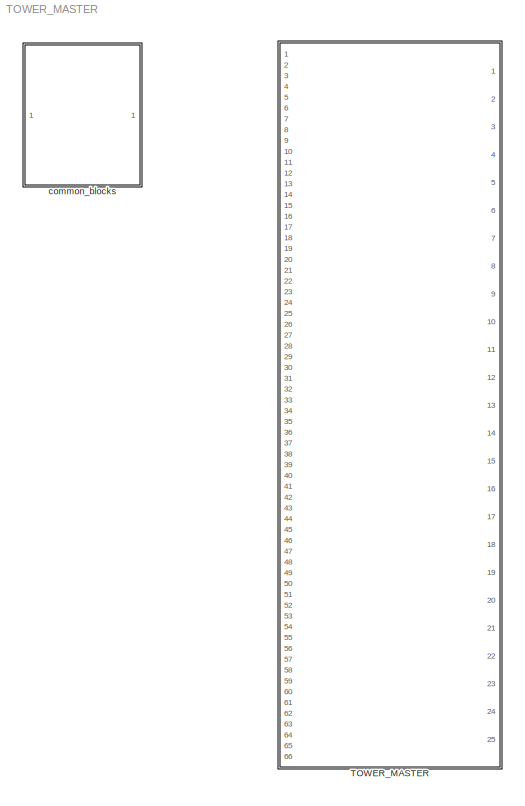
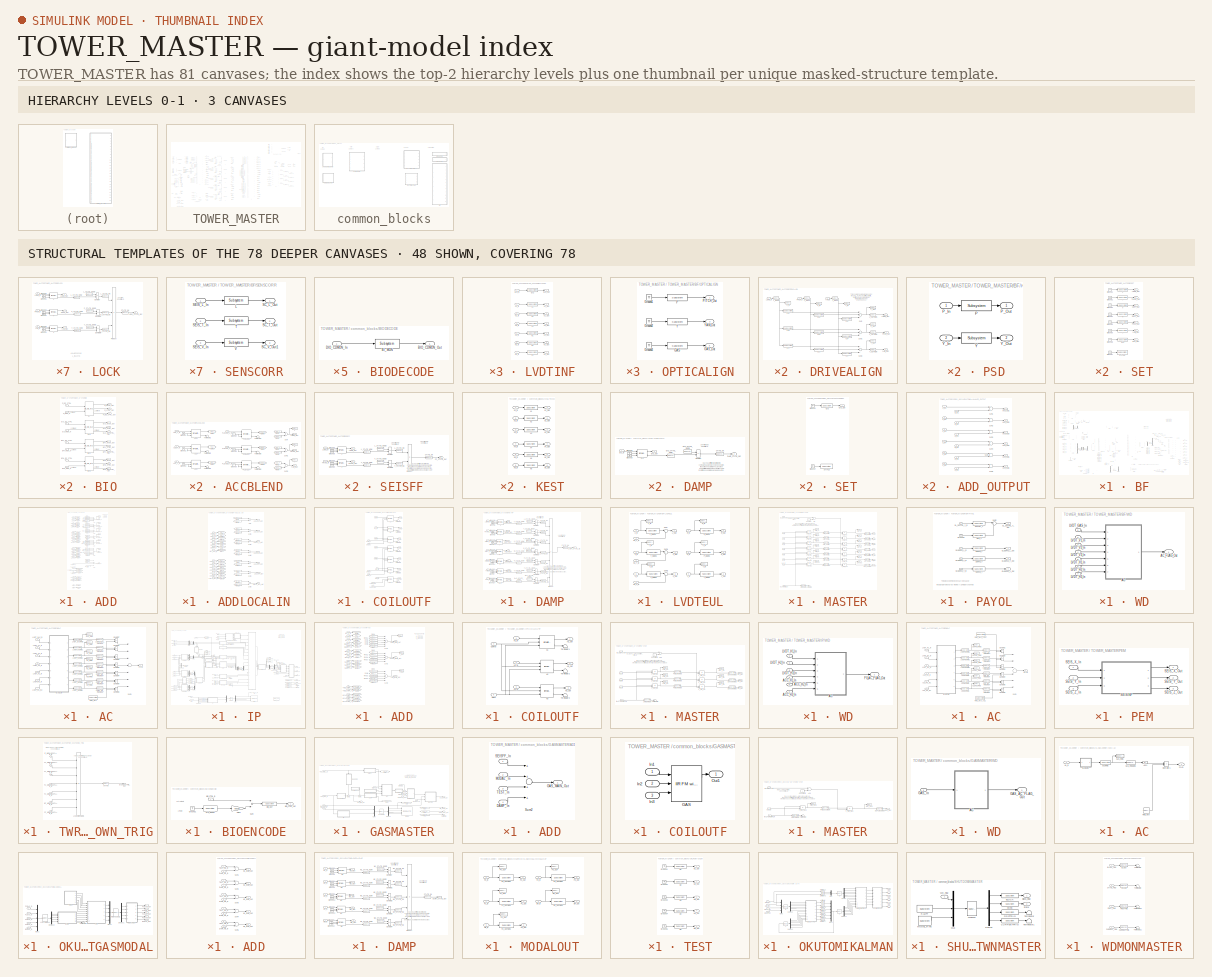
[diagram: thumbnail index - top-2 hierarchy levels (3 canvases) + 48 structural-template representatives of the remaining 78 canvases]
MODEL TOWER_MASTER
KIND library
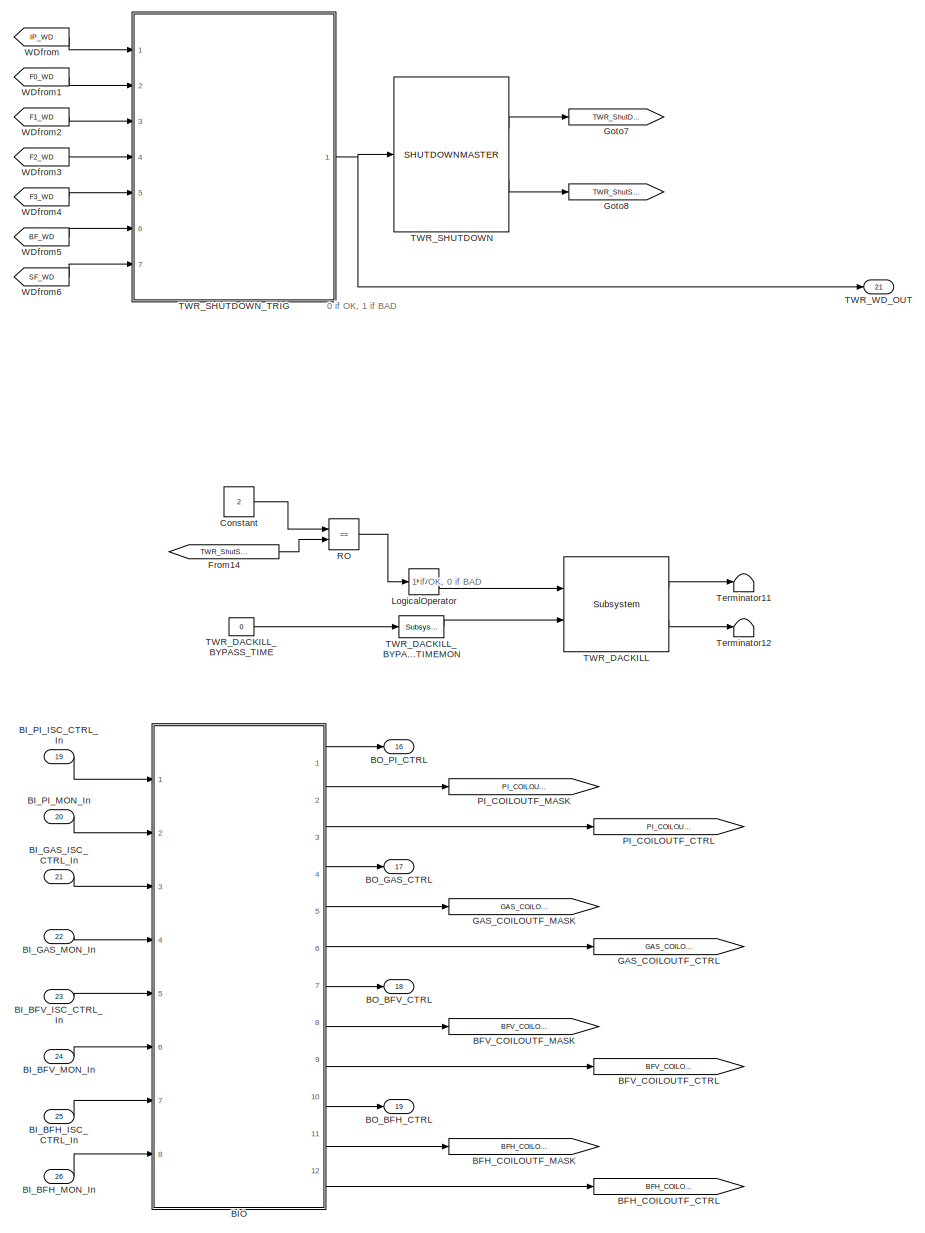
[diagram: TOWER_MASTER - part 1/5, middle right region]
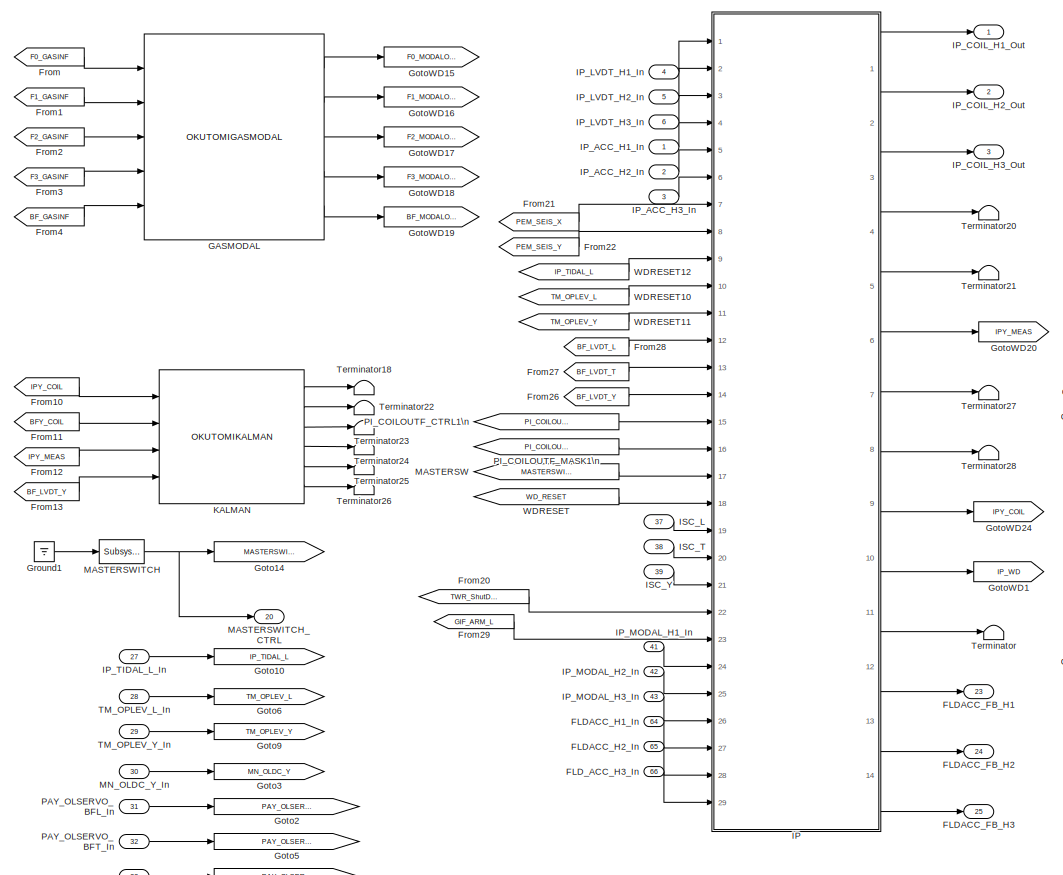
[diagram: TOWER_MASTER - part 2/5, middle left region]
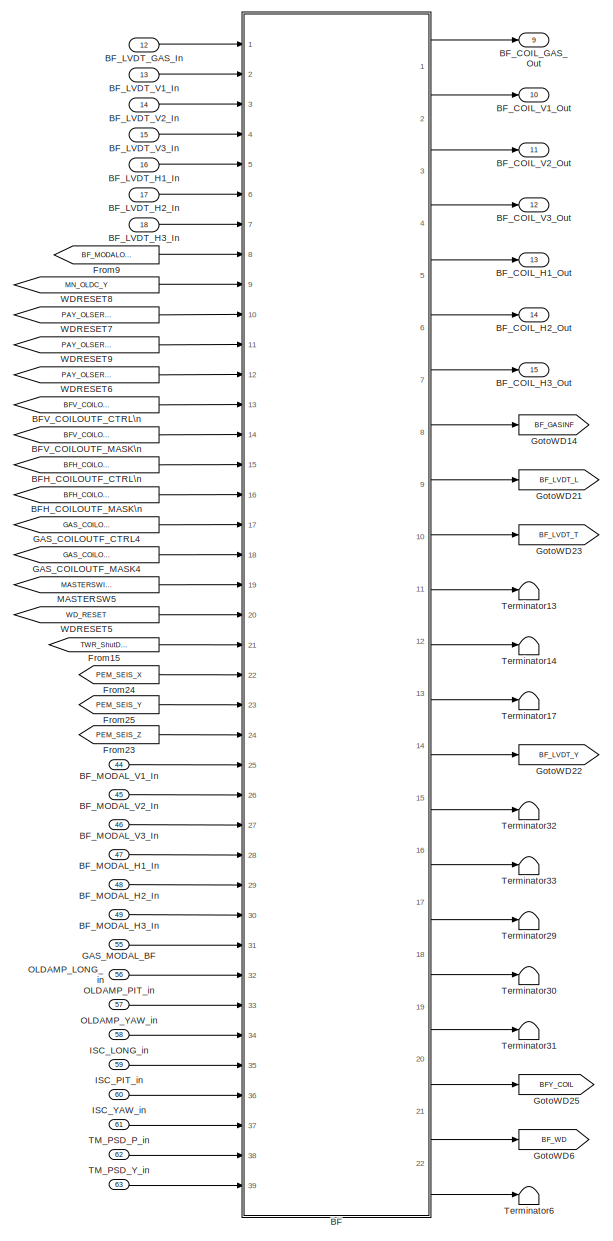
[diagram: TOWER_MASTER - part 3/5, central region]
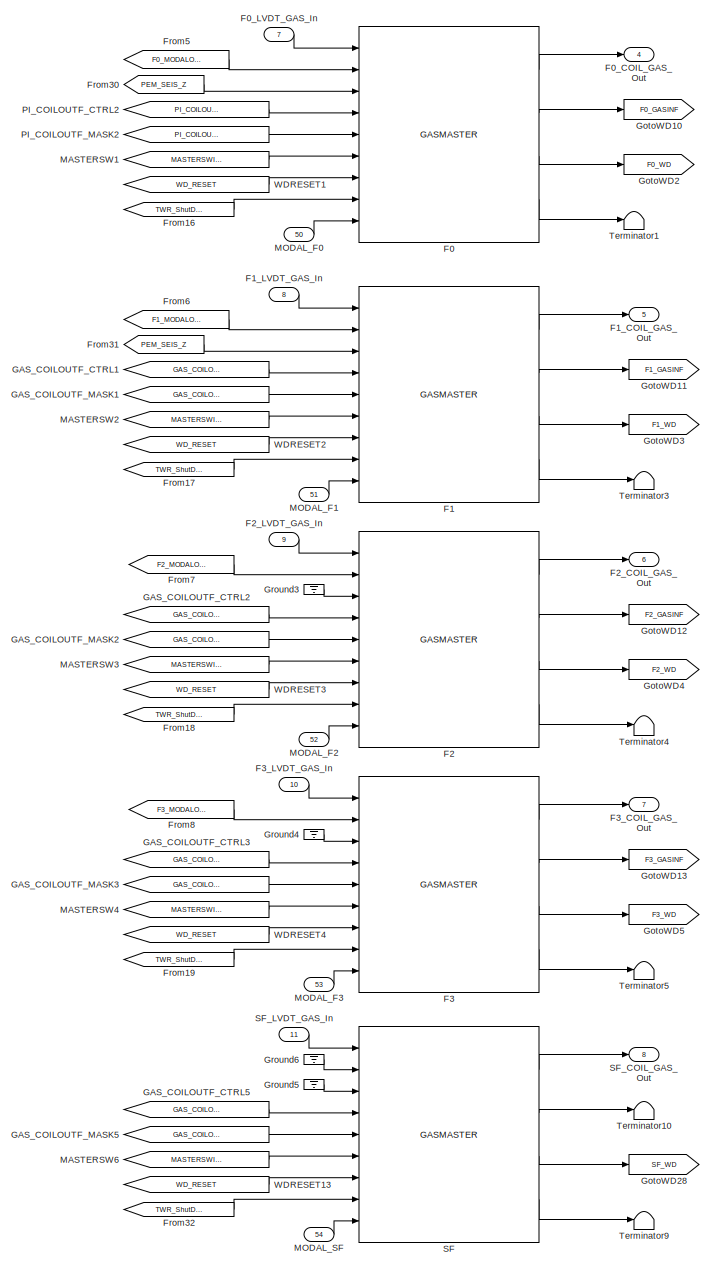
[diagram: TOWER_MASTER - part 4/5, central region]
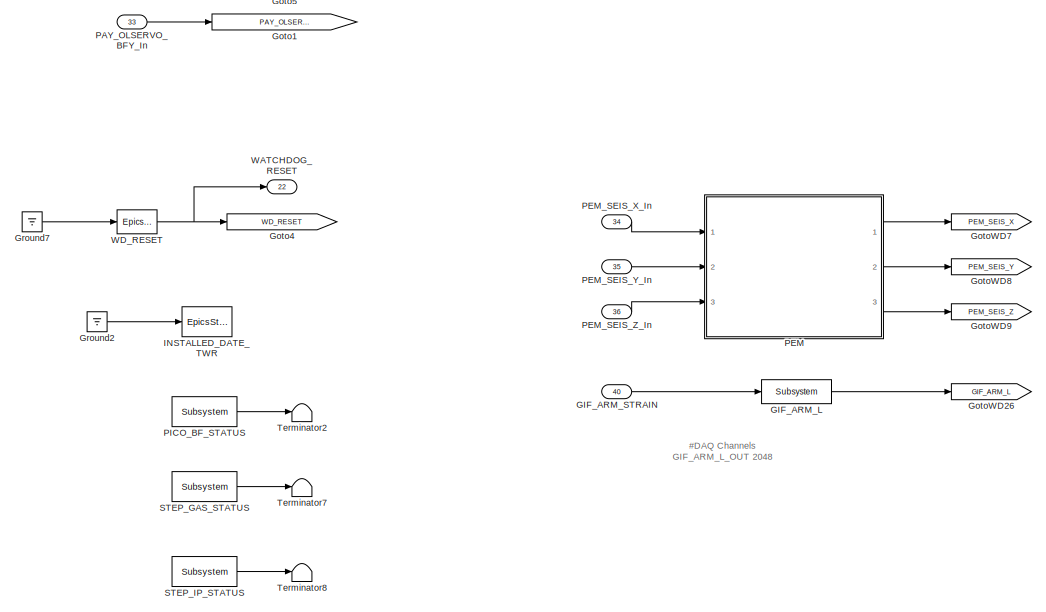
[diagram: TOWER_MASTER - part 5/5, bottom left region]
BLOCK [SubSystem] TOWER_MASTER
  Ports = [66, 25]
  RequestExecContextInheritance = off
  SID = 6004
  Variant = off
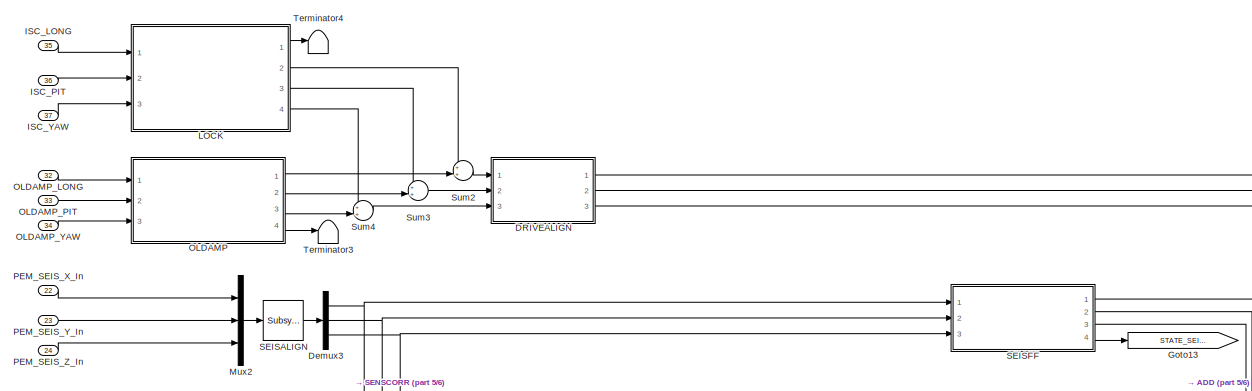
[diagram: TOWER_MASTER/BF - part 1/6, top left region]
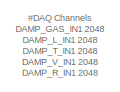
[diagram: TOWER_MASTER/BF - part 2/6, top right region]
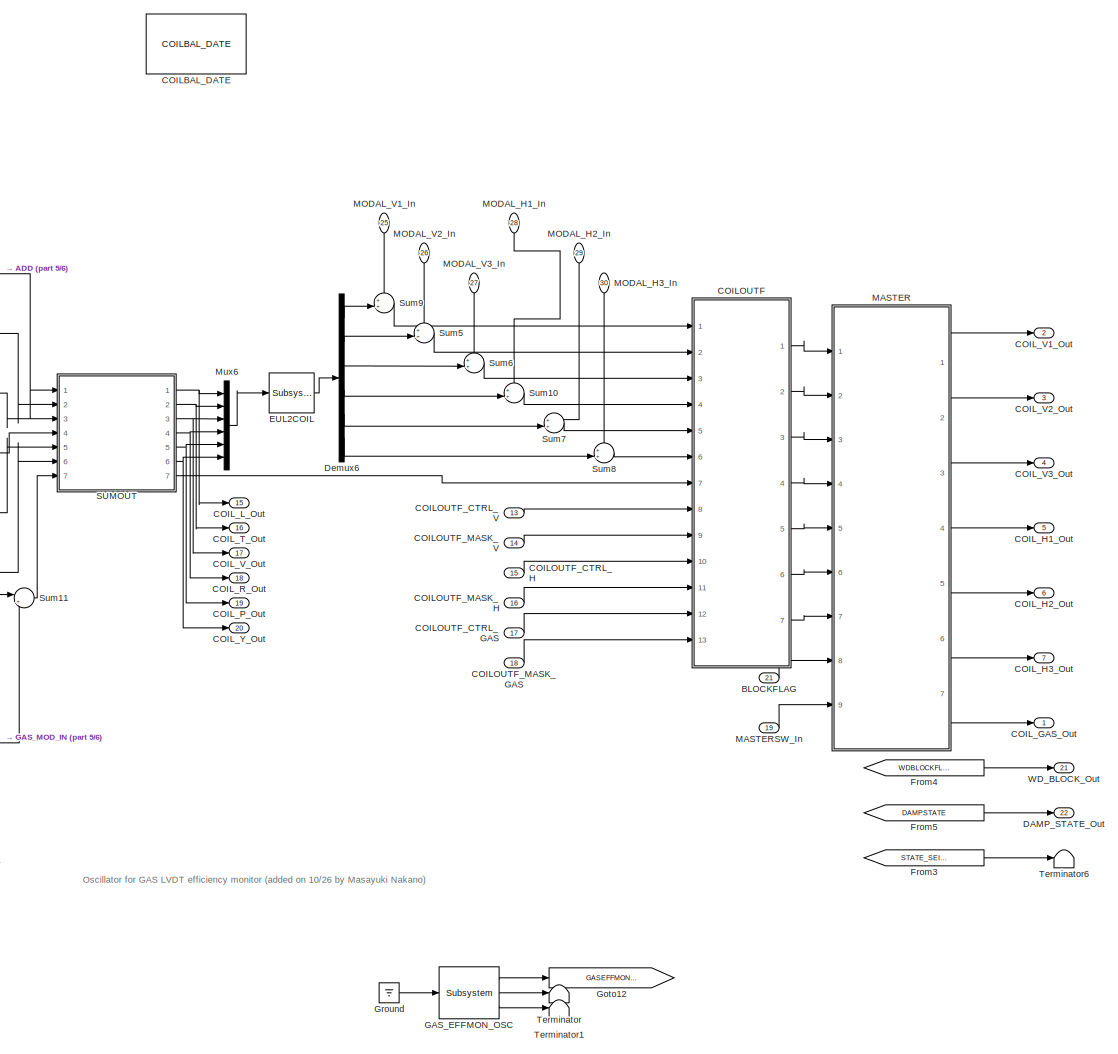
[diagram: TOWER_MASTER/BF - part 3/6, right side, full height]
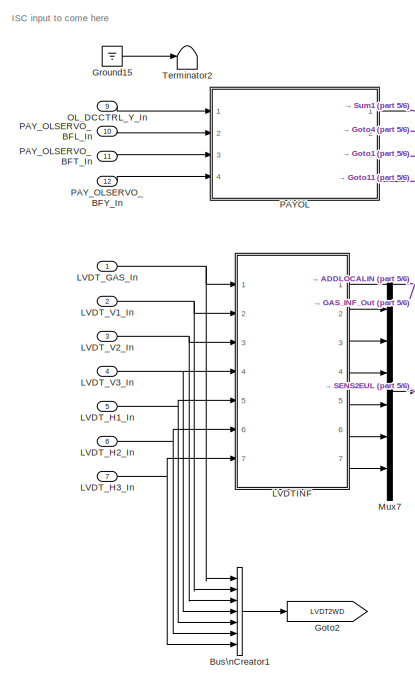
[diagram: TOWER_MASTER/BF - part 4/6, middle left region]
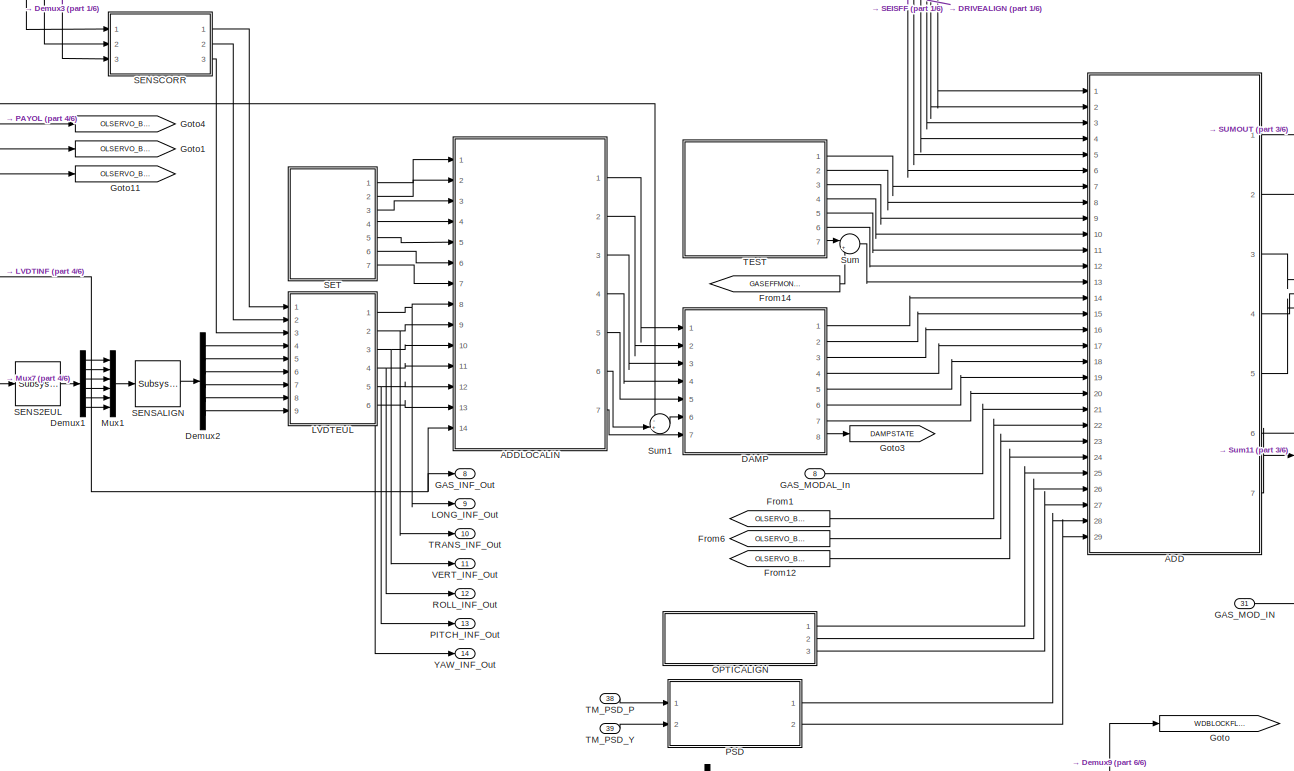
[diagram: TOWER_MASTER/BF - part 5/6, central region]
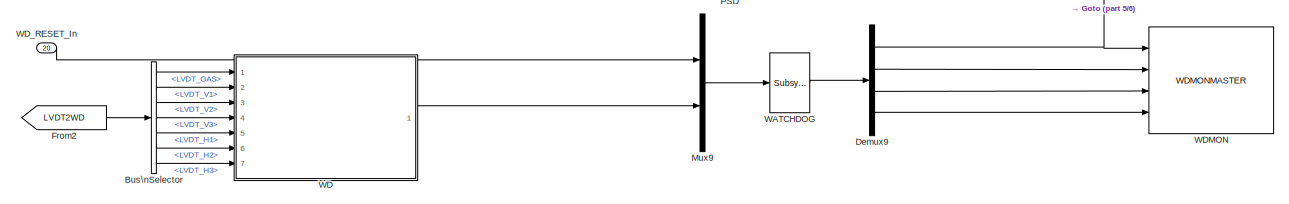
[diagram: TOWER_MASTER/BF - part 6/6, bottom center region]
BLOCK [SubSystem] TOWER_MASTER/BF
  Ports = [39, 22]
  RequestExecContextInheritance = off
  SID = 6066
  Variant = off
BLOCK [SubSystem] TOWER_MASTER/BF/ADD
  Ports = [29, 7]
  RequestExecContextInheritance = off
  SID = 6850
  Variant = off
BLOCK [Inport] TOWER_MASTER/BF/ADD/DAMP_GAS_In
  IconDisplay = Port number
  Port = 20
  SID = 6870
BLOCK [Inport] TOWER_MASTER/BF/ADD/DAMP_L_In
  IconDisplay = Port number
  Port = 14
  SID = 6864
BLOCK [Inport] TOWER_MASTER/BF/ADD/DAMP_P_In
  IconDisplay = Port number
  Port = 18
  SID = 6868
BLOCK [Inport] TOWER_MASTER/BF/ADD/DAMP_R_In
  IconDisplay = Port number
  Port = 17
  SID = 6867
BLOCK [Inport] TOWER_MASTER/BF/ADD/DAMP_T_In
  IconDisplay = Port number
  Port = 15
  SID = 6865
BLOCK [Inport] TOWER_MASTER/BF/ADD/DAMP_V_In
  IconDisplay = Port number
  Port = 16
  SID = 6866
BLOCK [Inport] TOWER_MASTER/BF/ADD/DAMP_Y_In
  IconDisplay = Port number
  Port = 19
  SID = 6869
BLOCK [From] TOWER_MASTER/BF/ADD/From
  GotoTag = SEISFF_L
  SID = 6880
BLOCK [From] TOWER_MASTER/BF/ADD/From1
  CloseFcn = tagdialog Close
  GotoTag = TEST_L
  SID = 6881
BLOCK [From] TOWER_MASTER/BF/ADD/From10
  CloseFcn = tagdialog Close
  GotoTag = DAMP_Y
  SID = 6882
BLOCK [From] TOWER_MASTER/BF/ADD/From11
  GotoTag = SEISFF_V
  SID = 6883
BLOCK [From] TOWER_MASTER/BF/ADD/From12
  CloseFcn = tagdialog Close
  GotoTag = TEST_R
  SID = 6884
BLOCK [From] TOWER_MASTER/BF/ADD/From13
  CloseFcn = tagdialog Close
  GotoTag = DAMP_R
  SID = 6885
BLOCK [From] TOWER_MASTER/BF/ADD/From14
  CloseFcn = tagdialog Close
  GotoTag = TEST_V
  SID = 6886
BLOCK [From] TOWER_MASTER/BF/ADD/From15
  CloseFcn = tagdialog Close
  GotoTag = DAMP_V
  SID = 6887
BLOCK [From] TOWER_MASTER/BF/ADD/From16
  CloseFcn = tagdialog Close
  GotoTag = TEST_T
  SID = 6888
BLOCK [From] TOWER_MASTER/BF/ADD/From17
  CloseFcn = tagdialog Close
  GotoTag = DAMP_T
  SID = 6889
BLOCK [From] TOWER_MASTER/BF/ADD/From18
  CloseFcn = tagdialog Close
  GotoTag = DAMP_GAS
  SID = 6890
BLOCK [From] TOWER_MASTER/BF/ADD/From19
  CloseFcn = tagdialog Close
  GotoTag = PAY_OLSERVO_BFL
  SID = 6891
BLOCK [From] TOWER_MASTER/BF/ADD/From2
  CloseFcn = tagdialog Close
  GotoTag = ISC_L
  SID = 6892
BLOCK [From] TOWER_MASTER/BF/ADD/From20
  CloseFcn = tagdialog Close
  GotoTag = TEST_GAS
  SID = 6893
BLOCK [From] TOWER_MASTER/BF/ADD/From21
  CloseFcn = tagdialog Close
  GotoTag = PAY_OLSERVO_BFY
  SID = 6894
BLOCK [From] TOWER_MASTER/BF/ADD/From22
  CloseFcn = tagdialog Close
  GotoTag = PAY_OLSERVO_BFT
  SID = 6895
BLOCK [From] TOWER_MASTER/BF/ADD/From23
  CloseFcn = tagdialog Close
  GotoTag = OPTICALIGN_P
  SID = 6896
BLOCK [From] TOWER_MASTER/BF/ADD/From24
  CloseFcn = tagdialog Close
  GotoTag = OPTICALIGN_Y
  SID = 6897
BLOCK [From] TOWER_MASTER/BF/ADD/From25
  CloseFcn = tagdialog Close
  GotoTag = PSD_P
  SID = 6898
BLOCK [From] TOWER_MASTER/BF/ADD/From26
  CloseFcn = tagdialog Close
  GotoTag = PSD_Y
  SID = 6899
BLOCK [From] TOWER_MASTER/BF/ADD/From27
  CloseFcn = tagdialog Close
  GotoTag = OPTICALIGN_GAS
  SID = 6900
BLOCK [From] TOWER_MASTER/BF/ADD/From3
  CloseFcn = tagdialog Close
  GotoTag = DAMP_L
  SID = 6901
BLOCK [From] TOWER_MASTER/BF/ADD/From4
  CloseFcn = tagdialog Close
  GotoTag = TEST_P
  SID = 6902
BLOCK [From] TOWER_MASTER/BF/ADD/From5
  CloseFcn = tagdialog Close
  GotoTag = ISC_P
  SID = 6903
BLOCK [From] TOWER_MASTER/BF/ADD/From6
  CloseFcn = tagdialog Close
  GotoTag = DAMP_P
  SID = 6904
BLOCK [From] TOWER_MASTER/BF/ADD/From7
  GotoTag = SEISFF_T
  SID = 6905
BLOCK [From] TOWER_MASTER/BF/ADD/From8
  CloseFcn = tagdialog Close
  GotoTag = TEST_Y
  SID = 6906
BLOCK [From] TOWER_MASTER/BF/ADD/From9
  CloseFcn = tagdialog Close
  GotoTag = ISC_Y
  SID = 6907
BLOCK [Inport] TOWER_MASTER/BF/ADD/GAS_MODAL_In
  IconDisplay = Port number
  Port = 21
  SID = 6871
BLOCK [Outport] TOWER_MASTER/BF/ADD/GAS_Main_Out
  IconDisplay = Port number
  Port = 7
  SID = 6955
BLOCK [Goto] TOWER_MASTER/BF/ADD/Goto
  GotoTag = ISC_L
  SID = 6908
BLOCK [Goto] TOWER_MASTER/BF/ADD/Goto1
  GotoTag = ISC_P
  SID = 6909
BLOCK [Goto] TOWER_MASTER/BF/ADD/Goto10
  GotoTag = TEST_V
  SID = 6910
BLOCK [Goto] TOWER_MASTER/BF/ADD/Goto11
  GotoTag = DAMP_V
  SID = 6911
BLOCK [Goto] TOWER_MASTER/BF/ADD/Goto12
  GotoTag = DAMP_L
  SID = 6912
BLOCK [Goto] TOWER_MASTER/BF/ADD/Goto13
  GotoTag = DAMP_P
  SID = 6913
BLOCK [Goto] TOWER_MASTER/BF/ADD/Goto14
  GotoTag = DAMP_Y
  SID = 6914
BLOCK [Goto] TOWER_MASTER/BF/ADD/Goto15
  GotoTag = DAMP_T
  SID = 6915
BLOCK [Goto] TOWER_MASTER/BF/ADD/Goto16
  GotoTag = DAMP_R
  SID = 6916
BLOCK [Goto] TOWER_MASTER/BF/ADD/Goto17
  GotoTag = TEST_GAS
  SID = 6917
BLOCK [Goto] TOWER_MASTER/BF/ADD/Goto18
  GotoTag = DAMP_GAS
  SID = 6918
BLOCK [Goto] TOWER_MASTER/BF/ADD/Goto19
  GotoTag = SEISFF_V
  SID = 6919
BLOCK [Goto] TOWER_MASTER/BF/ADD/Goto2
  GotoTag = ISC_Y
  SID = 6920
BLOCK [Goto] TOWER_MASTER/BF/ADD/Goto20
  GotoTag = PAY_OLSERVO_BFY
  SID = 6921
BLOCK [Goto] TOWER_MASTER/BF/ADD/Goto21
  GotoTag = PAY_OLSERVO_BFL
  SID = 6922
BLOCK [Goto] TOWER_MASTER/BF/ADD/Goto22
  GotoTag = PAY_OLSERVO_BFT
  SID = 6923
BLOCK [Goto] TOWER_MASTER/BF/ADD/Goto23
  GotoTag = OPTICALIGN_GAS
  SID = 6924
BLOCK [Goto] TOWER_MASTER/BF/ADD/Goto24
  GotoTag = OPTICALIGN_P
  SID = 6925
BLOCK [Goto] TOWER_MASTER/BF/ADD/Goto25
  GotoTag = OPTICALIGN_Y
  SID = 6926
BLOCK [Goto] TOWER_MASTER/BF/ADD/Goto26
  GotoTag = PSD_P
  SID = 6927
BLOCK [Goto] TOWER_MASTER/BF/ADD/Goto27
  GotoTag = PSD_Y
  SID = 6928
BLOCK [Goto] TOWER_MASTER/BF/ADD/Goto3
  GotoTag = TEST_L
  SID = 6929
BLOCK [Goto] TOWER_MASTER/BF/ADD/Goto4
  GotoTag = SEISFF_L
  SID = 6930
BLOCK [Goto] TOWER_MASTER/BF/ADD/Goto5
  GotoTag = SEISFF_T
  SID = 6931
BLOCK [Goto] TOWER_MASTER/BF/ADD/Goto6
  GotoTag = TEST_P
  SID = 6932
BLOCK [Goto] TOWER_MASTER/BF/ADD/Goto7
  GotoTag = TEST_Y
  SID = 6933
BLOCK [Goto] TOWER_MASTER/BF/ADD/Goto8
  GotoTag = TEST_T
  SID = 6934
BLOCK [Goto] TOWER_MASTER/BF/ADD/Goto9
  GotoTag = TEST_R
  SID = 6935
BLOCK [Inport] TOWER_MASTER/BF/ADD/ISC_L_In
  IconDisplay = Port number
  SID = 6851
BLOCK [Inport] TOWER_MASTER/BF/ADD/ISC_P_In
  IconDisplay = Port number
  Port = 2
  SID = 6852
BLOCK [Inport] TOWER_MASTER/BF/ADD/ISC_Y_In
  IconDisplay = Port number
  Port = 3
  SID = 6853
BLOCK [Outport] TOWER_MASTER/BF/ADD/LONG_MAIN_Out
  IconDisplay = Port number
  SID = 6949
BLOCK [Reference] TOWER_MASTER/BF/ADD/L_OUT  REF=cdsTP/Subsystem
  AttributesFormatString = %<Tag>
  Ports = [1]
  SID = 6936
  SourceBlock = cdsTP/Subsystem
  SourceType = SubSystem
  Tag = Test Point
BLOCK [Inport] TOWER_MASTER/BF/ADD/OPTICALIGN_GAS_In
  IconDisplay = Port number
  Port = 27
  SID = 6877
BLOCK [Inport] TOWER_MASTER/BF/ADD/OPTICALIGN_P_In
  IconDisplay = Port number
  Port = 25
  SID = 6875
BLOCK [Inport] TOWER_MASTER/BF/ADD/OPTICALIGN_Y_In
  IconDisplay = Port number
  Port = 26
  SID = 6876
BLOCK [Inport] TOWER_MASTER/BF/ADD/PAY_OLSERVO_BFL_In
  IconDisplay = Port number
  Port = 22
  SID = 6872
BLOCK [Inport] TOWER_MASTER/BF/ADD/PAY_OLSERVO_BFT_In
  IconDisplay = Port number
  Port = 23
  SID = 6873
BLOCK [Inport] TOWER_MASTER/BF/ADD/PAY_OLSERVO_BFY_In
  IconDisplay = Port number
  Port = 24
  SID = 6874
BLOCK [Outport] TOWER_MASTER/BF/ADD/PITCH_MAIN_Out
  IconDisplay = Port number
  Port = 5
  SID = 6953
BLOCK [Inport] TOWER_MASTER/BF/ADD/PSD_P
  IconDisplay = Port number
  Port = 28
  SID = 6878
BLOCK [Inport] TOWER_MASTER/BF/ADD/PSD_Y
  IconDisplay = Port number
  Port = 29
  SID = 6879
BLOCK [Reference] TOWER_MASTER/BF/ADD/P_OUT  REF=cdsTP/Subsystem
  AttributesFormatString = %<Tag>
  Ports = [1]
  SID = 6937
  SourceBlock = cdsTP/Subsystem
  SourceType = SubSystem
  Tag = Test Point
BLOCK [Outport] TOWER_MASTER/BF/ADD/ROLL_MAIN_Out
  IconDisplay = Port number
  Port = 4
  SID = 6952
BLOCK [Reference] TOWER_MASTER/BF/ADD/R_OUT  REF=cdsTP/Subsystem
  AttributesFormatString = %<Tag>
  Ports = [1]
  SID = 6938
  SourceBlock = cdsTP/Subsystem
  SourceType = SubSystem
  Tag = Test Point
BLOCK [Inport] TOWER_MASTER/BF/ADD/SEISFF_L_In
  IconDisplay = Port number
  Port = 4
  SID = 6854
BLOCK [Inport] TOWER_MASTER/BF/ADD/SEISFF_T_In
  IconDisplay = Port number
  Port = 5
  SID = 6855
BLOCK [Inport] TOWER_MASTER/BF/ADD/SEISFF_V_In
  IconDisplay = Port number
  Port = 6
  SID = 6856
BLOCK [Sum] TOWER_MASTER/BF/ADD/Sum
  InputSameDT = off
  Inputs = +++++
  OutDataTypeStr = Inherit: Inherit via internal rule
  Ports = [5, 1]
  SID = 6939
  SaturateOnIntegerOverflow = off
BLOCK [Sum] TOWER_MASTER/BF/ADD/Sum1
  InputSameDT = off
  Inputs = ++++
  OutDataTypeStr = Inherit: Inherit via internal rule
  Ports = [4, 1]
  SID = 6940
  SaturateOnIntegerOverflow = off
BLOCK [Sum] TOWER_MASTER/BF/ADD/Sum2
  InputSameDT = off
  Inputs = +++
  OutDataTypeStr = Inherit: Inherit via internal rule
  Ports = [3, 1]
  SID = 6941
  SaturateOnIntegerOverflow = off
BLOCK [Sum] TOWER_MASTER/BF/ADD/Sum3
  InputSameDT = off
  Inputs = ++++++
  OutDataTypeStr = Inherit: Inherit via internal rule
  Ports = [6, 1]
  SID = 6942
  SaturateOnIntegerOverflow = off
BLOCK [Sum] TOWER_MASTER/BF/ADD/Sum4
  InputSameDT = off
  Inputs = +++++
  OutDataTypeStr = Inherit: Inherit via internal rule
  Ports = [5, 1]
  SID = 6943
  SaturateOnIntegerOverflow = off
BLOCK [Sum] TOWER_MASTER/BF/ADD/Sum5
  InputSameDT = off
  OutDataTypeStr = Inherit: Inherit via internal rule
  Ports = [2, 1]
  SID = 6944
  SaturateOnIntegerOverflow = off
BLOCK [Sum] TOWER_MASTER/BF/ADD/Sum6
  InputSameDT = off
  Inputs = ++++
  OutDataTypeStr = Inherit: Inherit via internal rule
  Ports = [4, 1]
  SID = 6945
  SaturateOnIntegerOverflow = off
BLOCK [Inport] TOWER_MASTER/BF/ADD/TEST_GAS_In
  IconDisplay = Port number
  Port = 13
  SID = 6863
BLOCK [Inport] TOWER_MASTER/BF/ADD/TEST_L_In
  IconDisplay = Port number
  Port = 7
  SID = 6857
BLOCK [Inport] TOWER_MASTER/BF/ADD/TEST_P_In
  IconDisplay = Port number
  Port = 11
  SID = 6861
BLOCK [Inport] TOWER_MASTER/BF/ADD/TEST_R_In
  IconDisplay = Port number
  Port = 10
  SID = 6860
BLOCK [Inport] TOWER_MASTER/BF/ADD/TEST_T_In
  IconDisplay = Port number
  Port = 8
  SID = 6858
BLOCK [Inport] TOWER_MASTER/BF/ADD/TEST_V_In
  IconDisplay = Port number
  Port = 9
  SID = 6859
BLOCK [Inport] TOWER_MASTER/BF/ADD/TEST_Y_In
  IconDisplay = Port number
  Port = 12
  SID = 6862
BLOCK [Outport] TOWER_MASTER/BF/ADD/TRANS_MAIN_Out
  IconDisplay = Port number
  Port = 2
  SID = 6950
BLOCK [Reference] TOWER_MASTER/BF/ADD/T_OUT  REF=cdsTP/Subsystem
  AttributesFormatString = %<Tag>
  Ports = [1]
  SID = 6946
  SourceBlock = cdsTP/Subsystem
  SourceType = SubSystem
  Tag = Test Point
BLOCK [Outport] TOWER_MASTER/BF/ADD/VERT_MAIN_Out
  IconDisplay = Port number
  Port = 3
  SID = 6951
BLOCK [Reference] TOWER_MASTER/BF/ADD/V_OUT  REF=cdsTP/Subsystem
  AttributesFormatString = %<Tag>
  Ports = [1]
  SID = 6947
  SourceBlock = cdsTP/Subsystem
  SourceType = SubSystem
  Tag = Test Point
BLOCK [Outport] TOWER_MASTER/BF/ADD/YAW_MAIN_Out
  IconDisplay = Port number
  Port = 6
  SID = 6954
BLOCK [Reference] TOWER_MASTER/BF/ADD/Y_OUT  REF=cdsTP/Subsystem
  AttributesFormatString = %<Tag>
  Ports = [1]
  SID = 6948
  SourceBlock = cdsTP/Subsystem
  SourceType = SubSystem
  Tag = Test Point
BLOCK [SubSystem] TOWER_MASTER/BF/ADDLOCALIN
  Ports = [14, 7]
  RequestExecContextInheritance = off
  SID = 6957
  Variant = off
BLOCK [From] TOWER_MASTER/BF/ADDLOCALIN/From1
  CloseFcn = tagdialog Close
  GotoTag = SET_L
  SID = 6972
BLOCK [From] TOWER_MASTER/BF/ADDLOCALIN/From10
  CloseFcn = tagdialog Close
  GotoTag = LOCAL_Y
  SID = 6973
BLOCK [From] TOWER_MASTER/BF/ADDLOCALIN/From12
  CloseFcn = tagdialog Close
  GotoTag = SET_R
  SID = 6974
BLOCK [From] TOWER_MASTER/BF/ADDLOCALIN/From13
  CloseFcn = tagdialog Close
  GotoTag = LOCAL_R
  SID = 6975
BLOCK [From] TOWER_MASTER/BF/ADDLOCALIN/From14
  CloseFcn = tagdialog Close
  GotoTag = SET_V
  SID = 6976
BLOCK [From] TOWER_MASTER/BF/ADDLOCALIN/From15
  CloseFcn = tagdialog Close
  GotoTag = LOCAL_V
  SID = 6977
BLOCK [From] TOWER_MASTER/BF/ADDLOCALIN/From16
  CloseFcn = tagdialog Close
  GotoTag = SET_T
  SID = 6978
BLOCK [From] TOWER_MASTER/BF/ADDLOCALIN/From17
  CloseFcn = tagdialog Close
  GotoTag = LOCAL_T
  SID = 6979
BLOCK [From] TOWER_MASTER/BF/ADDLOCALIN/From18
  CloseFcn = tagdialog Close
  GotoTag = LOCAL_GAS
  SID = 6980
BLOCK [From] TOWER_MASTER/BF/ADDLOCALIN/From20
  CloseFcn = tagdialog Close
  GotoTag = SET_GAS
  SID = 6981
BLOCK [From] TOWER_MASTER/BF/ADDLOCALIN/From3
  CloseFcn = tagdialog Close
  GotoTag = LOCAL_L
  SID = 6982
BLOCK [From] TOWER_MASTER/BF/ADDLOCALIN/From4
  CloseFcn = tagdialog Close
  GotoTag = SET_P
  SID = 6983
BLOCK [From] TOWER_MASTER/BF/ADDLOCALIN/From6
  CloseFcn = tagdialog Close
  GotoTag = LOCAL_P
  SID = 6984
BLOCK [From] TOWER_MASTER/BF/ADDLOCALIN/From8
  CloseFcn = tagdialog Close
  GotoTag = SET_Y
  SID = 6985
BLOCK [Goto] TOWER_MASTER/BF/ADDLOCALIN/Goto10
  GotoTag = SET_V
  SID = 6986
BLOCK [Goto] TOWER_MASTER/BF/ADDLOCALIN/Goto11
  GotoTag = LOCAL_V
  SID = 6987
BLOCK [Goto] TOWER_MASTER/BF/ADDLOCALIN/Goto12
  GotoTag = LOCAL_L
  SID = 6988
BLOCK [Goto] TOWER_MASTER/BF/ADDLOCALIN/Goto13
  GotoTag = LOCAL_P
  SID = 6989
BLOCK [Goto] TOWER_MASTER/BF/ADDLOCALIN/Goto14
  GotoTag = LOCAL_Y
  SID = 6990
BLOCK [Goto] TOWER_MASTER/BF/ADDLOCALIN/Goto15
  GotoTag = LOCAL_T
  SID = 6991
BLOCK [Goto] TOWER_MASTER/BF/ADDLOCALIN/Goto16
  GotoTag = LOCAL_R
  SID = 6992
BLOCK [Goto] TOWER_MASTER/BF/ADDLOCALIN/Goto17
  GotoTag = SET_GAS
  SID = 6993
BLOCK [Goto] TOWER_MASTER/BF/ADDLOCALIN/Goto18
  GotoTag = LOCAL_GAS
  SID = 6994
BLOCK [Goto] TOWER_MASTER/BF/ADDLOCALIN/Goto3
  GotoTag = SET_L
  SID = 6995
BLOCK [Goto] TOWER_MASTER/BF/ADDLOCALIN/Goto6
  GotoTag = SET_P
  SID = 6996
BLOCK [Goto] TOWER_MASTER/BF/ADDLOCALIN/Goto7
  GotoTag = SET_Y
  SID = 6997
BLOCK [Goto] TOWER_MASTER/BF/ADDLOCALIN/Goto8
  GotoTag = SET_T
  SID = 6998
BLOCK [Goto] TOWER_MASTER/BF/ADDLOCALIN/Goto9
  GotoTag = SET_R
  SID = 6999
BLOCK [Inport] TOWER_MASTER/BF/ADDLOCALIN/LOCAL_GAS_In
  IconDisplay = Port number
  Port = 14
  SID = 6971
BLOCK [Outport] TOWER_MASTER/BF/ADDLOCALIN/LOCAL_GAS_Out
  IconDisplay = Port number
  Port = 7
  SID = 7013
BLOCK [Inport] TOWER_MASTER/BF/ADDLOCALIN/LOCAL_L_In
  IconDisplay = Port number
  Port = 8
  SID = 6965
BLOCK [Outport] TOWER_MASTER/BF/ADDLOCALIN/LOCAL_L_Out
  IconDisplay = Port number
  SID = 7007
BLOCK [Inport] TOWER_MASTER/BF/ADDLOCALIN/LOCAL_P_In
  IconDisplay = Port number
  Port = 12
  SID = 6969
BLOCK [Outport] TOWER_MASTER/BF/ADDLOCALIN/LOCAL_P_Out
  IconDisplay = Port number
  Port = 5
  SID = 7011
BLOCK [Inport] TOWER_MASTER/BF/ADDLOCALIN/LOCAL_R_In
  IconDisplay = Port number
  Port = 11
  SID = 6968
BLOCK [Outport] TOWER_MASTER/BF/ADDLOCALIN/LOCAL_R_Out
  IconDisplay = Port number
  Port = 4
  SID = 7010
BLOCK [Inport] TOWER_MASTER/BF/ADDLOCALIN/LOCAL_T_In
  IconDisplay = Port number
  Port = 9
  SID = 6966
BLOCK [Outport] TOWER_MASTER/BF/ADDLOCALIN/LOCAL_T_Out
  IconDisplay = Port number
  Port = 2
  SID = 7008
BLOCK [Inport] TOWER_MASTER/BF/ADDLOCALIN/LOCAL_V_In
  IconDisplay = Port number
  Port = 10
  SID = 6967
BLOCK [Outport] TOWER_MASTER/BF/ADDLOCALIN/LOCAL_V_Out
  IconDisplay = Port number
  Port = 3
  SID = 7009
BLOCK [Inport] TOWER_MASTER/BF/ADDLOCALIN/LOCAL_Y_In
  IconDisplay = Port number
  Port = 13
  SID = 6970
BLOCK [Outport] TOWER_MASTER/BF/ADDLOCALIN/LOCAL_Y_Out
  IconDisplay = Port number
  Port = 6
  SID = 7012
BLOCK [Inport] TOWER_MASTER/BF/ADDLOCALIN/SET_GAS_In
  IconDisplay = Port number
  Port = 7
  SID = 6964
BLOCK [Inport] TOWER_MASTER/BF/ADDLOCALIN/SET_L_In
  IconDisplay = Port number
  SID = 6958
BLOCK [Inport] TOWER_MASTER/BF/ADDLOCALIN/SET_P_In
  IconDisplay = Port number
  Port = 5
  SID = 6962
BLOCK [Inport] TOWER_MASTER/BF/ADDLOCALIN/SET_R_In
  IconDisplay = Port number
  Port = 4
  SID = 6961
BLOCK [Inport] TOWER_MASTER/BF/ADDLOCALIN/SET_T_In
  IconDisplay = Port number
  Port = 2
  SID = 6959
BLOCK [Inport] TOWER_MASTER/BF/ADDLOCALIN/SET_V_In
  IconDisplay = Port number
  Port = 3
  SID = 6960
BLOCK [Inport] TOWER_MASTER/BF/ADDLOCALIN/SET_Y_In
  IconDisplay = Port number
  Port = 6
  SID = 6963
BLOCK [Sum] TOWER_MASTER/BF/ADDLOCALIN/Sum
  InputSameDT = off
  Inputs = -+
  OutDataTypeStr = Inherit: Inherit via internal rule
  Ports = [2, 1]
  SID = 7000
  SaturateOnIntegerOverflow = off
BLOCK [Sum] TOWER_MASTER/BF/ADDLOCALIN/Sum1
  InputSameDT = off
  Inputs = -+
  OutDataTypeStr = Inherit: Inherit via internal rule
  Ports = [2, 1]
  SID = 7001
  SaturateOnIntegerOverflow = off
BLOCK [Sum] TOWER_MASTER/BF/ADDLOCALIN/Sum2
  InputSameDT = off
  Inputs = -+
  OutDataTypeStr = Inherit: Inherit via internal rule
  Ports = [2, 1]
  SID = 7002
  SaturateOnIntegerOverflow = off
BLOCK [Sum] TOWER_MASTER/BF/ADDLOCALIN/Sum3
  InputSameDT = off
  Inputs = -+
  OutDataTypeStr = Inherit: Inherit via internal rule
  Ports = [2, 1]
  SID = 7003
  SaturateOnIntegerOverflow = off
BLOCK [Sum] TOWER_MASTER/BF/ADDLOCALIN/Sum4
  InputSameDT = off
  Inputs = -+
  OutDataTypeStr = Inherit: Inherit via internal rule
  Ports = [2, 1]
  SID = 7004
  SaturateOnIntegerOverflow = off
BLOCK [Sum] TOWER_MASTER/BF/ADDLOCALIN/Sum5
  InputSameDT = off
  Inputs = -+
  OutDataTypeStr = Inherit: Inherit via internal rule
  Ports = [2, 1]
  SID = 7005
  SaturateOnIntegerOverflow = off
BLOCK [Sum] TOWER_MASTER/BF/ADDLOCALIN/Sum6
  InputSameDT = off
  Inputs = -+
  OutDataTypeStr = Inherit: Inherit via internal rule
  Ports = [2, 1]
  SID = 7006
  SaturateOnIntegerOverflow = off
BLOCK [Inport] TOWER_MASTER/BF/BLOCKFLAG
  IconDisplay = Port number
  Port = 21
  SID = 6831
BLOCK [BusCreator] TOWER_MASTER/BF/Bus\nCreator1
  DisplayOption = bar
  InheritFromInputs = on
  Inputs = 'LVDT_GAS','LVDT_V1','LVDT_V2','LVDT_V3','LVDT_H1','LVDT_H2','LVDT_H3'
  Ports = [7, 1]
  SID = 7014
BLOCK [BusSelector] TOWER_MASTER/BF/Bus\nSelector
  OutputSignals = LVDT_GAS,LVDT_V1,LVDT_V2,LVDT_V3,LVDT_H1,LVDT_H2,LVDT_H3
  Ports = [1, 7]
  SID = 7015
BLOCK [Reference] TOWER_MASTER/BF/COILBAL_DATE  REF=VIS_LIB/COILBAL_DATE
  Ports = []
  SID = 7016
  SourceBlock = VIS_LIB/COILBAL_DATE
  SourceType = SubSystem
BLOCK [SubSystem] TOWER_MASTER/BF/COILOUTF
  Ports = [13, 7]
  RequestExecContextInheritance = off
  SID = 7017
  Variant = off
BLOCK [Inport] TOWER_MASTER/BF/COILOUTF/CTRL_GAS
  IconDisplay = Port number
  Port = 12
  SID = 7029
BLOCK [Inport] TOWER_MASTER/BF/COILOUTF/CTRL_H
  IconDisplay = Port number
  Port = 10
  SID = 7027
BLOCK [Inport] TOWER_MASTER/BF/COILOUTF/CTRL_V
  IconDisplay = Port number
  Port = 8
  SID = 7025
BLOCK [Reference] TOWER_MASTER/BF/COILOUTF/GAS  REF=cdsFiltCtrl/IIR FM with control
  AttributesFormatString = %<Tag>
  Description = cdsFiltCntrl is the standard IIR filter module (exactly the same as cdsFilt) but with added control data output 'Ctrl'. Filter module digital signal output appears on the first output, which is called 'Val'. 'Ctrl' output has a bit pattern encoding the state of filter's on/off switches (FM1 through FM10). The bit values are:\n                                                                        ...<+4621ch>  <repeated x62 — deduplicated; at blocks: GAS, H1, H2, H3, V1, V2, V3, L, P, R, T, V, Y, ACCL, ACCT, ACCY, +11 more>
  Ports = [3, 2]
  SID = 7031
  SourceBlock = cdsFiltCtrl/IIR FM with control
  SourceType = SubSystem
  Tag = cdsFiltCtrl
BLOCK [Inport] TOWER_MASTER/BF/COILOUTF/GAS_IN
  IconDisplay = Port number
  Port = 7
  SID = 7024
BLOCK [Outport] TOWER_MASTER/BF/COILOUTF/GAS_Out
  IconDisplay = Port number
  Port = 7
  SID = 7051
BLOCK [Reference] TOWER_MASTER/BF/COILOUTF/H1  REF=cdsFiltCtrl/IIR FM with control
  AttributesFormatString = %<Tag>
  Ports = [3, 2]
  SID = 7032
  SourceBlock = cdsFiltCtrl/IIR FM with control
  SourceType = SubSystem
  Tag = cdsFiltCtrl
BLOCK [Inport] TOWER_MASTER/BF/COILOUTF/H1_IN
  IconDisplay = Port number
  Port = 4
  SID = 7021
BLOCK [Outport] TOWER_MASTER/BF/COILOUTF/H1_Out
  IconDisplay = Port number
  Port = 4
  SID = 7048
BLOCK [Reference] TOWER_MASTER/BF/COILOUTF/H2  REF=cdsFiltCtrl/IIR FM with control
  AttributesFormatString = %<Tag>
  Ports = [3, 2]
  SID = 7033
  SourceBlock = cdsFiltCtrl/IIR FM with control
  SourceType = SubSystem
  Tag = cdsFiltCtrl
BLOCK [Inport] TOWER_MASTER/BF/COILOUTF/H2_IN1
  IconDisplay = Port number
  Port = 5
  SID = 7022
BLOCK [Outport] TOWER_MASTER/BF/COILOUTF/H2_Out
  IconDisplay = Port number
  Port = 5
  SID = 7049
BLOCK [Reference] TOWER_MASTER/BF/COILOUTF/H3  REF=cdsFiltCtrl/IIR FM with control
  AttributesFormatString = %<Tag>
  Ports = [3, 2]
  SID = 7034
  SourceBlock = cdsFiltCtrl/IIR FM with control
  SourceType = SubSystem
  Tag = cdsFiltCtrl
BLOCK [Inport] TOWER_MASTER/BF/COILOUTF/H3_IN
  IconDisplay = Port number
  Port = 6
  SID = 7023
BLOCK [Outport] TOWER_MASTER/BF/COILOUTF/H3_Out
  IconDisplay = Port number
  Port = 6
  SID = 7050
BLOCK [Inport] TOWER_MASTER/BF/COILOUTF/MASK_GAS
  IconDisplay = Port number
  Port = 13
  SID = 7030
BLOCK [Inport] TOWER_MASTER/BF/COILOUTF/MASK_H
  IconDisplay = Port number
  Port = 11
  SID = 7028
BLOCK [Inport] TOWER_MASTER/BF/COILOUTF/MASK_V
  IconDisplay = Port number
  Port = 9
  SID = 7026
BLOCK [Terminator] TOWER_MASTER/BF/COILOUTF/Terminator1
  SID = 7035
BLOCK [Terminator] TOWER_MASTER/BF/COILOUTF/Terminator2
  SID = 7036
BLOCK [Terminator] TOWER_MASTER/BF/COILOUTF/Terminator3
  SID = 7037
BLOCK [Terminator] TOWER_MASTER/BF/COILOUTF/Terminator4
  SID = 7038
BLOCK [Terminator] TOWER_MASTER/BF/COILOUTF/Terminator5
  SID = 7039
BLOCK [Terminator] TOWER_MASTER/BF/COILOUTF/Terminator6
  SID = 7040
BLOCK [Terminator] TOWER_MASTER/BF/COILOUTF/Terminator7
  SID = 7041
BLOCK [Reference] TOWER_MASTER/BF/COILOUTF/V1  REF=cdsFiltCtrl/IIR FM with control
  AttributesFormatString = %<Tag>
  Ports = [3, 2]
  SID = 7042
  SourceBlock = cdsFiltCtrl/IIR FM with control
  SourceType = SubSystem
  Tag = cdsFiltCtrl
BLOCK [Inport] TOWER_MASTER/BF/COILOUTF/V1_IN
  IconDisplay = Port number
  SID = 7018
BLOCK [Outport] TOWER_MASTER/BF/COILOUTF/V1_Out
  IconDisplay = Port number
  SID = 7045
BLOCK [Reference] TOWER_MASTER/BF/COILOUTF/V2  REF=cdsFiltCtrl/IIR FM with control
  AttributesFormatString = %<Tag>
  Ports = [3, 2]
  SID = 7043
  SourceBlock = cdsFiltCtrl/IIR FM with control
  SourceType = SubSystem
  Tag = cdsFiltCtrl
BLOCK [Inport] TOWER_MASTER/BF/COILOUTF/V2_IN
  IconDisplay = Port number
  Port = 2
  SID = 7019
BLOCK [Outport] TOWER_MASTER/BF/COILOUTF/V2_Out
  IconDisplay = Port number
  Port = 2
  SID = 7046
BLOCK [Reference] TOWER_MASTER/BF/COILOUTF/V3  REF=cdsFiltCtrl/IIR FM with control
  AttributesFormatString = %<Tag>
  Ports = [3, 2]
  SID = 7044
  SourceBlock = cdsFiltCtrl/IIR FM with control
  SourceType = SubSystem
  Tag = cdsFiltCtrl
BLOCK [Inport] TOWER_MASTER/BF/COILOUTF/V3_IN
  IconDisplay = Port number
  Port = 3
  SID = 7020
BLOCK [Outport] TOWER_MASTER/BF/COILOUTF/V3_Out
  IconDisplay = Port number
  Port = 3
  SID = 7047
BLOCK [Inport] TOWER_MASTER/BF/COILOUTF_CTRL_GAS
  IconDisplay = Port number
  Port = 17
  SID = 6827
BLOCK [Inport] TOWER_MASTER/BF/COILOUTF_CTRL_H
  IconDisplay = Port number
  Port = 15
  SID = 6825
BLOCK [Inport] TOWER_MASTER/BF/COILOUTF_CTRL_V
  IconDisplay = Port number
  Port = 13
  SID = 6823
BLOCK [Inport] TOWER_MASTER/BF/COILOUTF_MASK_GAS
  IconDisplay = Port number
  Port = 18
  SID = 6828
BLOCK [Inport] TOWER_MASTER/BF/COILOUTF_MASK_H
  IconDisplay = Port number
  Port = 16
  SID = 6826
BLOCK [Inport] TOWER_MASTER/BF/COILOUTF_MASK_V
  IconDisplay = Port number
  Port = 14
  SID = 6824
BLOCK [Outport] TOWER_MASTER/BF/COIL_GAS_Out
  IconDisplay = Port number
  SID = 7542
BLOCK [Outport] TOWER_MASTER/BF/COIL_H1_Out
  IconDisplay = Port number
  Port = 5
  SID = 7546
BLOCK [Outport] TOWER_MASTER/BF/COIL_H2_Out
  IconDisplay = Port number
  Port = 6
  SID = 7547
BLOCK [Outport] TOWER_MASTER/BF/COIL_H3_Out
  IconDisplay = Port number
  Port = 7
  SID = 7548
BLOCK [Outport] TOWER_MASTER/BF/COIL_L_Out
  IconDisplay = Port number
  Port = 15
  SID = 7556
BLOCK [Outport] TOWER_MASTER/BF/COIL_P_Out
  IconDisplay = Port number
  Port = 19
  SID = 7560
BLOCK [Outport] TOWER_MASTER/BF/COIL_R_Out
  IconDisplay = Port number
  Port = 18
  SID = 7559
BLOCK [Outport] TOWER_MASTER/BF/COIL_T_Out
  IconDisplay = Port number
  Port = 16
  SID = 7557
BLOCK [Outport] TOWER_MASTER/BF/COIL_V1_Out
  IconDisplay = Port number
  Port = 2
  SID = 7543
BLOCK [Outport] TOWER_MASTER/BF/COIL_V2_Out
  IconDisplay = Port number
  Port = 3
  SID = 7544
BLOCK [Outport] TOWER_MASTER/BF/COIL_V3_Out
  IconDisplay = Port number
  Port = 4
  SID = 7545
BLOCK [Outport] TOWER_MASTER/BF/COIL_V_Out
  IconDisplay = Port number
  Port = 17
  SID = 7558
BLOCK [Outport] TOWER_MASTER/BF/COIL_Y_Out
  IconDisplay = Port number
  Port = 20
  SID = 7561
BLOCK [SubSystem] TOWER_MASTER/BF/DAMP
  Ports = [7, 8]
  RequestExecContextInheritance = off
  SID = 7052
  Variant = off
BLOCK [Outport] TOWER_MASTER/BF/DAMP/DAMP_STATE_Out
  IconDisplay = Port number
  Port = 8
  SID = 7118
BLOCK [Reference] TOWER_MASTER/BF/DAMP/GAS  REF=cdsFiltCtrl/IIR FM with control
  AttributesFormatString = %<Tag>
  Ports = [3, 2]
  SID = 7060
  SourceBlock = cdsFiltCtrl/IIR FM with control
  SourceType = SubSystem
  Tag = cdsFiltCtrl
BLOCK [Inport] TOWER_MASTER/BF/DAMP/GAS_In
  IconDisplay = Port number
  Port = 7
  SID = 7059
BLOCK [Outport] TOWER_MASTER/BF/DAMP/GAS_Out
  IconDisplay = Port number
  Port = 7
  SID = 7117
BLOCK [Reference] TOWER_MASTER/BF/DAMP/GAS_STATE_GOOD  REF=cdsEpicsIn/Subsystem
  AttributesFormatString = %<Tag>
  Description = Purpose:                                                                              \nCreate an EPICS input channel connection to the FE realtime controls.                 \n                                                                                      \nOperation:                                                                            \nOutputs value from an EPICS ai record. Value is ...<+266ch>  <repeated x47 — deduplicated; at blocks: GAS_STATE_GOOD, L_STATE_GOOD, P_STATE_GOOD, R_STATE_GOOD, T_STATE_GOOD, V_STATE_GOOD, Y_STATE_GOOD, RMS_MAX, RMS_MAX_ACC, RMS_MAX_LVDT, PICO_BF_STATUS, STEP_GAS_STATUS, STEP_IP_STATUS, M1_STATE_GOOD, M2_STATE_GOOD, M3_STATE_GOOD, +3 more>
  Ports = [0, 1]
  SID = 7061
  SourceBlock = cdsEpicsIn/Subsystem
  SourceType = SubSystem
  Tag = cdsEpicsIn
BLOCK [Reference] TOWER_MASTER/BF/DAMP/GAS_STATE_NOW  REF=cdsEpicsOut/Subsystem
  AttributesFormatString = %<Tag>
  Description = Purpose:                                          \nOutput a FE signal to an EPICS channel.           \n                                                  \nOperation:                                        \nTakes input value and passes it to EPICS record.  \n                                                  \nUsage:                                            \nName the part with the desired EPICS...<+14ch>  <repeated x159 — deduplicated; at blocks: GAS_STATE_NOW, GAS_STATE_OK, L_STATE_NOW, L_STATE_OK, P_STATE_NOW, P_STATE_OK, R_STATE_NOW, R_STATE_OK, STATE_OK, T_STATE_NOW, T_STATE_OK, V_STATE_NOW, V_STATE_OK, Y_STATE_NOW, Y_STATE_OK, L_INMON, +56 more>
  Ports = [1, 1]
  SID = 7062
  SourceBlock = cdsEpicsOut/Subsystem
  SourceType = SubSystem
  Tag = cdsEpicsOutput
BLOCK [Reference] TOWER_MASTER/BF/DAMP/GAS_STATE_OK  REF=cdsEpicsOut/Subsystem
  AttributesFormatString = %<Tag>
  Ports = [1, 1]
  SID = 7063
  SourceBlock = cdsEpicsOut/Subsystem
  SourceType = SubSystem
  Tag = cdsEpicsOutput
BLOCK [Ground] TOWER_MASTER/BF/DAMP/Ground1
  SID = 7064
BLOCK [Ground] TOWER_MASTER/BF/DAMP/Ground10
  SID = 7065
BLOCK [Ground] TOWER_MASTER/BF/DAMP/Ground11
  SID = 7066
BLOCK [Ground] TOWER_MASTER/BF/DAMP/Ground12
  SID = 7067
BLOCK [Ground] TOWER_MASTER/BF/DAMP/Ground13
  SID = 7068
BLOCK [Ground] TOWER_MASTER/BF/DAMP/Ground14
  SID = 7069
BLOCK [Ground] TOWER_MASTER/BF/DAMP/Ground2
  SID = 7070
BLOCK [Ground] TOWER_MASTER/BF/DAMP/Ground3
  SID = 7071
BLOCK [Ground] TOWER_MASTER/BF/DAMP/Ground4
  SID = 7072
BLOCK [Ground] TOWER_MASTER/BF/DAMP/Ground5
  SID = 7073
BLOCK [Ground] TOWER_MASTER/BF/DAMP/Ground6
  SID = 7074
BLOCK [Ground] TOWER_MASTER/BF/DAMP/Ground7
  SID = 7075
BLOCK [Ground] TOWER_MASTER/BF/DAMP/Ground8
  SID = 7076
BLOCK [Ground] TOWER_MASTER/BF/DAMP/Ground9
  SID = 7077
BLOCK [Reference] TOWER_MASTER/BF/DAMP/L  REF=cdsFiltCtrl/IIR FM with control
  AttributesFormatString = %<Tag>
  Ports = [3, 2]
  SID = 7078
  SourceBlock = cdsFiltCtrl/IIR FM with control
  SourceType = SubSystem
  Tag = cdsFiltCtrl
BLOCK [Inport] TOWER_MASTER/BF/DAMP/LONG_In
  IconDisplay = Port number
  SID = 7053
BLOCK [Outport] TOWER_MASTER/BF/DAMP/LONG_Out
  IconDisplay = Port number
  SID = 7111
BLOCK [Reference] TOWER_MASTER/BF/DAMP/L_STATE_GOOD  REF=cdsEpicsIn/Subsystem
  AttributesFormatString = %<Tag>
  Ports = [0, 1]
  SID = 7079
  SourceBlock = cdsEpicsIn/Subsystem
  SourceType = SubSystem
  Tag = cdsEpicsIn
BLOCK [Reference] TOWER_MASTER/BF/DAMP/L_STATE_NOW  REF=cdsEpicsOut/Subsystem
  AttributesFormatString = %<Tag>
  Ports = [1, 1]
  SID = 7080
  SourceBlock = cdsEpicsOut/Subsystem
  SourceType = SubSystem
  Tag = cdsEpicsOutput
BLOCK [Reference] TOWER_MASTER/BF/DAMP/L_STATE_OK  REF=cdsEpicsOut/Subsystem
  AttributesFormatString = %<Tag>
  Ports = [1, 1]
  SID = 7081
  SourceBlock = cdsEpicsOut/Subsystem
  SourceType = SubSystem
  Tag = cdsEpicsOutput
BLOCK [RelationalOperator] TOWER_MASTER/BF/DAMP/Operator
  InputSameDT = off
  Operator = ==
  OutDataTypeStr = boolean
  Ports = [2, 1]
  SID = 7082
BLOCK [RelationalOperator] TOWER_MASTER/BF/DAMP/Operator1
  InputSameDT = off
  Operator = ==
  OutDataTypeStr = boolean
  Ports = [2, 1]
  SID = 7083
BLOCK [RelationalOperator] TOWER_MASTER/BF/DAMP/Operator2
  InputSameDT = off
  Operator = ==
  OutDataTypeStr = boolean
  Ports = [2, 1]
  SID = 7084
BLOCK [RelationalOperator] TOWER_MASTER/BF/DAMP/Operator3
  InputSameDT = off
  Operator = ==
  OutDataTypeStr = boolean
  Ports = [2, 1]
  SID = 7085
BLOCK [RelationalOperator] TOWER_MASTER/BF/DAMP/Operator4
  InputSameDT = off
  Operator = ==
  OutDataTypeStr = boolean
  Ports = [2, 1]
  SID = 7086
BLOCK [RelationalOperator] TOWER_MASTER/BF/DAMP/Operator5
  InputSameDT = off
  Operator = ==
  OutDataTypeStr = boolean
  Ports = [2, 1]
  SID = 7087
BLOCK [RelationalOperator] TOWER_MASTER/BF/DAMP/Operator6
  InputSameDT = off
  Operator = ==
  OutDataTypeStr = boolean
  Ports = [2, 1]
  SID = 7088
BLOCK [Reference] TOWER_MASTER/BF/DAMP/P  REF=cdsFiltCtrl/IIR FM with control
  AttributesFormatString = %<Tag>
  Ports = [3, 2]
  SID = 7089
  SourceBlock = cdsFiltCtrl/IIR FM with control
  SourceType = SubSystem
  Tag = cdsFiltCtrl
BLOCK [Inport] TOWER_MASTER/BF/DAMP/PITCH_In
  IconDisplay = Port number
  Port = 5
  SID = 7057
BLOCK [Outport] TOWER_MASTER/BF/DAMP/PITCH_Out
  IconDisplay = Port number
  Port = 5
  SID = 7115
BLOCK [Reference] TOWER_MASTER/BF/DAMP/P_STATE_GOOD  REF=cdsEpicsIn/Subsystem
  AttributesFormatString = %<Tag>
  Ports = [0, 1]
  SID = 7090
  SourceBlock = cdsEpicsIn/Subsystem
  SourceType = SubSystem
  Tag = cdsEpicsIn
BLOCK [Reference] TOWER_MASTER/BF/DAMP/P_STATE_NOW  REF=cdsEpicsOut/Subsystem
  AttributesFormatString = %<Tag>
  Ports = [1, 1]
  SID = 7091
  SourceBlock = cdsEpicsOut/Subsystem
  SourceType = SubSystem
  Tag = cdsEpicsOutput
BLOCK [Reference] TOWER_MASTER/BF/DAMP/P_STATE_OK  REF=cdsEpicsOut/Subsystem
  AttributesFormatString = %<Tag>
  Ports = [1, 1]
  SID = 7092
  SourceBlock = cdsEpicsOut/Subsystem
  SourceType = SubSystem
  Tag = cdsEpicsOutput
BLOCK [Product] TOWER_MASTER/BF/DAMP/Product
  InputSameDT = off
  Inputs = 7
  OutDataTypeStr = Inherit: Inherit via internal rule
  Ports = [7, 1]
  SID = 7093
  SaturateOnIntegerOverflow = off
BLOCK [Reference] TOWER_MASTER/BF/DAMP/R  REF=cdsFiltCtrl/IIR FM with control
  AttributesFormatString = %<Tag>
  Ports = [3, 2]
  SID = 7094
  SourceBlock = cdsFiltCtrl/IIR FM with control
  SourceType = SubSystem
  Tag = cdsFiltCtrl
BLOCK [Inport] TOWER_MASTER/BF/DAMP/ROLL_In
  IconDisplay = Port number
  Port = 4
  SID = 7056
BLOCK [Outport] TOWER_MASTER/BF/DAMP/ROLL_Out
  IconDisplay = Port number
  Port = 4
  SID = 7114
BLOCK [Reference] TOWER_MASTER/BF/DAMP/R_STATE_GOOD  REF=cdsEpicsIn/Subsystem
  AttributesFormatString = %<Tag>
  Ports = [0, 1]
  SID = 7095
  SourceBlock = cdsEpicsIn/Subsystem
  SourceType = SubSystem
  Tag = cdsEpicsIn
BLOCK [Reference] TOWER_MASTER/BF/DAMP/R_STATE_NOW  REF=cdsEpicsOut/Subsystem
  AttributesFormatString = %<Tag>
  Ports = [1, 1]
  SID = 7096
  SourceBlock = cdsEpicsOut/Subsystem
  SourceType = SubSystem
  Tag = cdsEpicsOutput
BLOCK [Reference] TOWER_MASTER/BF/DAMP/R_STATE_OK  REF=cdsEpicsOut/Subsystem
  AttributesFormatString = %<Tag>
  Ports = [1, 1]
  SID = 7097
  SourceBlock = cdsEpicsOut/Subsystem
  SourceType = SubSystem
  Tag = cdsEpicsOutput
BLOCK [Reference] TOWER_MASTER/BF/DAMP/STATE_OK  REF=cdsEpicsOut/Subsystem
  AttributesFormatString = %<Tag>
  Ports = [1, 1]
  SID = 7098
  SourceBlock = cdsEpicsOut/Subsystem
  SourceType = SubSystem
  Tag = cdsEpicsOutput
BLOCK [Reference] TOWER_MASTER/BF/DAMP/T  REF=cdsFiltCtrl/IIR FM with control
  AttributesFormatString = %<Tag>
  Ports = [3, 2]
  SID = 7099
  SourceBlock = cdsFiltCtrl/IIR FM with control
  SourceType = SubSystem
  Tag = cdsFiltCtrl
BLOCK [Inport] TOWER_MASTER/BF/DAMP/TRANS_In
  IconDisplay = Port number
  Port = 2
  SID = 7054
BLOCK [Outport] TOWER_MASTER/BF/DAMP/TRANS_Out
  IconDisplay = Port number
  Port = 2
  SID = 7112
BLOCK [Reference] TOWER_MASTER/BF/DAMP/T_STATE_GOOD  REF=cdsEpicsIn/Subsystem
  AttributesFormatString = %<Tag>
  Ports = [0, 1]
  SID = 7100
  SourceBlock = cdsEpicsIn/Subsystem
  SourceType = SubSystem
  Tag = cdsEpicsIn
BLOCK [Reference] TOWER_MASTER/BF/DAMP/T_STATE_NOW  REF=cdsEpicsOut/Subsystem
  AttributesFormatString = %<Tag>
  Ports = [1, 1]
  SID = 7101
  SourceBlock = cdsEpicsOut/Subsystem
  SourceType = SubSystem
  Tag = cdsEpicsOutput
BLOCK [Reference] TOWER_MASTER/BF/DAMP/T_STATE_OK  REF=cdsEpicsOut/Subsystem
  AttributesFormatString = %<Tag>
  Ports = [1, 1]
  SID = 7102
  SourceBlock = cdsEpicsOut/Subsystem
  SourceType = SubSystem
  Tag = cdsEpicsOutput
BLOCK [Reference] TOWER_MASTER/BF/DAMP/V  REF=cdsFiltCtrl/IIR FM with control
  AttributesFormatString = %<Tag>
  Ports = [3, 2]
  SID = 7103
  SourceBlock = cdsFiltCtrl/IIR FM with control
  SourceType = SubSystem
  Tag = cdsFiltCtrl
BLOCK [Inport] TOWER_MASTER/BF/DAMP/VERT_In
  IconDisplay = Port number
  Port = 3
  SID = 7055
BLOCK [Outport] TOWER_MASTER/BF/DAMP/VERT_Out
  IconDisplay = Port number
  Port = 3
  SID = 7113
BLOCK [Reference] TOWER_MASTER/BF/DAMP/V_STATE_GOOD  REF=cdsEpicsIn/Subsystem
  AttributesFormatString = %<Tag>
  Ports = [0, 1]
  SID = 7104
  SourceBlock = cdsEpicsIn/Subsystem
  SourceType = SubSystem
  Tag = cdsEpicsIn
BLOCK [Reference] TOWER_MASTER/BF/DAMP/V_STATE_NOW  REF=cdsEpicsOut/Subsystem
  AttributesFormatString = %<Tag>
  Ports = [1, 1]
  SID = 7105
  SourceBlock = cdsEpicsOut/Subsystem
  SourceType = SubSystem
  Tag = cdsEpicsOutput
BLOCK [Reference] TOWER_MASTER/BF/DAMP/V_STATE_OK  REF=cdsEpicsOut/Subsystem
  AttributesFormatString = %<Tag>
  Ports = [1, 1]
  SID = 7106
  SourceBlock = cdsEpicsOut/Subsystem
  SourceType = SubSystem
  Tag = cdsEpicsOutput
BLOCK [Reference] TOWER_MASTER/BF/DAMP/Y  REF=cdsFiltCtrl/IIR FM with control
  AttributesFormatString = %<Tag>
  Ports = [3, 2]
  SID = 7107
  SourceBlock = cdsFiltCtrl/IIR FM with control
  SourceType = SubSystem
  Tag = cdsFiltCtrl
BLOCK [Inport] TOWER_MASTER/BF/DAMP/YAW_In
  IconDisplay = Port number
  Port = 6
  SID = 7058
BLOCK [Outport] TOWER_MASTER/BF/DAMP/YAW_Out
  IconDisplay = Port number
  Port = 6
  SID = 7116
BLOCK [Reference] TOWER_MASTER/BF/DAMP/Y_STATE_GOOD  REF=cdsEpicsIn/Subsystem
  AttributesFormatString = %<Tag>
  Ports = [0, 1]
  SID = 7108
  SourceBlock = cdsEpicsIn/Subsystem
  SourceType = SubSystem
  Tag = cdsEpicsIn
BLOCK [Reference] TOWER_MASTER/BF/DAMP/Y_STATE_NOW  REF=cdsEpicsOut/Subsystem
  AttributesFormatString = %<Tag>
  Ports = [1, 1]
  SID = 7109
  SourceBlock = cdsEpicsOut/Subsystem
  SourceType = SubSystem
  Tag = cdsEpicsOutput
BLOCK [Reference] TOWER_MASTER/BF/DAMP/Y_STATE_OK  REF=cdsEpicsOut/Subsystem
  AttributesFormatString = %<Tag>
  Ports = [1, 1]
  SID = 7110
  SourceBlock = cdsEpicsOut/Subsystem
  SourceType = SubSystem
  Tag = cdsEpicsOutput
BLOCK [Outport] TOWER_MASTER/BF/DAMP_STATE_Out
  IconDisplay = Port number
  Port = 22
  SID = 7563
BLOCK [SubSystem] TOWER_MASTER/BF/DRIVEALIGN
  Ports = [3, 3]
  RequestExecContextInheritance = off
  SID = 7123
  Variant = off
BLOCK [Reference] TOWER_MASTER/BF/DRIVEALIGN/L2L  REF=cdsFilt/Subsystem
  AttributesFormatString = %<Tag>
  Description = Purpose:                                                                                                                                                                                                                                  \nStandard CDS IIR filter module.                                                                                                                                     ...<+1302ch>  <repeated x117 — deduplicated; at blocks: L2L, L2P, L2Y, P2L, P2P, P2Y, Y2L, Y2P, Y2Y, GAS, H1, H2, H3, V1, V2, V3, +36 more>
  Ports = [1, 1]
  SID = 7127
  SourceBlock = cdsFilt/Subsystem
  SourceType = SubSystem
  Tag = cdsFilt
BLOCK [Reference] TOWER_MASTER/BF/DRIVEALIGN/L2P  REF=cdsFilt/Subsystem
  AttributesFormatString = %<Tag>
  Ports = [1, 1]
  SID = 7128
  SourceBlock = cdsFilt/Subsystem
  SourceType = SubSystem
  Tag = cdsFilt
BLOCK [Reference] TOWER_MASTER/BF/DRIVEALIGN/L2Y  REF=cdsFilt/Subsystem
  AttributesFormatString = %<Tag>
  Ports = [1, 1]
  SID = 7129
  SourceBlock = cdsFilt/Subsystem
  SourceType = SubSystem
  Tag = cdsFilt
BLOCK [Inport] TOWER_MASTER/BF/DRIVEALIGN/LONG_In
  IconDisplay = Port number
  SID = 7124
BLOCK [Outport] TOWER_MASTER/BF/DRIVEALIGN/LONG_Out
  IconDisplay = Port number
  SID = 7151
BLOCK [Reference] TOWER_MASTER/BF/DRIVEALIGN/L_IN  REF=cdsTP/Subsystem
  AttributesFormatString = %<Tag>
  Ports = [1]
  SID = 7130
  SourceBlock = cdsTP/Subsystem
  SourceType = SubSystem
  Tag = Test Point
BLOCK [Reference] TOWER_MASTER/BF/DRIVEALIGN/L_INMON  REF=cdsEpicsOut/Subsystem
  AttributesFormatString = %<Tag>
  Ports = [1, 1]
  SID = 7131
  SourceBlock = cdsEpicsOut/Subsystem
  SourceType = SubSystem
  Tag = cdsEpicsOutput
BLOCK [Reference] TOWER_MASTER/BF/DRIVEALIGN/L_OUT  REF=cdsTP/Subsystem
  AttributesFormatString = %<Tag>
  Ports = [1]
  SID = 7132
  SourceBlock = cdsTP/Subsystem
  SourceType = SubSystem
  Tag = Test Point
BLOCK [Reference] TOWER_MASTER/BF/DRIVEALIGN/L_OUTMON  REF=cdsEpicsOut/Subsystem
  AttributesFormatString = %<Tag>
  Ports = [1, 1]
  SID = 7133
  SourceBlock = cdsEpicsOut/Subsystem
  SourceType = SubSystem
  Tag = cdsEpicsOutput
BLOCK [Reference] TOWER_MASTER/BF/DRIVEALIGN/P2L  REF=cdsFilt/Subsystem
  AttributesFormatString = %<Tag>
  Ports = [1, 1]
  SID = 7134
  SourceBlock = cdsFilt/Subsystem
  SourceType = SubSystem
  Tag = cdsFilt
BLOCK [Reference] TOWER_MASTER/BF/DRIVEALIGN/P2P  REF=cdsFilt/Subsystem
  AttributesFormatString = %<Tag>
  Ports = [1, 1]
  SID = 7135
  SourceBlock = cdsFilt/Subsystem
  SourceType = SubSystem
  Tag = cdsFilt
BLOCK [Reference] TOWER_MASTER/BF/DRIVEALIGN/P2Y  REF=cdsFilt/Subsystem
  AttributesFormatString = %<Tag>
  Ports = [1, 1]
  SID = 7136
  SourceBlock = cdsFilt/Subsystem
  SourceType = SubSystem
  Tag = cdsFilt
BLOCK [Inport] TOWER_MASTER/BF/DRIVEALIGN/PITCH_In
  IconDisplay = Port number
  Port = 2
  SID = 7125
BLOCK [Outport] TOWER_MASTER/BF/DRIVEALIGN/PITCH_Out
  IconDisplay = Port number
  Port = 2
  SID = 7152
BLOCK [Reference] TOWER_MASTER/BF/DRIVEALIGN/P_IN  REF=cdsTP/Subsystem
  AttributesFormatString = %<Tag>
  Ports = [1]
  SID = 7137
  SourceBlock = cdsTP/Subsystem
  SourceType = SubSystem
  Tag = Test Point
BLOCK [Reference] TOWER_MASTER/BF/DRIVEALIGN/P_INMON  REF=cdsEpicsOut/Subsystem
  AttributesFormatString = %<Tag>
  Ports = [1, 1]
  SID = 7138
  SourceBlock = cdsEpicsOut/Subsystem
  SourceType = SubSystem
  Tag = cdsEpicsOutput
BLOCK [Reference] TOWER_MASTER/BF/DRIVEALIGN/P_OUT  REF=cdsTP/Subsystem
  AttributesFormatString = %<Tag>
  Ports = [1]
  SID = 7139
  SourceBlock = cdsTP/Subsystem
  SourceType = SubSystem
  Tag = Test Point
BLOCK [Reference] TOWER_MASTER/BF/DRIVEALIGN/P_OUTMON  REF=cdsEpicsOut/Subsystem
  AttributesFormatString = %<Tag>
  Ports = [1, 1]
  SID = 7140
  SourceBlock = cdsEpicsOut/Subsystem
  SourceType = SubSystem
  Tag = cdsEpicsOutput
BLOCK [Sum] TOWER_MASTER/BF/DRIVEALIGN/Sum
  InputSameDT = off
  Inputs = +++
  OutDataTypeStr = Inherit: Inherit via internal rule
  Ports = [3, 1]
  SID = 7141
  SaturateOnIntegerOverflow = off
BLOCK [Sum] TOWER_MASTER/BF/DRIVEALIGN/Sum1
  InputSameDT = off
  Inputs = +++
  OutDataTypeStr = Inherit: Inherit via internal rule
  Ports = [3, 1]
  SID = 7142
  SaturateOnIntegerOverflow = off
BLOCK [Sum] TOWER_MASTER/BF/DRIVEALIGN/Sum2
  InputSameDT = off
  Inputs = +++
  OutDataTypeStr = Inherit: Inherit via internal rule
  Ports = [3, 1]
  SID = 7143
  SaturateOnIntegerOverflow = off
BLOCK [Reference] TOWER_MASTER/BF/DRIVEALIGN/Y2L  REF=cdsFilt/Subsystem
  AttributesFormatString = %<Tag>
  Ports = [1, 1]
  SID = 7144
  SourceBlock = cdsFilt/Subsystem
  SourceType = SubSystem
  Tag = cdsFilt
BLOCK [Reference] TOWER_MASTER/BF/DRIVEALIGN/Y2P  REF=cdsFilt/Subsystem
  AttributesFormatString = %<Tag>
  Ports = [1, 1]
  SID = 7145
  SourceBlock = cdsFilt/Subsystem
  SourceType = SubSystem
  Tag = cdsFilt
BLOCK [Reference] TOWER_MASTER/BF/DRIVEALIGN/Y2Y  REF=cdsFilt/Subsystem
  AttributesFormatString = %<Tag>
  Ports = [1, 1]
  SID = 7146
  SourceBlock = cdsFilt/Subsystem
  SourceType = SubSystem
  Tag = cdsFilt
BLOCK [Inport] TOWER_MASTER/BF/DRIVEALIGN/YAW_In
  IconDisplay = Port number
  Port = 3
  SID = 7126
BLOCK [Outport] TOWER_MASTER/BF/DRIVEALIGN/YAW_Out
  IconDisplay = Port number
  Port = 3
  SID = 7153
BLOCK [Reference] TOWER_MASTER/BF/DRIVEALIGN/Y_IN  REF=cdsTP/Subsystem
  AttributesFormatString = %<Tag>
  Ports = [1]
  SID = 7147
  SourceBlock = cdsTP/Subsystem
  SourceType = SubSystem
  Tag = Test Point
BLOCK [Reference] TOWER_MASTER/BF/DRIVEALIGN/Y_INMON  REF=cdsEpicsOut/Subsystem
  AttributesFormatString = %<Tag>
  Ports = [1, 1]
  SID = 7148
  SourceBlock = cdsEpicsOut/Subsystem
  SourceType = SubSystem
  Tag = cdsEpicsOutput
BLOCK [Reference] TOWER_MASTER/BF/DRIVEALIGN/Y_OUT  REF=cdsTP/Subsystem
  AttributesFormatString = %<Tag>
  Ports = [1]
  SID = 7149
  SourceBlock = cdsTP/Subsystem
  SourceType = SubSystem
  Tag = Test Point
BLOCK [Reference] TOWER_MASTER/BF/DRIVEALIGN/Y_OUTMON  REF=cdsEpicsOut/Subsystem
  AttributesFormatString = %<Tag>
  Ports = [1, 1]
  SID = 7150
  SourceBlock = cdsEpicsOut/Subsystem
  SourceType = SubSystem
  Tag = cdsEpicsOutput
BLOCK [Demux] TOWER_MASTER/BF/Demux1
  DisplayOption = bar
  Outputs = 6
  Ports = [1, 6]
  SID = 7155
BLOCK [Demux] TOWER_MASTER/BF/Demux2
  DisplayOption = bar
  Outputs = 6
  Ports = [1, 6]
  SID = 7156
BLOCK [Demux] TOWER_MASTER/BF/Demux3
  DisplayOption = bar
  Outputs = 3
  Ports = [1, 3]
  SID = 7157
BLOCK [Demux] TOWER_MASTER/BF/Demux6
  DisplayOption = bar
  Outputs = 6
  Ports = [1, 6]
  SID = 7158
BLOCK [Demux] TOWER_MASTER/BF/Demux9
  DisplayOption = bar
  Ports = [1, 4]
  SID = 7159
BLOCK [Reference] TOWER_MASTER/BF/EUL2COIL  REF=cdsMuxMatrix/Subsystem
  AttributesFormatString = %<Tag>
  Description = ADL=SUS_INMATRIX.adl\nSCRIPT=generate_KisselButton.py 4 5 #CHANNEL# > #TARGET_DIR#/#FULL_PART_NAME#_KB.adl
  Ports = [1, 1]
  SID = 7160
  SourceBlock = cdsMuxMatrix/Subsystem
  SourceType = SubSystem
  Tag = cdsMuxMatrix
BLOCK [From] TOWER_MASTER/BF/From1
  GotoTag = OLSERVO_BFL
  SID = 7161
BLOCK [From] TOWER_MASTER/BF/From12
  GotoTag = OLSERVO_BFY
  SID = 7162
BLOCK [From] TOWER_MASTER/BF/From14
  GotoTag = GASEFFMON_LO
  SID = 7163
BLOCK [From] TOWER_MASTER/BF/From2
  CloseFcn = tagdialog Close
  GotoTag = LVDT2WD
  SID = 7164
BLOCK [From] TOWER_MASTER/BF/From3
  CloseFcn = tagdialog Close
  GotoTag = STATE_SEISFF
  SID = 7165
BLOCK [From] TOWER_MASTER/BF/From4
  CloseFcn = tagdialog Close
  GotoTag = WDBLOCKFLAG
  SID = 7166
BLOCK [From] TOWER_MASTER/BF/From5
  CloseFcn = tagdialog Close
  GotoTag = DAMPSTATE
  SID = 7167
BLOCK [From] TOWER_MASTER/BF/From6
  GotoTag = OLSERVO_BFT
  SID = 7168
BLOCK [Reference] TOWER_MASTER/BF/GAS_EFFMON_OSC  REF=cdsOsc/Subsystem
  AttributesFormatString = %<Tag>
  Description = Oscillator
  Ports = [1, 3]
  SID = 7169
  SourceBlock = cdsOsc/Subsystem
  SourceType = SubSystem
  Tag = cdsOsc
BLOCK [Outport] TOWER_MASTER/BF/GAS_INF_Out
  IconDisplay = Port number
  Port = 8
  SID = 7549
BLOCK [Inport] TOWER_MASTER/BF/GAS_MODAL_In
  IconDisplay = Port number
  Port = 8
  SID = 6818
BLOCK [Inport] TOWER_MASTER/BF/GAS_MOD_IN
  IconDisplay = Port number
  Port = 31
  SID = 6841
BLOCK [Goto] TOWER_MASTER/BF/Goto
  GotoTag = WDBLOCKFLAG
  SID = 7170
BLOCK [Goto] TOWER_MASTER/BF/Goto1
  GotoTag = OLSERVO_BFT
  SID = 7171
BLOCK [Goto] TOWER_MASTER/BF/Goto11
  GotoTag = OLSERVO_BFY
  SID = 7172
BLOCK [Goto] TOWER_MASTER/BF/Goto12
  GotoTag = GASEFFMON_LO
  SID = 7173
BLOCK [Goto] TOWER_MASTER/BF/Goto13
  GotoTag = STATE_SEISFF
  SID = 7174
BLOCK [Goto] TOWER_MASTER/BF/Goto2
  GotoTag = LVDT2WD
  SID = 7175
BLOCK [Goto] TOWER_MASTER/BF/Goto3
  GotoTag = DAMPSTATE
  SID = 7176
BLOCK [Goto] TOWER_MASTER/BF/Goto4
  GotoTag = OLSERVO_BFL
  SID = 7177
BLOCK [Ground] TOWER_MASTER/BF/Ground
  SID = 7178
BLOCK [Ground] TOWER_MASTER/BF/Ground15
  SID = 7179
BLOCK [Inport] TOWER_MASTER/BF/ISC_LONG
  IconDisplay = Port number
  Port = 35
  SID = 6845
BLOCK [Inport] TOWER_MASTER/BF/ISC_PIT
  IconDisplay = Port number
  Port = 36
  SID = 6846
BLOCK [Inport] TOWER_MASTER/BF/ISC_YAW
  IconDisplay = Port number
  Port = 37
  SID = 6847
BLOCK [SubSystem] TOWER_MASTER/BF/LOCK
  Ports = [3, 4]
  RequestExecContextInheritance = off
  SID = 7180
  Variant = off
BLOCK [Ground] TOWER_MASTER/BF/LOCK/Ground1
  SID = 7184
BLOCK [Ground] TOWER_MASTER/BF/LOCK/Ground2
  SID = 7185
BLOCK [Ground] TOWER_MASTER/BF/LOCK/Ground3
  SID = 7186
BLOCK [Ground] TOWER_MASTER/BF/LOCK/Ground4
  SID = 7187
BLOCK [Ground] TOWER_MASTER/BF/LOCK/Ground5
  SID = 7188
BLOCK [Ground] TOWER_MASTER/BF/LOCK/Ground6
  SID = 7189
BLOCK [Reference] TOWER_MASTER/BF/LOCK/L  REF=cdsFiltCtrl/IIR FM with control
  AttributesFormatString = %<Tag>
  Ports = [3, 2]
  SID = 7190
  SourceBlock = cdsFiltCtrl/IIR FM with control
  SourceType = SubSystem
  Tag = cdsFiltCtrl
BLOCK [Outport] TOWER_MASTER/BF/LOCK/LOCK_STATE_Out
  IconDisplay = Port number
  SID = 7207
BLOCK [Inport] TOWER_MASTER/BF/LOCK/LONG_In
  IconDisplay = Port number
  SID = 7181
BLOCK [Outport] TOWER_MASTER/BF/LOCK/LONG_Out
  IconDisplay = Port number
  Port = 2
  SID = 7208
BLOCK [Reference] TOWER_MASTER/BF/LOCK/L_STATE_GOOD  REF=cdsEpicsIn/Subsystem
  AttributesFormatString = %<Tag>
  Ports = [0, 1]
  SID = 7191
  SourceBlock = cdsEpicsIn/Subsystem
  SourceType = SubSystem
  Tag = cdsEpicsIn
BLOCK [Reference] TOWER_MASTER/BF/LOCK/L_STATE_NOW  REF=cdsEpicsOut/Subsystem
  AttributesFormatString = %<Tag>
  Ports = [1, 1]
  SID = 7192
  SourceBlock = cdsEpicsOut/Subsystem
  SourceType = SubSystem
  Tag = cdsEpicsOutput
BLOCK [Reference] TOWER_MASTER/BF/LOCK/L_STATE_OK  REF=cdsEpicsOut/Subsystem
  AttributesFormatString = %<Tag>
  Ports = [1, 1]
  SID = 7193
  SourceBlock = cdsEpicsOut/Subsystem
  SourceType = SubSystem
  Tag = cdsEpicsOutput
BLOCK [RelationalOperator] TOWER_MASTER/BF/LOCK/Operator
  InputSameDT = off
  Operator = ==
  OutDataTypeStr = boolean
  Ports = [2, 1]
  SID = 7194
BLOCK [RelationalOperator] TOWER_MASTER/BF/LOCK/Operator4
  InputSameDT = off
  Operator = ==
  OutDataTypeStr = boolean
  Ports = [2, 1]
  SID = 7195
BLOCK [RelationalOperator] TOWER_MASTER/BF/LOCK/Operator5
  InputSameDT = off
  Operator = ==
  OutDataTypeStr = boolean
  Ports = [2, 1]
  SID = 7196
BLOCK [Reference] TOWER_MASTER/BF/LOCK/P  REF=cdsFiltCtrl/IIR FM with control
  AttributesFormatString = %<Tag>
  Ports = [3, 2]
  SID = 7197
  SourceBlock = cdsFiltCtrl/IIR FM with control
  SourceType = SubSystem
  Tag = cdsFiltCtrl
BLOCK [Inport] TOWER_MASTER/BF/LOCK/PITCH_In
  IconDisplay = Port number
  Port = 2
  SID = 7182
BLOCK [Outport] TOWER_MASTER/BF/LOCK/PITCH_Out
  IconDisplay = Port number
  Port = 3
  SID = 7209
BLOCK [Reference] TOWER_MASTER/BF/LOCK/P_STATE_GOOD  REF=cdsEpicsIn/Subsystem
  AttributesFormatString = %<Tag>
  Ports = [0, 1]
  SID = 7198
  SourceBlock = cdsEpicsIn/Subsystem
  SourceType = SubSystem
  Tag = cdsEpicsIn
BLOCK [Reference] TOWER_MASTER/BF/LOCK/P_STATE_NOW  REF=cdsEpicsOut/Subsystem
  AttributesFormatString = %<Tag>
  Ports = [1, 1]
  SID = 7199
  SourceBlock = cdsEpicsOut/Subsystem
  SourceType = SubSystem
  Tag = cdsEpicsOutput
BLOCK [Reference] TOWER_MASTER/BF/LOCK/P_STATE_OK  REF=cdsEpicsOut/Subsystem
  AttributesFormatString = %<Tag>
  Ports = [1, 1]
  SID = 7200
  SourceBlock = cdsEpicsOut/Subsystem
  SourceType = SubSystem
  Tag = cdsEpicsOutput
BLOCK [Product] TOWER_MASTER/BF/LOCK/Product
  InputSameDT = off
  Inputs = 3
  OutDataTypeStr = Inherit: Inherit via internal rule
  Ports = [3, 1]
  SID = 7201
  SaturateOnIntegerOverflow = off
BLOCK [Reference] TOWER_MASTER/BF/LOCK/STATE_OK  REF=cdsEpicsOut/Subsystem
  AttributesFormatString = %<Tag>
  Ports = [1, 1]
  SID = 7202
  SourceBlock = cdsEpicsOut/Subsystem
  SourceType = SubSystem
  Tag = cdsEpicsOutput
BLOCK [Reference] TOWER_MASTER/BF/LOCK/Y  REF=cdsFiltCtrl/IIR FM with control
  AttributesFormatString = %<Tag>
  Ports = [3, 2]
  SID = 7203
  SourceBlock = cdsFiltCtrl/IIR FM with control
  SourceType = SubSystem
  Tag = cdsFiltCtrl
BLOCK [Inport] TOWER_MASTER/BF/LOCK/YAW_In
  IconDisplay = Port number
  Port = 3
  SID = 7183
BLOCK [Outport] TOWER_MASTER/BF/LOCK/YAW_Out
  IconDisplay = Port number
  Port = 4
  SID = 7210
BLOCK [Reference] TOWER_MASTER/BF/LOCK/Y_STATE_GOOD  REF=cdsEpicsIn/Subsystem
  AttributesFormatString = %<Tag>
  Ports = [0, 1]
  SID = 7204
  SourceBlock = cdsEpicsIn/Subsystem
  SourceType = SubSystem
  Tag = cdsEpicsIn
BLOCK [Reference] TOWER_MASTER/BF/LOCK/Y_STATE_NOW  REF=cdsEpicsOut/Subsystem
  AttributesFormatString = %<Tag>
  Ports = [1, 1]
  SID = 7205
  SourceBlock = cdsEpicsOut/Subsystem
  SourceType = SubSystem
  Tag = cdsEpicsOutput
BLOCK [Reference] TOWER_MASTER/BF/LOCK/Y_STATE_OK  REF=cdsEpicsOut/Subsystem
  AttributesFormatString = %<Tag>
  Ports = [1, 1]
  SID = 7206
  SourceBlock = cdsEpicsOut/Subsystem
  SourceType = SubSystem
  Tag = cdsEpicsOutput
BLOCK [Outport] TOWER_MASTER/BF/LONG_INF_Out
  IconDisplay = Port number
  Port = 9
  SID = 7550
BLOCK [SubSystem] TOWER_MASTER/BF/LVDTEUL
  Ports = [9, 6]
  RequestExecContextInheritance = off
  SID = 7213
  Variant = off
BLOCK [Reference] TOWER_MASTER/BF/LVDTEUL/L_IN  REF=cdsTP/Subsystem
  AttributesFormatString = %<Tag>
  Ports = [1]
  SID = 7223
  SourceBlock = cdsTP/Subsystem
  SourceType = SubSystem
  Tag = Test Point
BLOCK [Reference] TOWER_MASTER/BF/LVDTEUL/L_INMON  REF=cdsEpicsOut/Subsystem
  AttributesFormatString = %<Tag>
  Ports = [1, 1]
  SID = 7224
  SourceBlock = cdsEpicsOut/Subsystem
  SourceType = SubSystem
  Tag = cdsEpicsOutput
BLOCK [Inport] TOWER_MASTER/BF/LVDTEUL/L_In
  IconDisplay = Port number
  Port = 4
  SID = 7217
BLOCK [Outport] TOWER_MASTER/BF/LVDTEUL/L_Out
  IconDisplay = Port number
  SID = 7238
BLOCK [Reference] TOWER_MASTER/BF/LVDTEUL/P_IN  REF=cdsTP/Subsystem
  AttributesFormatString = %<Tag>
  Ports = [1]
  SID = 7225
  SourceBlock = cdsTP/Subsystem
  SourceType = SubSystem
  Tag = Test Point
BLOCK [Reference] TOWER_MASTER/BF/LVDTEUL/P_INMON  REF=cdsEpicsOut/Subsystem
  AttributesFormatString = %<Tag>
  Ports = [1, 1]
  SID = 7226
  SourceBlock = cdsEpicsOut/Subsystem
  SourceType = SubSystem
  Tag = cdsEpicsOutput
BLOCK [Inport] TOWER_MASTER/BF/LVDTEUL/P_In
  IconDisplay = Port number
  Port = 8
  SID = 7221
BLOCK [Outport] TOWER_MASTER/BF/LVDTEUL/P_Out
  IconDisplay = Port number
  Port = 5
  SID = 7242
BLOCK [Reference] TOWER_MASTER/BF/LVDTEUL/R_IN  REF=cdsTP/Subsystem
  AttributesFormatString = %<Tag>
  Ports = [1]
  SID = 7227
  SourceBlock = cdsTP/Subsystem
  SourceType = SubSystem
  Tag = Test Point
BLOCK [Reference] TOWER_MASTER/BF/LVDTEUL/R_INMON  REF=cdsEpicsOut/Subsystem
  AttributesFormatString = %<Tag>
  Ports = [1, 1]
  SID = 7228
  SourceBlock = cdsEpicsOut/Subsystem
  SourceType = SubSystem
  Tag = cdsEpicsOutput
BLOCK [Inport] TOWER_MASTER/BF/LVDTEUL/R_In
  IconDisplay = Port number
  Port = 7
  SID = 7220
BLOCK [Outport] TOWER_MASTER/BF/LVDTEUL/R_Out
  IconDisplay = Port number
  Port = 4
  SID = 7241
BLOCK [Inport] TOWER_MASTER/BF/LVDTEUL/SC_L_In
  IconDisplay = Port number
  SID = 7214
BLOCK [Inport] TOWER_MASTER/BF/LVDTEUL/SC_T_In
  IconDisplay = Port number
  Port = 2
  SID = 7215
BLOCK [Inport] TOWER_MASTER/BF/LVDTEUL/SC_V_In
  IconDisplay = Port number
  Port = 3
  SID = 7216
BLOCK [Sum] TOWER_MASTER/BF/LVDTEUL/Sum
  IconShape = round
  InputSameDT = off
  Inputs = |++
  OutDataTypeStr = Inherit: Inherit via internal rule
  Ports = [2, 1]
  SID = 7229
  SaturateOnIntegerOverflow = off
BLOCK [Sum] TOWER_MASTER/BF/LVDTEUL/Sum1
  IconShape = round
  InputSameDT = off
  Inputs = |++
  OutDataTypeStr = Inherit: Inherit via internal rule
  Ports = [2, 1]
  SID = 7230
  SaturateOnIntegerOverflow = off
BLOCK [Sum] TOWER_MASTER/BF/LVDTEUL/Sum2
  IconShape = round
  InputSameDT = off
  Inputs = |++
  OutDataTypeStr = Inherit: Inherit via internal rule
  Ports = [2, 1]
  SID = 7231
  SaturateOnIntegerOverflow = off
BLOCK [Reference] TOWER_MASTER/BF/LVDTEUL/T_IN  REF=cdsTP/Subsystem
  AttributesFormatString = %<Tag>
  Ports = [1]
  SID = 7232
  SourceBlock = cdsTP/Subsystem
  SourceType = SubSystem
  Tag = Test Point
BLOCK [Reference] TOWER_MASTER/BF/LVDTEUL/T_INMON  REF=cdsEpicsOut/Subsystem
  AttributesFormatString = %<Tag>
  Ports = [1, 1]
  SID = 7233
  SourceBlock = cdsEpicsOut/Subsystem
  SourceType = SubSystem
  Tag = cdsEpicsOutput
BLOCK [Inport] TOWER_MASTER/BF/LVDTEUL/T_In
  IconDisplay = Port number
  Port = 5
  SID = 7218
BLOCK [Outport] TOWER_MASTER/BF/LVDTEUL/T_Out
  IconDisplay = Port number
  Port = 2
  SID = 7239
BLOCK [Reference] TOWER_MASTER/BF/LVDTEUL/V_IN  REF=cdsTP/Subsystem
  AttributesFormatString = %<Tag>
  Ports = [1]
  SID = 7234
  SourceBlock = cdsTP/Subsystem
  SourceType = SubSystem
  Tag = Test Point
BLOCK [Reference] TOWER_MASTER/BF/LVDTEUL/V_INMON  REF=cdsEpicsOut/Subsystem
  AttributesFormatString = %<Tag>
  Ports = [1, 1]
  SID = 7235
  SourceBlock = cdsEpicsOut/Subsystem
  SourceType = SubSystem
  Tag = cdsEpicsOutput
BLOCK [Inport] TOWER_MASTER/BF/LVDTEUL/V_In
  IconDisplay = Port number
  Port = 6
  SID = 7219
BLOCK [Outport] TOWER_MASTER/BF/LVDTEUL/V_Out
  IconDisplay = Port number
  Port = 3
  SID = 7240
BLOCK [Reference] TOWER_MASTER/BF/LVDTEUL/Y_IN  REF=cdsTP/Subsystem
  AttributesFormatString = %<Tag>
  Ports = [1]
  SID = 7236
  SourceBlock = cdsTP/Subsystem
  SourceType = SubSystem
  Tag = Test Point
BLOCK [Reference] TOWER_MASTER/BF/LVDTEUL/Y_INMON  REF=cdsEpicsOut/Subsystem
  AttributesFormatString = %<Tag>
  Ports = [1, 1]
  SID = 7237
  SourceBlock = cdsEpicsOut/Subsystem
  SourceType = SubSystem
  Tag = cdsEpicsOutput
BLOCK [Inport] TOWER_MASTER/BF/LVDTEUL/Y_In
  IconDisplay = Port number
  Port = 9
  SID = 7222
BLOCK [Outport] TOWER_MASTER/BF/LVDTEUL/Y_Out
  IconDisplay = Port number
  Port = 6
  SID = 7243
BLOCK [SubSystem] TOWER_MASTER/BF/LVDTINF
  Ports = [7, 7]
  RequestExecContextInheritance = off
  SID = 7244
  Variant = off
BLOCK [Reference] TOWER_MASTER/BF/LVDTINF/GAS  REF=cdsFilt/Subsystem
  AttributesFormatString = %<Tag>
  Ports = [1, 1]
  SID = 7252
  SourceBlock = cdsFilt/Subsystem
  SourceType = SubSystem
  Tag = cdsFilt
BLOCK [Inport] TOWER_MASTER/BF/LVDTINF/GAS_In
  IconDisplay = Port number
  SID = 7245
BLOCK [Outport] TOWER_MASTER/BF/LVDTINF/GAS_Out
  IconDisplay = Port number
  SID = 7259
BLOCK [Reference] TOWER_MASTER/BF/LVDTINF/H1  REF=cdsFilt/Subsystem
  AttributesFormatString = %<Tag>
  Ports = [1, 1]
  SID = 7253
  SourceBlock = cdsFilt/Subsystem
  SourceType = SubSystem
  Tag = cdsFilt
BLOCK [Inport] TOWER_MASTER/BF/LVDTINF/H1_In
  IconDisplay = Port number
  Port = 5
  SID = 7249
BLOCK [Outport] TOWER_MASTER/BF/LVDTINF/H1_Out
  IconDisplay = Port number
  Port = 5
  SID = 7263
BLOCK [Reference] TOWER_MASTER/BF/LVDTINF/H2  REF=cdsFilt/Subsystem
  AttributesFormatString = %<Tag>
  Ports = [1, 1]
  SID = 7254
  SourceBlock = cdsFilt/Subsystem
  SourceType = SubSystem
  Tag = cdsFilt
BLOCK [Inport] TOWER_MASTER/BF/LVDTINF/H2_In
  IconDisplay = Port number
  Port = 6
  SID = 7250
BLOCK [Outport] TOWER_MASTER/BF/LVDTINF/H2_Out
  IconDisplay = Port number
  Port = 6
  SID = 7264
BLOCK [Reference] TOWER_MASTER/BF/LVDTINF/H3  REF=cdsFilt/Subsystem
  AttributesFormatString = %<Tag>
  Ports = [1, 1]
  SID = 7255
  SourceBlock = cdsFilt/Subsystem
  SourceType = SubSystem
  Tag = cdsFilt
BLOCK [Inport] TOWER_MASTER/BF/LVDTINF/H3_In
  IconDisplay = Port number
  Port = 7
  SID = 7251
BLOCK [Outport] TOWER_MASTER/BF/LVDTINF/H3_Out
  IconDisplay = Port number
  Port = 7
  SID = 7265
BLOCK [Reference] TOWER_MASTER/BF/LVDTINF/V1  REF=cdsFilt/Subsystem
  AttributesFormatString = %<Tag>
  Ports = [1, 1]
  SID = 7256
  SourceBlock = cdsFilt/Subsystem
  SourceType = SubSystem
  Tag = cdsFilt
BLOCK [Inport] TOWER_MASTER/BF/LVDTINF/V1_In
  IconDisplay = Port number
  Port = 2
  SID = 7246
BLOCK [Outport] TOWER_MASTER/BF/LVDTINF/V1_Out
  IconDisplay = Port number
  Port = 2
  SID = 7260
BLOCK [Reference] TOWER_MASTER/BF/LVDTINF/V2  REF=cdsFilt/Subsystem
  AttributesFormatString = %<Tag>
  Ports = [1, 1]
  SID = 7257
  SourceBlock = cdsFilt/Subsystem
  SourceType = SubSystem
  Tag = cdsFilt
BLOCK [Inport] TOWER_MASTER/BF/LVDTINF/V2_In
  IconDisplay = Port number
  Port = 3
  SID = 7247
BLOCK [Outport] TOWER_MASTER/BF/LVDTINF/V2_Out
  IconDisplay = Port number
  Port = 3
  SID = 7261
BLOCK [Reference] TOWER_MASTER/BF/LVDTINF/V3  REF=cdsFilt/Subsystem
  AttributesFormatString = %<Tag>
  Ports = [1, 1]
  SID = 7258
  SourceBlock = cdsFilt/Subsystem
  SourceType = SubSystem
  Tag = cdsFilt
BLOCK [Inport] TOWER_MASTER/BF/LVDTINF/V3_In
  IconDisplay = Port number
  Port = 4
  SID = 7248
BLOCK [Outport] TOWER_MASTER/BF/LVDTINF/V3_Out
  IconDisplay = Port number
  Port = 4
  SID = 7262
BLOCK [Inport] TOWER_MASTER/BF/LVDT_GAS_In
  IconDisplay = Port number
  SID = 6811
BLOCK [Inport] TOWER_MASTER/BF/LVDT_H1_In
  IconDisplay = Port number
  Port = 5
  SID = 6815
BLOCK [Inport] TOWER_MASTER/BF/LVDT_H2_In
  IconDisplay = Port number
  Port = 6
  SID = 6816
BLOCK [Inport] TOWER_MASTER/BF/LVDT_H3_In
  IconDisplay = Port number
  Port = 7
  SID = 6817
BLOCK [Inport] TOWER_MASTER/BF/LVDT_V1_In
  IconDisplay = Port number
  Port = 2
  SID = 6812
BLOCK [Inport] TOWER_MASTER/BF/LVDT_V2_In
  IconDisplay = Port number
  Port = 3
  SID = 6813
BLOCK [Inport] TOWER_MASTER/BF/LVDT_V3_In
  IconDisplay = Port number
  Port = 4
  SID = 6814
BLOCK [SubSystem] TOWER_MASTER/BF/MASTER
  Ports = [9, 7]
  RequestExecContextInheritance = off
  SID = 7266
  Variant = off
BLOCK [Sum] TOWER_MASTER/BF/MASTER/Add
  InputSameDT = off
  Inputs = -+
  OutDataTypeStr = Inherit: Inherit via internal rule
  Ports = [2, 1]
  SID = 7276
  SaturateOnIntegerOverflow = off
BLOCK [Inport] TOWER_MASTER/BF/MASTER/BLOCKFLAG
  IconDisplay = Port number
  Port = 8
  SID = 7274
BLOCK [Constant] TOWER_MASTER/BF/MASTER/Constant1
  SID = 7277
BLOCK [Inport] TOWER_MASTER/BF/MASTER/GAS_In
  IconDisplay = Port number
  Port = 7
  SID = 7273
BLOCK [Outport] TOWER_MASTER/BF/MASTER/GAS_Out
  IconDisplay = Port number
  Port = 7
  SID = 7328
BLOCK [Inport] TOWER_MASTER/BF/MASTER/H1_In
  IconDisplay = Port number
  Port = 4
  SID = 7270
BLOCK [Outport] TOWER_MASTER/BF/MASTER/H1_Out
  IconDisplay = Port number
  Port = 4
  SID = 7325
BLOCK [Inport] TOWER_MASTER/BF/MASTER/H2_In
  IconDisplay = Port number
  Port = 5
  SID = 7271
BLOCK [Outport] TOWER_MASTER/BF/MASTER/H2_Out
  IconDisplay = Port number
  Port = 5
  SID = 7326
BLOCK [Inport] TOWER_MASTER/BF/MASTER/H3_In
  IconDisplay = Port number
  Port = 6
  SID = 7272
BLOCK [Outport] TOWER_MASTER/BF/MASTER/H3_Out
  IconDisplay = Port number
  Port = 6
  SID = 7327
BLOCK [Inport] TOWER_MASTER/BF/MASTER/MASTERSWITCH
  IconDisplay = Port number
  Port = 9
  SID = 7275
BLOCK [Reference] TOWER_MASTER/BF/MASTER/OUT_GAS  REF=cdsTP/Subsystem
  AttributesFormatString = %<Tag>
  Ports = [1]
  SID = 7278
  SourceBlock = cdsTP/Subsystem
  SourceType = SubSystem
  Tag = Test Point
BLOCK [Reference] TOWER_MASTER/BF/MASTER/OUT_GASMON  REF=cdsEpicsOut/Subsystem
  AttributesFormatString = %<Tag>
  Ports = [1, 1]
  SID = 7279
  SourceBlock = cdsEpicsOut/Subsystem
  SourceType = SubSystem
  Tag = cdsEpicsOutput
BLOCK [Reference] TOWER_MASTER/BF/MASTER/OUT_H1  REF=cdsTP/Subsystem
  AttributesFormatString = %<Tag>
  Ports = [1]
  SID = 7280
  SourceBlock = cdsTP/Subsystem
  SourceType = SubSystem
  Tag = Test Point
BLOCK [Reference] TOWER_MASTER/BF/MASTER/OUT_H1MON  REF=cdsEpicsOut/Subsystem
  AttributesFormatString = %<Tag>
  Ports = [1, 1]
  SID = 7281
  SourceBlock = cdsEpicsOut/Subsystem
  SourceType = SubSystem
  Tag = cdsEpicsOutput
BLOCK [Reference] TOWER_MASTER/BF/MASTER/OUT_H2  REF=cdsTP/Subsystem
  AttributesFormatString = %<Tag>
  Ports = [1]
  SID = 7282
  SourceBlock = cdsTP/Subsystem
  SourceType = SubSystem
  Tag = Test Point
BLOCK [Reference] TOWER_MASTER/BF/MASTER/OUT_H2MON  REF=cdsEpicsOut/Subsystem
  AttributesFormatString = %<Tag>
  Ports = [1, 1]
  SID = 7283
  SourceBlock = cdsEpicsOut/Subsystem
  SourceType = SubSystem
  Tag = cdsEpicsOutput
BLOCK [Reference] TOWER_MASTER/BF/MASTER/OUT_H3  REF=cdsTP/Subsystem
  AttributesFormatString = %<Tag>
  Ports = [1]
  SID = 7284
  SourceBlock = cdsTP/Subsystem
  SourceType = SubSystem
  Tag = Test Point
BLOCK [Reference] TOWER_MASTER/BF/MASTER/OUT_H3MON  REF=cdsEpicsOut/Subsystem
  AttributesFormatString = %<Tag>
  Ports = [1, 1]
  SID = 7285
  SourceBlock = cdsEpicsOut/Subsystem
  SourceType = SubSystem
  Tag = cdsEpicsOutput
BLOCK [Reference] TOWER_MASTER/BF/MASTER/OUT_V1  REF=cdsTP/Subsystem
  AttributesFormatString = %<Tag>
  Ports = [1]
  SID = 7286
  SourceBlock = cdsTP/Subsystem
  SourceType = SubSystem
  Tag = Test Point
BLOCK [Reference] TOWER_MASTER/BF/MASTER/OUT_V1MON  REF=cdsEpicsOut/Subsystem
  AttributesFormatString = %<Tag>
  Ports = [1, 1]
  SID = 7287
  SourceBlock = cdsEpicsOut/Subsystem
  SourceType = SubSystem
  Tag = cdsEpicsOutput
BLOCK [Reference] TOWER_MASTER/BF/MASTER/OUT_V2  REF=cdsTP/Subsystem
  AttributesFormatString = %<Tag>
  Ports = [1]
  SID = 7288
  SourceBlock = cdsTP/Subsystem
  SourceType = SubSystem
  Tag = Test Point
BLOCK [Reference] TOWER_MASTER/BF/MASTER/OUT_V2MON  REF=cdsEpicsOut/Subsystem
  AttributesFormatString = %<Tag>
  Ports = [1, 1]
  SID = 7289
  SourceBlock = cdsEpicsOut/Subsystem
  SourceType = SubSystem
  Tag = cdsEpicsOutput
BLOCK [Reference] TOWER_MASTER/BF/MASTER/OUT_V3  REF=cdsTP/Subsystem
  AttributesFormatString = %<Tag>
  Ports = [1]
  SID = 7290
  SourceBlock = cdsTP/Subsystem
  SourceType = SubSystem
  Tag = Test Point
BLOCK [Reference] TOWER_MASTER/BF/MASTER/OUT_V3MON  REF=cdsEpicsOut/Subsystem
  AttributesFormatString = %<Tag>
  Ports = [1, 1]
  SID = 7291
  SourceBlock = cdsEpicsOut/Subsystem
  SourceType = SubSystem
  Tag = cdsEpicsOutput
BLOCK [Reference] TOWER_MASTER/BF/MASTER/PWD_GAS  REF=cdsTP/Subsystem
  AttributesFormatString = %<Tag>
  Ports = [1]
  SID = 7292
  SourceBlock = cdsTP/Subsystem
  SourceType = SubSystem
  Tag = Test Point
BLOCK [Reference] TOWER_MASTER/BF/MASTER/PWD_GASMON  REF=cdsEpicsOut/Subsystem
  AttributesFormatString = %<Tag>
  Ports = [1, 1]
  SID = 7293
  SourceBlock = cdsEpicsOut/Subsystem
  SourceType = SubSystem
  Tag = cdsEpicsOutput
BLOCK [Reference] TOWER_MASTER/BF/MASTER/PWD_H1  REF=cdsTP/Subsystem
  AttributesFormatString = %<Tag>
  Ports = [1]
  SID = 7294
  SourceBlock = cdsTP/Subsystem
  SourceType = SubSystem
  Tag = Test Point
BLOCK [Reference] TOWER_MASTER/BF/MASTER/PWD_H1MON  REF=cdsEpicsOut/Subsystem
  AttributesFormatString = %<Tag>
  Ports = [1, 1]
  SID = 7295
  SourceBlock = cdsEpicsOut/Subsystem
  SourceType = SubSystem
  Tag = cdsEpicsOutput
BLOCK [Reference] TOWER_MASTER/BF/MASTER/PWD_H2  REF=cdsTP/Subsystem
  AttributesFormatString = %<Tag>
  Ports = [1]
  SID = 7296
  SourceBlock = cdsTP/Subsystem
  SourceType = SubSystem
  Tag = Test Point
BLOCK [Reference] TOWER_MASTER/BF/MASTER/PWD_H2MON  REF=cdsEpicsOut/Subsystem
  AttributesFormatString = %<Tag>
  Ports = [1, 1]
  SID = 7297
  SourceBlock = cdsEpicsOut/Subsystem
  SourceType = SubSystem
  Tag = cdsEpicsOutput
BLOCK [Reference] TOWER_MASTER/BF/MASTER/PWD_H3  REF=cdsTP/Subsystem
  AttributesFormatString = %<Tag>
  Ports = [1]
  SID = 7298
  SourceBlock = cdsTP/Subsystem
  SourceType = SubSystem
  Tag = Test Point
BLOCK [Reference] TOWER_MASTER/BF/MASTER/PWD_H3MON  REF=cdsEpicsOut/Subsystem
  AttributesFormatString = %<Tag>
  Ports = [1, 1]
  SID = 7299
  SourceBlock = cdsEpicsOut/Subsystem
  SourceType = SubSystem
  Tag = cdsEpicsOutput
BLOCK [Reference] TOWER_MASTER/BF/MASTER/PWD_V1  REF=cdsTP/Subsystem
  AttributesFormatString = %<Tag>
  Ports = [1]
  SID = 7300
  SourceBlock = cdsTP/Subsystem
  SourceType = SubSystem
  Tag = Test Point
BLOCK [Reference] TOWER_MASTER/BF/MASTER/PWD_V1MON  REF=cdsEpicsOut/Subsystem
  AttributesFormatString = %<Tag>
  Ports = [1, 1]
  SID = 7301
  SourceBlock = cdsEpicsOut/Subsystem
  SourceType = SubSystem
  Tag = cdsEpicsOutput
BLOCK [Reference] TOWER_MASTER/BF/MASTER/PWD_V2  REF=cdsTP/Subsystem
  AttributesFormatString = %<Tag>
  Ports = [1]
  SID = 7302
  SourceBlock = cdsTP/Subsystem
  SourceType = SubSystem
  Tag = Test Point
BLOCK [Reference] TOWER_MASTER/BF/MASTER/PWD_V2MON  REF=cdsEpicsOut/Subsystem
  AttributesFormatString = %<Tag>
  Ports = [1, 1]
  SID = 7303
  SourceBlock = cdsEpicsOut/Subsystem
  SourceType = SubSystem
  Tag = cdsEpicsOutput
BLOCK [Reference] TOWER_MASTER/BF/MASTER/PWD_V3  REF=cdsTP/Subsystem
  AttributesFormatString = %<Tag>
  Ports = [1]
  SID = 7304
  SourceBlock = cdsTP/Subsystem
  SourceType = SubSystem
  Tag = Test Point
BLOCK [Reference] TOWER_MASTER/BF/MASTER/PWD_V3MON  REF=cdsEpicsOut/Subsystem
  AttributesFormatString = %<Tag>
  Ports = [1, 1]
  SID = 7305
  SourceBlock = cdsEpicsOut/Subsystem
  SourceType = SubSystem
  Tag = cdsEpicsOutput
BLOCK [Product] TOWER_MASTER/BF/MASTER/P_MS_GAS
  InputSameDT = off
  OutDataTypeStr = Inherit: Inherit via internal rule
  Ports = [2, 1]
  SID = 7306
  SaturateOnIntegerOverflow = off
BLOCK [Product] TOWER_MASTER/BF/MASTER/P_MS_H1
  InputSameDT = off
  OutDataTypeStr = Inherit: Inherit via internal rule
  Ports = [2, 1]
  SID = 7307
  SaturateOnIntegerOverflow = off
BLOCK [Product] TOWER_MASTER/BF/MASTER/P_MS_H2
  InputSameDT = off
  OutDataTypeStr = Inherit: Inherit via internal rule
  Ports = [2, 1]
  SID = 7308
  SaturateOnIntegerOverflow = off
BLOCK [Product] TOWER_MASTER/BF/MASTER/P_MS_H3
  InputSameDT = off
  OutDataTypeStr = Inherit: Inherit via internal rule
  Ports = [2, 1]
  SID = 7309
  SaturateOnIntegerOverflow = off
BLOCK [Product] TOWER_MASTER/BF/MASTER/P_MS_V1
  InputSameDT = off
  OutDataTypeStr = Inherit: Inherit via internal rule
  Ports = [2, 1]
  SID = 7310
  SaturateOnIntegerOverflow = off
BLOCK [Product] TOWER_MASTER/BF/MASTER/P_MS_V2
  InputSameDT = off
  OutDataTypeStr = Inherit: Inherit via internal rule
  Ports = [2, 1]
  SID = 7311
  SaturateOnIntegerOverflow = off
BLOCK [Product] TOWER_MASTER/BF/MASTER/P_MS_V3
  InputSameDT = off
  OutDataTypeStr = Inherit: Inherit via internal rule
  Ports = [2, 1]
  SID = 7312
  SaturateOnIntegerOverflow = off
BLOCK [Product] TOWER_MASTER/BF/MASTER/P_WD_GAS
  InputSameDT = off
  OutDataTypeStr = Inherit: Inherit via internal rule
  Ports = [2, 1]
  SID = 7313
  SaturateOnIntegerOverflow = off
BLOCK [Product] TOWER_MASTER/BF/MASTER/P_WD_H1
  InputSameDT = off
  OutDataTypeStr = Inherit: Inherit via internal rule
  Ports = [2, 1]
  SID = 7314
  SaturateOnIntegerOverflow = off
BLOCK [Product] TOWER_MASTER/BF/MASTER/P_WD_H2
  InputSameDT = off
  OutDataTypeStr = Inherit: Inherit via internal rule
  Ports = [2, 1]
  SID = 7315
  SaturateOnIntegerOverflow = off
BLOCK [Product] TOWER_MASTER/BF/MASTER/P_WD_H3
  InputSameDT = off
  OutDataTypeStr = Inherit: Inherit via internal rule
  Ports = [2, 1]
  SID = 7316
  SaturateOnIntegerOverflow = off
BLOCK [Product] TOWER_MASTER/BF/MASTER/P_WD_V1
  InputSameDT = off
  OutDataTypeStr = Inherit: Inherit via internal rule
  Ports = [2, 1]
  SID = 7317
  SaturateOnIntegerOverflow = off
BLOCK [Product] TOWER_MASTER/BF/MASTER/P_WD_V2
  InputSameDT = off
  OutDataTypeStr = Inherit: Inherit via internal rule
  Ports = [2, 1]
  SID = 7318
  SaturateOnIntegerOverflow = off
BLOCK [Product] TOWER_MASTER/BF/MASTER/P_WD_V3
  InputSameDT = off
  OutDataTypeStr = Inherit: Inherit via internal rule
  Ports = [2, 1]
  SID = 7319
  SaturateOnIntegerOverflow = off
BLOCK [Reference] TOWER_MASTER/BF/MASTER/SWITCHMON  REF=cdsEpicsOut/Subsystem
  AttributesFormatString = %<Tag>
  Ports = [1, 1]
  SID = 7320
  SourceBlock = cdsEpicsOut/Subsystem
  SourceType = SubSystem
  Tag = cdsEpicsOutput
BLOCK [Terminator] TOWER_MASTER/BF/MASTER/Terminator2
  SID = 7321
BLOCK [Inport] TOWER_MASTER/BF/MASTER/V1_In
  IconDisplay = Port number
  SID = 7267
BLOCK [Outport] TOWER_MASTER/BF/MASTER/V1_Out
  IconDisplay = Port number
  SID = 7322
BLOCK [Inport] TOWER_MASTER/BF/MASTER/V2_In
  IconDisplay = Port number
  Port = 2
  SID = 7268
BLOCK [Outport] TOWER_MASTER/BF/MASTER/V2_Out
  IconDisplay = Port number
  Port = 2
  SID = 7323
BLOCK [Inport] TOWER_MASTER/BF/MASTER/V3_In
  IconDisplay = Port number
  Port = 3
  SID = 7269
BLOCK [Outport] TOWER_MASTER/BF/MASTER/V3_Out
  IconDisplay = Port number
  Port = 3
  SID = 7324
BLOCK [Inport] TOWER_MASTER/BF/MASTERSW_In
  IconDisplay = Port number
  Port = 19
  SID = 6829
BLOCK [Inport] TOWER_MASTER/BF/MODAL_H1_In
  IconDisplay = Port number
  Port = 28
  SID = 6838
BLOCK [Inport] TOWER_MASTER/BF/MODAL_H2_In
  IconDisplay = Port number
  Port = 29
  SID = 6839
BLOCK [Inport] TOWER_MASTER/BF/MODAL_H3_In
  IconDisplay = Port number
  Port = 30
  SID = 6840
BLOCK [Inport] TOWER_MASTER/BF/MODAL_V1_In
  IconDisplay = Port number
  Port = 25
  SID = 6835
BLOCK [Inport] TOWER_MASTER/BF/MODAL_V2_In
  IconDisplay = Port number
  Port = 26
  SID = 6836
BLOCK [Inport] TOWER_MASTER/BF/MODAL_V3_In
  IconDisplay = Port number
  Port = 27
  SID = 6837
BLOCK [Mux] TOWER_MASTER/BF/Mux1
  DisplayOption = bar
  Inputs = 6
  Ports = [6, 1]
  SID = 7331
BLOCK [Mux] TOWER_MASTER/BF/Mux2
  DisplayOption = bar
  Inputs = 3
  Ports = [3, 1]
  SID = 7332
BLOCK [Mux] TOWER_MASTER/BF/Mux6
  DisplayOption = bar
  Inputs = 6
  Ports = [6, 1]
  SID = 7333
BLOCK [Mux] TOWER_MASTER/BF/Mux7
  DisplayOption = bar
  Inputs = 6
  Ports = [6, 1]
  SID = 7334
BLOCK [Mux] TOWER_MASTER/BF/Mux9
  DisplayOption = bar
  Inputs = 2
  Ports = [2, 1]
  SID = 7335
BLOCK [SubSystem] TOWER_MASTER/BF/OLDAMP
  Ports = [3, 4]
  RequestExecContextInheritance = off
  SID = 7336
  Variant = off
BLOCK [Outport] TOWER_MASTER/BF/OLDAMP/DAMP_STATE_Out
  IconDisplay = Port number
  Port = 4
  SID = 7366
BLOCK [Ground] TOWER_MASTER/BF/OLDAMP/Ground1
  SID = 7340
BLOCK [Ground] TOWER_MASTER/BF/OLDAMP/Ground2
  SID = 7341
BLOCK [Ground] TOWER_MASTER/BF/OLDAMP/Ground3
  SID = 7342
BLOCK [Ground] TOWER_MASTER/BF/OLDAMP/Ground4
  SID = 7343
BLOCK [Ground] TOWER_MASTER/BF/OLDAMP/Ground5
  SID = 7344
BLOCK [Ground] TOWER_MASTER/BF/OLDAMP/Ground6
  SID = 7345
BLOCK [Reference] TOWER_MASTER/BF/OLDAMP/L  REF=cdsFiltCtrl/IIR FM with control
  AttributesFormatString = %<Tag>
  Ports = [3, 2]
  SID = 7346
  SourceBlock = cdsFiltCtrl/IIR FM with control
  SourceType = SubSystem
  Tag = cdsFiltCtrl
BLOCK [Inport] TOWER_MASTER/BF/OLDAMP/LONG_In
  IconDisplay = Port number
  SID = 7337
BLOCK [Outport] TOWER_MASTER/BF/OLDAMP/LONG_Out
  IconDisplay = Port number
  SID = 7363
BLOCK [Reference] TOWER_MASTER/BF/OLDAMP/L_STATE_GOOD  REF=cdsEpicsIn/Subsystem
  AttributesFormatString = %<Tag>
  Ports = [0, 1]
  SID = 7347
  SourceBlock = cdsEpicsIn/Subsystem
  SourceType = SubSystem
  Tag = cdsEpicsIn
BLOCK [Reference] TOWER_MASTER/BF/OLDAMP/L_STATE_NOW  REF=cdsEpicsOut/Subsystem
  AttributesFormatString = %<Tag>
  Ports = [1, 1]
  SID = 7348
  SourceBlock = cdsEpicsOut/Subsystem
  SourceType = SubSystem
  Tag = cdsEpicsOutput
BLOCK [Reference] TOWER_MASTER/BF/OLDAMP/L_STATE_OK  REF=cdsEpicsOut/Subsystem
  AttributesFormatString = %<Tag>
  Ports = [1, 1]
  SID = 7349
  SourceBlock = cdsEpicsOut/Subsystem
  SourceType = SubSystem
  Tag = cdsEpicsOutput
BLOCK [RelationalOperator] TOWER_MASTER/BF/OLDAMP/Operator
  InputSameDT = off
  Operator = ==
  OutDataTypeStr = boolean
  Ports = [2, 1]
  SID = 7350
BLOCK [RelationalOperator] TOWER_MASTER/BF/OLDAMP/Operator4
  InputSameDT = off
  Operator = ==
  OutDataTypeStr = boolean
  Ports = [2, 1]
  SID = 7351
BLOCK [RelationalOperator] TOWER_MASTER/BF/OLDAMP/Operator5
  InputSameDT = off
  Operator = ==
  OutDataTypeStr = boolean
  Ports = [2, 1]
  SID = 7352
BLOCK [Reference] TOWER_MASTER/BF/OLDAMP/P  REF=cdsFiltCtrl/IIR FM with control
  AttributesFormatString = %<Tag>
  Ports = [3, 2]
  SID = 7353
  SourceBlock = cdsFiltCtrl/IIR FM with control
  SourceType = SubSystem
  Tag = cdsFiltCtrl
BLOCK [Inport] TOWER_MASTER/BF/OLDAMP/PITCH_In
  IconDisplay = Port number
  Port = 2
  SID = 7338
BLOCK [Outport] TOWER_MASTER/BF/OLDAMP/PITCH_Out
  IconDisplay = Port number
  Port = 2
  SID = 7364
BLOCK [Reference] TOWER_MASTER/BF/OLDAMP/P_STATE_GOOD  REF=cdsEpicsIn/Subsystem
  AttributesFormatString = %<Tag>
  Ports = [0, 1]
  SID = 7354
  SourceBlock = cdsEpicsIn/Subsystem
  SourceType = SubSystem
  Tag = cdsEpicsIn
BLOCK [Reference] TOWER_MASTER/BF/OLDAMP/P_STATE_NOW  REF=cdsEpicsOut/Subsystem
  AttributesFormatString = %<Tag>
  Ports = [1, 1]
  SID = 7355
  SourceBlock = cdsEpicsOut/Subsystem
  SourceType = SubSystem
  Tag = cdsEpicsOutput
BLOCK [Reference] TOWER_MASTER/BF/OLDAMP/P_STATE_OK  REF=cdsEpicsOut/Subsystem
  AttributesFormatString = %<Tag>
  Ports = [1, 1]
  SID = 7356
  SourceBlock = cdsEpicsOut/Subsystem
  SourceType = SubSystem
  Tag = cdsEpicsOutput
BLOCK [Product] TOWER_MASTER/BF/OLDAMP/Product
  InputSameDT = off
  Inputs = 3
  OutDataTypeStr = Inherit: Inherit via internal rule
  Ports = [3, 1]
  SID = 7357
  SaturateOnIntegerOverflow = off
BLOCK [Reference] TOWER_MASTER/BF/OLDAMP/STATE_OK  REF=cdsEpicsOut/Subsystem
  AttributesFormatString = %<Tag>
  Ports = [1, 1]
  SID = 7358
  SourceBlock = cdsEpicsOut/Subsystem
  SourceType = SubSystem
  Tag = cdsEpicsOutput
BLOCK [Reference] TOWER_MASTER/BF/OLDAMP/Y  REF=cdsFiltCtrl/IIR FM with control
  AttributesFormatString = %<Tag>
  Ports = [3, 2]
  SID = 7359
  SourceBlock = cdsFiltCtrl/IIR FM with control
  SourceType = SubSystem
  Tag = cdsFiltCtrl
BLOCK [Inport] TOWER_MASTER/BF/OLDAMP/YAW_In
  IconDisplay = Port number
  Port = 3
  SID = 7339
BLOCK [Outport] TOWER_MASTER/BF/OLDAMP/YAW_Out
  IconDisplay = Port number
  Port = 3
  SID = 7365
BLOCK [Reference] TOWER_MASTER/BF/OLDAMP/Y_STATE_GOOD  REF=cdsEpicsIn/Subsystem
  AttributesFormatString = %<Tag>
  Ports = [0, 1]
  SID = 7360
  SourceBlock = cdsEpicsIn/Subsystem
  SourceType = SubSystem
  Tag = cdsEpicsIn
BLOCK [Reference] TOWER_MASTER/BF/OLDAMP/Y_STATE_NOW  REF=cdsEpicsOut/Subsystem
  AttributesFormatString = %<Tag>
  Ports = [1, 1]
  SID = 7361
  SourceBlock = cdsEpicsOut/Subsystem
  SourceType = SubSystem
  Tag = cdsEpicsOutput
BLOCK [Reference] TOWER_MASTER/BF/OLDAMP/Y_STATE_OK  REF=cdsEpicsOut/Subsystem
  AttributesFormatString = %<Tag>
  Ports = [1, 1]
  SID = 7362
  SourceBlock = cdsEpicsOut/Subsystem
  SourceType = SubSystem
  Tag = cdsEpicsOutput
BLOCK [Inport] TOWER_MASTER/BF/OLDAMP_LONG
  IconDisplay = Port number
  Port = 32
  SID = 6842
BLOCK [Inport] TOWER_MASTER/BF/OLDAMP_PIT
  IconDisplay = Port number
  Port = 33
  SID = 6843
BLOCK [Inport] TOWER_MASTER/BF/OLDAMP_YAW
  IconDisplay = Port number
  Port = 34
  SID = 6844
BLOCK [Inport] TOWER_MASTER/BF/OL_DCCTRL_Y_In
  IconDisplay = Port number
  Port = 9
  SID = 6819
BLOCK [SubSystem] TOWER_MASTER/BF/OPTICALIGN
  Ports = [0, 3]
  RequestExecContextInheritance = off
  SID = 7370
  Variant = off
BLOCK [Reference] TOWER_MASTER/BF/OPTICALIGN/GAS  REF=cdsFilt/Subsystem
  AttributesFormatString = %<Tag>
  Ports = [1, 1]
  SID = 7371
  SourceBlock = cdsFilt/Subsystem
  SourceType = SubSystem
  Tag = cdsFilt
BLOCK [Outport] TOWER_MASTER/BF/OPTICALIGN/GAS_Out
  IconDisplay = Port number
  Port = 3
  SID = 7379
BLOCK [Ground] TOWER_MASTER/BF/OPTICALIGN/Ground1
  SID = 7372
BLOCK [Ground] TOWER_MASTER/BF/OPTICALIGN/Ground2
  SID = 7373
BLOCK [Ground] TOWER_MASTER/BF/OPTICALIGN/Ground3
  SID = 7374
BLOCK [Reference] TOWER_MASTER/BF/OPTICALIGN/P  REF=cdsFilt/Subsystem
  AttributesFormatString = %<Tag>
  Ports = [1, 1]
  SID = 7375
  SourceBlock = cdsFilt/Subsystem
  SourceType = SubSystem
  Tag = cdsFilt
BLOCK [Outport] TOWER_MASTER/BF/OPTICALIGN/PITCH_Out
  IconDisplay = Port number
  SID = 7377
BLOCK [Reference] TOWER_MASTER/BF/OPTICALIGN/Y  REF=cdsFilt/Subsystem
  AttributesFormatString = %<Tag>
  Ports = [1, 1]
  SID = 7376
  SourceBlock = cdsFilt/Subsystem
  SourceType = SubSystem
  Tag = cdsFilt
BLOCK [Outport] TOWER_MASTER/BF/OPTICALIGN/YAW_Out
  IconDisplay = Port number
  Port = 2
  SID = 7378
BLOCK [SubSystem] TOWER_MASTER/BF/PAYOL
  Ports = [4, 4]
  RequestExecContextInheritance = off
  SID = 7380
  Variant = off
BLOCK [Reference] TOWER_MASTER/BF/PAYOL/DCCTRL_Y  REF=cdsFilt/Subsystem
  AttributesFormatString = %<Tag>
  Ports = [1, 1]
  SID = 7385
  SourceBlock = cdsFilt/Subsystem
  SourceType = SubSystem
  Tag = cdsFilt
BLOCK [Ground] TOWER_MASTER/BF/PAYOL/Ground5
  SID = 7386
BLOCK [Reference] TOWER_MASTER/BF/PAYOL/OFS_Y  REF=cdsFilt/Subsystem
  AttributesFormatString = %<Tag>
  Ports = [1, 1]
  SID = 7387
  SourceBlock = cdsFilt/Subsystem
  SourceType = SubSystem
  Tag = cdsFilt
BLOCK [Inport] TOWER_MASTER/BF/PAYOL/OLSERVO_L_In
  IconDisplay = Port number
  Port = 2
  SID = 7382
BLOCK [Outport] TOWER_MASTER/BF/PAYOL/OLSERVO_L_Out
  IconDisplay = Port number
  Port = 2
  SID = 7393
BLOCK [Inport] TOWER_MASTER/BF/PAYOL/OLSERVO_T_In
  IconDisplay = Port number
  Port = 3
  SID = 7383
BLOCK [Outport] TOWER_MASTER/BF/PAYOL/OLSERVO_T_Out
  IconDisplay = Port number
  Port = 3
  SID = 7394
BLOCK [Inport] TOWER_MASTER/BF/PAYOL/OLSERVO_Y_In
  IconDisplay = Port number
  Port = 4
  SID = 7384
BLOCK [Outport] TOWER_MASTER/BF/PAYOL/OLSERVO_Y_Out
  IconDisplay = Port number
  Port = 4
  SID = 7395
BLOCK [Inport] TOWER_MASTER/BF/PAYOL/OL_DCCTRL_Y_In
  IconDisplay = Port number
  SID = 7381
BLOCK [Outport] TOWER_MASTER/BF/PAYOL/OL_DCCTRL_Y_Out
  IconDisplay = Port number
  SID = 7392
BLOCK [Reference] TOWER_MASTER/BF/PAYOL/SERVO_L  REF=cdsFilt/Subsystem
  AttributesFormatString = %<Tag>
  Ports = [1, 1]
  SID = 7388
  SourceBlock = cdsFilt/Subsystem
  SourceType = SubSystem
  Tag = cdsFilt
BLOCK [Reference] TOWER_MASTER/BF/PAYOL/SERVO_T  REF=cdsFilt/Subsystem
  AttributesFormatString = %<Tag>
  Ports = [1, 1]
  SID = 7389
  SourceBlock = cdsFilt/Subsystem
  SourceType = SubSystem
  Tag = cdsFilt
BLOCK [Reference] TOWER_MASTER/BF/PAYOL/SERVO_Y  REF=cdsFilt/Subsystem
  AttributesFormatString = %<Tag>
  Ports = [1, 1]
  SID = 7390
  SourceBlock = cdsFilt/Subsystem
  SourceType = SubSystem
  Tag = cdsFilt
BLOCK [Sum] TOWER_MASTER/BF/PAYOL/Sum2
  IconShape = round
  InputSameDT = off
  Inputs = |++
  OutDataTypeStr = Inherit: Inherit via internal rule
  Ports = [2, 1]
  SID = 7391
  SaturateOnIntegerOverflow = off
BLOCK [Inport] TOWER_MASTER/BF/PAY_OLSERVO_BFL_In
  IconDisplay = Port number
  Port = 10
  SID = 6820
BLOCK [Inport] TOWER_MASTER/BF/PAY_OLSERVO_BFT_In
  IconDisplay = Port number
  Port = 11
  SID = 6821
BLOCK [Inport] TOWER_MASTER/BF/PAY_OLSERVO_BFY_In
  IconDisplay = Port number
  Port = 12
  SID = 6822
BLOCK [Inport] TOWER_MASTER/BF/PEM_SEIS_X_In
  IconDisplay = Port number
  Port = 22
  SID = 6832
BLOCK [Inport] TOWER_MASTER/BF/PEM_SEIS_Y_In
  IconDisplay = Port number
  Port = 23
  SID = 6833
BLOCK [Inport] TOWER_MASTER/BF/PEM_SEIS_Z_In
  IconDisplay = Port number
  Port = 24
  SID = 6834
BLOCK [Outport] TOWER_MASTER/BF/PITCH_INF_Out
  IconDisplay = Port number
  Port = 13
  SID = 7554
BLOCK [SubSystem] TOWER_MASTER/BF/PSD
  Ports = [2, 2]
  RequestExecContextInheritance = off
  SID = 7397
  Variant = off
BLOCK [Reference] TOWER_MASTER/BF/PSD/P  REF=cdsFilt/Subsystem
  AttributesFormatString = %<Tag>
  Ports = [1, 1]
  SID = 7400
  SourceBlock = cdsFilt/Subsystem
  SourceType = SubSystem
  Tag = cdsFilt
BLOCK [Inport] TOWER_MASTER/BF/PSD/P_In
  IconDisplay = Port number
  SID = 7398
BLOCK [Outport] TOWER_MASTER/BF/PSD/P_Out
  IconDisplay = Port number
  SID = 7402
BLOCK [Reference] TOWER_MASTER/BF/PSD/Y  REF=cdsFilt/Subsystem
  AttributesFormatString = %<Tag>
  Ports = [1, 1]
  SID = 7401
  SourceBlock = cdsFilt/Subsystem
  SourceType = SubSystem
  Tag = cdsFilt
BLOCK [Inport] TOWER_MASTER/BF/PSD/Y_In
  IconDisplay = Port number
  Port = 2
  SID = 7399
BLOCK [Outport] TOWER_MASTER/BF/PSD/Y_Out
  IconDisplay = Port number
  Port = 2
  SID = 7403
BLOCK [Outport] TOWER_MASTER/BF/ROLL_INF_Out
  IconDisplay = Port number
  Port = 12
  SID = 7553
BLOCK [Reference] TOWER_MASTER/BF/SEISALIGN  REF=cdsMuxMatrix/Subsystem
  AttributesFormatString = %<Tag>
  Description = ADL=SUS_INMATRIX.adl\nSCRIPT=generate_KisselButton.py 4 5 #CHANNEL# > #TARGET_DIR#/#FULL_PART_NAME#_KB.adl
  Ports = [1, 1]
  SID = 7404
  SourceBlock = cdsMuxMatrix/Subsystem
  SourceType = SubSystem
  Tag = cdsMuxMatrix
BLOCK [SubSystem] TOWER_MASTER/BF/SEISFF
  Ports = [3, 4]
  RequestExecContextInheritance = off
  SID = 7405
  Variant = off
BLOCK [Outport] TOWER_MASTER/BF/SEISFF/FF_STATE_Out
  IconDisplay = Port number
  Port = 4
  SID = 7435
BLOCK [Ground] TOWER_MASTER/BF/SEISFF/Ground1
  SID = 7409
BLOCK [Ground] TOWER_MASTER/BF/SEISFF/Ground2
  SID = 7410
BLOCK [Ground] TOWER_MASTER/BF/SEISFF/Ground4
  SID = 7411
BLOCK [Ground] TOWER_MASTER/BF/SEISFF/Ground6
  SID = 7412
BLOCK [Ground] TOWER_MASTER/BF/SEISFF/Ground8
  SID = 7413
BLOCK [Ground] TOWER_MASTER/BF/SEISFF/Ground9
  SID = 7414
BLOCK [Reference] TOWER_MASTER/BF/SEISFF/L  REF=cdsFiltCtrl/IIR FM with control
  AttributesFormatString = %<Tag>
  Ports = [3, 2]
  SID = 7415
  SourceBlock = cdsFiltCtrl/IIR FM with control
  SourceType = SubSystem
  Tag = cdsFiltCtrl
BLOCK [Inport] TOWER_MASTER/BF/SEISFF/LONG_In
  IconDisplay = Port number
  SID = 7406
BLOCK [Outport] TOWER_MASTER/BF/SEISFF/LONG_Out
  IconDisplay = Port number
  SID = 7432
BLOCK [Reference] TOWER_MASTER/BF/SEISFF/L_STATE_GOOD  REF=cdsEpicsIn/Subsystem
  AttributesFormatString = %<Tag>
  Ports = [0, 1]
  SID = 7416
  SourceBlock = cdsEpicsIn/Subsystem
  SourceType = SubSystem
  Tag = cdsEpicsIn
BLOCK [Reference] TOWER_MASTER/BF/SEISFF/L_STATE_NOW  REF=cdsEpicsOut/Subsystem
  AttributesFormatString = %<Tag>
  Ports = [1, 1]
  SID = 7417
  SourceBlock = cdsEpicsOut/Subsystem
  SourceType = SubSystem
  Tag = cdsEpicsOutput
BLOCK [Reference] TOWER_MASTER/BF/SEISFF/L_STATE_OK  REF=cdsEpicsOut/Subsystem
  AttributesFormatString = %<Tag>
  Ports = [1, 1]
  SID = 7418
  SourceBlock = cdsEpicsOut/Subsystem
  SourceType = SubSystem
  Tag = cdsEpicsOutput
BLOCK [RelationalOperator] TOWER_MASTER/BF/SEISFF/Operator
  InputSameDT = off
  Operator = ==
  OutDataTypeStr = boolean
  Ports = [2, 1]
  SID = 7419
BLOCK [RelationalOperator] TOWER_MASTER/BF/SEISFF/Operator1
  InputSameDT = off
  Operator = ==
  OutDataTypeStr = boolean
  Ports = [2, 1]
  SID = 7420
BLOCK [RelationalOperator] TOWER_MASTER/BF/SEISFF/Operator2
  InputSameDT = off
  Operator = ==
  OutDataTypeStr = boolean
  Ports = [2, 1]
  SID = 7421
BLOCK [Product] TOWER_MASTER/BF/SEISFF/Product
  InputSameDT = off
  Inputs = 3
  OutDataTypeStr = Inherit: Inherit via internal rule
  Ports = [3, 1]
  SID = 7422
  SaturateOnIntegerOverflow = off
BLOCK [Reference] TOWER_MASTER/BF/SEISFF/STATE_OK  REF=cdsEpicsOut/Subsystem
  AttributesFormatString = %<Tag>
  Ports = [1, 1]
  SID = 7423
  SourceBlock = cdsEpicsOut/Subsystem
  SourceType = SubSystem
  Tag = cdsEpicsOutput
BLOCK [Reference] TOWER_MASTER/BF/SEISFF/T  REF=cdsFiltCtrl/IIR FM with control
  AttributesFormatString = %<Tag>
  Ports = [3, 2]
  SID = 7424
  SourceBlock = cdsFiltCtrl/IIR FM with control
  SourceType = SubSystem
  Tag = cdsFiltCtrl
BLOCK [Inport] TOWER_MASTER/BF/SEISFF/TRANS_In
  IconDisplay = Port number
  Port = 2
  SID = 7407
BLOCK [Outport] TOWER_MASTER/BF/SEISFF/TRANS_Out
  IconDisplay = Port number
  Port = 2
  SID = 7433
BLOCK [Reference] TOWER_MASTER/BF/SEISFF/T_STATE_GOOD  REF=cdsEpicsIn/Subsystem
  AttributesFormatString = %<Tag>
  Ports = [0, 1]
  SID = 7425
  SourceBlock = cdsEpicsIn/Subsystem
  SourceType = SubSystem
  Tag = cdsEpicsIn
BLOCK [Reference] TOWER_MASTER/BF/SEISFF/T_STATE_NOW  REF=cdsEpicsOut/Subsystem
  AttributesFormatString = %<Tag>
  Ports = [1, 1]
  SID = 7426
  SourceBlock = cdsEpicsOut/Subsystem
  SourceType = SubSystem
  Tag = cdsEpicsOutput
BLOCK [Reference] TOWER_MASTER/BF/SEISFF/T_STATE_OK  REF=cdsEpicsOut/Subsystem
  AttributesFormatString = %<Tag>
  Ports = [1, 1]
  SID = 7427
  SourceBlock = cdsEpicsOut/Subsystem
  SourceType = SubSystem
  Tag = cdsEpicsOutput
BLOCK [Reference] TOWER_MASTER/BF/SEISFF/V  REF=cdsFiltCtrl/IIR FM with control
  AttributesFormatString = %<Tag>
  Ports = [3, 2]
  SID = 7428
  SourceBlock = cdsFiltCtrl/IIR FM with control
  SourceType = SubSystem
  Tag = cdsFiltCtrl
BLOCK [Inport] TOWER_MASTER/BF/SEISFF/VERT_In
  IconDisplay = Port number
  Port = 3
  SID = 7408
BLOCK [Outport] TOWER_MASTER/BF/SEISFF/VERT_Out
  IconDisplay = Port number
  Port = 3
  SID = 7434
BLOCK [Reference] TOWER_MASTER/BF/SEISFF/V_STATE_GOOD  REF=cdsEpicsIn/Subsystem
  AttributesFormatString = %<Tag>
  Ports = [0, 1]
  SID = 7429
  SourceBlock = cdsEpicsIn/Subsystem
  SourceType = SubSystem
  Tag = cdsEpicsIn
BLOCK [Reference] TOWER_MASTER/BF/SEISFF/V_STATE_NOW  REF=cdsEpicsOut/Subsystem
  AttributesFormatString = %<Tag>
  Ports = [1, 1]
  SID = 7430
  SourceBlock = cdsEpicsOut/Subsystem
  SourceType = SubSystem
  Tag = cdsEpicsOutput
BLOCK [Reference] TOWER_MASTER/BF/SEISFF/V_STATE_OK  REF=cdsEpicsOut/Subsystem
  AttributesFormatString = %<Tag>
  Ports = [1, 1]
  SID = 7431
  SourceBlock = cdsEpicsOut/Subsystem
  SourceType = SubSystem
  Tag = cdsEpicsOutput
BLOCK [Reference] TOWER_MASTER/BF/SENS2EUL  REF=cdsMuxMatrix/Subsystem
  AttributesFormatString = %<Tag>
  Description = Any size matrix. Inputs and outputs must be connected using Mux and Demux parts.
  Ports = [1, 1]
  SID = 7439
  SourceBlock = cdsMuxMatrix/Subsystem
  SourceType = SubSystem
  Tag = cdsMuxMatrix
BLOCK [Reference] TOWER_MASTER/BF/SENSALIGN  REF=cdsMuxMatrix/Subsystem
  AttributesFormatString = %<Tag>
  Description = Any size matrix. Inputs and outputs must be connected using Mux and Demux parts.
  Ports = [1, 1]
  SID = 7440
  SourceBlock = cdsMuxMatrix/Subsystem
  SourceType = SubSystem
  Tag = cdsMuxMatrix
BLOCK [SubSystem] TOWER_MASTER/BF/SENSCORR
  Ports = [3, 3]
  RequestExecContextInheritance = off
  SID = 7441
  Variant = off
BLOCK [Reference] TOWER_MASTER/BF/SENSCORR/L  REF=cdsFilt/Subsystem
  AttributesFormatString = %<Tag>
  Ports = [1, 1]
  SID = 7445
  SourceBlock = cdsFilt/Subsystem
  SourceType = SubSystem
  Tag = cdsFilt
BLOCK [Outport] TOWER_MASTER/BF/SENSCORR/SC_L_Out
  IconDisplay = Port number
  SID = 7448
BLOCK [Outport] TOWER_MASTER/BF/SENSCORR/SC_T_Out
  IconDisplay = Port number
  Port = 2
  SID = 7449
BLOCK [Outport] TOWER_MASTER/BF/SENSCORR/SC_V_Out1
  IconDisplay = Port number
  Port = 3
  SID = 7450
BLOCK [Inport] TOWER_MASTER/BF/SENSCORR/SEIS_L_In
  IconDisplay = Port number
  SID = 7442
BLOCK [Inport] TOWER_MASTER/BF/SENSCORR/SEIS_T_In
  IconDisplay = Port number
  Port = 2
  SID = 7443
BLOCK [Inport] TOWER_MASTER/BF/SENSCORR/SEIS_V_In
  IconDisplay = Port number
  Port = 3
  SID = 7444
BLOCK [Reference] TOWER_MASTER/BF/SENSCORR/T  REF=cdsFilt/Subsystem
  AttributesFormatString = %<Tag>
  Ports = [1, 1]
  SID = 7446
  SourceBlock = cdsFilt/Subsystem
  SourceType = SubSystem
  Tag = cdsFilt
BLOCK [Reference] TOWER_MASTER/BF/SENSCORR/V  REF=cdsFilt/Subsystem
  AttributesFormatString = %<Tag>
  Ports = [1, 1]
  SID = 7447
  SourceBlock = cdsFilt/Subsystem
  SourceType = SubSystem
  Tag = cdsFilt
BLOCK [SubSystem] TOWER_MASTER/BF/SET
  Ports = [0, 7]
  RequestExecContextInheritance = off
  SID = 7451
  Variant = off
BLOCK [Reference] TOWER_MASTER/BF/SET/GAS  REF=cdsFilt/Subsystem
  AttributesFormatString = %<Tag>
  Ports = [1, 1]
  SID = 7452
  SourceBlock = cdsFilt/Subsystem
  SourceType = SubSystem
  Tag = cdsFilt
BLOCK [Outport] TOWER_MASTER/BF/SET/GAS_Out
  IconDisplay = Port number
  Port = 7
  SID = 7474
BLOCK [Ground] TOWER_MASTER/BF/SET/Ground1
  SID = 7453
BLOCK [Ground] TOWER_MASTER/BF/SET/Ground2
  SID = 7454
BLOCK [Ground] TOWER_MASTER/BF/SET/Ground3
  SID = 7455
BLOCK [Ground] TOWER_MASTER/BF/SET/Ground4
  SID = 7456
BLOCK [Ground] TOWER_MASTER/BF/SET/Ground5
  SID = 7457
BLOCK [Ground] TOWER_MASTER/BF/SET/Ground6
  SID = 7458
BLOCK [Ground] TOWER_MASTER/BF/SET/Ground7
  SID = 7459
BLOCK [Ground] TOWER_MASTER/BF/SET/Ground8
  SID = 7460
BLOCK [Reference] TOWER_MASTER/BF/SET/L  REF=cdsFilt/Subsystem
  AttributesFormatString = %<Tag>
  Ports = [1, 1]
  SID = 7461
  SourceBlock = cdsFilt/Subsystem
  SourceType = SubSystem
  Tag = cdsFilt
BLOCK [Outport] TOWER_MASTER/BF/SET/LONG_Out
  IconDisplay = Port number
  SID = 7468
BLOCK [Reference] TOWER_MASTER/BF/SET/P  REF=cdsFilt/Subsystem
  AttributesFormatString = %<Tag>
  Ports = [1, 1]
  SID = 7462
  SourceBlock = cdsFilt/Subsystem
  SourceType = SubSystem
  Tag = cdsFilt
BLOCK [Outport] TOWER_MASTER/BF/SET/PITCH_Out
  IconDisplay = Port number
  Port = 5
  SID = 7472
BLOCK [Reference] TOWER_MASTER/BF/SET/R  REF=cdsFilt/Subsystem
  AttributesFormatString = %<Tag>
  Ports = [1, 1]
  SID = 7463
  SourceBlock = cdsFilt/Subsystem
  SourceType = SubSystem
  Tag = cdsFilt
BLOCK [Outport] TOWER_MASTER/BF/SET/ROLL_Out
  IconDisplay = Port number
  Port = 4
  SID = 7471
BLOCK [Reference] TOWER_MASTER/BF/SET/STATUS  REF=cdsEpicsBinIn/Subsystem
  AttributesFormatString = %<Tag>
  Description = Purpose:                                                                            \nCreate an EPICS binary (0 or 1) input channel to the FE realtime controls.          \n                                                                                    \nOperation:                                                                          \nOutputs value from an EPICS ai record. Value is binary i...<+252ch>  <repeated x6 — deduplicated; at blocks: STATUS, MASTERSWITCH, WD_RESET>
  Ports = [1, 1]
  SID = 7464
  SourceBlock = cdsEpicsBinIn/Subsystem
  SourceType = SubSystem
  Tag = cdsEpicsBinIn
BLOCK [Reference] TOWER_MASTER/BF/SET/T  REF=cdsFilt/Subsystem
  AttributesFormatString = %<Tag>
  Ports = [1, 1]
  SID = 7465
  SourceBlock = cdsFilt/Subsystem
  SourceType = SubSystem
  Tag = cdsFilt
BLOCK [Outport] TOWER_MASTER/BF/SET/TRANS_Out
  IconDisplay = Port number
  Port = 2
  SID = 7469
BLOCK [Reference] TOWER_MASTER/BF/SET/V  REF=cdsFilt/Subsystem
  AttributesFormatString = %<Tag>
  Ports = [1, 1]
  SID = 7466
  SourceBlock = cdsFilt/Subsystem
  SourceType = SubSystem
  Tag = cdsFilt
BLOCK [Outport] TOWER_MASTER/BF/SET/VERT_Out
  IconDisplay = Port number
  Port = 3
  SID = 7470
BLOCK [Reference] TOWER_MASTER/BF/SET/Y  REF=cdsFilt/Subsystem
  AttributesFormatString = %<Tag>
  Ports = [1, 1]
  SID = 7467
  SourceBlock = cdsFilt/Subsystem
  SourceType = SubSystem
  Tag = cdsFilt
BLOCK [Outport] TOWER_MASTER/BF/SET/YAW_Out
  IconDisplay = Port number
  Port = 6
  SID = 7473
BLOCK [SubSystem] TOWER_MASTER/BF/SUMOUT
  Ports = [7, 7]
  RequestExecContextInheritance = off
  SID = 7475
  Variant = off
BLOCK [Reference] TOWER_MASTER/BF/SUMOUT/GAS  REF=cdsFilt/Subsystem
  AttributesFormatString = %<Tag>
  Ports = [1, 1]
  SID = 7483
  SourceBlock = cdsFilt/Subsystem
  SourceType = SubSystem
  Tag = cdsFilt
BLOCK [Inport] TOWER_MASTER/BF/SUMOUT/GAS_In
  IconDisplay = Port number
  Port = 7
  SID = 7482
BLOCK [Outport] TOWER_MASTER/BF/SUMOUT/GAS_Out
  IconDisplay = Port number
  Port = 7
  SID = 7496
BLOCK [Reference] TOWER_MASTER/BF/SUMOUT/L  REF=cdsFilt/Subsystem
  AttributesFormatString = %<Tag>
  Ports = [1, 1]
  SID = 7484
  SourceBlock = cdsFilt/Subsystem
  SourceType = SubSystem
  Tag = cdsFilt
BLOCK [Inport] TOWER_MASTER/BF/SUMOUT/LONG_In
  IconDisplay = Port number
  SID = 7476
BLOCK [Outport] TOWER_MASTER/BF/SUMOUT/LONG_Out
  IconDisplay = Port number
  SID = 7490
BLOCK [Reference] TOWER_MASTER/BF/SUMOUT/P  REF=cdsFilt/Subsystem
  AttributesFormatString = %<Tag>
  Ports = [1, 1]
  SID = 7485
  SourceBlock = cdsFilt/Subsystem
  SourceType = SubSystem
  Tag = cdsFilt
BLOCK [Inport] TOWER_MASTER/BF/SUMOUT/PITCH_In
  IconDisplay = Port number
  Port = 5
  SID = 7480
BLOCK [Outport] TOWER_MASTER/BF/SUMOUT/PITCH_Out
  IconDisplay = Port number
  Port = 5
  SID = 7494
BLOCK [Reference] TOWER_MASTER/BF/SUMOUT/R  REF=cdsFilt/Subsystem
  AttributesFormatString = %<Tag>
  Ports = [1, 1]
  SID = 7486
  SourceBlock = cdsFilt/Subsystem
  SourceType = SubSystem
  Tag = cdsFilt
BLOCK [Inport] TOWER_MASTER/BF/SUMOUT/ROLL_In
  IconDisplay = Port number
  Port = 4
  SID = 7479
BLOCK [Outport] TOWER_MASTER/BF/SUMOUT/ROLL_Out
  IconDisplay = Port number
  Port = 4
  SID = 7493
BLOCK [Reference] TOWER_MASTER/BF/SUMOUT/T  REF=cdsFilt/Subsystem
  AttributesFormatString = %<Tag>
  Ports = [1, 1]
  SID = 7487
  SourceBlock = cdsFilt/Subsystem
  SourceType = SubSystem
  Tag = cdsFilt
BLOCK [Inport] TOWER_MASTER/BF/SUMOUT/TRANS_In
  IconDisplay = Port number
  Port = 2
  SID = 7477
BLOCK [Outport] TOWER_MASTER/BF/SUMOUT/TRANS_Out
  IconDisplay = Port number
  Port = 2
  SID = 7491
BLOCK [Reference] TOWER_MASTER/BF/SUMOUT/V  REF=cdsFilt/Subsystem
  AttributesFormatString = %<Tag>
  Ports = [1, 1]
  SID = 7488
  SourceBlock = cdsFilt/Subsystem
  SourceType = SubSystem
  Tag = cdsFilt
BLOCK [Inport] TOWER_MASTER/BF/SUMOUT/VERT_In
  IconDisplay = Port number
  Port = 3
  SID = 7478
BLOCK [Outport] TOWER_MASTER/BF/SUMOUT/VERT_Out
  IconDisplay = Port number
  Port = 3
  SID = 7492
BLOCK [Reference] TOWER_MASTER/BF/SUMOUT/Y  REF=cdsFilt/Subsystem
  AttributesFormatString = %<Tag>
  Ports = [1, 1]
  SID = 7489
  SourceBlock = cdsFilt/Subsystem
  SourceType = SubSystem
  Tag = cdsFilt
BLOCK [Inport] TOWER_MASTER/BF/SUMOUT/YAW_In
  IconDisplay = Port number
  Port = 6
  SID = 7481
BLOCK [Outport] TOWER_MASTER/BF/SUMOUT/YAW_Out
  IconDisplay = Port number
  Port = 6
  SID = 7495
BLOCK [Sum] TOWER_MASTER/BF/Sum
  IconShape = round
  InputSameDT = off
  Inputs = |++
  OutDataTypeStr = Inherit: Inherit via internal rule
  Ports = [2, 1]
  SID = 7497
  SaturateOnIntegerOverflow = off
BLOCK [Sum] TOWER_MASTER/BF/Sum1
  IconShape = round
  InputSameDT = off
  Inputs = -+|
  OutDataTypeStr = Inherit: Inherit via internal rule
  Ports = [2, 1]
  SID = 7498
  SaturateOnIntegerOverflow = off
BLOCK [Sum] TOWER_MASTER/BF/Sum10
  IconShape = round
  InputSameDT = off
  Inputs = ++|
  OutDataTypeStr = Inherit: Inherit via internal rule
  Ports = [2, 1]
  SID = 7499
  SaturateOnIntegerOverflow = off
BLOCK [Sum] TOWER_MASTER/BF/Sum11
  IconShape = round
  InputSameDT = off
  Inputs = |++
  OutDataTypeStr = Inherit: Inherit via internal rule
  Ports = [2, 1]
  SID = 7500
  SaturateOnIntegerOverflow = off
BLOCK [Sum] TOWER_MASTER/BF/Sum2
  IconShape = round
  InputSameDT = off
  Inputs = ++|
  OutDataTypeStr = Inherit: Inherit via internal rule
  Ports = [2, 1]
  SID = 7501
  SaturateOnIntegerOverflow = off
BLOCK [Sum] TOWER_MASTER/BF/Sum3
  IconShape = round
  InputSameDT = off
  Inputs = ++|
  OutDataTypeStr = Inherit: Inherit via internal rule
  Ports = [2, 1]
  SID = 7502
  SaturateOnIntegerOverflow = off
BLOCK [Sum] TOWER_MASTER/BF/Sum4
  IconShape = round
  InputSameDT = off
  Inputs = ++|
  OutDataTypeStr = Inherit: Inherit via internal rule
  Ports = [2, 1]
  SID = 7503
  SaturateOnIntegerOverflow = off
BLOCK [Sum] TOWER_MASTER/BF/Sum5
  IconShape = round
  InputSameDT = off
  Inputs = ++|
  OutDataTypeStr = Inherit: Inherit via internal rule
  Ports = [2, 1]
  SID = 7504
  SaturateOnIntegerOverflow = off
BLOCK [Sum] TOWER_MASTER/BF/Sum6
  IconShape = round
  InputSameDT = off
  Inputs = ++|
  OutDataTypeStr = Inherit: Inherit via internal rule
  Ports = [2, 1]
  SID = 7505
  SaturateOnIntegerOverflow = off
BLOCK [Sum] TOWER_MASTER/BF/Sum7
  IconShape = round
  InputSameDT = off
  Inputs = ++|
  OutDataTypeStr = Inherit: Inherit via internal rule
  Ports = [2, 1]
  SID = 7506
  SaturateOnIntegerOverflow = off
BLOCK [Sum] TOWER_MASTER/BF/Sum8
  IconShape = round
  InputSameDT = off
  Inputs = ++|
  OutDataTypeStr = Inherit: Inherit via internal rule
  Ports = [2, 1]
  SID = 7507
  SaturateOnIntegerOverflow = off
BLOCK [Sum] TOWER_MASTER/BF/Sum9
  IconShape = round
  InputSameDT = off
  Inputs = ++|
  OutDataTypeStr = Inherit: Inherit via internal rule
  Ports = [2, 1]
  SID = 7508
  SaturateOnIntegerOverflow = off
BLOCK [SubSystem] TOWER_MASTER/BF/TEST
  Ports = [0, 7]
  RequestExecContextInheritance = off
  SID = 7509
  Variant = off
BLOCK [Reference] TOWER_MASTER/BF/TEST/GAS  REF=cdsFilt/Subsystem
  AttributesFormatString = %<Tag>
  Ports = [1, 1]
  SID = 7510
  SourceBlock = cdsFilt/Subsystem
  SourceType = SubSystem
  Tag = cdsFilt
BLOCK [Outport] TOWER_MASTER/BF/TEST/GAS_Out
  IconDisplay = Port number
  Port = 7
  SID = 7532
BLOCK [Ground] TOWER_MASTER/BF/TEST/Ground1
  SID = 7511
BLOCK [Ground] TOWER_MASTER/BF/TEST/Ground2
  SID = 7512
BLOCK [Ground] TOWER_MASTER/BF/TEST/Ground3
  SID = 7513
BLOCK [Ground] TOWER_MASTER/BF/TEST/Ground4
  SID = 7514
BLOCK [Ground] TOWER_MASTER/BF/TEST/Ground5
  SID = 7515
BLOCK [Ground] TOWER_MASTER/BF/TEST/Ground6
  SID = 7516
BLOCK [Ground] TOWER_MASTER/BF/TEST/Ground7
  SID = 7517
BLOCK [Ground] TOWER_MASTER/BF/TEST/Ground8
  SID = 7518
BLOCK [Reference] TOWER_MASTER/BF/TEST/L  REF=cdsFilt/Subsystem
  AttributesFormatString = %<Tag>
  Ports = [1, 1]
  SID = 7519
  SourceBlock = cdsFilt/Subsystem
  SourceType = SubSystem
  Tag = cdsFilt
BLOCK [Outport] TOWER_MASTER/BF/TEST/LONG_Out
  IconDisplay = Port number
  SID = 7526
BLOCK [Reference] TOWER_MASTER/BF/TEST/P  REF=cdsFilt/Subsystem
  AttributesFormatString = %<Tag>
  Ports = [1, 1]
  SID = 7520
  SourceBlock = cdsFilt/Subsystem
  SourceType = SubSystem
  Tag = cdsFilt
BLOCK [Outport] TOWER_MASTER/BF/TEST/PITCH_Out
  IconDisplay = Port number
  Port = 5
  SID = 7530
BLOCK [Reference] TOWER_MASTER/BF/TEST/R  REF=cdsFilt/Subsystem
  AttributesFormatString = %<Tag>
  Ports = [1, 1]
  SID = 7521
  SourceBlock = cdsFilt/Subsystem
  SourceType = SubSystem
  Tag = cdsFilt
BLOCK [Outport] TOWER_MASTER/BF/TEST/ROLL_Out
  IconDisplay = Port number
  Port = 4
  SID = 7529
BLOCK [Reference] TOWER_MASTER/BF/TEST/STATUS  REF=cdsEpicsBinIn/Subsystem
  AttributesFormatString = %<Tag>
  Ports = [1, 1]
  SID = 7522
  SourceBlock = cdsEpicsBinIn/Subsystem
  SourceType = SubSystem
  Tag = cdsEpicsBinIn
BLOCK [Reference] TOWER_MASTER/BF/TEST/T  REF=cdsFilt/Subsystem
  AttributesFormatString = %<Tag>
  Ports = [1, 1]
  SID = 7523
  SourceBlock = cdsFilt/Subsystem
  SourceType = SubSystem
  Tag = cdsFilt
BLOCK [Outport] TOWER_MASTER/BF/TEST/TRANS_Out
  IconDisplay = Port number
  Port = 2
  SID = 7527
BLOCK [Reference] TOWER_MASTER/BF/TEST/V  REF=cdsFilt/Subsystem
  AttributesFormatString = %<Tag>
  Ports = [1, 1]
  SID = 7524
  SourceBlock = cdsFilt/Subsystem
  SourceType = SubSystem
  Tag = cdsFilt
BLOCK [Outport] TOWER_MASTER/BF/TEST/VERT_Out
  IconDisplay = Port number
  Port = 3
  SID = 7528
BLOCK [Reference] TOWER_MASTER/BF/TEST/Y  REF=cdsFilt/Subsystem
  AttributesFormatString = %<Tag>
  Ports = [1, 1]
  SID = 7525
  SourceBlock = cdsFilt/Subsystem
  SourceType = SubSystem
  Tag = cdsFilt
BLOCK [Outport] TOWER_MASTER/BF/TEST/YAW_Out
  IconDisplay = Port number
  Port = 6
  SID = 7531
BLOCK [Inport] TOWER_MASTER/BF/TM_PSD_P
  IconDisplay = Port number
  Port = 38
  SID = 6848
BLOCK [Inport] TOWER_MASTER/BF/TM_PSD_Y
  IconDisplay = Port number
  Port = 39
  SID = 6849
BLOCK [Outport] TOWER_MASTER/BF/TRANS_INF_Out
  IconDisplay = Port number
  Port = 10
  SID = 7551
BLOCK [Terminator] TOWER_MASTER/BF/Terminator
  SID = 7533
BLOCK [Terminator] TOWER_MASTER/BF/Terminator1
  SID = 7534
BLOCK [Terminator] TOWER_MASTER/BF/Terminator2
  SID = 7535
BLOCK [Terminator] TOWER_MASTER/BF/Terminator3
  SID = 7536
BLOCK [Terminator] TOWER_MASTER/BF/Terminator4
  SID = 7537
BLOCK [Terminator] TOWER_MASTER/BF/Terminator6
  SID = 7538
BLOCK [Outport] TOWER_MASTER/BF/VERT_INF_Out
  IconDisplay = Port number
  Port = 11
  SID = 7552
BLOCK [Reference] TOWER_MASTER/BF/WATCHDOG  REF=cdsFunctionCall/Subsystem
  AttributesFormatString = %<Tag>\\n%<Description>
  Description = inline OSEMWATCHDOG <path>
  Ports = [1, 1]
  SID = 7539
  SourceBlock = cdsFunctionCall/Subsystem
  SourceType = SubSystem
  Tag = cdsFunctionCall
BLOCK [SubSystem] TOWER_MASTER/BF/WD
  Ports = [7, 1]
  RequestExecContextInheritance = off
  SID = 7540
  Variant = off
BLOCK [SubSystem] TOWER_MASTER/BF/WD/AC
  AncestorBlock = BF_WD_MASTER/AC
  Ports = [7, 1]
  RequestExecContextInheritance = off
  SID = 7616
  Variant = off
BLOCK [SubSystem] TOWER_MASTER/BF/WD/AC/BANDLIM
  Ports = [7, 7]
  RequestExecContextInheritance = off
  SID = 7616:8
  Variant = off
BLOCK [Reference] TOWER_MASTER/BF/WD/AC/BANDLIM/LVDT_GAS  REF=cdsFilt/Subsystem
  AttributesFormatString = %<Tag>
  Ports = [1, 1]
  SID = 7616:109
  SourceBlock = cdsFilt/Subsystem
  SourceType = SubSystem
  Tag = cdsFilt
BLOCK [Inport] TOWER_MASTER/BF/WD/AC/BANDLIM/LVDT_GAS_In
  IconDisplay = Port number
  SID = 7616:108
BLOCK [Outport] TOWER_MASTER/BF/WD/AC/BANDLIM/LVDT_GAS_Out
  IconDisplay = Port number
  SID = 7616:110
BLOCK [Reference] TOWER_MASTER/BF/WD/AC/BANDLIM/LVDT_H1  REF=cdsFilt/Subsystem
  AttributesFormatString = %<Tag>
  Ports = [1, 1]
  SID = 7616:18
  SourceBlock = cdsFilt/Subsystem
  SourceType = SubSystem
  Tag = cdsFilt
BLOCK [Inport] TOWER_MASTER/BF/WD/AC/BANDLIM/LVDT_H1_In
  IconDisplay = Port number
  Port = 5
  SID = 7616:12
BLOCK [Outport] TOWER_MASTER/BF/WD/AC/BANDLIM/LVDT_H1_Out
  IconDisplay = Port number
  Port = 5
  SID = 7616:24
BLOCK [Reference] TOWER_MASTER/BF/WD/AC/BANDLIM/LVDT_H2  REF=cdsFilt/Subsystem
  AttributesFormatString = %<Tag>
  Ports = [1, 1]
  SID = 7616:19
  SourceBlock = cdsFilt/Subsystem
  SourceType = SubSystem
  Tag = cdsFilt
BLOCK [Inport] TOWER_MASTER/BF/WD/AC/BANDLIM/LVDT_H2_In
  IconDisplay = Port number
  Port = 6
  SID = 7616:13
BLOCK [Outport] TOWER_MASTER/BF/WD/AC/BANDLIM/LVDT_H2_Out
  IconDisplay = Port number
  Port = 6
  SID = 7616:25
BLOCK [Reference] TOWER_MASTER/BF/WD/AC/BANDLIM/LVDT_H3  REF=cdsFilt/Subsystem
  AttributesFormatString = %<Tag>
  Ports = [1, 1]
  SID = 7616:20
  SourceBlock = cdsFilt/Subsystem
  SourceType = SubSystem
  Tag = cdsFilt
BLOCK [Inport] TOWER_MASTER/BF/WD/AC/BANDLIM/LVDT_H3_In
  IconDisplay = Port number
  Port = 7
  SID = 7616:14
BLOCK [Outport] TOWER_MASTER/BF/WD/AC/BANDLIM/LVDT_H3_Out
  IconDisplay = Port number
  Port = 7
  SID = 7616:26
BLOCK [Reference] TOWER_MASTER/BF/WD/AC/BANDLIM/LVDT_V1  REF=cdsFilt/Subsystem
  AttributesFormatString = %<Tag>
  Ports = [1, 1]
  SID = 7616:15
  SourceBlock = cdsFilt/Subsystem
  SourceType = SubSystem
  Tag = cdsFilt
BLOCK [Inport] TOWER_MASTER/BF/WD/AC/BANDLIM/LVDT_V1_In
  IconDisplay = Port number
  Port = 2
  SID = 7616:9
BLOCK [Outport] TOWER_MASTER/BF/WD/AC/BANDLIM/LVDT_V1_Out
  IconDisplay = Port number
  Port = 2
  SID = 7616:21
BLOCK [Reference] TOWER_MASTER/BF/WD/AC/BANDLIM/LVDT_V2  REF=cdsFilt/Subsystem
  AttributesFormatString = %<Tag>
  Ports = [1, 1]
  SID = 7616:16
  SourceBlock = cdsFilt/Subsystem
  SourceType = SubSystem
  Tag = cdsFilt
BLOCK [Inport] TOWER_MASTER/BF/WD/AC/BANDLIM/LVDT_V2_In
  IconDisplay = Port number
  Port = 3
  SID = 7616:10
BLOCK [Outport] TOWER_MASTER/BF/WD/AC/BANDLIM/LVDT_V2_Out
  IconDisplay = Port number
  Port = 3
  SID = 7616:22
BLOCK [Reference] TOWER_MASTER/BF/WD/AC/BANDLIM/LVDT_V3  REF=cdsFilt/Subsystem
  AttributesFormatString = %<Tag>
  Ports = [1, 1]
  SID = 7616:17
  SourceBlock = cdsFilt/Subsystem
  SourceType = SubSystem
  Tag = cdsFilt
BLOCK [Inport] TOWER_MASTER/BF/WD/AC/BANDLIM/LVDT_V3_In
  IconDisplay = Port number
  Port = 4
  SID = 7616:11
BLOCK [Outport] TOWER_MASTER/BF/WD/AC/BANDLIM/LVDT_V3_Out
  IconDisplay = Port number
  Port = 4
  SID = 7616:23
BLOCK [Outport] TOWER_MASTER/BF/WD/AC/FLAG
  IconDisplay = Port number
  SID = 7616:53
BLOCK [Reference] TOWER_MASTER/BF/WD/AC/GAS_RMS  REF=cdsTP/Subsystem
  AttributesFormatString = %<Tag>
  Ports = [1]
  SID = 7616:118
  SourceBlock = cdsTP/Subsystem
  SourceType = SubSystem
  Tag = Test Point
BLOCK [Reference] TOWER_MASTER/BF/WD/AC/H1_RMS  REF=cdsTP/Subsystem
  AttributesFormatString = %<Tag>
  Ports = [1]
  SID = 7616:37
  SourceBlock = cdsTP/Subsystem
  SourceType = SubSystem
  Tag = Test Point
BLOCK [Reference] TOWER_MASTER/BF/WD/AC/H2_RMS  REF=cdsTP/Subsystem
  AttributesFormatString = %<Tag>
  Ports = [1]
  SID = 7616:47
  SourceBlock = cdsTP/Subsystem
  SourceType = SubSystem
  Tag = Test Point
BLOCK [Reference] TOWER_MASTER/BF/WD/AC/H3_RMS  REF=cdsTP/Subsystem
  AttributesFormatString = %<Tag>
  Ports = [1]
  SID = 7616:50
  SourceBlock = cdsTP/Subsystem
  SourceType = SubSystem
  Tag = Test Point
BLOCK [Reference] TOWER_MASTER/BF/WD/AC/LVDT_GASRMS  REF=cdsRms/Subsystem
  AttributesFormatString = %<Tag>
  Description = Purpose:                                   \nCalculate an RMS based on the input signal.
  Ports = [1, 1]
  SID = 7616:115
  SourceBlock = cdsRms/Subsystem
  SourceType = SubSystem
  Tag = cdsRms
BLOCK [Inport] TOWER_MASTER/BF/WD/AC/LVDT_GAS_In
  IconDisplay = Port number
  SID = 7616:2
BLOCK [Reference] TOWER_MASTER/BF/WD/AC/LVDT_GAS_RMSMON  REF=cdsEpicsOut/Subsystem
  AttributesFormatString = %<Tag>
  Ports = [1, 1]
  SID = 7616:116
  SourceBlock = cdsEpicsOut/Subsystem
  SourceType = SubSystem
  Tag = cdsEpicsOutput
BLOCK [Reference] TOWER_MASTER/BF/WD/AC/LVDT_H1RMS  REF=cdsRms/Subsystem
  AttributesFormatString = %<Tag>
  Description = Purpose:                                   \nCalculate an RMS based on the input signal.
  Ports = [1, 1]
  SID = 7616:36
  SourceBlock = cdsRms/Subsystem
  SourceType = SubSystem
  Tag = cdsRms
BLOCK [Inport] TOWER_MASTER/BF/WD/AC/LVDT_H1_In
  IconDisplay = Port number
  Port = 5
  SID = 7616:6
BLOCK [Reference] TOWER_MASTER/BF/WD/AC/LVDT_H1_RMSMON  REF=cdsEpicsOut/Subsystem
  AttributesFormatString = %<Tag>
  Ports = [1, 1]
  SID = 7616:38
  SourceBlock = cdsEpicsOut/Subsystem
  SourceType = SubSystem
  Tag = cdsEpicsOutput
BLOCK [Reference] TOWER_MASTER/BF/WD/AC/LVDT_H2RMS  REF=cdsRms/Subsystem
  AttributesFormatString = %<Tag>
  Description = Purpose:                                   \nCalculate an RMS based on the input signal.
  Ports = [1, 1]
  SID = 7616:46
  SourceBlock = cdsRms/Subsystem
  SourceType = SubSystem
  Tag = cdsRms
BLOCK [Inport] TOWER_MASTER/BF/WD/AC/LVDT_H2_In
  IconDisplay = Port number
  Port = 6
  SID = 7616:7
BLOCK [Reference] TOWER_MASTER/BF/WD/AC/LVDT_H2_RMSMON  REF=cdsEpicsOut/Subsystem
  AttributesFormatString = %<Tag>
  Ports = [1, 1]
  SID = 7616:48
  SourceBlock = cdsEpicsOut/Subsystem
  SourceType = SubSystem
  Tag = cdsEpicsOutput
BLOCK [Reference] TOWER_MASTER/BF/WD/AC/LVDT_H3RMS  REF=cdsRms/Subsystem
  AttributesFormatString = %<Tag>
  Description = Purpose:                                   \nCalculate an RMS based on the input signal.
  Ports = [1, 1]
  SID = 7616:49
  SourceBlock = cdsRms/Subsystem
  SourceType = SubSystem
  Tag = cdsRms
BLOCK [Inport] TOWER_MASTER/BF/WD/AC/LVDT_H3_In2
  IconDisplay = Port number
  Port = 7
  SID = 7616:114
BLOCK [Reference] TOWER_MASTER/BF/WD/AC/LVDT_H3_RMSMON  REF=cdsEpicsOut/Subsystem
  AttributesFormatString = %<Tag>
  Ports = [1, 1]
  SID = 7616:51
  SourceBlock = cdsEpicsOut/Subsystem
  SourceType = SubSystem
  Tag = cdsEpicsOutput
BLOCK [Reference] TOWER_MASTER/BF/WD/AC/LVDT_V1RMS  REF=cdsRms/Subsystem
  AttributesFormatString = %<Tag>
  Description = Purpose:                                   \nCalculate an RMS based on the input signal.
  Ports = [1, 1]
  SID = 7616:27
  SourceBlock = cdsRms/Subsystem
  SourceType = SubSystem
  Tag = cdsRms
BLOCK [Inport] TOWER_MASTER/BF/WD/AC/LVDT_V1_In
  IconDisplay = Port number
  Port = 2
  SID = 7616:3
BLOCK [Reference] TOWER_MASTER/BF/WD/AC/LVDT_V1_RMSMON  REF=cdsEpicsOut/Subsystem
  AttributesFormatString = %<Tag>
  Ports = [1, 1]
  SID = 7616:29
  SourceBlock = cdsEpicsOut/Subsystem
  SourceType = SubSystem
  Tag = cdsEpicsOutput
BLOCK [Reference] TOWER_MASTER/BF/WD/AC/LVDT_V2RMS  REF=cdsRms/Subsystem
  AttributesFormatString = %<Tag>
  Description = Purpose:                                   \nCalculate an RMS based on the input signal.
  Ports = [1, 1]
  SID = 7616:30
  SourceBlock = cdsRms/Subsystem
  SourceType = SubSystem
  Tag = cdsRms
BLOCK [Inport] TOWER_MASTER/BF/WD/AC/LVDT_V2_In
  IconDisplay = Port number
  Port = 3
  SID = 7616:4
BLOCK [Reference] TOWER_MASTER/BF/WD/AC/LVDT_V2_RMSMON  REF=cdsEpicsOut/Subsystem
  AttributesFormatString = %<Tag>
  Ports = [1, 1]
  SID = 7616:32
  SourceBlock = cdsEpicsOut/Subsystem
  SourceType = SubSystem
  Tag = cdsEpicsOutput
BLOCK [Reference] TOWER_MASTER/BF/WD/AC/LVDT_V3RMS  REF=cdsRms/Subsystem
  AttributesFormatString = %<Tag>
  Description = Purpose:                                   \nCalculate an RMS based on the input signal.
  Ports = [1, 1]
  SID = 7616:33
  SourceBlock = cdsRms/Subsystem
  SourceType = SubSystem
  Tag = cdsRms
BLOCK [Inport] TOWER_MASTER/BF/WD/AC/LVDT_V3_In
  IconDisplay = Port number
  Port = 4
  SID = 7616:5
BLOCK [Reference] TOWER_MASTER/BF/WD/AC/LVDT_V3_RMSMON  REF=cdsEpicsOut/Subsystem
  AttributesFormatString = %<Tag>
  Ports = [1, 1]
  SID = 7616:35
  SourceBlock = cdsEpicsOut/Subsystem
  SourceType = SubSystem
  Tag = cdsEpicsOutput
BLOCK [RelationalOperator] TOWER_MASTER/BF/WD/AC/Operator1
  InputSameDT = off
  Operator = >
  OutDataTypeStr = boolean
  Ports = [2, 1]
  SID = 7616:39
BLOCK [RelationalOperator] TOWER_MASTER/BF/WD/AC/Operator2
  InputSameDT = off
  Operator = >
  OutDataTypeStr = boolean
  Ports = [2, 1]
  SID = 7616:40
  ZeroCross = off
BLOCK [RelationalOperator] TOWER_MASTER/BF/WD/AC/Operator3
  InputSameDT = off
  Operator = >
  OutDataTypeStr = boolean
  Ports = [2, 1]
  SID = 7616:41
BLOCK [RelationalOperator] TOWER_MASTER/BF/WD/AC/Operator4
  InputSameDT = off
  Operator = >
  OutDataTypeStr = boolean
  Ports = [2, 1]
  SID = 7616:42
BLOCK [RelationalOperator] TOWER_MASTER/BF/WD/AC/Operator5
  InputSameDT = off
  Operator = >
  OutDataTypeStr = boolean
  Ports = [2, 1]
  SID = 7616:43
BLOCK [RelationalOperator] TOWER_MASTER/BF/WD/AC/Operator6
  InputSameDT = off
  Operator = >
  OutDataTypeStr = boolean
  Ports = [2, 1]
  SID = 7616:44
BLOCK [RelationalOperator] TOWER_MASTER/BF/WD/AC/Operator7
  InputSameDT = off
  Operator = >
  OutDataTypeStr = boolean
  Ports = [2, 1]
  SID = 7616:117
BLOCK [Reference] TOWER_MASTER/BF/WD/AC/RMS_MAX  REF=cdsEpicsIn/Subsystem
  AttributesFormatString = %<Tag>
  Ports = [0, 1]
  SID = 7616:45
  SourceBlock = cdsEpicsIn/Subsystem
  SourceType = SubSystem
  Tag = cdsEpicsIn
BLOCK [Sum] TOWER_MASTER/BF/WD/AC/Sum1
  InputSameDT = off
  Inputs = +++++++
  OutDataTypeStr = Inherit: Inherit via internal rule
  Ports = [7, 1]
  SID = 7616:52
  SaturateOnIntegerOverflow = off
BLOCK [Reference] TOWER_MASTER/BF/WD/AC/V1_RMS  REF=cdsTP/Subsystem
  AttributesFormatString = %<Tag>
  Ports = [1]
  SID = 7616:28
  SourceBlock = cdsTP/Subsystem
  SourceType = SubSystem
  Tag = Test Point
BLOCK [Reference] TOWER_MASTER/BF/WD/AC/V2_RMS  REF=cdsTP/Subsystem
  AttributesFormatString = %<Tag>
  Ports = [1]
  SID = 7616:31
  SourceBlock = cdsTP/Subsystem
  SourceType = SubSystem
  Tag = Test Point
BLOCK [Reference] TOWER_MASTER/BF/WD/AC/V3_RMS  REF=cdsTP/Subsystem
  AttributesFormatString = %<Tag>
  Ports = [1]
  SID = 7616:34
  SourceBlock = cdsTP/Subsystem
  SourceType = SubSystem
  Tag = Test Point
BLOCK [Outport] TOWER_MASTER/BF/WD/AC_FLAG_Out
  IconDisplay = Port number
  SID = 7617
BLOCK [Inport] TOWER_MASTER/BF/WD/LVDT_GAS_In
  IconDisplay = Port number
  SID = 7609
BLOCK [Inport] TOWER_MASTER/BF/WD/LVDT_H1_In
  IconDisplay = Port number
  Port = 5
  SID = 7613
BLOCK [Inport] TOWER_MASTER/BF/WD/LVDT_H2_In
  IconDisplay = Port number
  Port = 6
  SID = 7614
BLOCK [Inport] TOWER_MASTER/BF/WD/LVDT_H3_In
  IconDisplay = Port number
  Port = 7
  SID = 7615
BLOCK [Inport] TOWER_MASTER/BF/WD/LVDT_V1_In
  IconDisplay = Port number
  Port = 2
  SID = 7610
BLOCK [Inport] TOWER_MASTER/BF/WD/LVDT_V2_In
  IconDisplay = Port number
  Port = 3
  SID = 7611
BLOCK [Inport] TOWER_MASTER/BF/WD/LVDT_V3_In
  IconDisplay = Port number
  Port = 4
  SID = 7612
BLOCK [Reference] TOWER_MASTER/BF/WDMON  REF=TOWER_MASTER/common_blocks/WDMONMASTER
  Ports = [4]
  SID = 8250
  SourceBlock = TOWER_MASTER/common_blocks/WDMONMASTER
  SourceType = SubSystem
BLOCK [Outport] TOWER_MASTER/BF/WD_BLOCK_Out
  IconDisplay = Port number
  Port = 21
  SID = 7562
BLOCK [Inport] TOWER_MASTER/BF/WD_RESET_In
  IconDisplay = Port number
  Port = 20
  SID = 6830
BLOCK [Outport] TOWER_MASTER/BF/YAW_INF_Out
  IconDisplay = Port number
  Port = 14
  SID = 7555
BLOCK [Goto] TOWER_MASTER/BFH_COILOUTF_CTRL
  GotoTag = BFH_COILOUTF_CTRL
  SID = 6067
BLOCK [From] TOWER_MASTER/BFH_COILOUTF_CTRL\n
  CloseFcn = tagdialog Close
  GotoTag = BFH_COILOUTF_CTRL
  SID = 6068
BLOCK [Goto] TOWER_MASTER/BFH_COILOUTF_MASK
  GotoTag = BFH_COILOUTF_MASK
  SID = 6069
BLOCK [From] TOWER_MASTER/BFH_COILOUTF_MASK\n
  CloseFcn = tagdialog Close
  GotoTag = BFH_COILOUTF_MASK
  SID = 6070
BLOCK [Goto] TOWER_MASTER/BFV_COILOUTF_CTRL
  GotoTag = BFV_COILOUTF_CTRL
  SID = 6071
BLOCK [From] TOWER_MASTER/BFV_COILOUTF_CTRL\n
  CloseFcn = tagdialog Close
  GotoTag = BFV_COILOUTF_CTRL
  SID = 6072
BLOCK [Goto] TOWER_MASTER/BFV_COILOUTF_MASK
  GotoTag = BFV_COILOUTF_MASK
  SID = 6073
BLOCK [From] TOWER_MASTER/BFV_COILOUTF_MASK\n
  CloseFcn = tagdialog Close
  GotoTag = BFV_COILOUTF_MASK
  SID = 6074
BLOCK [Outport] TOWER_MASTER/BF_COIL_GAS_Out
  IconDisplay = Port number
  Port = 9
  SID = 6267
BLOCK [Outport] TOWER_MASTER/BF_COIL_H1_Out
  IconDisplay = Port number
  Port = 13
  SID = 6271
BLOCK [Outport] TOWER_MASTER/BF_COIL_H2_Out
  IconDisplay = Port number
  Port = 14
  SID = 6272
BLOCK [Outport] TOWER_MASTER/BF_COIL_H3_Out
  IconDisplay = Port number
  Port = 15
  SID = 6273
BLOCK [Outport] TOWER_MASTER/BF_COIL_V1_Out
  IconDisplay = Port number
  Port = 10
  SID = 6268
BLOCK [Outport] TOWER_MASTER/BF_COIL_V2_Out
  IconDisplay = Port number
  Port = 11
  SID = 6269
BLOCK [Outport] TOWER_MASTER/BF_COIL_V3_Out
  IconDisplay = Port number
  Port = 12
  SID = 6270
BLOCK [Inport] TOWER_MASTER/BF_LVDT_GAS_In
  IconDisplay = Port number
  Port = 12
  SID = 6015
BLOCK [Inport] TOWER_MASTER/BF_LVDT_H1_In
  IconDisplay = Port number
  Port = 16
  SID = 6019
BLOCK [Inport] TOWER_MASTER/BF_LVDT_H2_In
  IconDisplay = Port number
  Port = 17
  SID = 6020
BLOCK [Inport] TOWER_MASTER/BF_LVDT_H3_In
  IconDisplay = Port number
  Port = 18
  SID = 6021
BLOCK [Inport] TOWER_MASTER/BF_LVDT_V1_In
  IconDisplay = Port number
  Port = 13
  SID = 6016
BLOCK [Inport] TOWER_MASTER/BF_LVDT_V2_In
  IconDisplay = Port number
  Port = 14
  SID = 6017
BLOCK [Inport] TOWER_MASTER/BF_LVDT_V3_In
  IconDisplay = Port number
  Port = 15
  SID = 6018
BLOCK [Inport] TOWER_MASTER/BF_MODAL_H1_In
  IconDisplay = Port number
  Port = 47
  SID = 6050
BLOCK [Inport] TOWER_MASTER/BF_MODAL_H2_In
  IconDisplay = Port number
  Port = 48
  SID = 6051
BLOCK [Inport] TOWER_MASTER/BF_MODAL_H3_In
  IconDisplay = Port number
  Port = 49
  SID = 6052
BLOCK [Inport] TOWER_MASTER/BF_MODAL_V1_In
  IconDisplay = Port number
  Port = 44
  SID = 6047
BLOCK [Inport] TOWER_MASTER/BF_MODAL_V2_In
  IconDisplay = Port number
  Port = 45
  SID = 6048
BLOCK [Inport] TOWER_MASTER/BF_MODAL_V3_In
  IconDisplay = Port number
  Port = 46
  SID = 6049
BLOCK [SubSystem] TOWER_MASTER/BIO
  Ports = [8, 12]
  RequestExecContextInheritance = off
  SID = 6075
  Variant = off
BLOCK [Reference] TOWER_MASTER/BIO/BFH  REF=STATE_BIO_MASTER/UIM_BIO_MASTER
  Ports = [2, 3]
  SID = 7890
  SourceBlock = STATE_BIO_MASTER/UIM_BIO_MASTER
  SourceType = SubSystem
BLOCK [Outport] TOWER_MASTER/BIO/BFH_BO_CTRL_Out
  IconDisplay = Port number
  Port = 10
  SID = 7903
BLOCK [Outport] TOWER_MASTER/BIO/BFH_CTRL_Out
  IconDisplay = Port number
  Port = 12
  SID = 7905
BLOCK [Inport] TOWER_MASTER/BIO/BFH_ISC_CTRL
  IconDisplay = Port number
  Port = 7
  SID = 7888
BLOCK [Outport] TOWER_MASTER/BIO/BFH_MASK_Out
  IconDisplay = Port number
  Port = 11
  SID = 7904
BLOCK [Inport] TOWER_MASTER/BIO/BFH_MON_In
  IconDisplay = Port number
  Port = 8
  SID = 7889
BLOCK [Reference] TOWER_MASTER/BIO/BFV  REF=STATE_BIO_MASTER/UIM_BIO_MASTER
  Ports = [2, 3]
  SID = 7891
  SourceBlock = STATE_BIO_MASTER/UIM_BIO_MASTER
  SourceType = SubSystem
BLOCK [Outport] TOWER_MASTER/BIO/BFV_BO_CTRL_Out
  IconDisplay = Port number
  Port = 7
  SID = 7900
BLOCK [Outport] TOWER_MASTER/BIO/BFV_CTRL_Out
  IconDisplay = Port number
  Port = 9
  SID = 7902
BLOCK [Inport] TOWER_MASTER/BIO/BFV_ISC_CTRL
  IconDisplay = Port number
  Port = 5
  SID = 7886
BLOCK [Outport] TOWER_MASTER/BIO/BFV_MASK_Out
  IconDisplay = Port number
  Port = 8
  SID = 7901
BLOCK [Inport] TOWER_MASTER/BIO/BFV_MON_In
  IconDisplay = Port number
  Port = 6
  SID = 7887
BLOCK [Reference] TOWER_MASTER/BIO/GAS  REF=STATE_BIO_MASTER/UIM_BIO_MASTER
  Ports = [2, 3]
  SID = 7892
  SourceBlock = STATE_BIO_MASTER/UIM_BIO_MASTER
  SourceType = SubSystem
BLOCK [Outport] TOWER_MASTER/BIO/GAS_BO_CTRL_Out
  IconDisplay = Port number
  Port = 4
  SID = 7897
BLOCK [Outport] TOWER_MASTER/BIO/GAS_CTRL_Out
  IconDisplay = Port number
  Port = 6
  SID = 7899
BLOCK [Inport] TOWER_MASTER/BIO/GAS_ISC_CTRL
  IconDisplay = Port number
  Port = 3
  SID = 7884
BLOCK [Outport] TOWER_MASTER/BIO/GAS_MASK_Out
  IconDisplay = Port number
  Port = 5
  SID = 7898
BLOCK [Inport] TOWER_MASTER/BIO/GAS_MON_In
  IconDisplay = Port number
  Port = 4
  SID = 7885
BLOCK [Reference] TOWER_MASTER/BIO/PI  REF=STATE_BIO_MASTER/UIM_BIO_MASTER
  Ports = [2, 3]
  SID = 7893
  SourceBlock = STATE_BIO_MASTER/UIM_BIO_MASTER
  SourceType = SubSystem
BLOCK [Outport] TOWER_MASTER/BIO/PI_BO_CTRL_Out
  IconDisplay = Port number
  SID = 7894
BLOCK [Outport] TOWER_MASTER/BIO/PI_CTRL_Out
  IconDisplay = Port number
  Port = 3
  SID = 7896
BLOCK [Inport] TOWER_MASTER/BIO/PI_ISC_CTRL
  IconDisplay = Port number
  SID = 7882
BLOCK [Outport] TOWER_MASTER/BIO/PI_MASK_Out
  IconDisplay = Port number
  Port = 2
  SID = 7895
BLOCK [Inport] TOWER_MASTER/BIO/PI_MON_In
  IconDisplay = Port number
  Port = 2
  SID = 7883
BLOCK [Inport] TOWER_MASTER/BI_BFH_ISC_CTRL_In
  IconDisplay = Port number
  Port = 25
  SID = 6028
BLOCK [Inport] TOWER_MASTER/BI_BFH_MON_In
  IconDisplay = Port number
  Port = 26
  SID = 6029
BLOCK [Inport] TOWER_MASTER/BI_BFV_ISC_CTRL_In
  IconDisplay = Port number
  Port = 23
  SID = 6026
BLOCK [Inport] TOWER_MASTER/BI_BFV_MON_In
  IconDisplay = Port number
  Port = 24
  SID = 6027
BLOCK [Inport] TOWER_MASTER/BI_GAS_ISC_CTRL_In
  IconDisplay = Port number
  Port = 21
  SID = 6024
BLOCK [Inport] TOWER_MASTER/BI_GAS_MON_In
  IconDisplay = Port number
  Port = 22
  SID = 6025
BLOCK [Inport] TOWER_MASTER/BI_PI_ISC_CTRL_In
  IconDisplay = Port number
  Port = 19
  SID = 6022
BLOCK [Inport] TOWER_MASTER/BI_PI_MON_In
  IconDisplay = Port number
  Port = 20
  SID = 6023
BLOCK [Outport] TOWER_MASTER/BO_BFH_CTRL
  IconDisplay = Port number
  Port = 19
  SID = 6277
BLOCK [Outport] TOWER_MASTER/BO_BFV_CTRL
  IconDisplay = Port number
  Port = 18
  SID = 6276
BLOCK [Outport] TOWER_MASTER/BO_GAS_CTRL
  IconDisplay = Port number
  Port = 17
  SID = 6275
BLOCK [Outport] TOWER_MASTER/BO_PI_CTRL
  IconDisplay = Port number
  Port = 16
  SID = 6274
BLOCK [Constant] TOWER_MASTER/Constant
  SID = 6076
  Value = 2
BLOCK [Reference] TOWER_MASTER/F0  REF=TOWER_MASTER/common_blocks/GASMASTER
  Ports = [9, 4]
  SID = 7862
  SourceBlock = TOWER_MASTER/common_blocks/GASMASTER
  SourceType = SubSystem
BLOCK [Outport] TOWER_MASTER/F0_COIL_GAS_Out
  IconDisplay = Port number
  Port = 4
  SID = 6263
BLOCK [Inport] TOWER_MASTER/F0_LVDT_GAS_In
  IconDisplay = Port number
  Port = 7
  SID = 6011
BLOCK [Reference] TOWER_MASTER/F1  REF=TOWER_MASTER/common_blocks/GASMASTER
  Ports = [9, 4]
  SID = 7863
  SourceBlock = TOWER_MASTER/common_blocks/GASMASTER
  SourceType = SubSystem
BLOCK [Outport] TOWER_MASTER/F1_COIL_GAS_Out
  IconDisplay = Port number
  Port = 5
  SID = 6264
BLOCK [Inport] TOWER_MASTER/F1_LVDT_GAS_In
  IconDisplay = Port number
  Port = 8
  SID = 6012
BLOCK [Reference] TOWER_MASTER/F2  REF=TOWER_MASTER/common_blocks/GASMASTER
  Ports = [9, 4]
  SID = 7864
  SourceBlock = TOWER_MASTER/common_blocks/GASMASTER
  SourceType = SubSystem
BLOCK [Outport] TOWER_MASTER/F2_COIL_GAS_Out
  IconDisplay = Port number
  Port = 6
  SID = 6265
BLOCK [Inport] TOWER_MASTER/F2_LVDT_GAS_In
  IconDisplay = Port number
  Port = 9
  SID = 6013
BLOCK [Reference] TOWER_MASTER/F3  REF=TOWER_MASTER/common_blocks/GASMASTER
  Ports = [9, 4]
  SID = 7865
  SourceBlock = TOWER_MASTER/common_blocks/GASMASTER
  SourceType = SubSystem
BLOCK [Outport] TOWER_MASTER/F3_COIL_GAS_Out
  IconDisplay = Port number
  Port = 7
  SID = 6266
BLOCK [Inport] TOWER_MASTER/F3_LVDT_GAS_In
  IconDisplay = Port number
  Port = 10
  SID = 6014
BLOCK [Outport] TOWER_MASTER/FLDACC_FB_H1
  IconDisplay = Port number
  Port = 23
  SID = 8373
BLOCK [Outport] TOWER_MASTER/FLDACC_FB_H2
  IconDisplay = Port number
  Port = 24
  SID = 8374
BLOCK [Outport] TOWER_MASTER/FLDACC_FB_H3
  IconDisplay = Port number
  Port = 25
  SID = 8375
BLOCK [Inport] TOWER_MASTER/FLDACC_H1_In
  IconDisplay = Port number
  Port = 64
  SID = 8370
BLOCK [Inport] TOWER_MASTER/FLDACC_H2_In
  IconDisplay = Port number
  Port = 65
  SID = 8371
BLOCK [Inport] TOWER_MASTER/FLD_ACC_H3_In
  IconDisplay = Port number
  Port = 66
  SID = 8372
BLOCK [From] TOWER_MASTER/From
  GotoTag = F0_GASINF
  SID = 6081
BLOCK [From] TOWER_MASTER/From1
  GotoTag = F1_GASINF
  SID = 6082
BLOCK [From] TOWER_MASTER/From10
  GotoTag = IPY_COIL
  SID = 6083
BLOCK [From] TOWER_MASTER/From11
  GotoTag = BFY_COIL
  SID = 6084
BLOCK [From] TOWER_MASTER/From12
  GotoTag = IPY_MEAS
  SID = 6085
BLOCK [From] TOWER_MASTER/From13
  GotoTag = BF_LVDT_Y
  SID = 6086
BLOCK [From] TOWER_MASTER/From14
  GotoTag = TWR_ShutState
  SID = 6087
BLOCK [From] TOWER_MASTER/From15
  GotoTag = TWR_ShutDown
  SID = 6088
BLOCK [From] TOWER_MASTER/From16
  GotoTag = TWR_ShutDown
  SID = 6089
BLOCK [From] TOWER_MASTER/From17
  GotoTag = TWR_ShutDown
  SID = 6090
BLOCK [From] TOWER_MASTER/From18
  GotoTag = TWR_ShutDown
  SID = 6091
BLOCK [From] TOWER_MASTER/From19
  GotoTag = TWR_ShutDown
  SID = 6092
BLOCK [From] TOWER_MASTER/From2
  GotoTag = F2_GASINF
  SID = 6093
BLOCK [From] TOWER_MASTER/From20
  GotoTag = TWR_ShutDown
  SID = 6094
BLOCK [From] TOWER_MASTER/From21
  GotoTag = PEM_SEIS_X
  SID = 6095
BLOCK [From] TOWER_MASTER/From22
  GotoTag = PEM_SEIS_Y
  SID = 6096
BLOCK [From] TOWER_MASTER/From23
  GotoTag = PEM_SEIS_Z
  SID = 6097
BLOCK [From] TOWER_MASTER/From24
  GotoTag = PEM_SEIS_X
  SID = 6098
BLOCK [From] TOWER_MASTER/From25
  GotoTag = PEM_SEIS_Y
  SID = 6099
BLOCK [From] TOWER_MASTER/From26
  GotoTag = BF_LVDT_Y
  SID = 6100
BLOCK [From] TOWER_MASTER/From27
  GotoTag = BF_LVDT_T
  SID = 6101
BLOCK [From] TOWER_MASTER/From28
  GotoTag = BF_LVDT_L
  SID = 6102
BLOCK [From] TOWER_MASTER/From29
  GotoTag = GIF_ARM_L
  SID = 6103
BLOCK [From] TOWER_MASTER/From3
  GotoTag = F3_GASINF
  SID = 6104
BLOCK [From] TOWER_MASTER/From30
  GotoTag = PEM_SEIS_Z
  SID = 6105
BLOCK [From] TOWER_MASTER/From31
  GotoTag = PEM_SEIS_Z
  SID = 6106
BLOCK [From] TOWER_MASTER/From32
  GotoTag = TWR_ShutDown
  SID = 7571
BLOCK [From] TOWER_MASTER/From4
  GotoTag = BF_GASINF
  SID = 6107
BLOCK [From] TOWER_MASTER/From5
  GotoTag = F0_MODALOUT
  SID = 6108
BLOCK [From] TOWER_MASTER/From6
  GotoTag = F1_MODALOUT
  SID = 6109
BLOCK [From] TOWER_MASTER/From7
  GotoTag = F2_MODALOUT
  SID = 6110
BLOCK [From] TOWER_MASTER/From8
  GotoTag = F3_MODALOUT
  SID = 6111
BLOCK [From] TOWER_MASTER/From9
  GotoTag = BF_MODALOUT
  SID = 6112
BLOCK [Reference] TOWER_MASTER/GASMODAL  REF=TOWER_MASTER/common_blocks/OKUTOMIGASMODAL
  Ports = [5, 5]
  SID = 8236
  SourceBlock = TOWER_MASTER/common_blocks/OKUTOMIGASMODAL
  SourceType = SubSystem
BLOCK [Goto] TOWER_MASTER/GAS_COILOUTF_CTRL
  GotoTag = GAS_COILOUTF_CTRL
  SID = 6114
BLOCK [From] TOWER_MASTER/GAS_COILOUTF_CTRL1
  CloseFcn = tagdialog Close
  GotoTag = GAS_COILOUTF_CTRL
  SID = 6115
BLOCK [From] TOWER_MASTER/GAS_COILOUTF_CTRL2
  CloseFcn = tagdialog Close
  GotoTag = GAS_COILOUTF_CTRL
  SID = 6116
BLOCK [From] TOWER_MASTER/GAS_COILOUTF_CTRL3
  CloseFcn = tagdialog Close
  GotoTag = GAS_COILOUTF_CTRL
  SID = 6117
BLOCK [From] TOWER_MASTER/GAS_COILOUTF_CTRL4
  CloseFcn = tagdialog Close
  GotoTag = GAS_COILOUTF_CTRL
  SID = 6118
BLOCK [From] TOWER_MASTER/GAS_COILOUTF_CTRL5
  CloseFcn = tagdialog Close
  GotoTag = GAS_COILOUTF_CTRL
  SID = 7573
BLOCK [Goto] TOWER_MASTER/GAS_COILOUTF_MASK
  GotoTag = GAS_COILOUTF_MASK
  SID = 6119
BLOCK [From] TOWER_MASTER/GAS_COILOUTF_MASK1
  CloseFcn = tagdialog Close
  GotoTag = GAS_COILOUTF_MASK
  SID = 6120
BLOCK [From] TOWER_MASTER/GAS_COILOUTF_MASK2
  CloseFcn = tagdialog Close
  GotoTag = GAS_COILOUTF_MASK
  SID = 6121
BLOCK [From] TOWER_MASTER/GAS_COILOUTF_MASK3
  CloseFcn = tagdialog Close
  GotoTag = GAS_COILOUTF_MASK
  SID = 6122
BLOCK [From] TOWER_MASTER/GAS_COILOUTF_MASK4
  CloseFcn = tagdialog Close
  GotoTag = GAS_COILOUTF_MASK
  SID = 6123
BLOCK [From] TOWER_MASTER/GAS_COILOUTF_MASK5
  CloseFcn = tagdialog Close
  GotoTag = GAS_COILOUTF_MASK
  SID = 7574
BLOCK [Inport] TOWER_MASTER/GAS_MODAL_BF
  IconDisplay = Port number
  Port = 55
  SID = 6057
BLOCK [Reference] TOWER_MASTER/GIF_ARM_L  REF=cdsFilt/Subsystem
  AttributesFormatString = %<Tag>
  Ports = [1, 1]
  SID = 6124
  SourceBlock = cdsFilt/Subsystem
  SourceType = SubSystem
  Tag = cdsFilt
BLOCK [Inport] TOWER_MASTER/GIF_ARM_STRAIN
  IconDisplay = Port number
  Port = 40
  SID = 6043
BLOCK [Goto] TOWER_MASTER/Goto1
  GotoTag = PAY_OLSERVO_BFY_In
  SID = 6125
BLOCK [Goto] TOWER_MASTER/Goto10
  GotoTag = IP_TIDAL_L
  SID = 6126
BLOCK [Goto] TOWER_MASTER/Goto14
  GotoTag = MASTERSWITCH
  SID = 6127
BLOCK [Goto] TOWER_MASTER/Goto2
  GotoTag = PAY_OLSERVO_BFL_In
  SID = 6128
BLOCK [Goto] TOWER_MASTER/Goto3
  GotoTag = MN_OLDC_Y
  SID = 6129
BLOCK [Goto] TOWER_MASTER/Goto4
  GotoTag = WD_RESET
  SID = 6130
BLOCK [Goto] TOWER_MASTER/Goto5
  GotoTag = PAY_OLSERVO_BFT_In
  SID = 6131
BLOCK [Goto] TOWER_MASTER/Goto6
  GotoTag = TM_OPLEV_L
  SID = 6132
BLOCK [Goto] TOWER_MASTER/Goto7
  GotoTag = TWR_ShutDown
  SID = 6133
BLOCK [Goto] TOWER_MASTER/Goto8
  GotoTag = TWR_ShutState
  SID = 6134
BLOCK [Goto] TOWER_MASTER/Goto9
  GotoTag = TM_OPLEV_Y
  SID = 6135
BLOCK [Goto] TOWER_MASTER/GotoWD1
  GotoTag = IP_WD
  SID = 6136
BLOCK [Goto] TOWER_MASTER/GotoWD10
  GotoTag = F0_GASINF
  SID = 6137
BLOCK [Goto] TOWER_MASTER/GotoWD11
  GotoTag = F1_GASINF
  SID = 6138
BLOCK [Goto] TOWER_MASTER/GotoWD12
  GotoTag = F2_GASINF
  SID = 6139
BLOCK [Goto] TOWER_MASTER/GotoWD13
  GotoTag = F3_GASINF
  SID = 6140
BLOCK [Goto] TOWER_MASTER/GotoWD14
  GotoTag = BF_GASINF
  SID = 6141
BLOCK [Goto] TOWER_MASTER/GotoWD15
  GotoTag = F0_MODALOUT
  SID = 6142
BLOCK [Goto] TOWER_MASTER/GotoWD16
  GotoTag = F1_MODALOUT
  SID = 6143
BLOCK [Goto] TOWER_MASTER/GotoWD17
  GotoTag = F2_MODALOUT
  SID = 6144
BLOCK [Goto] TOWER_MASTER/GotoWD18
  GotoTag = F3_MODALOUT
  SID = 6145
BLOCK [Goto] TOWER_MASTER/GotoWD19
  GotoTag = BF_MODALOUT
  SID = 6146
BLOCK [Goto] TOWER_MASTER/GotoWD2
  GotoTag = F0_WD
  SID = 6147
BLOCK [Goto] TOWER_MASTER/GotoWD20
  GotoTag = IPY_MEAS
  SID = 6148
BLOCK [Goto] TOWER_MASTER/GotoWD21
  GotoTag = BF_LVDT_L
  SID = 6149
BLOCK [Goto] TOWER_MASTER/GotoWD22
  GotoTag = BF_LVDT_Y
  SID = 6150
BLOCK [Goto] TOWER_MASTER/GotoWD23
  GotoTag = BF_LVDT_T
  SID = 6151
BLOCK [Goto] TOWER_MASTER/GotoWD24
  GotoTag = IPY_COIL
  SID = 6152
BLOCK [Goto] TOWER_MASTER/GotoWD25
  GotoTag = BFY_COIL
  SID = 6153
BLOCK [Goto] TOWER_MASTER/GotoWD26
  GotoTag = GIF_ARM_L
  SID = 6154
BLOCK [Goto] TOWER_MASTER/GotoWD28
  GotoTag = SF_WD
  SID = 7576
BLOCK [Goto] TOWER_MASTER/GotoWD3
  GotoTag = F1_WD
  SID = 6155
BLOCK [Goto] TOWER_MASTER/GotoWD4
  GotoTag = F2_WD
  SID = 6156
BLOCK [Goto] TOWER_MASTER/GotoWD5
  GotoTag = F3_WD
  SID = 6157
BLOCK [Goto] TOWER_MASTER/GotoWD6
  GotoTag = BF_WD
  SID = 6158
BLOCK [Goto] TOWER_MASTER/GotoWD7
  GotoTag = PEM_SEIS_X
  SID = 6159
BLOCK [Goto] TOWER_MASTER/GotoWD8
  GotoTag = PEM_SEIS_Y
  SID = 6160
BLOCK [Goto] TOWER_MASTER/GotoWD9
  GotoTag = PEM_SEIS_Z
  SID = 6161
BLOCK [Ground] TOWER_MASTER/Ground1
  SID = 6162
BLOCK [Ground] TOWER_MASTER/Ground2
  SID = 6163
BLOCK [Ground] TOWER_MASTER/Ground3
  SID = 6164
BLOCK [Ground] TOWER_MASTER/Ground4
  SID = 6165
BLOCK [Ground] TOWER_MASTER/Ground5
  SID = 7577
BLOCK [Ground] TOWER_MASTER/Ground6
  SID = 7582
BLOCK [Ground] TOWER_MASTER/Ground7
  SID = 6166
BLOCK [Reference] TOWER_MASTER/INSTALLED_DATE_TWR  REF=cdsEpicsStringIn/EpicsStringIn
  AttributesFormatString = %<Tag>
  Description = cdsEpicsStringIn
  Ports = [1]
  SID = 6167
  SourceBlock = cdsEpicsStringIn/EpicsStringIn
  SourceType = SubSystem
  Tag = cdsEpicsStringIn
BLOCK [SubSystem] TOWER_MASTER/IP
  Ports = [29, 14]
  RequestExecContextInheritance = off
  SID = 6168
  Variant = off
BLOCK [Reference] TOWER_MASTER/IP/ACC2EUL  REF=cdsMuxMatrix/Subsystem
  AttributesFormatString = %<Tag>
  Description = ADL=SUS_INMATRIX.adl\nSCRIPT=generate_KisselButton.py 4 5 #CHANNEL# > #TARGET_DIR#/#FULL_PART_NAME#_KB.adl
  Ports = [1, 1]
  SID = 6310
  SourceBlock = cdsMuxMatrix/Subsystem
  SourceType = SubSystem
  Tag = cdsMuxMatrix
BLOCK [SubSystem] TOWER_MASTER/IP/ACCBLEND
  Ports = [6, 3]
  RequestExecContextInheritance = off
  SID = 8304
  Variant = off
BLOCK [Reference] TOWER_MASTER/IP/ACCBLEND/ACCL  REF=cdsFiltCtrl/IIR FM with control
  AttributesFormatString = %<Tag>
  Ports = [3, 2]
  SID = 8332
  SourceBlock = cdsFiltCtrl/IIR FM with control
  SourceType = SubSystem
  Tag = cdsFiltCtrl
BLOCK [Reference] TOWER_MASTER/IP/ACCBLEND/ACCT  REF=cdsFiltCtrl/IIR FM with control
  AttributesFormatString = %<Tag>
  Ports = [3, 2]
  SID = 8333
  SourceBlock = cdsFiltCtrl/IIR FM with control
  SourceType = SubSystem
  Tag = cdsFiltCtrl
BLOCK [Reference] TOWER_MASTER/IP/ACCBLEND/ACCY  REF=cdsFiltCtrl/IIR FM with control
  AttributesFormatString = %<Tag>
  Ports = [3, 2]
  SID = 8334
  SourceBlock = cdsFiltCtrl/IIR FM with control
  SourceType = SubSystem
  Tag = cdsFiltCtrl
BLOCK [Inport] TOWER_MASTER/IP/ACCBLEND/ACC_L_In
  IconDisplay = Port number
  SID = 8305
BLOCK [Inport] TOWER_MASTER/IP/ACCBLEND/ACC_T_In
  IconDisplay = Port number
  Port = 2
  SID = 8306
BLOCK [Inport] TOWER_MASTER/IP/ACCBLEND/ACC_Y_In
  IconDisplay = Port number
  Port = 3
  SID = 8307
BLOCK [Reference] TOWER_MASTER/IP/ACCBLEND/FLDACCL  REF=cdsFiltCtrl/IIR FM with control
  AttributesFormatString = %<Tag>
  Ports = [3, 2]
  SID = 8311
  SourceBlock = cdsFiltCtrl/IIR FM with control
  SourceType = SubSystem
  Tag = cdsFiltCtrl
BLOCK [Reference] TOWER_MASTER/IP/ACCBLEND/FLDACCT  REF=cdsFiltCtrl/IIR FM with control
  AttributesFormatString = %<Tag>
  Ports = [3, 2]
  SID = 8312
  SourceBlock = cdsFiltCtrl/IIR FM with control
  SourceType = SubSystem
  Tag = cdsFiltCtrl
BLOCK [Reference] TOWER_MASTER/IP/ACCBLEND/FLDACCY  REF=cdsFiltCtrl/IIR FM with control
  AttributesFormatString = %<Tag>
  Ports = [3, 2]
  SID = 8313
  SourceBlock = cdsFiltCtrl/IIR FM with control
  SourceType = SubSystem
  Tag = cdsFiltCtrl
BLOCK [Inport] TOWER_MASTER/IP/ACCBLEND/FLDACC_L_In
  IconDisplay = Port number
  Port = 4
  SID = 8308
BLOCK [Inport] TOWER_MASTER/IP/ACCBLEND/FLDACC_T_In
  IconDisplay = Port number
  Port = 5
  SID = 8309
BLOCK [Inport] TOWER_MASTER/IP/ACCBLEND/FLDACC_Y_IN
  IconDisplay = Port number
  Port = 6
  SID = 8310
BLOCK [From] TOWER_MASTER/IP/ACCBLEND/From1
  CloseFcn = tagdialog Close
  GotoTag = ACC_T
  SID = 8314
BLOCK [From] TOWER_MASTER/IP/ACCBLEND/From2
  CloseFcn = tagdialog Close
  GotoTag = ACC_Y
  SID = 8315
BLOCK [From] TOWER_MASTER/IP/ACCBLEND/From3
  CloseFcn = tagdialog Close
  GotoTag = ACC_L
  SID = 8316
BLOCK [From] TOWER_MASTER/IP/ACCBLEND/From4
  CloseFcn = tagdialog Close
  GotoTag = FLDACC_L
  SID = 8317
BLOCK [From] TOWER_MASTER/IP/ACCBLEND/From5
  CloseFcn = tagdialog Close
  GotoTag = FLDACC_T
  SID = 8318
BLOCK [From] TOWER_MASTER/IP/ACCBLEND/From6
  CloseFcn = tagdialog Close
  GotoTag = FLDACC_Y
  SID = 8319
BLOCK [Goto] TOWER_MASTER/IP/ACCBLEND/Goto1
  GotoTag = ACC_T
  SID = 8320
BLOCK [Goto] TOWER_MASTER/IP/ACCBLEND/Goto2
  GotoTag = ACC_L
  SID = 8321
BLOCK [Goto] TOWER_MASTER/IP/ACCBLEND/Goto3
  GotoTag = ACC_Y
  SID = 8322
BLOCK [Goto] TOWER_MASTER/IP/ACCBLEND/Goto4
  GotoTag = FLDACC_T
  SID = 8323
BLOCK [Goto] TOWER_MASTER/IP/ACCBLEND/Goto5
  GotoTag = FLDACC_L
  SID = 8324
BLOCK [Goto] TOWER_MASTER/IP/ACCBLEND/Goto6
  GotoTag = FLDACC_Y
  SID = 8325
BLOCK [Ground] TOWER_MASTER/IP/ACCBLEND/Ground1
  SID = 8326
BLOCK [Ground] TOWER_MASTER/IP/ACCBLEND/Ground2
  SID = 8327
BLOCK [Ground] TOWER_MASTER/IP/ACCBLEND/Ground3
  SID = 8328
BLOCK [Ground] TOWER_MASTER/IP/ACCBLEND/Ground4
  SID = 8329
BLOCK [Ground] TOWER_MASTER/IP/ACCBLEND/Ground5
  SID = 8330
BLOCK [Ground] TOWER_MASTER/IP/ACCBLEND/Ground6
  SID = 8331
BLOCK [Reference] TOWER_MASTER/IP/ACCBLEND/L  REF=cdsTP/Subsystem
  AttributesFormatString = %<Tag>
  Ports = [1]
  SID = 8364
  SourceBlock = cdsTP/Subsystem
  SourceType = SubSystem
  Tag = Test Point
BLOCK [Outport] TOWER_MASTER/IP/ACCBLEND/LONG_Out
  IconDisplay = Port number
  SID = 8344
BLOCK [Sum] TOWER_MASTER/IP/ACCBLEND/Sum
  InputSameDT = off
  OutDataTypeStr = Inherit: Inherit via internal rule
  Ports = [2, 1]
  SID = 8335
  SaturateOnIntegerOverflow = off
BLOCK [Sum] TOWER_MASTER/IP/ACCBLEND/Sum1
  InputSameDT = off
  OutDataTypeStr = Inherit: Inherit via internal rule
  Ports = [2, 1]
  SID = 8336
  SaturateOnIntegerOverflow = off
BLOCK [Sum] TOWER_MASTER/IP/ACCBLEND/Sum2
  InputSameDT = off
  OutDataTypeStr = Inherit: Inherit via internal rule
  Ports = [2, 1]
  SID = 8337
  SaturateOnIntegerOverflow = off
BLOCK [Reference] TOWER_MASTER/IP/ACCBLEND/T  REF=cdsTP/Subsystem
  AttributesFormatString = %<Tag>
  Ports = [1]
  SID = 8365
  SourceBlock = cdsTP/Subsystem
  SourceType = SubSystem
  Tag = Test Point
BLOCK [Outport] TOWER_MASTER/IP/ACCBLEND/TRANS_Out
  IconDisplay = Port number
  Port = 2
  SID = 8345
BLOCK [Terminator] TOWER_MASTER/IP/ACCBLEND/Terminator1
  SID = 8338
BLOCK [Terminator] TOWER_MASTER/IP/ACCBLEND/Terminator2
  SID = 8339
BLOCK [Terminator] TOWER_MASTER/IP/ACCBLEND/Terminator3
  SID = 8340
BLOCK [Terminator] TOWER_MASTER/IP/ACCBLEND/Terminator4
  SID = 8341
BLOCK [Terminator] TOWER_MASTER/IP/ACCBLEND/Terminator5
  SID = 8342
BLOCK [Terminator] TOWER_MASTER/IP/ACCBLEND/Terminator6
  SID = 8343
BLOCK [Reference] TOWER_MASTER/IP/ACCBLEND/Y  REF=cdsTP/Subsystem
  AttributesFormatString = %<Tag>
  Ports = [1]
  SID = 8366
  SourceBlock = cdsTP/Subsystem
  SourceType = SubSystem
  Tag = Test Point
BLOCK [Outport] TOWER_MASTER/IP/ACCBLEND/YAW_Out
  IconDisplay = Port number
  Port = 3
  SID = 8346
BLOCK [SubSystem] TOWER_MASTER/IP/ACCINF
  Ports = [3, 3]
  RequestExecContextInheritance = off
  SID = 6311
  Variant = off
BLOCK [Reference] TOWER_MASTER/IP/ACCINF/H1  REF=cdsFilt/Subsystem
  AttributesFormatString = %<Tag>
  Ports = [1, 1]
  SID = 6315
  SourceBlock = cdsFilt/Subsystem
  SourceType = SubSystem
  Tag = cdsFilt
BLOCK [Inport] TOWER_MASTER/IP/ACCINF/H1_In
  IconDisplay = Port number
  SID = 6312
BLOCK [Outport] TOWER_MASTER/IP/ACCINF/H1_Out
  IconDisplay = Port number
  SID = 6318
BLOCK [Reference] TOWER_MASTER/IP/ACCINF/H2  REF=cdsFilt/Subsystem
  AttributesFormatString = %<Tag>
  Ports = [1, 1]
  SID = 6316
  SourceBlock = cdsFilt/Subsystem
  SourceType = SubSystem
  Tag = cdsFilt
BLOCK [Inport] TOWER_MASTER/IP/ACCINF/H2_In
  IconDisplay = Port number
  Port = 2
  SID = 6313
BLOCK [Outport] TOWER_MASTER/IP/ACCINF/H2_Out
  IconDisplay = Port number
  Port = 2
  SID = 6319
BLOCK [Reference] TOWER_MASTER/IP/ACCINF/H3  REF=cdsFilt/Subsystem
  AttributesFormatString = %<Tag>
  Ports = [1, 1]
  SID = 6317
  SourceBlock = cdsFilt/Subsystem
  SourceType = SubSystem
  Tag = cdsFilt
BLOCK [Inport] TOWER_MASTER/IP/ACCINF/H3_In
  IconDisplay = Port number
  Port = 3
  SID = 6314
BLOCK [Outport] TOWER_MASTER/IP/ACCINF/H3_Out
  IconDisplay = Port number
  Port = 3
  SID = 6320
BLOCK [Inport] TOWER_MASTER/IP/ACC_H1_In
  IconDisplay = Port number
  Port = 4
  SID = 6287
BLOCK [Inport] TOWER_MASTER/IP/ACC_H2_In
  IconDisplay = Port number
  Port = 5
  SID = 6288
BLOCK [Inport] TOWER_MASTER/IP/ACC_H3_In
  IconDisplay = Port number
  Port = 6
  SID = 6289
BLOCK [SubSystem] TOWER_MASTER/IP/ADD
  Ports = [16, 3]
  RequestExecContextInheritance = off
  SID = 6321
  Variant = off
BLOCK [Inport] TOWER_MASTER/IP/ADD/BFLVDAMP_L_In
  IconDisplay = Port number
  Port = 14
  SID = 6335
BLOCK [Inport] TOWER_MASTER/IP/ADD/BFLVDAMP_T_In
  IconDisplay = Port number
  Port = 15
  SID = 6336
BLOCK [Inport] TOWER_MASTER/IP/ADD/BFLVDAMP_Y_In
  IconDisplay = Port number
  Port = 16
  SID = 6337
BLOCK [Inport] TOWER_MASTER/IP/ADD/DAMP_L_In
  IconDisplay = Port number
  Port = 9
  SID = 6330
BLOCK [Inport] TOWER_MASTER/IP/ADD/DAMP_T_In
  IconDisplay = Port number
  Port = 10
  SID = 6331
BLOCK [Inport] TOWER_MASTER/IP/ADD/DAMP_Y_In
  IconDisplay = Port number
  Port = 11
  SID = 6332
BLOCK [From] TOWER_MASTER/IP/ADD/From1
  CloseFcn = tagdialog Close
  GotoTag = TEST_L
  SID = 6338
BLOCK [From] TOWER_MASTER/IP/ADD/From10
  CloseFcn = tagdialog Close
  GotoTag = DAMP_Y
  SID = 6339
BLOCK [From] TOWER_MASTER/IP/ADD/From11
  CloseFcn = tagdialog Close
  GotoTag = SEISFF_L
  SID = 6340
BLOCK [From] TOWER_MASTER/IP/ADD/From12
  CloseFcn = tagdialog Close
  GotoTag = SEISFF_T
  SID = 6341
BLOCK [From] TOWER_MASTER/IP/ADD/From13
  CloseFcn = tagdialog Close
  GotoTag = BFLVDAMP_Y
  SID = 6342
BLOCK [From] TOWER_MASTER/IP/ADD/From14
  CloseFcn = tagdialog Close
  GotoTag = TMOLDAMP_Y
  SID = 6343
BLOCK [From] TOWER_MASTER/IP/ADD/From15
  CloseFcn = tagdialog Close
  GotoTag = BFLVDAMP_T
  SID = 6344
BLOCK [From] TOWER_MASTER/IP/ADD/From16
  CloseFcn = tagdialog Close
  GotoTag = TEST_T
  SID = 6345
BLOCK [From] TOWER_MASTER/IP/ADD/From17
  CloseFcn = tagdialog Close
  GotoTag = DAMP_T
  SID = 6346
BLOCK [From] TOWER_MASTER/IP/ADD/From2
  CloseFcn = tagdialog Close
  GotoTag = ISC_T
  SID = 6347
BLOCK [From] TOWER_MASTER/IP/ADD/From3
  CloseFcn = tagdialog Close
  GotoTag = DAMP_L
  SID = 6348
BLOCK [From] TOWER_MASTER/IP/ADD/From4
  CloseFcn = tagdialog Close
  GotoTag = ISC_Y
  SID = 6349
BLOCK [From] TOWER_MASTER/IP/ADD/From6
  CloseFcn = tagdialog Close
  GotoTag = ISC_L
  SID = 6350
BLOCK [From] TOWER_MASTER/IP/ADD/From7
  CloseFcn = tagdialog Close
  GotoTag = BFLVDAMP_L
  SID = 6351
BLOCK [From] TOWER_MASTER/IP/ADD/From8
  CloseFcn = tagdialog Close
  GotoTag = TEST_Y
  SID = 6352
BLOCK [From] TOWER_MASTER/IP/ADD/From9
  CloseFcn = tagdialog Close
  GotoTag = TMOLDAMP_L
  SID = 6353
BLOCK [Goto] TOWER_MASTER/IP/ADD/Goto1
  GotoTag = ISC_T
  SID = 6354
BLOCK [Goto] TOWER_MASTER/IP/ADD/Goto10
  GotoTag = SEISFF_L
  SID = 6355
BLOCK [Goto] TOWER_MASTER/IP/ADD/Goto11
  GotoTag = SEISFF_T
  SID = 6356
BLOCK [Goto] TOWER_MASTER/IP/ADD/Goto12
  GotoTag = DAMP_L
  SID = 6357
BLOCK [Goto] TOWER_MASTER/IP/ADD/Goto13
  GotoTag = BFLVDAMP_L
  SID = 6358
BLOCK [Goto] TOWER_MASTER/IP/ADD/Goto14
  GotoTag = DAMP_Y
  SID = 6359
BLOCK [Goto] TOWER_MASTER/IP/ADD/Goto15
  GotoTag = DAMP_T
  SID = 6360
BLOCK [Goto] TOWER_MASTER/IP/ADD/Goto16
  GotoTag = BFLVDAMP_Y
  SID = 6361
BLOCK [Goto] TOWER_MASTER/IP/ADD/Goto17
  GotoTag = BFLVDAMP_T
  SID = 6362
BLOCK [Goto] TOWER_MASTER/IP/ADD/Goto2
  GotoTag = ISC_Y
  SID = 6363
BLOCK [Goto] TOWER_MASTER/IP/ADD/Goto3
  GotoTag = TEST_L
  SID = 6364
BLOCK [Goto] TOWER_MASTER/IP/ADD/Goto5
  GotoTag = ISC_L
  SID = 6365
BLOCK [Goto] TOWER_MASTER/IP/ADD/Goto6
  GotoTag = TMOLDAMP_L
  SID = 6366
BLOCK [Goto] TOWER_MASTER/IP/ADD/Goto7
  GotoTag = TEST_Y
  SID = 6367
BLOCK [Goto] TOWER_MASTER/IP/ADD/Goto8
  GotoTag = TEST_T
  SID = 6368
BLOCK [Goto] TOWER_MASTER/IP/ADD/Goto9
  GotoTag = TMOLDAMP_Y
  SID = 6369
BLOCK [Inport] TOWER_MASTER/IP/ADD/ISC_L_In
  IconDisplay = Port number
  SID = 6322
BLOCK [Inport] TOWER_MASTER/IP/ADD/ISC_T_In
  IconDisplay = Port number
  Port = 2
  SID = 6323
BLOCK [Inport] TOWER_MASTER/IP/ADD/ISC_Y_In
  IconDisplay = Port number
  Port = 3
  SID = 6324
BLOCK [Outport] TOWER_MASTER/IP/ADD/LONG_MAIN_Out
  IconDisplay = Port number
  SID = 6376
BLOCK [Reference] TOWER_MASTER/IP/ADD/L_OUT  REF=cdsTP/Subsystem
  AttributesFormatString = %<Tag>
  Ports = [1]
  SID = 6370
  SourceBlock = cdsTP/Subsystem
  SourceType = SubSystem
  Tag = Test Point
BLOCK [Inport] TOWER_MASTER/IP/ADD/SEISFF_L_In
  IconDisplay = Port number
  Port = 4
  SID = 6325
BLOCK [Inport] TOWER_MASTER/IP/ADD/SEISFF_T_In
  IconDisplay = Port number
  Port = 5
  SID = 6326
BLOCK [Sum] TOWER_MASTER/IP/ADD/Sum1
  InputSameDT = off
  Inputs = ++++++
  OutDataTypeStr = Inherit: Inherit via internal rule
  Ports = [6, 1]
  SID = 6371
  SaturateOnIntegerOverflow = off
BLOCK [Sum] TOWER_MASTER/IP/ADD/Sum2
  InputSameDT = off
  Inputs = +++++
  OutDataTypeStr = Inherit: Inherit via internal rule
  Ports = [5, 1]
  SID = 6372
  SaturateOnIntegerOverflow = off
BLOCK [Sum] TOWER_MASTER/IP/ADD/Sum3
  InputSameDT = off
  Inputs = +++++
  OutDataTypeStr = Inherit: Inherit via internal rule
  Ports = [5, 1]
  SID = 6373
  SaturateOnIntegerOverflow = off
BLOCK [Inport] TOWER_MASTER/IP/ADD/TEST_L_In
  IconDisplay = Port number
  Port = 6
  SID = 6327
BLOCK [Inport] TOWER_MASTER/IP/ADD/TEST_T_In
  IconDisplay = Port number
  Port = 7
  SID = 6328
BLOCK [Inport] TOWER_MASTER/IP/ADD/TEST_Y_In
  IconDisplay = Port number
  Port = 8
  SID = 6329
BLOCK [Inport] TOWER_MASTER/IP/ADD/TMOLDAMP_L_In
  IconDisplay = Port number
  Port = 12
  SID = 6333
BLOCK [Inport] TOWER_MASTER/IP/ADD/TMOLDAMP_Y_In
  IconDisplay = Port number
  Port = 13
  SID = 6334
BLOCK [Outport] TOWER_MASTER/IP/ADD/TRANS_MAIN_Out
  IconDisplay = Port number
  Port = 2
  SID = 6377
BLOCK [Reference] TOWER_MASTER/IP/ADD/T_OUT  REF=cdsTP/Subsystem
  AttributesFormatString = %<Tag>
  Ports = [1]
  SID = 6374
  SourceBlock = cdsTP/Subsystem
  SourceType = SubSystem
  Tag = Test Point
BLOCK [Outport] TOWER_MASTER/IP/ADD/YAW_MAIN_Out
  IconDisplay = Port number
  Port = 3
  SID = 6378
BLOCK [Reference] TOWER_MASTER/IP/ADD/Y_OUT  REF=cdsTP/Subsystem
  AttributesFormatString = %<Tag>
  Ports = [1]
  SID = 6375
  SourceBlock = cdsTP/Subsystem
  SourceType = SubSystem
  Tag = Test Point
BLOCK [SubSystem] TOWER_MASTER/IP/BFLVDAMP
  Ports = [3, 4]
  RequestExecContextInheritance = off
  SID = 6380
  Variant = off
BLOCK [Outport] TOWER_MASTER/IP/BFLVDAMP/DAMP_STATE_Out
  IconDisplay = Port number
  Port = 4
  SID = 6410
BLOCK [Ground] TOWER_MASTER/IP/BFLVDAMP/Ground12
  SID = 6384
BLOCK [Ground] TOWER_MASTER/IP/BFLVDAMP/Ground4
  SID = 6385
BLOCK [Ground] TOWER_MASTER/IP/BFLVDAMP/Ground5
  SID = 6386
BLOCK [Ground] TOWER_MASTER/IP/BFLVDAMP/Ground6
  SID = 6387
BLOCK [Ground] TOWER_MASTER/IP/BFLVDAMP/Ground8
  SID = 6388
BLOCK [Ground] TOWER_MASTER/IP/BFLVDAMP/Ground9
  SID = 6389
BLOCK [Reference] TOWER_MASTER/IP/BFLVDAMP/L  REF=cdsFiltCtrl/IIR FM with control
  AttributesFormatString = %<Tag>
  Ports = [3, 2]
  SID = 6390
  SourceBlock = cdsFiltCtrl/IIR FM with control
  SourceType = SubSystem
  Tag = cdsFiltCtrl
BLOCK [Inport] TOWER_MASTER/IP/BFLVDAMP/LONG_In
  IconDisplay = Port number
  SID = 6381
BLOCK [Outport] TOWER_MASTER/IP/BFLVDAMP/LONG_Out
  IconDisplay = Port number
  SID = 6407
BLOCK [Reference] TOWER_MASTER/IP/BFLVDAMP/L_STATE_GOOD  REF=cdsEpicsIn/Subsystem
  AttributesFormatString = %<Tag>
  Ports = [0, 1]
  SID = 6391
  SourceBlock = cdsEpicsIn/Subsystem
  SourceType = SubSystem
  Tag = cdsEpicsIn
BLOCK [Reference] TOWER_MASTER/IP/BFLVDAMP/L_STATE_NOW  REF=cdsEpicsOut/Subsystem
  AttributesFormatString = %<Tag>
  Ports = [1, 1]
  SID = 6392
  SourceBlock = cdsEpicsOut/Subsystem
  SourceType = SubSystem
  Tag = cdsEpicsOutput
BLOCK [Reference] TOWER_MASTER/IP/BFLVDAMP/L_STATE_OK  REF=cdsEpicsOut/Subsystem
  AttributesFormatString = %<Tag>
  Ports = [1, 1]
  SID = 6393
  SourceBlock = cdsEpicsOut/Subsystem
  SourceType = SubSystem
  Tag = cdsEpicsOutput
BLOCK [RelationalOperator] TOWER_MASTER/IP/BFLVDAMP/Operator
  InputSameDT = off
  Operator = ==
  OutDataTypeStr = boolean
  Ports = [2, 1]
  SID = 6394
BLOCK [RelationalOperator] TOWER_MASTER/IP/BFLVDAMP/Operator1
  InputSameDT = off
  Operator = ==
  OutDataTypeStr = boolean
  Ports = [2, 1]
  SID = 6395
BLOCK [RelationalOperator] TOWER_MASTER/IP/BFLVDAMP/Operator2
  InputSameDT = off
  Operator = ==
  OutDataTypeStr = boolean
  Ports = [2, 1]
  SID = 6396
BLOCK [Product] TOWER_MASTER/IP/BFLVDAMP/Product
  InputSameDT = off
  Inputs = 3
  OutDataTypeStr = Inherit: Inherit via internal rule
  Ports = [3, 1]
  SID = 6397
  SaturateOnIntegerOverflow = off
BLOCK [Reference] TOWER_MASTER/IP/BFLVDAMP/STATE_OK  REF=cdsEpicsOut/Subsystem
  AttributesFormatString = %<Tag>
  Ports = [1, 1]
  SID = 6398
  SourceBlock = cdsEpicsOut/Subsystem
  SourceType = SubSystem
  Tag = cdsEpicsOutput
BLOCK [Reference] TOWER_MASTER/IP/BFLVDAMP/T  REF=cdsFiltCtrl/IIR FM with control
  AttributesFormatString = %<Tag>
  Ports = [3, 2]
  SID = 6399
  SourceBlock = cdsFiltCtrl/IIR FM with control
  SourceType = SubSystem
  Tag = cdsFiltCtrl
BLOCK [Inport] TOWER_MASTER/IP/BFLVDAMP/TRANS_In
  IconDisplay = Port number
  Port = 2
  SID = 6382
BLOCK [Outport] TOWER_MASTER/IP/BFLVDAMP/TRANS_Out
  IconDisplay = Port number
  Port = 2
  SID = 6408
BLOCK [Reference] TOWER_MASTER/IP/BFLVDAMP/T_STATE_GOOD  REF=cdsEpicsIn/Subsystem
  AttributesFormatString = %<Tag>
  Ports = [0, 1]
  SID = 6400
  SourceBlock = cdsEpicsIn/Subsystem
  SourceType = SubSystem
  Tag = cdsEpicsIn
BLOCK [Reference] TOWER_MASTER/IP/BFLVDAMP/T_STATE_NOW  REF=cdsEpicsOut/Subsystem
  AttributesFormatString = %<Tag>
  Ports = [1, 1]
  SID = 6401
  SourceBlock = cdsEpicsOut/Subsystem
  SourceType = SubSystem
  Tag = cdsEpicsOutput
BLOCK [Reference] TOWER_MASTER/IP/BFLVDAMP/T_STATE_OK  REF=cdsEpicsOut/Subsystem
  AttributesFormatString = %<Tag>
  Ports = [1, 1]
  SID = 6402
  SourceBlock = cdsEpicsOut/Subsystem
  SourceType = SubSystem
  Tag = cdsEpicsOutput
BLOCK [Reference] TOWER_MASTER/IP/BFLVDAMP/V_STATE_OK  REF=cdsEpicsOut/Subsystem
  AttributesFormatString = %<Tag>
  Ports = [1, 1]
  SID = 6403
  SourceBlock = cdsEpicsOut/Subsystem
  SourceType = SubSystem
  Tag = cdsEpicsOutput
BLOCK [Reference] TOWER_MASTER/IP/BFLVDAMP/Y  REF=cdsFiltCtrl/IIR FM with control
  AttributesFormatString = %<Tag>
  Ports = [3, 2]
  SID = 6404
  SourceBlock = cdsFiltCtrl/IIR FM with control
  SourceType = SubSystem
  Tag = cdsFiltCtrl
BLOCK [Inport] TOWER_MASTER/IP/BFLVDAMP/YAW_In
  IconDisplay = Port number
  Port = 3
  SID = 6383
BLOCK [Outport] TOWER_MASTER/IP/BFLVDAMP/YAW_Out
  IconDisplay = Port number
  Port = 3
  SID = 6409
BLOCK [Reference] TOWER_MASTER/IP/BFLVDAMP/Y_STATE_GOOD  REF=cdsEpicsIn/Subsystem
  AttributesFormatString = %<Tag>
  Ports = [0, 1]
  SID = 6405
  SourceBlock = cdsEpicsIn/Subsystem
  SourceType = SubSystem
  Tag = cdsEpicsIn
BLOCK [Reference] TOWER_MASTER/IP/BFLVDAMP/Y_STATE_NOW  REF=cdsEpicsOut/Subsystem
  AttributesFormatString = %<Tag>
  Ports = [1, 1]
  SID = 6406
  SourceBlock = cdsEpicsOut/Subsystem
  SourceType = SubSystem
  Tag = cdsEpicsOutput
BLOCK [Inport] TOWER_MASTER/IP/BF_LVDT_L_In
  IconDisplay = Port number
  Port = 12
  SID = 6295
BLOCK [Inport] TOWER_MASTER/IP/BF_LVDT_T_In
  IconDisplay = Port number
  Port = 13
  SID = 6296
BLOCK [Inport] TOWER_MASTER/IP/BF_LVDT_Y_In
  IconDisplay = Port number
  Port = 14
  SID = 6297
BLOCK [SubSystem] TOWER_MASTER/IP/BLEND
  Ports = [6, 3]
  RequestExecContextInheritance = off
  SID = 6415
  Variant = off
BLOCK [Reference] TOWER_MASTER/IP/BLEND/ACCL  REF=cdsFiltCtrl/IIR FM with control
  AttributesFormatString = %<Tag>
  Ports = [3, 2]
  SID = 6422
  SourceBlock = cdsFiltCtrl/IIR FM with control
  SourceType = SubSystem
  Tag = cdsFiltCtrl
BLOCK [Reference] TOWER_MASTER/IP/BLEND/ACCT  REF=cdsFiltCtrl/IIR FM with control
  AttributesFormatString = %<Tag>
  Ports = [3, 2]
  SID = 6423
  SourceBlock = cdsFiltCtrl/IIR FM with control
  SourceType = SubSystem
  Tag = cdsFiltCtrl
BLOCK [Reference] TOWER_MASTER/IP/BLEND/ACCY  REF=cdsFiltCtrl/IIR FM with control
  AttributesFormatString = %<Tag>
  Ports = [3, 2]
  SID = 6424
  SourceBlock = cdsFiltCtrl/IIR FM with control
  SourceType = SubSystem
  Tag = cdsFiltCtrl
BLOCK [Inport] TOWER_MASTER/IP/BLEND/ACC_L_In
  IconDisplay = Port number
  Port = 4
  SID = 6419
BLOCK [Inport] TOWER_MASTER/IP/BLEND/ACC_T_In
  IconDisplay = Port number
  Port = 5
  SID = 6420
BLOCK [Inport] TOWER_MASTER/IP/BLEND/ACC_Y_IN
  IconDisplay = Port number
  Port = 6
  SID = 6421
BLOCK [From] TOWER_MASTER/IP/BLEND/From1
  CloseFcn = tagdialog Close
  GotoTag = LVDT_T
  SID = 6425
BLOCK [From] TOWER_MASTER/IP/BLEND/From2
  CloseFcn = tagdialog Close
  GotoTag = LVDT_Y
  SID = 6426
BLOCK [From] TOWER_MASTER/IP/BLEND/From3
  CloseFcn = tagdialog Close
  GotoTag = LVDT_L
  SID = 6427
BLOCK [From] TOWER_MASTER/IP/BLEND/From4
  CloseFcn = tagdialog Close
  GotoTag = ACC_L
  SID = 6428
BLOCK [From] TOWER_MASTER/IP/BLEND/From5
  CloseFcn = tagdialog Close
  GotoTag = ACC_T
  SID = 6429
BLOCK [From] TOWER_MASTER/IP/BLEND/From6
  CloseFcn = tagdialog Close
  GotoTag = ACC_Y
  SID = 6430
BLOCK [Goto] TOWER_MASTER/IP/BLEND/Goto1
  GotoTag = LVDT_T
  SID = 6431
BLOCK [Goto] TOWER_MASTER/IP/BLEND/Goto2
  GotoTag = LVDT_L
  SID = 6432
BLOCK [Goto] TOWER_MASTER/IP/BLEND/Goto3
  GotoTag = LVDT_Y
  SID = 6433
BLOCK [Goto] TOWER_MASTER/IP/BLEND/Goto4
  GotoTag = ACC_T
  SID = 6434
BLOCK [Goto] TOWER_MASTER/IP/BLEND/Goto5
  GotoTag = ACC_L
  SID = 6435
BLOCK [Goto] TOWER_MASTER/IP/BLEND/Goto6
  GotoTag = ACC_Y
  SID = 6436
BLOCK [Ground] TOWER_MASTER/IP/BLEND/Ground1
  SID = 6437
BLOCK [Ground] TOWER_MASTER/IP/BLEND/Ground2
  SID = 6438
BLOCK [Ground] TOWER_MASTER/IP/BLEND/Ground3
  SID = 6439
BLOCK [Ground] TOWER_MASTER/IP/BLEND/Ground4
  SID = 6440
BLOCK [Ground] TOWER_MASTER/IP/BLEND/Ground5
  SID = 6441
BLOCK [Ground] TOWER_MASTER/IP/BLEND/Ground6
  SID = 6442
BLOCK [Reference] TOWER_MASTER/IP/BLEND/L  REF=cdsTP/Subsystem
  AttributesFormatString = %<Tag>
  Ports = [1]
  SID = 8367
  SourceBlock = cdsTP/Subsystem
  SourceType = SubSystem
  Tag = Test Point
BLOCK [Outport] TOWER_MASTER/IP/BLEND/LONG_Out
  IconDisplay = Port number
  SID = 6455
BLOCK [Reference] TOWER_MASTER/IP/BLEND/LVDTL  REF=cdsFiltCtrl/IIR FM with control
  AttributesFormatString = %<Tag>
  Ports = [3, 2]
  SID = 6443
  SourceBlock = cdsFiltCtrl/IIR FM with control
  SourceType = SubSystem
  Tag = cdsFiltCtrl
BLOCK [Reference] TOWER_MASTER/IP/BLEND/LVDTT  REF=cdsFiltCtrl/IIR FM with control
  AttributesFormatString = %<Tag>
  Ports = [3, 2]
  SID = 6444
  SourceBlock = cdsFiltCtrl/IIR FM with control
  SourceType = SubSystem
  Tag = cdsFiltCtrl
BLOCK [Reference] TOWER_MASTER/IP/BLEND/LVDTY  REF=cdsFiltCtrl/IIR FM with control
  AttributesFormatString = %<Tag>
  Ports = [3, 2]
  SID = 6445
  SourceBlock = cdsFiltCtrl/IIR FM with control
  SourceType = SubSystem
  Tag = cdsFiltCtrl
BLOCK [Inport] TOWER_MASTER/IP/BLEND/LVDT_L_In
  IconDisplay = Port number
  SID = 6416
BLOCK [Inport] TOWER_MASTER/IP/BLEND/LVDT_T_In
  IconDisplay = Port number
  Port = 2
  SID = 6417
BLOCK [Inport] TOWER_MASTER/IP/BLEND/LVDT_Y_In
  IconDisplay = Port number
  Port = 3
  SID = 6418
BLOCK [Sum] TOWER_MASTER/IP/BLEND/Sum
  InputSameDT = off
  OutDataTypeStr = Inherit: Inherit via internal rule
  Ports = [2, 1]
  SID = 6446
  SaturateOnIntegerOverflow = off
BLOCK [Sum] TOWER_MASTER/IP/BLEND/Sum1
  InputSameDT = off
  OutDataTypeStr = Inherit: Inherit via internal rule
  Ports = [2, 1]
  SID = 6447
  SaturateOnIntegerOverflow = off
BLOCK [Sum] TOWER_MASTER/IP/BLEND/Sum2
  InputSameDT = off
  OutDataTypeStr = Inherit: Inherit via internal rule
  Ports = [2, 1]
  SID = 6448
  SaturateOnIntegerOverflow = off
BLOCK [Reference] TOWER_MASTER/IP/BLEND/T  REF=cdsTP/Subsystem
  AttributesFormatString = %<Tag>
  Ports = [1]
  SID = 8368
  SourceBlock = cdsTP/Subsystem
  SourceType = SubSystem
  Tag = Test Point
BLOCK [Outport] TOWER_MASTER/IP/BLEND/TRANS_Out
  IconDisplay = Port number
  Port = 2
  SID = 6456
BLOCK [Terminator] TOWER_MASTER/IP/BLEND/Terminator1
  SID = 6449
BLOCK [Terminator] TOWER_MASTER/IP/BLEND/Terminator2
  SID = 6450
BLOCK [Terminator] TOWER_MASTER/IP/BLEND/Terminator3
  SID = 6451
BLOCK [Terminator] TOWER_MASTER/IP/BLEND/Terminator4
  SID = 6452
BLOCK [Terminator] TOWER_MASTER/IP/BLEND/Terminator5
  SID = 6453
BLOCK [Terminator] TOWER_MASTER/IP/BLEND/Terminator6
  SID = 6454
BLOCK [Reference] TOWER_MASTER/IP/BLEND/Y  REF=cdsTP/Subsystem
  AttributesFormatString = %<Tag>
  Ports = [1]
  SID = 8369
  SourceBlock = cdsTP/Subsystem
  SourceType = SubSystem
  Tag = Test Point
BLOCK [Outport] TOWER_MASTER/IP/BLEND/YAW_Out
  IconDisplay = Port number
  Port = 3
  SID = 6457
BLOCK [Inport] TOWER_MASTER/IP/BLOCKFLAG
  IconDisplay = Port number
  Port = 22
  SID = 6305
BLOCK [BusCreator] TOWER_MASTER/IP/Bus\nCreator1
  DisplayOption = bar
  InheritFromInputs = on
  Inputs = 'LVDT_H1','LVDT_H2','LVDT_H3','ACC_H1','ACC_H2','ACC_H3'
  Ports = [6, 1]
  SID = 6458
BLOCK [BusSelector] TOWER_MASTER/IP/Bus\nSelector
  OutputSignals = LVDT_H1,LVDT_H2,LVDT_H3,ACC_H1,ACC_H2,ACC_H3
  Ports = [1, 6]
  SID = 6459
BLOCK [Reference] TOWER_MASTER/IP/COILBAL_DATE  REF=VIS_LIB/COILBAL_DATE
  Ports = []
  SID = 6460
  SourceBlock = VIS_LIB/COILBAL_DATE
  SourceType = SubSystem
BLOCK [SubSystem] TOWER_MASTER/IP/COILOUTF
  Ports = [5, 3]
  RequestExecContextInheritance = off
  SID = 6461
  Variant = off
BLOCK [Inport] TOWER_MASTER/IP/COILOUTF/Control
  IconDisplay = Port number
  Port = 4
  SID = 6465
BLOCK [Reference] TOWER_MASTER/IP/COILOUTF/H1  REF=cdsFiltCtrl/IIR FM with control
  AttributesFormatString = %<Tag>
  Ports = [3, 2]
  SID = 6467
  SourceBlock = cdsFiltCtrl/IIR FM with control
  SourceType = SubSystem
  Tag = cdsFiltCtrl
BLOCK [Inport] TOWER_MASTER/IP/COILOUTF/H1_IN
  IconDisplay = Port number
  SID = 6462
BLOCK [Outport] TOWER_MASTER/IP/COILOUTF/H1_Out
  IconDisplay = Port number
  SID = 6473
BLOCK [Reference] TOWER_MASTER/IP/COILOUTF/H2  REF=cdsFiltCtrl/IIR FM with control
  AttributesFormatString = %<Tag>
  Ports = [3, 2]
  SID = 6468
  SourceBlock = cdsFiltCtrl/IIR FM with control
  SourceType = SubSystem
  Tag = cdsFiltCtrl
BLOCK [Inport] TOWER_MASTER/IP/COILOUTF/H2_IN
  IconDisplay = Port number
  Port = 2
  SID = 6463
BLOCK [Outport] TOWER_MASTER/IP/COILOUTF/H2_Out
  IconDisplay = Port number
  Port = 2
  SID = 6474
BLOCK [Reference] TOWER_MASTER/IP/COILOUTF/H3  REF=cdsFiltCtrl/IIR FM with control
  AttributesFormatString = %<Tag>
  Ports = [3, 2]
  SID = 6469
  SourceBlock = cdsFiltCtrl/IIR FM with control
  SourceType = SubSystem
  Tag = cdsFiltCtrl
BLOCK [Inport] TOWER_MASTER/IP/COILOUTF/H3_IN
  IconDisplay = Port number
  Port = 3
  SID = 6464
BLOCK [Outport] TOWER_MASTER/IP/COILOUTF/H3_Out
  IconDisplay = Port number
  Port = 3
  SID = 6475
BLOCK [Inport] TOWER_MASTER/IP/COILOUTF/Mask
  IconDisplay = Port number
  Port = 5
  SID = 6466
BLOCK [Terminator] TOWER_MASTER/IP/COILOUTF/Terminator1
  SID = 6470
BLOCK [Terminator] TOWER_MASTER/IP/COILOUTF/Terminator2
  SID = 6471
BLOCK [Terminator] TOWER_MASTER/IP/COILOUTF/Terminator3
  SID = 6472
BLOCK [Inport] TOWER_MASTER/IP/COILOUTF_CTRL
  IconDisplay = Port number
  Port = 15
  SID = 6298
BLOCK [Inport] TOWER_MASTER/IP/COILOUTF_MASK
  IconDisplay = Port number
  Port = 16
  SID = 6299
BLOCK [Outport] TOWER_MASTER/IP/COIL_H1_Out
  IconDisplay = Port number
  SID = 6799
BLOCK [Outport] TOWER_MASTER/IP/COIL_H2_Out
  IconDisplay = Port number
  Port = 2
  SID = 6800
BLOCK [Outport] TOWER_MASTER/IP/COIL_H3_Out
  IconDisplay = Port number
  Port = 3
  SID = 6801
BLOCK [Outport] TOWER_MASTER/IP/COIL_LONG_Out
  IconDisplay = Port number
  Port = 7
  SID = 6805
BLOCK [Outport] TOWER_MASTER/IP/COIL_TRANS_Out
  IconDisplay = Port number
  Port = 8
  SID = 6806
BLOCK [Outport] TOWER_MASTER/IP/COIL_YAW_Out
  IconDisplay = Port number
  Port = 9
  SID = 6807
BLOCK [SubSystem] TOWER_MASTER/IP/DAMP
  Ports = [3, 4]
  RequestExecContextInheritance = off
  SID = 6476
  Variant = off
BLOCK [Outport] TOWER_MASTER/IP/DAMP/DAMP_STATE_Out
  IconDisplay = Port number
  Port = 4
  SID = 6506
BLOCK [Ground] TOWER_MASTER/IP/DAMP/Ground12
  SID = 6480
BLOCK [Ground] TOWER_MASTER/IP/DAMP/Ground4
  SID = 6481
BLOCK [Ground] TOWER_MASTER/IP/DAMP/Ground5
  SID = 6482
BLOCK [Ground] TOWER_MASTER/IP/DAMP/Ground6
  SID = 6483
BLOCK [Ground] TOWER_MASTER/IP/DAMP/Ground8
  SID = 6484
BLOCK [Ground] TOWER_MASTER/IP/DAMP/Ground9
  SID = 6485
BLOCK [Reference] TOWER_MASTER/IP/DAMP/L  REF=cdsFiltCtrl/IIR FM with control
  AttributesFormatString = %<Tag>
  Ports = [3, 2]
  SID = 6486
  SourceBlock = cdsFiltCtrl/IIR FM with control
  SourceType = SubSystem
  Tag = cdsFiltCtrl
BLOCK [Inport] TOWER_MASTER/IP/DAMP/LONG_In
  IconDisplay = Port number
  SID = 6477
BLOCK [Outport] TOWER_MASTER/IP/DAMP/LONG_Out
  IconDisplay = Port number
  SID = 6503
BLOCK [Reference] TOWER_MASTER/IP/DAMP/L_STATE_GOOD  REF=cdsEpicsIn/Subsystem
  AttributesFormatString = %<Tag>
  Ports = [0, 1]
  SID = 6487
  SourceBlock = cdsEpicsIn/Subsystem
  SourceType = SubSystem
  Tag = cdsEpicsIn
BLOCK [Reference] TOWER_MASTER/IP/DAMP/L_STATE_NOW  REF=cdsEpicsOut/Subsystem
  AttributesFormatString = %<Tag>
  Ports = [1, 1]
  SID = 6488
  SourceBlock = cdsEpicsOut/Subsystem
  SourceType = SubSystem
  Tag = cdsEpicsOutput
BLOCK [Reference] TOWER_MASTER/IP/DAMP/L_STATE_OK  REF=cdsEpicsOut/Subsystem
  AttributesFormatString = %<Tag>
  Ports = [1, 1]
  SID = 6489
  SourceBlock = cdsEpicsOut/Subsystem
  SourceType = SubSystem
  Tag = cdsEpicsOutput
BLOCK [RelationalOperator] TOWER_MASTER/IP/DAMP/Operator
  InputSameDT = off
  Operator = ==
  OutDataTypeStr = boolean
  Ports = [2, 1]
  SID = 6490
BLOCK [RelationalOperator] TOWER_MASTER/IP/DAMP/Operator1
  InputSameDT = off
  Operator = ==
  OutDataTypeStr = boolean
  Ports = [2, 1]
  SID = 6491
BLOCK [RelationalOperator] TOWER_MASTER/IP/DAMP/Operator2
  InputSameDT = off
  Operator = ==
  OutDataTypeStr = boolean
  Ports = [2, 1]
  SID = 6492
BLOCK [Product] TOWER_MASTER/IP/DAMP/Product
  InputSameDT = off
  Inputs = 3
  OutDataTypeStr = Inherit: Inherit via internal rule
  Ports = [3, 1]
  SID = 6493
  SaturateOnIntegerOverflow = off
BLOCK [Reference] TOWER_MASTER/IP/DAMP/STATE_OK  REF=cdsEpicsOut/Subsystem
  AttributesFormatString = %<Tag>
  Ports = [1, 1]
  SID = 6494
  SourceBlock = cdsEpicsOut/Subsystem
  SourceType = SubSystem
  Tag = cdsEpicsOutput
BLOCK [Reference] TOWER_MASTER/IP/DAMP/T  REF=cdsFiltCtrl/IIR FM with control
  AttributesFormatString = %<Tag>
  Ports = [3, 2]
  SID = 6495
  SourceBlock = cdsFiltCtrl/IIR FM with control
  SourceType = SubSystem
  Tag = cdsFiltCtrl
BLOCK [Inport] TOWER_MASTER/IP/DAMP/TRANS_In
  IconDisplay = Port number
  Port = 2
  SID = 6478
BLOCK [Outport] TOWER_MASTER/IP/DAMP/TRANS_Out
  IconDisplay = Port number
  Port = 2
  SID = 6504
BLOCK [Reference] TOWER_MASTER/IP/DAMP/T_STATE_GOOD  REF=cdsEpicsIn/Subsystem
  AttributesFormatString = %<Tag>
  Ports = [0, 1]
  SID = 6496
  SourceBlock = cdsEpicsIn/Subsystem
  SourceType = SubSystem
  Tag = cdsEpicsIn
BLOCK [Reference] TOWER_MASTER/IP/DAMP/T_STATE_NOW  REF=cdsEpicsOut/Subsystem
  AttributesFormatString = %<Tag>
  Ports = [1, 1]
  SID = 6497
  SourceBlock = cdsEpicsOut/Subsystem
  SourceType = SubSystem
  Tag = cdsEpicsOutput
BLOCK [Reference] TOWER_MASTER/IP/DAMP/T_STATE_OK  REF=cdsEpicsOut/Subsystem
  AttributesFormatString = %<Tag>
  Ports = [1, 1]
  SID = 6498
  SourceBlock = cdsEpicsOut/Subsystem
  SourceType = SubSystem
  Tag = cdsEpicsOutput
BLOCK [Reference] TOWER_MASTER/IP/DAMP/V_STATE_OK  REF=cdsEpicsOut/Subsystem
  AttributesFormatString = %<Tag>
  Ports = [1, 1]
  SID = 6499
  SourceBlock = cdsEpicsOut/Subsystem
  SourceType = SubSystem
  Tag = cdsEpicsOutput
BLOCK [Reference] TOWER_MASTER/IP/DAMP/Y  REF=cdsFiltCtrl/IIR FM with control
  AttributesFormatString = %<Tag>
  Ports = [3, 2]
  SID = 6500
  SourceBlock = cdsFiltCtrl/IIR FM with control
  SourceType = SubSystem
  Tag = cdsFiltCtrl
BLOCK [Inport] TOWER_MASTER/IP/DAMP/YAW_In
  IconDisplay = Port number
  Port = 3
  SID = 6479
BLOCK [Outport] TOWER_MASTER/IP/DAMP/YAW_Out
  IconDisplay = Port number
  Port = 3
  SID = 6505
BLOCK [Reference] TOWER_MASTER/IP/DAMP/Y_STATE_GOOD  REF=cdsEpicsIn/Subsystem
  AttributesFormatString = %<Tag>
  Ports = [0, 1]
  SID = 6501
  SourceBlock = cdsEpicsIn/Subsystem
  SourceType = SubSystem
  Tag = cdsEpicsIn
BLOCK [Reference] TOWER_MASTER/IP/DAMP/Y_STATE_NOW  REF=cdsEpicsOut/Subsystem
  AttributesFormatString = %<Tag>
  Ports = [1, 1]
  SID = 6502
  SourceBlock = cdsEpicsOut/Subsystem
  SourceType = SubSystem
  Tag = cdsEpicsOutput
BLOCK [Reference] TOWER_MASTER/IP/DAMPMODE  REF=cdsRampMuxMatrix/Subsystem
  AttributesFormatString = %<Tag>
  Ports = [1, 1]
  SID = 6511
  SourceBlock = cdsRampMuxMatrix/Subsystem
  SourceType = SubSystem
  Tag = cdsRampMuxMatrix
BLOCK [Outport] TOWER_MASTER/IP/DAMP_STATE_Out
  IconDisplay = Port number
  Port = 11
  SID = 6809
BLOCK [SubSystem] TOWER_MASTER/IP/DRIVEALIGN
  Ports = [3, 3]
  RequestExecContextInheritance = off
  SID = 6512
  Variant = off
BLOCK [Reference] TOWER_MASTER/IP/DRIVEALIGN/L2L  REF=cdsFilt/Subsystem
  AttributesFormatString = %<Tag>
  Ports = [1, 1]
  SID = 6516
  SourceBlock = cdsFilt/Subsystem
  SourceType = SubSystem
  Tag = cdsFilt
BLOCK [Reference] TOWER_MASTER/IP/DRIVEALIGN/L2P  REF=cdsFilt/Subsystem
  AttributesFormatString = %<Tag>
  Ports = [1, 1]
  SID = 6517
  SourceBlock = cdsFilt/Subsystem
  SourceType = SubSystem
  Tag = cdsFilt
BLOCK [Reference] TOWER_MASTER/IP/DRIVEALIGN/L2Y  REF=cdsFilt/Subsystem
  AttributesFormatString = %<Tag>
  Ports = [1, 1]
  SID = 6518
  SourceBlock = cdsFilt/Subsystem
  SourceType = SubSystem
  Tag = cdsFilt
BLOCK [Inport] TOWER_MASTER/IP/DRIVEALIGN/LONG_In
  IconDisplay = Port number
  SID = 6513
BLOCK [Outport] TOWER_MASTER/IP/DRIVEALIGN/LONG_Out
  IconDisplay = Port number
  SID = 6540
BLOCK [Reference] TOWER_MASTER/IP/DRIVEALIGN/L_IN  REF=cdsTP/Subsystem
  AttributesFormatString = %<Tag>
  Ports = [1]
  SID = 6519
  SourceBlock = cdsTP/Subsystem
  SourceType = SubSystem
  Tag = Test Point
BLOCK [Reference] TOWER_MASTER/IP/DRIVEALIGN/L_INMON  REF=cdsEpicsOut/Subsystem
  AttributesFormatString = %<Tag>
  Ports = [1, 1]
  SID = 6520
  SourceBlock = cdsEpicsOut/Subsystem
  SourceType = SubSystem
  Tag = cdsEpicsOutput
BLOCK [Reference] TOWER_MASTER/IP/DRIVEALIGN/L_OUT  REF=cdsTP/Subsystem
  AttributesFormatString = %<Tag>
  Ports = [1]
  SID = 6521
  SourceBlock = cdsTP/Subsystem
  SourceType = SubSystem
  Tag = Test Point
BLOCK [Reference] TOWER_MASTER/IP/DRIVEALIGN/L_OUTMON  REF=cdsEpicsOut/Subsystem
  AttributesFormatString = %<Tag>
  Ports = [1, 1]
  SID = 6522
  SourceBlock = cdsEpicsOut/Subsystem
  SourceType = SubSystem
  Tag = cdsEpicsOutput
BLOCK [Reference] TOWER_MASTER/IP/DRIVEALIGN/P2L  REF=cdsFilt/Subsystem
  AttributesFormatString = %<Tag>
  Ports = [1, 1]
  SID = 6523
  SourceBlock = cdsFilt/Subsystem
  SourceType = SubSystem
  Tag = cdsFilt
BLOCK [Reference] TOWER_MASTER/IP/DRIVEALIGN/P2P  REF=cdsFilt/Subsystem
  AttributesFormatString = %<Tag>
  Ports = [1, 1]
  SID = 6524
  SourceBlock = cdsFilt/Subsystem
  SourceType = SubSystem
  Tag = cdsFilt
BLOCK [Reference] TOWER_MASTER/IP/DRIVEALIGN/P2Y  REF=cdsFilt/Subsystem
  AttributesFormatString = %<Tag>
  Ports = [1, 1]
  SID = 6525
  SourceBlock = cdsFilt/Subsystem
  SourceType = SubSystem
  Tag = cdsFilt
BLOCK [Inport] TOWER_MASTER/IP/DRIVEALIGN/PITCH_In
  IconDisplay = Port number
  Port = 2
  SID = 6514
BLOCK [Outport] TOWER_MASTER/IP/DRIVEALIGN/PITCH_Out
  IconDisplay = Port number
  Port = 2
  SID = 6541
BLOCK [Reference] TOWER_MASTER/IP/DRIVEALIGN/P_IN  REF=cdsTP/Subsystem
  AttributesFormatString = %<Tag>
  Ports = [1]
  SID = 6526
  SourceBlock = cdsTP/Subsystem
  SourceType = SubSystem
  Tag = Test Point
BLOCK [Reference] TOWER_MASTER/IP/DRIVEALIGN/P_INMON  REF=cdsEpicsOut/Subsystem
  AttributesFormatString = %<Tag>
  Ports = [1, 1]
  SID = 6527
  SourceBlock = cdsEpicsOut/Subsystem
  SourceType = SubSystem
  Tag = cdsEpicsOutput
BLOCK [Reference] TOWER_MASTER/IP/DRIVEALIGN/P_OUT  REF=cdsTP/Subsystem
  AttributesFormatString = %<Tag>
  Ports = [1]
  SID = 6528
  SourceBlock = cdsTP/Subsystem
  SourceType = SubSystem
  Tag = Test Point
BLOCK [Reference] TOWER_MASTER/IP/DRIVEALIGN/P_OUTMON  REF=cdsEpicsOut/Subsystem
  AttributesFormatString = %<Tag>
  Ports = [1, 1]
  SID = 6529
  SourceBlock = cdsEpicsOut/Subsystem
  SourceType = SubSystem
  Tag = cdsEpicsOutput
BLOCK [Sum] TOWER_MASTER/IP/DRIVEALIGN/Sum
  InputSameDT = off
  Inputs = +++
  OutDataTypeStr = Inherit: Inherit via internal rule
  Ports = [3, 1]
  SID = 6530
  SaturateOnIntegerOverflow = off
BLOCK [Sum] TOWER_MASTER/IP/DRIVEALIGN/Sum1
  InputSameDT = off
  Inputs = +++
  OutDataTypeStr = Inherit: Inherit via internal rule
  Ports = [3, 1]
  SID = 6531
  SaturateOnIntegerOverflow = off
BLOCK [Sum] TOWER_MASTER/IP/DRIVEALIGN/Sum2
  InputSameDT = off
  Inputs = +++
  OutDataTypeStr = Inherit: Inherit via internal rule
  Ports = [3, 1]
  SID = 6532
  SaturateOnIntegerOverflow = off
BLOCK [Reference] TOWER_MASTER/IP/DRIVEALIGN/Y2L  REF=cdsFilt/Subsystem
  AttributesFormatString = %<Tag>
  Ports = [1, 1]
  SID = 6533
  SourceBlock = cdsFilt/Subsystem
  SourceType = SubSystem
  Tag = cdsFilt
BLOCK [Reference] TOWER_MASTER/IP/DRIVEALIGN/Y2P  REF=cdsFilt/Subsystem
  AttributesFormatString = %<Tag>
  Ports = [1, 1]
  SID = 6534
  SourceBlock = cdsFilt/Subsystem
  SourceType = SubSystem
  Tag = cdsFilt
BLOCK [Reference] TOWER_MASTER/IP/DRIVEALIGN/Y2Y  REF=cdsFilt/Subsystem
  AttributesFormatString = %<Tag>
  Ports = [1, 1]
  SID = 6535
  SourceBlock = cdsFilt/Subsystem
  SourceType = SubSystem
  Tag = cdsFilt
BLOCK [Inport] TOWER_MASTER/IP/DRIVEALIGN/YAW_In
  IconDisplay = Port number
  Port = 3
  SID = 6515
BLOCK [Outport] TOWER_MASTER/IP/DRIVEALIGN/YAW_Out
  IconDisplay = Port number
  Port = 3
  SID = 6542
BLOCK [Reference] TOWER_MASTER/IP/DRIVEALIGN/Y_IN  REF=cdsTP/Subsystem
  AttributesFormatString = %<Tag>
  Ports = [1]
  SID = 6536
  SourceBlock = cdsTP/Subsystem
  SourceType = SubSystem
  Tag = Test Point
BLOCK [Reference] TOWER_MASTER/IP/DRIVEALIGN/Y_INMON  REF=cdsEpicsOut/Subsystem
  AttributesFormatString = %<Tag>
  Ports = [1, 1]
  SID = 6537
  SourceBlock = cdsEpicsOut/Subsystem
  SourceType = SubSystem
  Tag = cdsEpicsOutput
BLOCK [Reference] TOWER_MASTER/IP/DRIVEALIGN/Y_OUT  REF=cdsTP/Subsystem
  AttributesFormatString = %<Tag>
  Ports = [1]
  SID = 6538
  SourceBlock = cdsTP/Subsystem
  SourceType = SubSystem
  Tag = Test Point
BLOCK [Reference] TOWER_MASTER/IP/DRIVEALIGN/Y_OUTMON  REF=cdsEpicsOut/Subsystem
  AttributesFormatString = %<Tag>
  Ports = [1, 1]
  SID = 6539
  SourceBlock = cdsEpicsOut/Subsystem
  SourceType = SubSystem
  Tag = cdsEpicsOutput
BLOCK [Demux] TOWER_MASTER/IP/Demux
  DisplayOption = bar
  Outputs = 3
  Ports = [1, 3]
  SID = 6544
BLOCK [Demux] TOWER_MASTER/IP/Demux1
  DisplayOption = bar
  Outputs = 2
  Ports = [1, 2]
  SID = 6545
BLOCK [Demux] TOWER_MASTER/IP/Demux2
  DisplayOption = bar
  Outputs = 3
  Ports = [1, 3]
  SID = 6546
BLOCK [Demux] TOWER_MASTER/IP/Demux3
  DisplayOption = bar
  Outputs = 3
  Ports = [1, 3]
  SID = 8302
BLOCK [Demux] TOWER_MASTER/IP/Demux6
  DisplayOption = bar
  Outputs = 3
  Ports = [1, 3]
  SID = 6547
BLOCK [Demux] TOWER_MASTER/IP/Demux7
  DisplayOption = bar
  Outputs = 3
  Ports = [1, 3]
  SID = 6548
BLOCK [Demux] TOWER_MASTER/IP/Demux9
  DisplayOption = bar
  Ports = [1, 4]
  SID = 6549
BLOCK [Reference] TOWER_MASTER/IP/EUL2COIL  REF=cdsMuxMatrix/Subsystem
  AttributesFormatString = %<Tag>
  Description = ADL=SUS_INMATRIX.adl\nSCRIPT=generate_KisselButton.py 4 5 #CHANNEL# > #TARGET_DIR#/#FULL_PART_NAME#_KB.adl
  Ports = [1, 1]
  SID = 6550
  SourceBlock = cdsMuxMatrix/Subsystem
  SourceType = SubSystem
  Tag = cdsMuxMatrix
BLOCK [Reference] TOWER_MASTER/IP/FLDACC2EUL  REF=cdsMuxMatrix/Subsystem
  AttributesFormatString = %<Tag>
  Description = ADL=SUS_INMATRIX.adl\nSCRIPT=generate_KisselButton.py 4 5 #CHANNEL# > #TARGET_DIR#/#FULL_PART_NAME#_KB.adl
  Ports = [1, 1]
  SID = 8301
  SourceBlock = cdsMuxMatrix/Subsystem
  SourceType = SubSystem
  Tag = cdsMuxMatrix
BLOCK [SubSystem] TOWER_MASTER/IP/FLDACCINF
  Ports = [3, 3]
  RequestExecContextInheritance = off
  SID = 8291
  Variant = off
BLOCK [Reference] TOWER_MASTER/IP/FLDACCINF/H1  REF=cdsFilt/Subsystem
  AttributesFormatString = %<Tag>
  Ports = [1, 1]
  SID = 8295
  SourceBlock = cdsFilt/Subsystem
  SourceType = SubSystem
  Tag = cdsFilt
BLOCK [Inport] TOWER_MASTER/IP/FLDACCINF/H1_In
  IconDisplay = Port number
  SID = 8292
BLOCK [Outport] TOWER_MASTER/IP/FLDACCINF/H1_Out
  IconDisplay = Port number
  SID = 8298
BLOCK [Reference] TOWER_MASTER/IP/FLDACCINF/H2  REF=cdsFilt/Subsystem
  AttributesFormatString = %<Tag>
  Ports = [1, 1]
  SID = 8296
  SourceBlock = cdsFilt/Subsystem
  SourceType = SubSystem
  Tag = cdsFilt
BLOCK [Inport] TOWER_MASTER/IP/FLDACCINF/H2_In
  IconDisplay = Port number
  Port = 2
  SID = 8293
BLOCK [Outport] TOWER_MASTER/IP/FLDACCINF/H2_Out
  IconDisplay = Port number
  Port = 2
  SID = 8299
BLOCK [Reference] TOWER_MASTER/IP/FLDACCINF/H3  REF=cdsFilt/Subsystem
  AttributesFormatString = %<Tag>
  Ports = [1, 1]
  SID = 8297
  SourceBlock = cdsFilt/Subsystem
  SourceType = SubSystem
  Tag = cdsFilt
BLOCK [Inport] TOWER_MASTER/IP/FLDACCINF/H3_In
  IconDisplay = Port number
  Port = 3
  SID = 8294
BLOCK [Outport] TOWER_MASTER/IP/FLDACCINF/H3_Out
  IconDisplay = Port number
  Port = 3
  SID = 8300
BLOCK [SubSystem] TOWER_MASTER/IP/FLDACCSERVO
  Ports = [3, 3]
  RequestExecContextInheritance = off
  SID = 8350
  Variant = off
BLOCK [Reference] TOWER_MASTER/IP/FLDACCSERVO/H1  REF=cdsFilt/Subsystem
  AttributesFormatString = %<Tag>
  Ports = [1, 1]
  SID = 8354
  SourceBlock = cdsFilt/Subsystem
  SourceType = SubSystem
  Tag = cdsFilt
BLOCK [Inport] TOWER_MASTER/IP/FLDACCSERVO/H1_In
  IconDisplay = Port number
  SID = 8351
BLOCK [Outport] TOWER_MASTER/IP/FLDACCSERVO/H1_Out
  IconDisplay = Port number
  SID = 8357
BLOCK [Reference] TOWER_MASTER/IP/FLDACCSERVO/H2  REF=cdsFilt/Subsystem
  AttributesFormatString = %<Tag>
  Ports = [1, 1]
  SID = 8355
  SourceBlock = cdsFilt/Subsystem
  SourceType = SubSystem
  Tag = cdsFilt
BLOCK [Inport] TOWER_MASTER/IP/FLDACCSERVO/H2_In
  IconDisplay = Port number
  Port = 2
  SID = 8352
BLOCK [Outport] TOWER_MASTER/IP/FLDACCSERVO/H2_Out
  IconDisplay = Port number
  Port = 2
  SID = 8358
BLOCK [Reference] TOWER_MASTER/IP/FLDACCSERVO/H3  REF=cdsFilt/Subsystem
  AttributesFormatString = %<Tag>
  Ports = [1, 1]
  SID = 8356
  SourceBlock = cdsFilt/Subsystem
  SourceType = SubSystem
  Tag = cdsFilt
BLOCK [Inport] TOWER_MASTER/IP/FLDACCSERVO/H3_In
  IconDisplay = Port number
  Port = 3
  SID = 8353
BLOCK [Outport] TOWER_MASTER/IP/FLDACCSERVO/H3_Out
  IconDisplay = Port number
  Port = 3
  SID = 8359
BLOCK [Outport] TOWER_MASTER/IP/FLDACC_FB_H1_Out
  IconDisplay = Port number
  Port = 12
  SID = 8361
BLOCK [Outport] TOWER_MASTER/IP/FLDACC_FB_H2_Out
  IconDisplay = Port number
  Port = 13
  SID = 8362
BLOCK [Outport] TOWER_MASTER/IP/FLDACC_FB_H3_Out
  IconDisplay = Port number
  Port = 14
  SID = 8363
BLOCK [Inport] TOWER_MASTER/IP/FLDACC_H1_In1
  IconDisplay = Port number
  Port = 27
  SID = 8347
BLOCK [Inport] TOWER_MASTER/IP/FLDACC_H2_In1
  IconDisplay = Port number
  Port = 28
  SID = 8348
BLOCK [Inport] TOWER_MASTER/IP/FLDACC_H3_In1
  IconDisplay = Port number
  Port = 29
  SID = 8349
BLOCK [From] TOWER_MASTER/IP/From1
  CloseFcn = tagdialog Close
  GotoTag = STATE_IDAMP
  SID = 6551
BLOCK [From] TOWER_MASTER/IP/From2
  CloseFcn = tagdialog Close
  GotoTag = IPSENSWD
  SID = 6552
BLOCK [From] TOWER_MASTER/IP/From3
  CloseFcn = tagdialog Close
  GotoTag = STATE_SEISFF
  SID = 6553
BLOCK [From] TOWER_MASTER/IP/From4
  CloseFcn = tagdialog Close
  GotoTag = WDBLOCKFLAG
  SID = 6554
BLOCK [From] TOWER_MASTER/IP/From5
  CloseFcn = tagdialog Close
  GotoTag = STATE_DAMP
  SID = 6555
BLOCK [Inport] TOWER_MASTER/IP/GIF_ARM_L
  IconDisplay = Port number
  Port = 23
  SID = 6306
BLOCK [Goto] TOWER_MASTER/IP/Goto
  GotoTag = WDBLOCKFLAG
  SID = 6556
BLOCK [Goto] TOWER_MASTER/IP/Goto1
  GotoTag = STATE_IDAMP
  SID = 6557
BLOCK [Goto] TOWER_MASTER/IP/Goto2
  GotoTag = IPSENSWD
  SID = 6558
BLOCK [Goto] TOWER_MASTER/IP/Goto3
  GotoTag = STATE_DAMP
  SID = 6559
BLOCK [Goto] TOWER_MASTER/IP/Goto4
  GotoTag = STATE_SEISFF
  SID = 6560
BLOCK [SubSystem] TOWER_MASTER/IP/IDAMP
  Ports = [3, 4]
  RequestExecContextInheritance = off
  SID = 6561
  Variant = off
BLOCK [Outport] TOWER_MASTER/IP/IDAMP/DAMP_STATE_Out
  IconDisplay = Port number
  Port = 4
  SID = 6591
BLOCK [Ground] TOWER_MASTER/IP/IDAMP/Ground12
  SID = 6565
BLOCK [Ground] TOWER_MASTER/IP/IDAMP/Ground4
  SID = 6566
BLOCK [Ground] TOWER_MASTER/IP/IDAMP/Ground5
  SID = 6567
BLOCK [Ground] TOWER_MASTER/IP/IDAMP/Ground6
  SID = 6568
BLOCK [Ground] TOWER_MASTER/IP/IDAMP/Ground8
  SID = 6569
BLOCK [Ground] TOWER_MASTER/IP/IDAMP/Ground9
  SID = 6570
BLOCK [Reference] TOWER_MASTER/IP/IDAMP/L  REF=cdsFiltCtrl/IIR FM with control
  AttributesFormatString = %<Tag>
  Ports = [3, 2]
  SID = 6571
  SourceBlock = cdsFiltCtrl/IIR FM with control
  SourceType = SubSystem
  Tag = cdsFiltCtrl
BLOCK [Inport] TOWER_MASTER/IP/IDAMP/LONG_In
  IconDisplay = Port number
  SID = 6562
BLOCK [Outport] TOWER_MASTER/IP/IDAMP/LONG_Out
  IconDisplay = Port number
  SID = 6588
BLOCK [Reference] TOWER_MASTER/IP/IDAMP/L_STATE_GOOD  REF=cdsEpicsIn/Subsystem
  AttributesFormatString = %<Tag>
  Ports = [0, 1]
  SID = 6572
  SourceBlock = cdsEpicsIn/Subsystem
  SourceType = SubSystem
  Tag = cdsEpicsIn
BLOCK [Reference] TOWER_MASTER/IP/IDAMP/L_STATE_NOW  REF=cdsEpicsOut/Subsystem
  AttributesFormatString = %<Tag>
  Ports = [1, 1]
  SID = 6573
  SourceBlock = cdsEpicsOut/Subsystem
  SourceType = SubSystem
  Tag = cdsEpicsOutput
BLOCK [Reference] TOWER_MASTER/IP/IDAMP/L_STATE_OK  REF=cdsEpicsOut/Subsystem
  AttributesFormatString = %<Tag>
  Ports = [1, 1]
  SID = 6574
  SourceBlock = cdsEpicsOut/Subsystem
  SourceType = SubSystem
  Tag = cdsEpicsOutput
BLOCK [RelationalOperator] TOWER_MASTER/IP/IDAMP/Operator
  InputSameDT = off
  Operator = ==
  OutDataTypeStr = boolean
  Ports = [2, 1]
  SID = 6575
BLOCK [RelationalOperator] TOWER_MASTER/IP/IDAMP/Operator1
  InputSameDT = off
  Operator = ==
  OutDataTypeStr = boolean
  Ports = [2, 1]
  SID = 6576
BLOCK [RelationalOperator] TOWER_MASTER/IP/IDAMP/Operator2
  InputSameDT = off
  Operator = ==
  OutDataTypeStr = boolean
  Ports = [2, 1]
  SID = 6577
BLOCK [Product] TOWER_MASTER/IP/IDAMP/Product
  InputSameDT = off
  Inputs = 3
  OutDataTypeStr = Inherit: Inherit via internal rule
  Ports = [3, 1]
  SID = 6578
  SaturateOnIntegerOverflow = off
BLOCK [Reference] TOWER_MASTER/IP/IDAMP/STATE_OK  REF=cdsEpicsOut/Subsystem
  AttributesFormatString = %<Tag>
  Ports = [1, 1]
  SID = 6579
  SourceBlock = cdsEpicsOut/Subsystem
  SourceType = SubSystem
  Tag = cdsEpicsOutput
BLOCK [Reference] TOWER_MASTER/IP/IDAMP/T  REF=cdsFiltCtrl/IIR FM with control
  AttributesFormatString = %<Tag>
  Ports = [3, 2]
  SID = 6580
  SourceBlock = cdsFiltCtrl/IIR FM with control
  SourceType = SubSystem
  Tag = cdsFiltCtrl
BLOCK [Inport] TOWER_MASTER/IP/IDAMP/TRANS_In
  IconDisplay = Port number
  Port = 2
  SID = 6563
BLOCK [Outport] TOWER_MASTER/IP/IDAMP/TRANS_Out
  IconDisplay = Port number
  Port = 2
  SID = 6589
BLOCK [Reference] TOWER_MASTER/IP/IDAMP/T_STATE_GOOD  REF=cdsEpicsIn/Subsystem
  AttributesFormatString = %<Tag>
  Ports = [0, 1]
  SID = 6581
  SourceBlock = cdsEpicsIn/Subsystem
  SourceType = SubSystem
  Tag = cdsEpicsIn
BLOCK [Reference] TOWER_MASTER/IP/IDAMP/T_STATE_NOW  REF=cdsEpicsOut/Subsystem
  AttributesFormatString = %<Tag>
  Ports = [1, 1]
  SID = 6582
  SourceBlock = cdsEpicsOut/Subsystem
  SourceType = SubSystem
  Tag = cdsEpicsOutput
BLOCK [Reference] TOWER_MASTER/IP/IDAMP/T_STATE_OK  REF=cdsEpicsOut/Subsystem
  AttributesFormatString = %<Tag>
  Ports = [1, 1]
  SID = 6583
  SourceBlock = cdsEpicsOut/Subsystem
  SourceType = SubSystem
  Tag = cdsEpicsOutput
BLOCK [Reference] TOWER_MASTER/IP/IDAMP/V_STATE_OK  REF=cdsEpicsOut/Subsystem
  AttributesFormatString = %<Tag>
  Ports = [1, 1]
  SID = 6584
  SourceBlock = cdsEpicsOut/Subsystem
  SourceType = SubSystem
  Tag = cdsEpicsOutput
BLOCK [Reference] TOWER_MASTER/IP/IDAMP/Y  REF=cdsFiltCtrl/IIR FM with control
  AttributesFormatString = %<Tag>
  Ports = [3, 2]
  SID = 6585
  SourceBlock = cdsFiltCtrl/IIR FM with control
  SourceType = SubSystem
  Tag = cdsFiltCtrl
BLOCK [Inport] TOWER_MASTER/IP/IDAMP/YAW_In
  IconDisplay = Port number
  Port = 3
  SID = 6564
BLOCK [Outport] TOWER_MASTER/IP/IDAMP/YAW_Out
  IconDisplay = Port number
  Port = 3
  SID = 6590
BLOCK [Reference] TOWER_MASTER/IP/IDAMP/Y_STATE_GOOD  REF=cdsEpicsIn/Subsystem
  AttributesFormatString = %<Tag>
  Ports = [0, 1]
  SID = 6586
  SourceBlock = cdsEpicsIn/Subsystem
  SourceType = SubSystem
  Tag = cdsEpicsIn
BLOCK [Reference] TOWER_MASTER/IP/IDAMP/Y_STATE_NOW  REF=cdsEpicsOut/Subsystem
  AttributesFormatString = %<Tag>
  Ports = [1, 1]
  SID = 6587
  SourceBlock = cdsEpicsOut/Subsystem
  SourceType = SubSystem
  Tag = cdsEpicsOutput
BLOCK [Inport] TOWER_MASTER/IP/ISC_L_in
  IconDisplay = Port number
  Port = 19
  SID = 6302
BLOCK [Inport] TOWER_MASTER/IP/ISC_T_in
  IconDisplay = Port number
  Port = 20
  SID = 6303
BLOCK [Inport] TOWER_MASTER/IP/ISC_Y_in
  IconDisplay = Port number
  Port = 21
  SID = 6304
BLOCK [SubSystem] TOWER_MASTER/IP/LOCK
  Ports = [3, 4]
  RequestExecContextInheritance = off
  SID = 6596
  Variant = off
BLOCK [Outport] TOWER_MASTER/IP/LOCK/DAMP_STATE_Out
  IconDisplay = Port number
  Port = 4
  SID = 6626
BLOCK [Ground] TOWER_MASTER/IP/LOCK/Ground12
  SID = 6600
BLOCK [Ground] TOWER_MASTER/IP/LOCK/Ground4
  SID = 6601
BLOCK [Ground] TOWER_MASTER/IP/LOCK/Ground5
  SID = 6602
BLOCK [Ground] TOWER_MASTER/IP/LOCK/Ground6
  SID = 6603
BLOCK [Ground] TOWER_MASTER/IP/LOCK/Ground8
  SID = 6604
BLOCK [Ground] TOWER_MASTER/IP/LOCK/Ground9
  SID = 6605
BLOCK [Reference] TOWER_MASTER/IP/LOCK/L  REF=cdsFiltCtrl/IIR FM with control
  AttributesFormatString = %<Tag>
  Ports = [3, 2]
  SID = 6606
  SourceBlock = cdsFiltCtrl/IIR FM with control
  SourceType = SubSystem
  Tag = cdsFiltCtrl
BLOCK [Inport] TOWER_MASTER/IP/LOCK/LONG_In
  IconDisplay = Port number
  SID = 6597
BLOCK [Outport] TOWER_MASTER/IP/LOCK/LONG_Out
  IconDisplay = Port number
  SID = 6623
BLOCK [Reference] TOWER_MASTER/IP/LOCK/L_STATE_GOOD  REF=cdsEpicsIn/Subsystem
  AttributesFormatString = %<Tag>
  Ports = [0, 1]
  SID = 6607
  SourceBlock = cdsEpicsIn/Subsystem
  SourceType = SubSystem
  Tag = cdsEpicsIn
BLOCK [Reference] TOWER_MASTER/IP/LOCK/L_STATE_NOW  REF=cdsEpicsOut/Subsystem
  AttributesFormatString = %<Tag>
  Ports = [1, 1]
  SID = 6608
  SourceBlock = cdsEpicsOut/Subsystem
  SourceType = SubSystem
  Tag = cdsEpicsOutput
BLOCK [Reference] TOWER_MASTER/IP/LOCK/L_STATE_OK  REF=cdsEpicsOut/Subsystem
  AttributesFormatString = %<Tag>
  Ports = [1, 1]
  SID = 6609
  SourceBlock = cdsEpicsOut/Subsystem
  SourceType = SubSystem
  Tag = cdsEpicsOutput
BLOCK [RelationalOperator] TOWER_MASTER/IP/LOCK/Operator
  InputSameDT = off
  Operator = ==
  OutDataTypeStr = boolean
  Ports = [2, 1]
  SID = 6610
BLOCK [RelationalOperator] TOWER_MASTER/IP/LOCK/Operator1
  InputSameDT = off
  Operator = ==
  OutDataTypeStr = boolean
  Ports = [2, 1]
  SID = 6611
BLOCK [RelationalOperator] TOWER_MASTER/IP/LOCK/Operator2
  InputSameDT = off
  Operator = ==
  OutDataTypeStr = boolean
  Ports = [2, 1]
  SID = 6612
BLOCK [Product] TOWER_MASTER/IP/LOCK/Product
  InputSameDT = off
  Inputs = 3
  OutDataTypeStr = Inherit: Inherit via internal rule
  Ports = [3, 1]
  SID = 6613
  SaturateOnIntegerOverflow = off
BLOCK [Reference] TOWER_MASTER/IP/LOCK/STATE_OK  REF=cdsEpicsOut/Subsystem
  AttributesFormatString = %<Tag>
  Ports = [1, 1]
  SID = 6614
  SourceBlock = cdsEpicsOut/Subsystem
  SourceType = SubSystem
  Tag = cdsEpicsOutput
BLOCK [Reference] TOWER_MASTER/IP/LOCK/T  REF=cdsFiltCtrl/IIR FM with control
  AttributesFormatString = %<Tag>
  Ports = [3, 2]
  SID = 6615
  SourceBlock = cdsFiltCtrl/IIR FM with control
  SourceType = SubSystem
  Tag = cdsFiltCtrl
BLOCK [Inport] TOWER_MASTER/IP/LOCK/TRANS_In
  IconDisplay = Port number
  Port = 2
  SID = 6598
BLOCK [Outport] TOWER_MASTER/IP/LOCK/TRANS_Out
  IconDisplay = Port number
  Port = 2
  SID = 6624
BLOCK [Reference] TOWER_MASTER/IP/LOCK/T_STATE_GOOD  REF=cdsEpicsIn/Subsystem
  AttributesFormatString = %<Tag>
  Ports = [0, 1]
  SID = 6616
  SourceBlock = cdsEpicsIn/Subsystem
  SourceType = SubSystem
  Tag = cdsEpicsIn
BLOCK [Reference] TOWER_MASTER/IP/LOCK/T_STATE_NOW  REF=cdsEpicsOut/Subsystem
  AttributesFormatString = %<Tag>
  Ports = [1, 1]
  SID = 6617
  SourceBlock = cdsEpicsOut/Subsystem
  SourceType = SubSystem
  Tag = cdsEpicsOutput
BLOCK [Reference] TOWER_MASTER/IP/LOCK/T_STATE_OK  REF=cdsEpicsOut/Subsystem
  AttributesFormatString = %<Tag>
  Ports = [1, 1]
  SID = 6618
  SourceBlock = cdsEpicsOut/Subsystem
  SourceType = SubSystem
  Tag = cdsEpicsOutput
BLOCK [Reference] TOWER_MASTER/IP/LOCK/V_STATE_OK  REF=cdsEpicsOut/Subsystem
  AttributesFormatString = %<Tag>
  Ports = [1, 1]
  SID = 6619
  SourceBlock = cdsEpicsOut/Subsystem
  SourceType = SubSystem
  Tag = cdsEpicsOutput
BLOCK [Reference] TOWER_MASTER/IP/LOCK/Y  REF=cdsFiltCtrl/IIR FM with control
  AttributesFormatString = %<Tag>
  Ports = [3, 2]
  SID = 6620
  SourceBlock = cdsFiltCtrl/IIR FM with control
  SourceType = SubSystem
  Tag = cdsFiltCtrl
BLOCK [Inport] TOWER_MASTER/IP/LOCK/YAW_In
  IconDisplay = Port number
  Port = 3
  SID = 6599
BLOCK [Outport] TOWER_MASTER/IP/LOCK/YAW_Out
  IconDisplay = Port number
  Port = 3
  SID = 6625
BLOCK [Reference] TOWER_MASTER/IP/LOCK/Y_STATE_GOOD  REF=cdsEpicsIn/Subsystem
  AttributesFormatString = %<Tag>
  Ports = [0, 1]
  SID = 6621
  SourceBlock = cdsEpicsIn/Subsystem
  SourceType = SubSystem
  Tag = cdsEpicsIn
BLOCK [Reference] TOWER_MASTER/IP/LOCK/Y_STATE_NOW  REF=cdsEpicsOut/Subsystem
  AttributesFormatString = %<Tag>
  Ports = [1, 1]
  SID = 6622
  SourceBlock = cdsEpicsOut/Subsystem
  SourceType = SubSystem
  Tag = cdsEpicsOutput
BLOCK [Outport] TOWER_MASTER/IP/LONG_DISP_Out
  IconDisplay = Port number
  Port = 4
  SID = 6802
BLOCK [Reference] TOWER_MASTER/IP/LVDT2EUL  REF=cdsMuxMatrix/Subsystem
  AttributesFormatString = %<Tag>
  Description = ADL=SUS_INMATRIX.adl\nSCRIPT=generate_KisselButton.py 4 5 #CHANNEL# > #TARGET_DIR#/#FULL_PART_NAME#_KB.adl
  Ports = [1, 1]
  SID = 6631
  SourceBlock = cdsMuxMatrix/Subsystem
  SourceType = SubSystem
  Tag = cdsMuxMatrix
BLOCK [SubSystem] TOWER_MASTER/IP/LVDTINF
  Ports = [3, 3]
  RequestExecContextInheritance = off
  SID = 6632
  Variant = off
BLOCK [Reference] TOWER_MASTER/IP/LVDTINF/H1  REF=cdsFilt/Subsystem
  AttributesFormatString = %<Tag>
  Ports = [1, 1]
  SID = 6636
  SourceBlock = cdsFilt/Subsystem
  SourceType = SubSystem
  Tag = cdsFilt
BLOCK [Inport] TOWER_MASTER/IP/LVDTINF/H1_In
  IconDisplay = Port number
  SID = 6633
BLOCK [Outport] TOWER_MASTER/IP/LVDTINF/H1_Out
  IconDisplay = Port number
  SID = 6639
BLOCK [Reference] TOWER_MASTER/IP/LVDTINF/H2  REF=cdsFilt/Subsystem
  AttributesFormatString = %<Tag>
  Ports = [1, 1]
  SID = 6637
  SourceBlock = cdsFilt/Subsystem
  SourceType = SubSystem
  Tag = cdsFilt
BLOCK [Inport] TOWER_MASTER/IP/LVDTINF/H2_In
  IconDisplay = Port number
  Port = 2
  SID = 6634
BLOCK [Outport] TOWER_MASTER/IP/LVDTINF/H2_Out
  IconDisplay = Port number
  Port = 2
  SID = 6640
BLOCK [Reference] TOWER_MASTER/IP/LVDTINF/H3  REF=cdsFilt/Subsystem
  AttributesFormatString = %<Tag>
  Ports = [1, 1]
  SID = 6638
  SourceBlock = cdsFilt/Subsystem
  SourceType = SubSystem
  Tag = cdsFilt
BLOCK [Inport] TOWER_MASTER/IP/LVDTINF/H3_In
  IconDisplay = Port number
  Port = 3
  SID = 6635
BLOCK [Outport] TOWER_MASTER/IP/LVDTINF/H3_Out
  IconDisplay = Port number
  Port = 3
  SID = 6641
BLOCK [Inport] TOWER_MASTER/IP/LVDT_H1_In
  IconDisplay = Port number
  SID = 6284
BLOCK [Inport] TOWER_MASTER/IP/LVDT_H2_In
  IconDisplay = Port number
  Port = 2
  SID = 6285
BLOCK [Inport] TOWER_MASTER/IP/LVDT_H3_In
  IconDisplay = Port number
  Port = 3
  SID = 6286
BLOCK [SubSystem] TOWER_MASTER/IP/MASTER
  Ports = [5, 3]
  RequestExecContextInheritance = off
  SID = 6642
  Variant = off
BLOCK [Sum] TOWER_MASTER/IP/MASTER/Add
  InputSameDT = off
  Inputs = -+
  OutDataTypeStr = Inherit: Inherit via internal rule
  Ports = [2, 1]
  SID = 6648
  SaturateOnIntegerOverflow = off
BLOCK [Inport] TOWER_MASTER/IP/MASTER/BLOCKFLAG
  IconDisplay = Port number
  Port = 5
  SID = 6647
BLOCK [Constant] TOWER_MASTER/IP/MASTER/Constant1
  SID = 6649
BLOCK [Inport] TOWER_MASTER/IP/MASTER/H1_In
  IconDisplay = Port number
  SID = 6643
BLOCK [Outport] TOWER_MASTER/IP/MASTER/H1_Out
  IconDisplay = Port number
  SID = 6670
BLOCK [Inport] TOWER_MASTER/IP/MASTER/H2_In
  IconDisplay = Port number
  Port = 2
  SID = 6644
BLOCK [Outport] TOWER_MASTER/IP/MASTER/H2_Out
  IconDisplay = Port number
  Port = 2
  SID = 6671
BLOCK [Inport] TOWER_MASTER/IP/MASTER/H3_In
  IconDisplay = Port number
  Port = 3
  SID = 6645
BLOCK [Outport] TOWER_MASTER/IP/MASTER/H3_Out
  IconDisplay = Port number
  Port = 3
  SID = 6672
BLOCK [Inport] TOWER_MASTER/IP/MASTER/MASTERSWITCH
  IconDisplay = Port number
  Port = 4
  SID = 6646
BLOCK [Reference] TOWER_MASTER/IP/MASTER/OUT_H1  REF=cdsTP/Subsystem
  AttributesFormatString = %<Tag>
  Ports = [1]
  SID = 6650
  SourceBlock = cdsTP/Subsystem
  SourceType = SubSystem
  Tag = Test Point
BLOCK [Reference] TOWER_MASTER/IP/MASTER/OUT_H1MON  REF=cdsEpicsOut/Subsystem
  AttributesFormatString = %<Tag>
  Ports = [1, 1]
  SID = 6651
  SourceBlock = cdsEpicsOut/Subsystem
  SourceType = SubSystem
  Tag = cdsEpicsOutput
BLOCK [Reference] TOWER_MASTER/IP/MASTER/OUT_H2  REF=cdsTP/Subsystem
  AttributesFormatString = %<Tag>
  Ports = [1]
  SID = 6652
  SourceBlock = cdsTP/Subsystem
  SourceType = SubSystem
  Tag = Test Point
BLOCK [Reference] TOWER_MASTER/IP/MASTER/OUT_H2MON  REF=cdsEpicsOut/Subsystem
  AttributesFormatString = %<Tag>
  Ports = [1, 1]
  SID = 6653
  SourceBlock = cdsEpicsOut/Subsystem
  SourceType = SubSystem
  Tag = cdsEpicsOutput
BLOCK [Reference] TOWER_MASTER/IP/MASTER/OUT_H3  REF=cdsTP/Subsystem
  AttributesFormatString = %<Tag>
  Ports = [1]
  SID = 6654
  SourceBlock = cdsTP/Subsystem
  SourceType = SubSystem
  Tag = Test Point
BLOCK [Reference] TOWER_MASTER/IP/MASTER/OUT_H3MON  REF=cdsEpicsOut/Subsystem
  AttributesFormatString = %<Tag>
  Ports = [1, 1]
  SID = 6655
  SourceBlock = cdsEpicsOut/Subsystem
  SourceType = SubSystem
  Tag = cdsEpicsOutput
BLOCK [Reference] TOWER_MASTER/IP/MASTER/PWD_H1  REF=cdsTP/Subsystem
  AttributesFormatString = %<Tag>
  Ports = [1]
  SID = 6656
  SourceBlock = cdsTP/Subsystem
  SourceType = SubSystem
  Tag = Test Point
BLOCK [Reference] TOWER_MASTER/IP/MASTER/PWD_H1MON  REF=cdsEpicsOut/Subsystem
  AttributesFormatString = %<Tag>
  Ports = [1, 1]
  SID = 6657
  SourceBlock = cdsEpicsOut/Subsystem
  SourceType = SubSystem
  Tag = cdsEpicsOutput
BLOCK [Reference] TOWER_MASTER/IP/MASTER/PWD_H2  REF=cdsTP/Subsystem
  AttributesFormatString = %<Tag>
  Ports = [1]
  SID = 6658
  SourceBlock = cdsTP/Subsystem
  SourceType = SubSystem
  Tag = Test Point
BLOCK [Reference] TOWER_MASTER/IP/MASTER/PWD_H2MON  REF=cdsEpicsOut/Subsystem
  AttributesFormatString = %<Tag>
  Ports = [1, 1]
  SID = 6659
  SourceBlock = cdsEpicsOut/Subsystem
  SourceType = SubSystem
  Tag = cdsEpicsOutput
BLOCK [Reference] TOWER_MASTER/IP/MASTER/PWD_H3  REF=cdsTP/Subsystem
  AttributesFormatString = %<Tag>
  Ports = [1]
  SID = 6660
  SourceBlock = cdsTP/Subsystem
  SourceType = SubSystem
  Tag = Test Point
BLOCK [Reference] TOWER_MASTER/IP/MASTER/PWD_H3MON  REF=cdsEpicsOut/Subsystem
  AttributesFormatString = %<Tag>
  Ports = [1, 1]
  SID = 6661
  SourceBlock = cdsEpicsOut/Subsystem
  SourceType = SubSystem
  Tag = cdsEpicsOutput
BLOCK [Product] TOWER_MASTER/IP/MASTER/P_MS_H1
  InputSameDT = off
  OutDataTypeStr = Inherit: Inherit via internal rule
  Ports = [2, 1]
  SID = 6662
  SaturateOnIntegerOverflow = off
BLOCK [Product] TOWER_MASTER/IP/MASTER/P_MS_H2
  InputSameDT = off
  OutDataTypeStr = Inherit: Inherit via internal rule
  Ports = [2, 1]
  SID = 6663
  SaturateOnIntegerOverflow = off
BLOCK [Product] TOWER_MASTER/IP/MASTER/P_MS_H3
  InputSameDT = off
  OutDataTypeStr = Inherit: Inherit via internal rule
  Ports = [2, 1]
  SID = 6664
  SaturateOnIntegerOverflow = off
BLOCK [Product] TOWER_MASTER/IP/MASTER/P_WD_H1
  InputSameDT = off
  OutDataTypeStr = Inherit: Inherit via internal rule
  Ports = [2, 1]
  SID = 6665
  SaturateOnIntegerOverflow = off
BLOCK [Product] TOWER_MASTER/IP/MASTER/P_WD_H2
  InputSameDT = off
  OutDataTypeStr = Inherit: Inherit via internal rule
  Ports = [2, 1]
  SID = 6666
  SaturateOnIntegerOverflow = off
BLOCK [Product] TOWER_MASTER/IP/MASTER/P_WD_H3
  InputSameDT = off
  OutDataTypeStr = Inherit: Inherit via internal rule
  Ports = [2, 1]
  SID = 6667
  SaturateOnIntegerOverflow = off
BLOCK [Reference] TOWER_MASTER/IP/MASTER/SWITCHMON  REF=cdsEpicsOut/Subsystem
  AttributesFormatString = %<Tag>
  Ports = [1, 1]
  SID = 6668
  SourceBlock = cdsEpicsOut/Subsystem
  SourceType = SubSystem
  Tag = cdsEpicsOutput
BLOCK [Terminator] TOWER_MASTER/IP/MASTER/Terminator2
  SID = 6669
BLOCK [Inport] TOWER_MASTER/IP/MASTERSW_In
  IconDisplay = Port number
  Port = 17
  SID = 6300
BLOCK [Inport] TOWER_MASTER/IP/MODAL_H1_In
  IconDisplay = Port number
  Port = 24
  SID = 6307
BLOCK [Inport] TOWER_MASTER/IP/MODAL_H2_In
  IconDisplay = Port number
  Port = 25
  SID = 6308
BLOCK [Inport] TOWER_MASTER/IP/MODAL_H3_In
  IconDisplay = Port number
  Port = 26
  SID = 6309
BLOCK [Mux] TOWER_MASTER/IP/Mux
  DisplayOption = bar
  Inputs = 3
  Ports = [3, 1]
  SID = 6675
BLOCK [Mux] TOWER_MASTER/IP/Mux1
  DisplayOption = bar
  Inputs = 3
  Ports = [3, 1]
  SID = 6676
BLOCK [Mux] TOWER_MASTER/IP/Mux2
  DisplayOption = bar
  Inputs = 6
  Ports = [6, 1]
  SID = 6677
BLOCK [Mux] TOWER_MASTER/IP/Mux3
  DisplayOption = bar
  Inputs = 3
  Ports = [3, 1]
  SID = 8303
BLOCK [Mux] TOWER_MASTER/IP/Mux6
  DisplayOption = bar
  Inputs = 3
  Ports = [3, 1]
  SID = 6678
BLOCK [Mux] TOWER_MASTER/IP/Mux7
  DisplayOption = bar
  Inputs = 3
  Ports = [3, 1]
  SID = 6679
BLOCK [Mux] TOWER_MASTER/IP/Mux9
  DisplayOption = bar
  Inputs = 2
  Ports = [2, 1]
  SID = 6680
BLOCK [Inport] TOWER_MASTER/IP/PEM_SEIS_L_In
  IconDisplay = Port number
  Port = 7
  SID = 6290
BLOCK [Inport] TOWER_MASTER/IP/PEM_SEIS_T_In
  IconDisplay = Port number
  Port = 8
  SID = 6291
BLOCK [Reference] TOWER_MASTER/IP/SEISALIGN  REF=cdsMuxMatrix/Subsystem
  AttributesFormatString = %<Tag>
  Description = ADL=SUS_INMATRIX.adl\nSCRIPT=generate_KisselButton.py 4 5 #CHANNEL# > #TARGET_DIR#/#FULL_PART_NAME#_KB.adl
  Ports = [1, 1]
  SID = 6681
  SourceBlock = cdsMuxMatrix/Subsystem
  SourceType = SubSystem
  Tag = cdsMuxMatrix
BLOCK [SubSystem] TOWER_MASTER/IP/SEISFF
  Ports = [2, 3]
  RequestExecContextInheritance = off
  SID = 6682
  Variant = off
BLOCK [Outport] TOWER_MASTER/IP/SEISFF/FF_STATE_Out
  IconDisplay = Port number
  Port = 3
  SID = 6703
BLOCK [Ground] TOWER_MASTER/IP/SEISFF/Ground4
  SID = 6685
BLOCK [Ground] TOWER_MASTER/IP/SEISFF/Ground6
  SID = 6686
BLOCK [Ground] TOWER_MASTER/IP/SEISFF/Ground8
  SID = 6687
BLOCK [Ground] TOWER_MASTER/IP/SEISFF/Ground9
  SID = 6688
BLOCK [Reference] TOWER_MASTER/IP/SEISFF/L  REF=cdsFiltCtrl/IIR FM with control
  AttributesFormatString = %<Tag>
  Ports = [3, 2]
  SID = 6689
  SourceBlock = cdsFiltCtrl/IIR FM with control
  SourceType = SubSystem
  Tag = cdsFiltCtrl
BLOCK [Inport] TOWER_MASTER/IP/SEISFF/LONG_In
  IconDisplay = Port number
  SID = 6683
BLOCK [Outport] TOWER_MASTER/IP/SEISFF/LONG_Out
  IconDisplay = Port number
  SID = 6701
BLOCK [Reference] TOWER_MASTER/IP/SEISFF/L_STATE_GOOD  REF=cdsEpicsIn/Subsystem
  AttributesFormatString = %<Tag>
  Ports = [0, 1]
  SID = 6690
  SourceBlock = cdsEpicsIn/Subsystem
  SourceType = SubSystem
  Tag = cdsEpicsIn
BLOCK [Reference] TOWER_MASTER/IP/SEISFF/L_STATE_NOW  REF=cdsEpicsOut/Subsystem
  AttributesFormatString = %<Tag>
  Ports = [1, 1]
  SID = 6691
  SourceBlock = cdsEpicsOut/Subsystem
  SourceType = SubSystem
  Tag = cdsEpicsOutput
BLOCK [Reference] TOWER_MASTER/IP/SEISFF/L_STATE_OK  REF=cdsEpicsOut/Subsystem
  AttributesFormatString = %<Tag>
  Ports = [1, 1]
  SID = 6692
  SourceBlock = cdsEpicsOut/Subsystem
  SourceType = SubSystem
  Tag = cdsEpicsOutput
BLOCK [RelationalOperator] TOWER_MASTER/IP/SEISFF/Operator
  InputSameDT = off
  Operator = ==
  OutDataTypeStr = boolean
  Ports = [2, 1]
  SID = 6693
BLOCK [RelationalOperator] TOWER_MASTER/IP/SEISFF/Operator1
  InputSameDT = off
  Operator = ==
  OutDataTypeStr = boolean
  Ports = [2, 1]
  SID = 6694
BLOCK [Product] TOWER_MASTER/IP/SEISFF/Product
  InputSameDT = off
  OutDataTypeStr = Inherit: Inherit via internal rule
  Ports = [2, 1]
  SID = 6695
  SaturateOnIntegerOverflow = off
BLOCK [Reference] TOWER_MASTER/IP/SEISFF/STATE_OK  REF=cdsEpicsOut/Subsystem
  AttributesFormatString = %<Tag>
  Ports = [1, 1]
  SID = 6696
  SourceBlock = cdsEpicsOut/Subsystem
  SourceType = SubSystem
  Tag = cdsEpicsOutput
BLOCK [Reference] TOWER_MASTER/IP/SEISFF/T  REF=cdsFiltCtrl/IIR FM with control
  AttributesFormatString = %<Tag>
  Ports = [3, 2]
  SID = 6697
  SourceBlock = cdsFiltCtrl/IIR FM with control
  SourceType = SubSystem
  Tag = cdsFiltCtrl
BLOCK [Inport] TOWER_MASTER/IP/SEISFF/TRANS_In
  IconDisplay = Port number
  Port = 2
  SID = 6684
BLOCK [Outport] TOWER_MASTER/IP/SEISFF/TRANS_Out
  IconDisplay = Port number
  Port = 2
  SID = 6702
BLOCK [Reference] TOWER_MASTER/IP/SEISFF/T_STATE_GOOD  REF=cdsEpicsIn/Subsystem
  AttributesFormatString = %<Tag>
  Ports = [0, 1]
  SID = 6698
  SourceBlock = cdsEpicsIn/Subsystem
  SourceType = SubSystem
  Tag = cdsEpicsIn
BLOCK [Reference] TOWER_MASTER/IP/SEISFF/T_STATE_NOW  REF=cdsEpicsOut/Subsystem
  AttributesFormatString = %<Tag>
  Ports = [1, 1]
  SID = 6699
  SourceBlock = cdsEpicsOut/Subsystem
  SourceType = SubSystem
  Tag = cdsEpicsOutput
BLOCK [Reference] TOWER_MASTER/IP/SEISFF/T_STATE_OK  REF=cdsEpicsOut/Subsystem
  AttributesFormatString = %<Tag>
  Ports = [1, 1]
  SID = 6700
  SourceBlock = cdsEpicsOut/Subsystem
  SourceType = SubSystem
  Tag = cdsEpicsOutput
BLOCK [SubSystem] TOWER_MASTER/IP/SENSCORR
  Ports = [2, 2]
  RequestExecContextInheritance = off
  SID = 6707
  Variant = off
BLOCK [Reference] TOWER_MASTER/IP/SENSCORR/L  REF=cdsFilt/Subsystem
  AttributesFormatString = %<Tag>
  Ports = [1, 1]
  SID = 6710
  SourceBlock = cdsFilt/Subsystem
  SourceType = SubSystem
  Tag = cdsFilt
BLOCK [Outport] TOWER_MASTER/IP/SENSCORR/SC_L_Out
  IconDisplay = Port number
  SID = 6712
BLOCK [Outport] TOWER_MASTER/IP/SENSCORR/SC_T_Out
  IconDisplay = Port number
  Port = 2
  SID = 6713
BLOCK [Inport] TOWER_MASTER/IP/SENSCORR/SEIS_L_In
  IconDisplay = Port number
  SID = 6708
BLOCK [Inport] TOWER_MASTER/IP/SENSCORR/SEIS_T_In
  IconDisplay = Port number
  Port = 2
  SID = 6709
BLOCK [Reference] TOWER_MASTER/IP/SENSCORR/T  REF=cdsFilt/Subsystem
  AttributesFormatString = %<Tag>
  Ports = [1, 1]
  SID = 6711
  SourceBlock = cdsFilt/Subsystem
  SourceType = SubSystem
  Tag = cdsFilt
BLOCK [SubSystem] TOWER_MASTER/IP/SET
  Ports = [0, 3]
  RequestExecContextInheritance = off
  SID = 6714
  Variant = off
BLOCK [Ground] TOWER_MASTER/IP/SET/Ground1
  SID = 6715
BLOCK [Ground] TOWER_MASTER/IP/SET/Ground2
  SID = 6716
BLOCK [Ground] TOWER_MASTER/IP/SET/Ground3
  SID = 6717
BLOCK [Reference] TOWER_MASTER/IP/SET/L  REF=cdsFilt/Subsystem
  AttributesFormatString = %<Tag>
  Ports = [1, 1]
  SID = 6718
  SourceBlock = cdsFilt/Subsystem
  SourceType = SubSystem
  Tag = cdsFilt
BLOCK [Outport] TOWER_MASTER/IP/SET/LONG_Out
  IconDisplay = Port number
  SID = 6721
BLOCK [Reference] TOWER_MASTER/IP/SET/T  REF=cdsFilt/Subsystem
  AttributesFormatString = %<Tag>
  Ports = [1, 1]
  SID = 6719
  SourceBlock = cdsFilt/Subsystem
  SourceType = SubSystem
  Tag = cdsFilt
BLOCK [Outport] TOWER_MASTER/IP/SET/TRANS_Out
  IconDisplay = Port number
  Port = 2
  SID = 6722
BLOCK [Reference] TOWER_MASTER/IP/SET/Y  REF=cdsFilt/Subsystem
  AttributesFormatString = %<Tag>
  Ports = [1, 1]
  SID = 6720
  SourceBlock = cdsFilt/Subsystem
  SourceType = SubSystem
  Tag = cdsFilt
BLOCK [Outport] TOWER_MASTER/IP/SET/YAW_Out
  IconDisplay = Port number
  Port = 3
  SID = 6723
BLOCK [SubSystem] TOWER_MASTER/IP/SUMOUT
  Ports = [3, 3]
  RequestExecContextInheritance = off
  SID = 6724
  Variant = off
BLOCK [Reference] TOWER_MASTER/IP/SUMOUT/L  REF=cdsFilt/Subsystem
  AttributesFormatString = %<Tag>
  Ports = [1, 1]
  SID = 6728
  SourceBlock = cdsFilt/Subsystem
  SourceType = SubSystem
  Tag = cdsFilt
BLOCK [Inport] TOWER_MASTER/IP/SUMOUT/LONG_In
  IconDisplay = Port number
  SID = 6725
BLOCK [Outport] TOWER_MASTER/IP/SUMOUT/LONG_Out
  IconDisplay = Port number
  SID = 6731
BLOCK [Reference] TOWER_MASTER/IP/SUMOUT/T  REF=cdsFilt/Subsystem
  AttributesFormatString = %<Tag>
  Ports = [1, 1]
  SID = 6729
  SourceBlock = cdsFilt/Subsystem
  SourceType = SubSystem
  Tag = cdsFilt
BLOCK [Inport] TOWER_MASTER/IP/SUMOUT/TRANS_In
  IconDisplay = Port number
  Port = 2
  SID = 6726
BLOCK [Outport] TOWER_MASTER/IP/SUMOUT/TRANS_Out
  IconDisplay = Port number
  Port = 2
  SID = 6732
BLOCK [Reference] TOWER_MASTER/IP/SUMOUT/Y  REF=cdsFilt/Subsystem
  AttributesFormatString = %<Tag>
  Ports = [1, 1]
  SID = 6730
  SourceBlock = cdsFilt/Subsystem
  SourceType = SubSystem
  Tag = cdsFilt
BLOCK [Inport] TOWER_MASTER/IP/SUMOUT/YAW_In
  IconDisplay = Port number
  Port = 3
  SID = 6727
BLOCK [Outport] TOWER_MASTER/IP/SUMOUT/YAW_Out
  IconDisplay = Port number
  Port = 3
  SID = 6733
BLOCK [Sum] TOWER_MASTER/IP/Sum
  IconShape = round
  InputSameDT = off
  Inputs = ++|
  OutDataTypeStr = Inherit: Inherit via internal rule
  Ports = [2, 1]
  SID = 6734
  SaturateOnIntegerOverflow = off
BLOCK [Sum] TOWER_MASTER/IP/Sum1
  IconShape = round
  InputSameDT = off
  Inputs = ++|
  OutDataTypeStr = Inherit: Inherit via internal rule
  Ports = [2, 1]
  SID = 6735
  SaturateOnIntegerOverflow = off
BLOCK [Sum] TOWER_MASTER/IP/Sum10
  IconShape = round
  InputSameDT = off
  Inputs = ++|
  OutDataTypeStr = Inherit: Inherit via internal rule
  Ports = [2, 1]
  SID = 6736
  SaturateOnIntegerOverflow = off
BLOCK [Sum] TOWER_MASTER/IP/Sum11
  IconShape = round
  InputSameDT = off
  Inputs = ++|
  OutDataTypeStr = Inherit: Inherit via internal rule
  Ports = [2, 1]
  SID = 6737
  SaturateOnIntegerOverflow = off
BLOCK [Sum] TOWER_MASTER/IP/Sum2
  IconShape = round
  InputSameDT = off
  Inputs = |+-
  OutDataTypeStr = Inherit: Inherit via internal rule
  Ports = [2, 1]
  SID = 6738
  SaturateOnIntegerOverflow = off
BLOCK [Sum] TOWER_MASTER/IP/Sum3
  IconShape = round
  InputSameDT = off
  Inputs = |+-
  OutDataTypeStr = Inherit: Inherit via internal rule
  Ports = [2, 1]
  SID = 6739
  SaturateOnIntegerOverflow = off
BLOCK [Sum] TOWER_MASTER/IP/Sum4
  IconShape = round
  InputSameDT = off
  Inputs = |+-
  OutDataTypeStr = Inherit: Inherit via internal rule
  Ports = [2, 1]
  SID = 6740
  SaturateOnIntegerOverflow = off
BLOCK [Sum] TOWER_MASTER/IP/Sum5
  IconShape = round
  InputSameDT = off
  Inputs = -+|
  OutDataTypeStr = Inherit: Inherit via internal rule
  Ports = [2, 1]
  SID = 6741
  SaturateOnIntegerOverflow = off
BLOCK [Sum] TOWER_MASTER/IP/Sum6
  IconShape = round
  InputSameDT = off
  Inputs = -+|
  OutDataTypeStr = Inherit: Inherit via internal rule
  Ports = [2, 1]
  SID = 6742
  SaturateOnIntegerOverflow = off
BLOCK [Sum] TOWER_MASTER/IP/Sum7
  IconShape = round
  InputSameDT = off
  Inputs = -+|
  OutDataTypeStr = Inherit: Inherit via internal rule
  Ports = [2, 1]
  SID = 6743
  SaturateOnIntegerOverflow = off
BLOCK [Sum] TOWER_MASTER/IP/Sum8
  IconShape = round
  InputSameDT = off
  Inputs = ++|
  OutDataTypeStr = Inherit: Inherit via internal rule
  Ports = [2, 1]
  SID = 6744
  SaturateOnIntegerOverflow = off
BLOCK [Sum] TOWER_MASTER/IP/Sum9
  IconShape = round
  InputSameDT = off
  Inputs = ++|
  OutDataTypeStr = Inherit: Inherit via internal rule
  Ports = [2, 1]
  SID = 6745
  SaturateOnIntegerOverflow = off
BLOCK [SubSystem] TOWER_MASTER/IP/TEST
  Ports = [0, 3]
  RequestExecContextInheritance = off
  SID = 6746
  Variant = off
BLOCK [Ground] TOWER_MASTER/IP/TEST/Ground1
  SID = 6747
BLOCK [Ground] TOWER_MASTER/IP/TEST/Ground2
  SID = 6748
BLOCK [Ground] TOWER_MASTER/IP/TEST/Ground3
  SID = 6749
BLOCK [Reference] TOWER_MASTER/IP/TEST/L  REF=cdsFilt/Subsystem
  AttributesFormatString = %<Tag>
  Ports = [1, 1]
  SID = 6750
  SourceBlock = cdsFilt/Subsystem
  SourceType = SubSystem
  Tag = cdsFilt
BLOCK [Outport] TOWER_MASTER/IP/TEST/LONG_Out
  IconDisplay = Port number
  SID = 6753
BLOCK [Reference] TOWER_MASTER/IP/TEST/T  REF=cdsFilt/Subsystem
  AttributesFormatString = %<Tag>
  Ports = [1, 1]
  SID = 6751
  SourceBlock = cdsFilt/Subsystem
  SourceType = SubSystem
  Tag = cdsFilt
BLOCK [Outport] TOWER_MASTER/IP/TEST/TRANS_Out
  IconDisplay = Port number
  Port = 2
  SID = 6754
BLOCK [Reference] TOWER_MASTER/IP/TEST/Y  REF=cdsFilt/Subsystem
  AttributesFormatString = %<Tag>
  Ports = [1, 1]
  SID = 6752
  SourceBlock = cdsFilt/Subsystem
  SourceType = SubSystem
  Tag = cdsFilt
BLOCK [Outport] TOWER_MASTER/IP/TEST/YAW_Out
  IconDisplay = Port number
  Port = 3
  SID = 6755
BLOCK [Reference] TOWER_MASTER/IP/TIDAL_L  REF=cdsFilt/Subsystem
  AttributesFormatString = %<Tag>
  Ports = [1, 1]
  SID = 6756
  SourceBlock = cdsFilt/Subsystem
  SourceType = SubSystem
  Tag = cdsFilt
BLOCK [Inport] TOWER_MASTER/IP/TIDAL_L_In
  IconDisplay = Port number
  Port = 9
  SID = 6292
BLOCK [SubSystem] TOWER_MASTER/IP/TMOLDAMP
  Ports = [2, 3]
  RequestExecContextInheritance = off
  SID = 6757
  Variant = off
BLOCK [Outport] TOWER_MASTER/IP/TMOLDAMP/DAMP_STATE_Out
  IconDisplay = Port number
  Port = 3
  SID = 6778
BLOCK [Ground] TOWER_MASTER/IP/TMOLDAMP/Ground12
  SID = 6760
BLOCK [Ground] TOWER_MASTER/IP/TMOLDAMP/Ground5
  SID = 6761
BLOCK [Ground] TOWER_MASTER/IP/TMOLDAMP/Ground6
  SID = 6762
BLOCK [Ground] TOWER_MASTER/IP/TMOLDAMP/Ground8
  SID = 6763
BLOCK [Reference] TOWER_MASTER/IP/TMOLDAMP/L  REF=cdsFiltCtrl/IIR FM with control
  AttributesFormatString = %<Tag>
  Ports = [3, 2]
  SID = 6764
  SourceBlock = cdsFiltCtrl/IIR FM with control
  SourceType = SubSystem
  Tag = cdsFiltCtrl
BLOCK [Inport] TOWER_MASTER/IP/TMOLDAMP/LONG_In
  IconDisplay = Port number
  SID = 6758
BLOCK [Outport] TOWER_MASTER/IP/TMOLDAMP/LONG_Out
  IconDisplay = Port number
  SID = 6776
BLOCK [Reference] TOWER_MASTER/IP/TMOLDAMP/L_STATE_GOOD  REF=cdsEpicsIn/Subsystem
  AttributesFormatString = %<Tag>
  Ports = [0, 1]
  SID = 6765
  SourceBlock = cdsEpicsIn/Subsystem
  SourceType = SubSystem
  Tag = cdsEpicsIn
BLOCK [Reference] TOWER_MASTER/IP/TMOLDAMP/L_STATE_NOW  REF=cdsEpicsOut/Subsystem
  AttributesFormatString = %<Tag>
  Ports = [1, 1]
  SID = 6766
  SourceBlock = cdsEpicsOut/Subsystem
  SourceType = SubSystem
  Tag = cdsEpicsOutput
BLOCK [Reference] TOWER_MASTER/IP/TMOLDAMP/L_STATE_OK  REF=cdsEpicsOut/Subsystem
  AttributesFormatString = %<Tag>
  Ports = [1, 1]
  SID = 6767
  SourceBlock = cdsEpicsOut/Subsystem
  SourceType = SubSystem
  Tag = cdsEpicsOutput
BLOCK [RelationalOperator] TOWER_MASTER/IP/TMOLDAMP/Operator
  InputSameDT = off
  Operator = ==
  OutDataTypeStr = boolean
  Ports = [2, 1]
  SID = 6768
BLOCK [RelationalOperator] TOWER_MASTER/IP/TMOLDAMP/Operator2
  InputSameDT = off
  Operator = ==
  OutDataTypeStr = boolean
  Ports = [2, 1]
  SID = 6769
BLOCK [Product] TOWER_MASTER/IP/TMOLDAMP/Product
  InputSameDT = off
  OutDataTypeStr = Inherit: Inherit via internal rule
  Ports = [2, 1]
  SID = 6770
  SaturateOnIntegerOverflow = off
BLOCK [Reference] TOWER_MASTER/IP/TMOLDAMP/STATE_OK  REF=cdsEpicsOut/Subsystem
  AttributesFormatString = %<Tag>
  Ports = [1, 1]
  SID = 6771
  SourceBlock = cdsEpicsOut/Subsystem
  SourceType = SubSystem
  Tag = cdsEpicsOutput
BLOCK [Reference] TOWER_MASTER/IP/TMOLDAMP/V_STATE_OK  REF=cdsEpicsOut/Subsystem
  AttributesFormatString = %<Tag>
  Ports = [1, 1]
  SID = 6772
  SourceBlock = cdsEpicsOut/Subsystem
  SourceType = SubSystem
  Tag = cdsEpicsOutput
BLOCK [Reference] TOWER_MASTER/IP/TMOLDAMP/Y  REF=cdsFiltCtrl/IIR FM with control
  AttributesFormatString = %<Tag>
  Ports = [3, 2]
  SID = 6773
  SourceBlock = cdsFiltCtrl/IIR FM with control
  SourceType = SubSystem
  Tag = cdsFiltCtrl
BLOCK [Inport] TOWER_MASTER/IP/TMOLDAMP/YAW_In
  IconDisplay = Port number
  Port = 2
  SID = 6759
BLOCK [Outport] TOWER_MASTER/IP/TMOLDAMP/YAW_Out
  IconDisplay = Port number
  Port = 2
  SID = 6777
BLOCK [Reference] TOWER_MASTER/IP/TMOLDAMP/Y_STATE_GOOD  REF=cdsEpicsIn/Subsystem
  AttributesFormatString = %<Tag>
  Ports = [0, 1]
  SID = 6774
  SourceBlock = cdsEpicsIn/Subsystem
  SourceType = SubSystem
  Tag = cdsEpicsIn
BLOCK [Reference] TOWER_MASTER/IP/TMOLDAMP/Y_STATE_NOW  REF=cdsEpicsOut/Subsystem
  AttributesFormatString = %<Tag>
  Ports = [1, 1]
  SID = 6775
  SourceBlock = cdsEpicsOut/Subsystem
  SourceType = SubSystem
  Tag = cdsEpicsOutput
BLOCK [Inport] TOWER_MASTER/IP/TM_OPLEV_L_In
  IconDisplay = Port number
  Port = 10
  SID = 6293
BLOCK [Inport] TOWER_MASTER/IP/TM_OPLEV_Y_In
  IconDisplay = Port number
  Port = 11
  SID = 6294
BLOCK [Outport] TOWER_MASTER/IP/TRANS_DISP_Out
  IconDisplay = Port number
  Port = 5
  SID = 6803
BLOCK [Terminator] TOWER_MASTER/IP/Terminator1
  SID = 6783
BLOCK [Terminator] TOWER_MASTER/IP/Terminator10
  SID = 6784
BLOCK [Terminator] TOWER_MASTER/IP/Terminator2
  SID = 6785
BLOCK [Terminator] TOWER_MASTER/IP/Terminator3
  SID = 6786
BLOCK [Terminator] TOWER_MASTER/IP/Terminator9
  SID = 6787
BLOCK [Reference] TOWER_MASTER/IP/WATCHDOG  REF=cdsFunctionCall/Subsystem
  AttributesFormatString = %<Tag>\\n%<Description>
  Description = inline OSEMWATCHDOG <path>
  Ports = [1, 1]
  SID = 6788
  SourceBlock = cdsFunctionCall/Subsystem
  SourceType = SubSystem
  Tag = cdsFunctionCall
BLOCK [SubSystem] TOWER_MASTER/IP/WD
  Ports = [6, 1]
  RequestExecContextInheritance = off
  SID = 6789
  Variant = off
BLOCK [SubSystem] TOWER_MASTER/IP/WD/AC
  AncestorBlock = SIXOSEM_F_WD_AC_MASTER/AC2THRESHOLD
  Ports = [6, 1]
  RequestExecContextInheritance = off
  SID = 7567
  Variant = off
BLOCK [Reference] TOWER_MASTER/IP/WD/AC/ACCH1RMS  REF=cdsRms/Subsystem
  AttributesFormatString = %<Tag>
  Description = Purpose:                                   \nCalculate an RMS based on the input signal.
  Ports = [1, 1]
  SID = 7567:115
  SourceBlock = cdsRms/Subsystem
  SourceType = SubSystem
  Tag = cdsRms
BLOCK [Reference] TOWER_MASTER/IP/WD/AC/ACCH1_RMS  REF=cdsTP/Subsystem
  AttributesFormatString = %<Tag>
  Ports = [1]
  SID = 7567:116
  SourceBlock = cdsTP/Subsystem
  SourceType = SubSystem
  Tag = Test Point
BLOCK [Reference] TOWER_MASTER/IP/WD/AC/ACCH2RMS  REF=cdsRms/Subsystem
  AttributesFormatString = %<Tag>
  Description = Purpose:                                   \nCalculate an RMS based on the input signal.
  Ports = [1, 1]
  SID = 7567:117
  SourceBlock = cdsRms/Subsystem
  SourceType = SubSystem
  Tag = cdsRms
BLOCK [Reference] TOWER_MASTER/IP/WD/AC/ACCH2_RMS  REF=cdsTP/Subsystem
  AttributesFormatString = %<Tag>
  Ports = [1]
  SID = 7567:118
  SourceBlock = cdsTP/Subsystem
  SourceType = SubSystem
  Tag = Test Point
BLOCK [Reference] TOWER_MASTER/IP/WD/AC/ACCH3RMS  REF=cdsRms/Subsystem
  AttributesFormatString = %<Tag>
  Description = Purpose:                                   \nCalculate an RMS based on the input signal.
  Ports = [1, 1]
  SID = 7567:119
  SourceBlock = cdsRms/Subsystem
  SourceType = SubSystem
  Tag = cdsRms
BLOCK [Reference] TOWER_MASTER/IP/WD/AC/ACCH3_RMS  REF=cdsTP/Subsystem
  AttributesFormatString = %<Tag>
  Ports = [1]
  SID = 7567:120
  SourceBlock = cdsTP/Subsystem
  SourceType = SubSystem
  Tag = Test Point
BLOCK [Inport] TOWER_MASTER/IP/WD/AC/ACC_H1_In
  IconDisplay = Port number
  Port = 4
  SID = 7567:112
BLOCK [Reference] TOWER_MASTER/IP/WD/AC/ACC_H1_RMSMON  REF=cdsEpicsOut/Subsystem
  AttributesFormatString = %<Tag>
  Ports = [1, 1]
  SID = 7567:121
  SourceBlock = cdsEpicsOut/Subsystem
  SourceType = SubSystem
  Tag = cdsEpicsOutput
BLOCK [Inport] TOWER_MASTER/IP/WD/AC/ACC_H2_In1
  IconDisplay = Port number
  Port = 5
  SID = 7567:113
BLOCK [Reference] TOWER_MASTER/IP/WD/AC/ACC_H2_RMSMON  REF=cdsEpicsOut/Subsystem
  AttributesFormatString = %<Tag>
  Ports = [1, 1]
  SID = 7567:122
  SourceBlock = cdsEpicsOut/Subsystem
  SourceType = SubSystem
  Tag = cdsEpicsOutput
BLOCK [Inport] TOWER_MASTER/IP/WD/AC/ACC_H3_In1
  IconDisplay = Port number
  Port = 6
  SID = 7567:114
BLOCK [Reference] TOWER_MASTER/IP/WD/AC/ACC_H3_RMSMON  REF=cdsEpicsOut/Subsystem
  AttributesFormatString = %<Tag>
  Ports = [1, 1]
  SID = 7567:123
  SourceBlock = cdsEpicsOut/Subsystem
  SourceType = SubSystem
  Tag = cdsEpicsOutput
BLOCK [SubSystem] TOWER_MASTER/IP/WD/AC/BANDLIM
  Ports = [6, 6]
  RequestExecContextInheritance = off
  SID = 7567:124
  Variant = off
BLOCK [Reference] TOWER_MASTER/IP/WD/AC/BANDLIM/ACC_H1  REF=cdsFilt/Subsystem
  AttributesFormatString = %<Tag>
  Ports = [1, 1]
  SID = 7567:131
  SourceBlock = cdsFilt/Subsystem
  SourceType = SubSystem
  Tag = cdsFilt
BLOCK [Inport] TOWER_MASTER/IP/WD/AC/BANDLIM/ACC_H1_In
  IconDisplay = Port number
  Port = 4
  SID = 7567:128
BLOCK [Outport] TOWER_MASTER/IP/WD/AC/BANDLIM/ACC_H1_Out
  IconDisplay = Port number
  Port = 4
  SID = 7567:140
BLOCK [Reference] TOWER_MASTER/IP/WD/AC/BANDLIM/ACC_H2  REF=cdsFilt/Subsystem
  AttributesFormatString = %<Tag>
  Ports = [1, 1]
  SID = 7567:132
  SourceBlock = cdsFilt/Subsystem
  SourceType = SubSystem
  Tag = cdsFilt
BLOCK [Inport] TOWER_MASTER/IP/WD/AC/BANDLIM/ACC_H2_In
  IconDisplay = Port number
  Port = 5
  SID = 7567:129
BLOCK [Outport] TOWER_MASTER/IP/WD/AC/BANDLIM/ACC_H2_Out
  IconDisplay = Port number
  Port = 5
  SID = 7567:141
BLOCK [Reference] TOWER_MASTER/IP/WD/AC/BANDLIM/ACC_H3  REF=cdsFilt/Subsystem
  AttributesFormatString = %<Tag>
  Ports = [1, 1]
  SID = 7567:133
  SourceBlock = cdsFilt/Subsystem
  SourceType = SubSystem
  Tag = cdsFilt
BLOCK [Inport] TOWER_MASTER/IP/WD/AC/BANDLIM/ACC_H3_In
  IconDisplay = Port number
  Port = 6
  SID = 7567:130
BLOCK [Outport] TOWER_MASTER/IP/WD/AC/BANDLIM/ACC_H3_Out
  IconDisplay = Port number
  Port = 6
  SID = 7567:142
BLOCK [Reference] TOWER_MASTER/IP/WD/AC/BANDLIM/LVDT_H1  REF=cdsFilt/Subsystem
  AttributesFormatString = %<Tag>
  Ports = [1, 1]
  SID = 7567:134
  SourceBlock = cdsFilt/Subsystem
  SourceType = SubSystem
  Tag = cdsFilt
BLOCK [Inport] TOWER_MASTER/IP/WD/AC/BANDLIM/LVDT_H1_In
  IconDisplay = Port number
  SID = 7567:125
BLOCK [Outport] TOWER_MASTER/IP/WD/AC/BANDLIM/LVDT_H1_Out
  IconDisplay = Port number
  SID = 7567:137
BLOCK [Reference] TOWER_MASTER/IP/WD/AC/BANDLIM/LVDT_H2  REF=cdsFilt/Subsystem
  AttributesFormatString = %<Tag>
  Ports = [1, 1]
  SID = 7567:135
  SourceBlock = cdsFilt/Subsystem
  SourceType = SubSystem
  Tag = cdsFilt
BLOCK [Inport] TOWER_MASTER/IP/WD/AC/BANDLIM/LVDT_H2_In
  IconDisplay = Port number
  Port = 2
  SID = 7567:126
BLOCK [Outport] TOWER_MASTER/IP/WD/AC/BANDLIM/LVDT_H2_Out
  IconDisplay = Port number
  Port = 2
  SID = 7567:138
BLOCK [Reference] TOWER_MASTER/IP/WD/AC/BANDLIM/LVDT_H3  REF=cdsFilt/Subsystem
  AttributesFormatString = %<Tag>
  Ports = [1, 1]
  SID = 7567:136
  SourceBlock = cdsFilt/Subsystem
  SourceType = SubSystem
  Tag = cdsFilt
BLOCK [Inport] TOWER_MASTER/IP/WD/AC/BANDLIM/LVDT_H3_In
  IconDisplay = Port number
  Port = 3
  SID = 7567:127
BLOCK [Outport] TOWER_MASTER/IP/WD/AC/BANDLIM/LVDT_H3_Out
  IconDisplay = Port number
  Port = 3
  SID = 7567:139
BLOCK [Outport] TOWER_MASTER/IP/WD/AC/FLAG
  IconDisplay = Port number
  SID = 7567:161
BLOCK [Reference] TOWER_MASTER/IP/WD/AC/LVDTH1RMS  REF=cdsRms/Subsystem
  AttributesFormatString = %<Tag>
  Description = Purpose:                                   \nCalculate an RMS based on the input signal.
  Ports = [1, 1]
  SID = 7567:143
  SourceBlock = cdsRms/Subsystem
  SourceType = SubSystem
  Tag = cdsRms
BLOCK [Reference] TOWER_MASTER/IP/WD/AC/LVDTH1_RMS  REF=cdsTP/Subsystem
  AttributesFormatString = %<Tag>
  Ports = [1]
  SID = 7567:144
  SourceBlock = cdsTP/Subsystem
  SourceType = SubSystem
  Tag = Test Point
BLOCK [Reference] TOWER_MASTER/IP/WD/AC/LVDTH2RMS  REF=cdsRms/Subsystem
  AttributesFormatString = %<Tag>
  Description = Purpose:                                   \nCalculate an RMS based on the input signal.
  Ports = [1, 1]
  SID = 7567:145
  SourceBlock = cdsRms/Subsystem
  SourceType = SubSystem
  Tag = cdsRms
BLOCK [Reference] TOWER_MASTER/IP/WD/AC/LVDTH2_RMS  REF=cdsTP/Subsystem
  AttributesFormatString = %<Tag>
  Ports = [1]
  SID = 7567:146
  SourceBlock = cdsTP/Subsystem
  SourceType = SubSystem
  Tag = Test Point
BLOCK [Reference] TOWER_MASTER/IP/WD/AC/LVDTH3RMS  REF=cdsRms/Subsystem
  AttributesFormatString = %<Tag>
  Description = Purpose:                                   \nCalculate an RMS based on the input signal.
  Ports = [1, 1]
  SID = 7567:147
  SourceBlock = cdsRms/Subsystem
  SourceType = SubSystem
  Tag = cdsRms
BLOCK [Reference] TOWER_MASTER/IP/WD/AC/LVDTH3_RMS  REF=cdsTP/Subsystem
  AttributesFormatString = %<Tag>
  Ports = [1]
  SID = 7567:148
  SourceBlock = cdsTP/Subsystem
  SourceType = SubSystem
  Tag = Test Point
BLOCK [Inport] TOWER_MASTER/IP/WD/AC/LVDT_H1_In
  IconDisplay = Port number
  SID = 7567:109
BLOCK [Reference] TOWER_MASTER/IP/WD/AC/LVDT_H1_RMSMON  REF=cdsEpicsOut/Subsystem
  AttributesFormatString = %<Tag>
  Ports = [1, 1]
  SID = 7567:149
  SourceBlock = cdsEpicsOut/Subsystem
  SourceType = SubSystem
  Tag = cdsEpicsOutput
BLOCK [Inport] TOWER_MASTER/IP/WD/AC/LVDT_H2_In
  IconDisplay = Port number
  Port = 2
  SID = 7567:110
BLOCK [Reference] TOWER_MASTER/IP/WD/AC/LVDT_H2_RMSMON  REF=cdsEpicsOut/Subsystem
  AttributesFormatString = %<Tag>
  Ports = [1, 1]
  SID = 7567:150
  SourceBlock = cdsEpicsOut/Subsystem
  SourceType = SubSystem
  Tag = cdsEpicsOutput
BLOCK [Inport] TOWER_MASTER/IP/WD/AC/LVDT_H3_In
  IconDisplay = Port number
  Port = 3
  SID = 7567:111
BLOCK [Reference] TOWER_MASTER/IP/WD/AC/LVDT_H3_RMSMON  REF=cdsEpicsOut/Subsystem
  AttributesFormatString = %<Tag>
  Ports = [1, 1]
  SID = 7567:151
  SourceBlock = cdsEpicsOut/Subsystem
  SourceType = SubSystem
  Tag = cdsEpicsOutput
BLOCK [RelationalOperator] TOWER_MASTER/IP/WD/AC/Operator1
  InputSameDT = off
  Operator = >
  OutDataTypeStr = boolean
  Ports = [2, 1]
  SID = 7567:152
BLOCK [RelationalOperator] TOWER_MASTER/IP/WD/AC/Operator2
  InputSameDT = off
  Operator = >
  OutDataTypeStr = boolean
  Ports = [2, 1]
  SID = 7567:153
  ZeroCross = off
BLOCK [RelationalOperator] TOWER_MASTER/IP/WD/AC/Operator3
  InputSameDT = off
  Operator = >
  OutDataTypeStr = boolean
  Ports = [2, 1]
  SID = 7567:154
BLOCK [RelationalOperator] TOWER_MASTER/IP/WD/AC/Operator4
  InputSameDT = off
  Operator = >
  OutDataTypeStr = boolean
  Ports = [2, 1]
  SID = 7567:155
BLOCK [RelationalOperator] TOWER_MASTER/IP/WD/AC/Operator5
  InputSameDT = off
  Operator = >
  OutDataTypeStr = boolean
  Ports = [2, 1]
  SID = 7567:156
BLOCK [RelationalOperator] TOWER_MASTER/IP/WD/AC/Operator6
  InputSameDT = off
  Operator = >
  OutDataTypeStr = boolean
  Ports = [2, 1]
  SID = 7567:157
BLOCK [Reference] TOWER_MASTER/IP/WD/AC/RMS_MAX_ACC  REF=cdsEpicsIn/Subsystem
  AttributesFormatString = %<Tag>
  Ports = [0, 1]
  SID = 7567:158
  SourceBlock = cdsEpicsIn/Subsystem
  SourceType = SubSystem
  Tag = cdsEpicsIn
BLOCK [Reference] TOWER_MASTER/IP/WD/AC/RMS_MAX_LVDT  REF=cdsEpicsIn/Subsystem
  AttributesFormatString = %<Tag>
  Ports = [0, 1]
  SID = 7567:159
  SourceBlock = cdsEpicsIn/Subsystem
  SourceType = SubSystem
  Tag = cdsEpicsIn
BLOCK [Sum] TOWER_MASTER/IP/WD/AC/Sum1
  InputSameDT = off
  Inputs = ++++++
  OutDataTypeStr = Inherit: Inherit via internal rule
  Ports = [6, 1]
  SID = 7567:160
  SaturateOnIntegerOverflow = off
BLOCK [Inport] TOWER_MASTER/IP/WD/ACC_H1_In
  IconDisplay = Port number
  Port = 4
  SID = 6793
BLOCK [Inport] TOWER_MASTER/IP/WD/ACC_H2_In
  IconDisplay = Port number
  Port = 5
  SID = 6794
BLOCK [Inport] TOWER_MASTER/IP/WD/ACC_H3_In
  IconDisplay = Port number
  Port = 6
  SID = 6795
BLOCK [Outport] TOWER_MASTER/IP/WD/F0_AC_FLAG_Out
  IconDisplay = Port number
  SID = 6797
BLOCK [Inport] TOWER_MASTER/IP/WD/LVDT_H1_In
  IconDisplay = Port number
  SID = 6790
BLOCK [Inport] TOWER_MASTER/IP/WD/LVDT_H2_In
  IconDisplay = Port number
  Port = 2
  SID = 6791
BLOCK [Inport] TOWER_MASTER/IP/WD/LVDT_H3_In
  IconDisplay = Port number
  Port = 3
  SID = 6792
BLOCK [Reference] TOWER_MASTER/IP/WDMON  REF=TOWER_MASTER/common_blocks/WDMONMASTER
  Ports = [4]
  SID = 8251
  SourceBlock = TOWER_MASTER/common_blocks/WDMONMASTER
  SourceType = SubSystem
BLOCK [Outport] TOWER_MASTER/IP/WD_BLOCK_Out
  IconDisplay = Port number
  Port = 10
  SID = 6808
BLOCK [Inport] TOWER_MASTER/IP/WD_RESET_In
  IconDisplay = Port number
  Port = 18
  SID = 6301
BLOCK [Outport] TOWER_MASTER/IP/YAW_DISP_Out
  IconDisplay = Port number
  Port = 6
  SID = 6804
BLOCK [Inport] TOWER_MASTER/IP_ACC_H1_In
  IconDisplay = Port number
  SID = 6005
BLOCK [Inport] TOWER_MASTER/IP_ACC_H2_In
  IconDisplay = Port number
  Port = 2
  SID = 6006
BLOCK [Inport] TOWER_MASTER/IP_ACC_H3_In
  IconDisplay = Port number
  Port = 3
  SID = 6007
BLOCK [Outport] TOWER_MASTER/IP_COIL_H1_Out
  IconDisplay = Port number
  SID = 6260
BLOCK [Outport] TOWER_MASTER/IP_COIL_H2_Out
  IconDisplay = Port number
  Port = 2
  SID = 6261
BLOCK [Outport] TOWER_MASTER/IP_COIL_H3_Out
  IconDisplay = Port number
  Port = 3
  SID = 6262
BLOCK [Inport] TOWER_MASTER/IP_LVDT_H1_In
  IconDisplay = Port number
  Port = 4
  SID = 6008
BLOCK [Inport] TOWER_MASTER/IP_LVDT_H2_In
  IconDisplay = Port number
  Port = 5
  SID = 6009
BLOCK [Inport] TOWER_MASTER/IP_LVDT_H3_In
  IconDisplay = Port number
  Port = 6
  SID = 6010
BLOCK [Inport] TOWER_MASTER/IP_MODAL_H1_In
  IconDisplay = Port number
  Port = 41
  SID = 6044
BLOCK [Inport] TOWER_MASTER/IP_MODAL_H2_In
  IconDisplay = Port number
  Port = 42
  SID = 6045
BLOCK [Inport] TOWER_MASTER/IP_MODAL_H3_In
  IconDisplay = Port number
  Port = 43
  SID = 6046
BLOCK [Inport] TOWER_MASTER/IP_TIDAL_L_In
  IconDisplay = Port number
  Port = 27
  SID = 6030
BLOCK [Inport] TOWER_MASTER/ISC_L
  IconDisplay = Port number
  Port = 37
  SID = 6040
BLOCK [Inport] TOWER_MASTER/ISC_LONG_in
  IconDisplay = Port number
  Port = 59
  SID = 6061
BLOCK [Inport] TOWER_MASTER/ISC_PIT_in
  IconDisplay = Port number
  Port = 60
  SID = 6062
BLOCK [Inport] TOWER_MASTER/ISC_T
  IconDisplay = Port number
  Port = 38
  SID = 6041
BLOCK [Inport] TOWER_MASTER/ISC_Y
  IconDisplay = Port number
  Port = 39
  SID = 6042
BLOCK [Inport] TOWER_MASTER/ISC_YAW_in
  IconDisplay = Port number
  Port = 61
  SID = 6063
BLOCK [Reference] TOWER_MASTER/KALMAN  REF=TOWER_MASTER/common_blocks/OKUTOMIKALMAN
  Ports = [4, 6]
  SID = 8233
  SourceBlock = TOWER_MASTER/common_blocks/OKUTOMIKALMAN
  SourceType = SubSystem
BLOCK [Logic] TOWER_MASTER/LogicalOperator
  AllPortsSameDT = off
  Operator = NOT
  OutDataTypeStr = boolean
  Ports = [1, 1]
  SID = 6170
BLOCK [From] TOWER_MASTER/MASTERSW
  CloseFcn = tagdialog Close
  GotoTag = MASTERSWITCH
  SID = 6171
BLOCK [From] TOWER_MASTER/MASTERSW1
  CloseFcn = tagdialog Close
  GotoTag = MASTERSWITCH
  SID = 6172
BLOCK [From] TOWER_MASTER/MASTERSW2
  CloseFcn = tagdialog Close
  GotoTag = MASTERSWITCH
  SID = 6173
BLOCK [From] TOWER_MASTER/MASTERSW3
  CloseFcn = tagdialog Close
  GotoTag = MASTERSWITCH
  SID = 6174
BLOCK [From] TOWER_MASTER/MASTERSW4
  CloseFcn = tagdialog Close
  GotoTag = MASTERSWITCH
  SID = 6175
BLOCK [From] TOWER_MASTER/MASTERSW5
  CloseFcn = tagdialog Close
  GotoTag = MASTERSWITCH
  SID = 6176
BLOCK [From] TOWER_MASTER/MASTERSW6
  CloseFcn = tagdialog Close
  GotoTag = MASTERSWITCH
  SID = 7578
BLOCK [Reference] TOWER_MASTER/MASTERSWITCH  REF=cdsEpicsBinIn/Subsystem
  AttributesFormatString = %<Tag>
  Ports = [1, 1]
  SID = 6177
  SourceBlock = cdsEpicsBinIn/Subsystem
  SourceType = SubSystem
  Tag = cdsEpicsBinIn
BLOCK [Outport] TOWER_MASTER/MASTERSWITCH_CTRL
  IconDisplay = Port number
  Port = 20
  SID = 6278
BLOCK [Inport] TOWER_MASTER/MN_OLDC_Y_In
  IconDisplay = Port number
  Port = 30
  SID = 6033
BLOCK [Inport] TOWER_MASTER/MODAL_F0
  IconDisplay = Port number
  Port = 50
  SID = 6053
BLOCK [Inport] TOWER_MASTER/MODAL_F1
  IconDisplay = Port number
  Port = 51
  SID = 6054
BLOCK [Inport] TOWER_MASTER/MODAL_F2
  IconDisplay = Port number
  Port = 52
  SID = 6055
BLOCK [Inport] TOWER_MASTER/MODAL_F3
  IconDisplay = Port number
  Port = 53
  SID = 6056
BLOCK [Inport] TOWER_MASTER/MODAL_SF
  IconDisplay = Port number
  Port = 54
  SID = 7569
BLOCK [Inport] TOWER_MASTER/OLDAMP_LONG_in
  IconDisplay = Port number
  Port = 56
  SID = 6058
BLOCK [Inport] TOWER_MASTER/OLDAMP_PIT_in
  IconDisplay = Port number
  Port = 57
  SID = 6059
BLOCK [Inport] TOWER_MASTER/OLDAMP_YAW_in
  IconDisplay = Port number
  Port = 58
  SID = 6060
BLOCK [Inport] TOWER_MASTER/PAY_OLSERVO_BFL_In
  IconDisplay = Port number
  Port = 31
  SID = 6034
BLOCK [Inport] TOWER_MASTER/PAY_OLSERVO_BFT_In
  IconDisplay = Port number
  Port = 32
  SID = 6035
BLOCK [Inport] TOWER_MASTER/PAY_OLSERVO_BFY_In
  IconDisplay = Port number
  Port = 33
  SID = 6036
BLOCK [SubSystem] TOWER_MASTER/PEM
  Ports = [3, 3]
  RequestExecContextInheritance = off
  SID = 6178
  Variant = off
BLOCK [SubSystem] TOWER_MASTER/PEM/SEISINF
  Ports = [3, 3]
  RequestExecContextInheritance = off
  SID = 6182
  Variant = off
BLOCK [Inport] TOWER_MASTER/PEM/SEISINF/SEIS_X_In
  IconDisplay = Port number
  SID = 6183
BLOCK [Outport] TOWER_MASTER/PEM/SEISINF/SEIS_X_Out
  IconDisplay = Port number
  SID = 6189
BLOCK [Inport] TOWER_MASTER/PEM/SEISINF/SEIS_Y_In
  IconDisplay = Port number
  Port = 2
  SID = 6184
BLOCK [Outport] TOWER_MASTER/PEM/SEISINF/SEIS_Y_Out
  IconDisplay = Port number
  Port = 2
  SID = 6190
BLOCK [Inport] TOWER_MASTER/PEM/SEISINF/SEIS_Z_In
  IconDisplay = Port number
  Port = 3
  SID = 6185
BLOCK [Outport] TOWER_MASTER/PEM/SEISINF/SEIS_Z_Out
  IconDisplay = Port number
  Port = 3
  SID = 6191
BLOCK [Reference] TOWER_MASTER/PEM/SEISINF/X  REF=cdsFilt/Subsystem
  AttributesFormatString = %<Tag>
  Ports = [1, 1]
  SID = 6186
  SourceBlock = cdsFilt/Subsystem
  SourceType = SubSystem
  Tag = cdsFilt
BLOCK [Reference] TOWER_MASTER/PEM/SEISINF/Y  REF=cdsFilt/Subsystem
  AttributesFormatString = %<Tag>
  Ports = [1, 1]
  SID = 6187
  SourceBlock = cdsFilt/Subsystem
  SourceType = SubSystem
  Tag = cdsFilt
BLOCK [Reference] TOWER_MASTER/PEM/SEISINF/Z  REF=cdsFilt/Subsystem
  AttributesFormatString = %<Tag>
  Ports = [1, 1]
  SID = 6188
  SourceBlock = cdsFilt/Subsystem
  SourceType = SubSystem
  Tag = cdsFilt
BLOCK [Inport] TOWER_MASTER/PEM/SEIS_X_In
  IconDisplay = Port number
  SID = 6179
BLOCK [Outport] TOWER_MASTER/PEM/SEIS_X_Out
  IconDisplay = Port number
  SID = 6193
BLOCK [Inport] TOWER_MASTER/PEM/SEIS_Y_In
  IconDisplay = Port number
  Port = 2
  SID = 6180
BLOCK [Outport] TOWER_MASTER/PEM/SEIS_Y_Out
  IconDisplay = Port number
  Port = 2
  SID = 6194
BLOCK [Inport] TOWER_MASTER/PEM/SEIS_Z_In
  IconDisplay = Port number
  Port = 3
  SID = 6181
BLOCK [Outport] TOWER_MASTER/PEM/SEIS_Z_Out
  IconDisplay = Port number
  Port = 3
  SID = 6195
BLOCK [Inport] TOWER_MASTER/PEM_SEIS_X_In
  IconDisplay = Port number
  Port = 34
  SID = 6037
BLOCK [Inport] TOWER_MASTER/PEM_SEIS_Y_In
  IconDisplay = Port number
  Port = 35
  SID = 6038
BLOCK [Inport] TOWER_MASTER/PEM_SEIS_Z_In
  IconDisplay = Port number
  Port = 36
  SID = 6039
BLOCK [Reference] TOWER_MASTER/PICO_BF_STATUS  REF=cdsEpicsIn/Subsystem
  AttributesFormatString = %<Tag>
  Ports = [0, 1]
  SID = 6196
  SourceBlock = cdsEpicsIn/Subsystem
  SourceType = SubSystem
  Tag = cdsEpicsIn
BLOCK [Goto] TOWER_MASTER/PI_COILOUTF_CTRL
  GotoTag = PI_COILOUTF_CTRL
  SID = 6197
BLOCK [From] TOWER_MASTER/PI_COILOUTF_CTRL1\n
  CloseFcn = tagdialog Close
  GotoTag = PI_COILOUTF_CTRL
  SID = 6198
BLOCK [From] TOWER_MASTER/PI_COILOUTF_CTRL2
  CloseFcn = tagdialog Close
  GotoTag = PI_COILOUTF_CTRL
  SID = 6199
BLOCK [Goto] TOWER_MASTER/PI_COILOUTF_MASK
  GotoTag = PI_COILOUTF_MASK
  SID = 6200
BLOCK [From] TOWER_MASTER/PI_COILOUTF_MASK1\n
  CloseFcn = tagdialog Close
  GotoTag = PI_COILOUTF_MASK
  SID = 6201
BLOCK [From] TOWER_MASTER/PI_COILOUTF_MASK2
  CloseFcn = tagdialog Close
  GotoTag = PI_COILOUTF_MASK
  SID = 6202
BLOCK [RelationalOperator] TOWER_MASTER/RO
  InputSameDT = off
  Operator = ==
  OutDataTypeStr = boolean
  Ports = [2, 1]
  SID = 6203
BLOCK [Reference] TOWER_MASTER/SF  REF=TOWER_MASTER/common_blocks/GASMASTER
  Ports = [9, 4]
  SID = 7866
  SourceBlock = TOWER_MASTER/common_blocks/GASMASTER
  SourceType = SubSystem
BLOCK [Outport] TOWER_MASTER/SF_COIL_GAS_Out
  IconDisplay = Port number
  Port = 8
  SID = 7581
BLOCK [Inport] TOWER_MASTER/SF_LVDT_GAS_In
  IconDisplay = Port number
  Port = 11
  SID = 7568
BLOCK [Reference] TOWER_MASTER/STEP_GAS_STATUS  REF=cdsEpicsIn/Subsystem
  AttributesFormatString = %<Tag>
  Ports = [0, 1]
  SID = 6204
  SourceBlock = cdsEpicsIn/Subsystem
  SourceType = SubSystem
  Tag = cdsEpicsIn
BLOCK [Reference] TOWER_MASTER/STEP_IP_STATUS  REF=cdsEpicsIn/Subsystem
  AttributesFormatString = %<Tag>
  Ports = [0, 1]
  SID = 6205
  SourceBlock = cdsEpicsIn/Subsystem
  SourceType = SubSystem
  Tag = cdsEpicsIn
BLOCK [Inport] TOWER_MASTER/TM_OPLEV_L_In
  IconDisplay = Port number
  Port = 28
  SID = 6031
BLOCK [Inport] TOWER_MASTER/TM_OPLEV_Y_In
  IconDisplay = Port number
  Port = 29
  SID = 6032
BLOCK [Inport] TOWER_MASTER/TM_PSD_P_in
  IconDisplay = Port number
  Port = 62
  SID = 6064
BLOCK [Inport] TOWER_MASTER/TM_PSD_Y_in
  IconDisplay = Port number
  Port = 63
  SID = 6065
BLOCK [Reference] TOWER_MASTER/TWR_DACKILL  REF=cdsDacKill/Subsystem
  AttributesFormatString = %<Description>
  Description = cdsDacKill
  Ports = [2, 2]
  SID = 6206
  SourceBlock = cdsDacKill/Subsystem
  SourceType = SubSystem
BLOCK [Constant] TOWER_MASTER/TWR_DACKILL_BYPASS_TIME
  SID = 6207
  Value = 0
BLOCK [Reference] TOWER_MASTER/TWR_DACKILL_BYPASS_TIMEMON  REF=cdsEpicsOut/Subsystem
  AttributesFormatString = %<Tag>
  Ports = [1, 1]
  SID = 6208
  SourceBlock = cdsEpicsOut/Subsystem
  SourceType = SubSystem
  Tag = cdsEpicsOutput
BLOCK [Reference] TOWER_MASTER/TWR_SHUTDOWN  REF=TOWER_MASTER/common_blocks/SHUTDOWNMASTER
  Ports = [1, 2]
  SID = 8001
  SourceBlock = TOWER_MASTER/common_blocks/SHUTDOWNMASTER
  SourceType = SubSystem
BLOCK [SubSystem] TOWER_MASTER/TWR_SHUTDOWN_TRIG
  Ports = [7, 1]
  RequestExecContextInheritance = off
  SID = 6210
  Variant = off
BLOCK [Inport] TOWER_MASTER/TWR_SHUTDOWN_TRIG/BF_WDBLOCKFLAG_In
  IconDisplay = Port number
  Port = 6
  SID = 7590
BLOCK [Outport] TOWER_MASTER/TWR_SHUTDOWN_TRIG/DACKILL_TRIG_Out
  IconDisplay = Port number
  SID = 7594
BLOCK [Inport] TOWER_MASTER/TWR_SHUTDOWN_TRIG/F0_WDBLOCKFLAG_In
  IconDisplay = Port number
  Port = 2
  SID = 7586
BLOCK [Inport] TOWER_MASTER/TWR_SHUTDOWN_TRIG/F1_WDBLOCKFLAG_In
  IconDisplay = Port number
  Port = 3
  SID = 7587
BLOCK [Inport] TOWER_MASTER/TWR_SHUTDOWN_TRIG/F2_WDBLOCKFLAG_In
  IconDisplay = Port number
  Port = 4
  SID = 7588
BLOCK [Inport] TOWER_MASTER/TWR_SHUTDOWN_TRIG/F3_WDBLOCKFLAG_In
  IconDisplay = Port number
  Port = 5
  SID = 7589
BLOCK [Inport] TOWER_MASTER/TWR_SHUTDOWN_TRIG/IP_WDBLOCKFLAG_In
  IconDisplay = Port number
  SID = 7585
BLOCK [Logic] TOWER_MASTER/TWR_SHUTDOWN_TRIG/LogicalOperator1
  AllPortsSameDT = off
  Inputs = 7
  Operator = OR
  OutDataTypeStr = boolean
  Ports = [7, 1]
  SID = 7592
BLOCK [Inport] TOWER_MASTER/TWR_SHUTDOWN_TRIG/SF_WDBLOCKFLAG_In
  IconDisplay = Port number
  Port = 7
  SID = 7591
BLOCK [Reference] TOWER_MASTER/TWR_SHUTDOWN_TRIG/STATE  REF=cdsEpicsOut/Subsystem
  AttributesFormatString = %<Tag>
  Ports = [1, 1]
  SID = 7593
  SourceBlock = cdsEpicsOut/Subsystem
  SourceType = SubSystem
  Tag = cdsEpicsOutput
BLOCK [Outport] TOWER_MASTER/TWR_WD_OUT
  IconDisplay = Port number
  Port = 21
  SID = 6279
BLOCK [Terminator] TOWER_MASTER/Terminator
  SID = 6211
BLOCK [Terminator] TOWER_MASTER/Terminator1
  SID = 6212
BLOCK [Terminator] TOWER_MASTER/Terminator10
  SID = 7583
BLOCK [Terminator] TOWER_MASTER/Terminator11
  SID = 6213
BLOCK [Terminator] TOWER_MASTER/Terminator12
  SID = 6214
BLOCK [Terminator] TOWER_MASTER/Terminator13
  SID = 6215
BLOCK [Terminator] TOWER_MASTER/Terminator14
  SID = 6216
BLOCK [Terminator] TOWER_MASTER/Terminator17
  SID = 6217
BLOCK [Terminator] TOWER_MASTER/Terminator18
  SID = 6218
BLOCK [Terminator] TOWER_MASTER/Terminator2
  SID = 6219
BLOCK [Terminator] TOWER_MASTER/Terminator20
  SID = 6220
BLOCK [Terminator] TOWER_MASTER/Terminator21
  SID = 6221
BLOCK [Terminator] TOWER_MASTER/Terminator22
  SID = 6222
BLOCK [Terminator] TOWER_MASTER/Terminator23
  SID = 6223
BLOCK [Terminator] TOWER_MASTER/Terminator24
  SID = 6224
BLOCK [Terminator] TOWER_MASTER/Terminator25
  SID = 6225
BLOCK [Terminator] TOWER_MASTER/Terminator26
  SID = 6226
BLOCK [Terminator] TOWER_MASTER/Terminator27
  SID = 6227
BLOCK [Terminator] TOWER_MASTER/Terminator28
  SID = 6228
BLOCK [Terminator] TOWER_MASTER/Terminator29
  SID = 6229
BLOCK [Terminator] TOWER_MASTER/Terminator3
  SID = 6230
BLOCK [Terminator] TOWER_MASTER/Terminator30
  SID = 6231
BLOCK [Terminator] TOWER_MASTER/Terminator31
  SID = 6232
BLOCK [Terminator] TOWER_MASTER/Terminator32
  SID = 6233
BLOCK [Terminator] TOWER_MASTER/Terminator33
  SID = 6234
BLOCK [Terminator] TOWER_MASTER/Terminator4
  SID = 6235
BLOCK [Terminator] TOWER_MASTER/Terminator5
  SID = 6236
BLOCK [Terminator] TOWER_MASTER/Terminator6
  SID = 6237
BLOCK [Terminator] TOWER_MASTER/Terminator7
  SID = 6238
BLOCK [Terminator] TOWER_MASTER/Terminator8
  SID = 6239
BLOCK [Terminator] TOWER_MASTER/Terminator9
  SID = 7579
BLOCK [Outport] TOWER_MASTER/WATCHDOG_RESET
  IconDisplay = Port number
  Port = 22
  SID = 6280
BLOCK [From] TOWER_MASTER/WDRESET
  CloseFcn = tagdialog Close
  GotoTag = WD_RESET
  SID = 6240
BLOCK [From] TOWER_MASTER/WDRESET1
  CloseFcn = tagdialog Close
  GotoTag = WD_RESET
  SID = 6241
BLOCK [From] TOWER_MASTER/WDRESET10
  CloseFcn = tagdialog Close
  GotoTag = TM_OPLEV_L
  SID = 6242
BLOCK [From] TOWER_MASTER/WDRESET11
  CloseFcn = tagdialog Close
  GotoTag = TM_OPLEV_Y
  SID = 6243
BLOCK [From] TOWER_MASTER/WDRESET12
  CloseFcn = tagdialog Close
  GotoTag = IP_TIDAL_L
  SID = 6244
BLOCK [From] TOWER_MASTER/WDRESET13
  CloseFcn = tagdialog Close
  GotoTag = WD_RESET
  SID = 7580
BLOCK [From] TOWER_MASTER/WDRESET2
  CloseFcn = tagdialog Close
  GotoTag = WD_RESET
  SID = 6245
BLOCK [From] TOWER_MASTER/WDRESET3
  CloseFcn = tagdialog Close
  GotoTag = WD_RESET
  SID = 6246
BLOCK [From] TOWER_MASTER/WDRESET4
  CloseFcn = tagdialog Close
  GotoTag = WD_RESET
  SID = 6247
BLOCK [From] TOWER_MASTER/WDRESET5
  CloseFcn = tagdialog Close
  GotoTag = WD_RESET
  SID = 6248
BLOCK [From] TOWER_MASTER/WDRESET6
  CloseFcn = tagdialog Close
  GotoTag = PAY_OLSERVO_BFY_In
  SID = 6249
BLOCK [From] TOWER_MASTER/WDRESET7
  CloseFcn = tagdialog Close
  GotoTag = PAY_OLSERVO_BFL_In
  SID = 6250
BLOCK [From] TOWER_MASTER/WDRESET8
  CloseFcn = tagdialog Close
  GotoTag = MN_OLDC_Y
  SID = 6251
BLOCK [From] TOWER_MASTER/WDRESET9
  CloseFcn = tagdialog Close
  GotoTag = PAY_OLSERVO_BFT_In
  SID = 6252
BLOCK [Reference] TOWER_MASTER/WD_RESET  REF=cdsEpicsMomentary/EpicsMomentary
  AttributesFormatString = %<Tag>
  Ports = [1, 1]
  SID = 6253
  SourceBlock = cdsEpicsMomentary/EpicsMomentary
  SourceType = SubSystem
  Tag = cdsEpicsMomentary
BLOCK [From] TOWER_MASTER/WDfrom
  GotoTag = IP_WD
  SID = 6254
BLOCK [From] TOWER_MASTER/WDfrom1
  GotoTag = F0_WD
  SID = 6255
BLOCK [From] TOWER_MASTER/WDfrom2
  GotoTag = F1_WD
  SID = 6256
BLOCK [From] TOWER_MASTER/WDfrom3
  GotoTag = F2_WD
  SID = 6257
BLOCK [From] TOWER_MASTER/WDfrom4
  GotoTag = F3_WD
  SID = 6258
BLOCK [From] TOWER_MASTER/WDfrom5
  GotoTag = BF_WD
  SID = 6259
BLOCK [From] TOWER_MASTER/WDfrom6
  GotoTag = SF_WD
  SID = 7584
BLOCK [SubSystem] common_blocks
  Ports = []
  RequestExecContextInheritance = off
  SID = 7744
  Variant = off
BLOCK [SubSystem] common_blocks/BIO
  Ports = [8, 12]
  RequestExecContextInheritance = off
  SID = 8258
  Variant = off
BLOCK [Reference] common_blocks/BIO/BFH  REF=STATE_BIO_MASTER/UIM_BIO_MASTER
  Ports = [2, 3]
  SID = 8267
  SourceBlock = STATE_BIO_MASTER/UIM_BIO_MASTER
  SourceType = SubSystem
BLOCK [Outport] common_blocks/BIO/BFH_BO_CTRL_Out
  IconDisplay = Port number
  Port = 10
  SID = 8280
BLOCK [Outport] common_blocks/BIO/BFH_CTRL_Out
  IconDisplay = Port number
  Port = 12
  SID = 8282
BLOCK [Inport] common_blocks/BIO/BFH_ISC_CTRL
  IconDisplay = Port number
  Port = 7
  SID = 8265
BLOCK [Outport] common_blocks/BIO/BFH_MASK_Out
  IconDisplay = Port number
  Port = 11
  SID = 8281
BLOCK [Inport] common_blocks/BIO/BFH_MON_In
  IconDisplay = Port number
  Port = 8
  SID = 8266
BLOCK [Reference] common_blocks/BIO/BFV  REF=STATE_BIO_MASTER/UIM_BIO_MASTER
  Ports = [2, 3]
  SID = 8268
  SourceBlock = STATE_BIO_MASTER/UIM_BIO_MASTER
  SourceType = SubSystem
BLOCK [Outport] common_blocks/BIO/BFV_BO_CTRL_Out
  IconDisplay = Port number
  Port = 7
  SID = 8277
BLOCK [Outport] common_blocks/BIO/BFV_CTRL_Out
  IconDisplay = Port number
  Port = 9
  SID = 8279
BLOCK [Inport] common_blocks/BIO/BFV_ISC_CTRL
  IconDisplay = Port number
  Port = 5
  SID = 8263
BLOCK [Outport] common_blocks/BIO/BFV_MASK_Out
  IconDisplay = Port number
  Port = 8
  SID = 8278
BLOCK [Inport] common_blocks/BIO/BFV_MON_In
  IconDisplay = Port number
  Port = 6
  SID = 8264
BLOCK [Reference] common_blocks/BIO/GAS  REF=STATE_BIO_MASTER/UIM_BIO_MASTER
  Ports = [2, 3]
  SID = 8269
  SourceBlock = STATE_BIO_MASTER/UIM_BIO_MASTER
  SourceType = SubSystem
BLOCK [Outport] common_blocks/BIO/GAS_BO_CTRL_Out
  IconDisplay = Port number
  Port = 4
  SID = 8274
BLOCK [Outport] common_blocks/BIO/GAS_CTRL_Out
  IconDisplay = Port number
  Port = 6
  SID = 8276
BLOCK [Inport] common_blocks/BIO/GAS_ISC_CTRL
  IconDisplay = Port number
  Port = 3
  SID = 8261
BLOCK [Outport] common_blocks/BIO/GAS_MASK_Out
  IconDisplay = Port number
  Port = 5
  SID = 8275
BLOCK [Inport] common_blocks/BIO/GAS_MON_In
  IconDisplay = Port number
  Port = 4
  SID = 8262
BLOCK [Reference] common_blocks/BIO/PI  REF=STATE_BIO_MASTER/UIM_BIO_MASTER
  Ports = [2, 3]
  SID = 8270
  SourceBlock = STATE_BIO_MASTER/UIM_BIO_MASTER
  SourceType = SubSystem
BLOCK [Outport] common_blocks/BIO/PI_BO_CTRL_Out
  IconDisplay = Port number
  SID = 8271
BLOCK [Outport] common_blocks/BIO/PI_CTRL_Out
  IconDisplay = Port number
  Port = 3
  SID = 8273
BLOCK [Inport] common_blocks/BIO/PI_ISC_CTRL
  IconDisplay = Port number
  SID = 8259
BLOCK [Outport] common_blocks/BIO/PI_MASK_Out
  IconDisplay = Port number
  Port = 2
  SID = 8272
BLOCK [Inport] common_blocks/BIO/PI_MON_In
  IconDisplay = Port number
  Port = 2
  SID = 8260
BLOCK [SubSystem] common_blocks/BIODECODE
  Ports = [1, 1]
  RequestExecContextInheritance = off
  SID = 8254
  Variant = off
BLOCK [Outport] common_blocks/BIODECODE/BIO_CDMON_Out
  IconDisplay = Port number
  SID = 8257
BLOCK [Reference] common_blocks/BIODECODE/BI_MON  REF=cdsEpicsOut/Subsystem
  AttributesFormatString = %<Tag>
  Ports = [1, 1]
  SID = 8256
  SourceBlock = cdsEpicsOut/Subsystem
  SourceType = SubSystem
  Tag = cdsEpicsOutput
BLOCK [Inport] common_blocks/BIODECODE/DIO_CDMON_In
  IconDisplay = Port number
  SID = 8255
BLOCK [SubSystem] common_blocks/BIOENCODE
  Ports = [1, 1]
  RequestExecContextInheritance = off
  SID = 7927
  Variant = off
BLOCK [Inport] common_blocks/BIOENCODE/BIO_CTRL_In
  IconDisplay = Port number
  SID = 7928
BLOCK [Outport] common_blocks/BIOENCODE/BIO_CTRL_Out
  IconDisplay = Port number
  SID = 7972
BLOCK [Reference] common_blocks/BIOENCODE/DIO_OUT  REF=cdsEpicsOut/Subsystem
  AttributesFormatString = %<Tag>
  Ports = [1, 1]
  SID = 7967
  SourceBlock = cdsEpicsOut/Subsystem
  SourceType = SubSystem
  Tag = cdsEpicsOutput
BLOCK [Gain] common_blocks/BIOENCODE/Gain1
  Gain = 65536
  OutDataTypeStr = Inherit: Inherit via internal rule
  ParamDataTypeStr = Inherit: Inherit via internal rule
  SID = 7980
  SaturateOnIntegerOverflow = off
BLOCK [Ground] common_blocks/BIOENCODE/Ground1
  SID = 7978
BLOCK [Sum] common_blocks/BIOENCODE/Sum
  InputSameDT = off
  OutDataTypeStr = Inherit: Inherit via internal rule
  Ports = [2, 1]
  SID = 7974
  SaturateOnIntegerOverflow = off
BLOCK [Reference] common_blocks/BIOENCODE/WD_RESET  REF=cdsEpicsBinIn/Subsystem
  AttributesFormatString = %<Tag>
  Ports = [1, 1]
  SID = 7979
  SourceBlock = cdsEpicsBinIn/Subsystem
  SourceType = SubSystem
  Tag = cdsEpicsBinIn
BLOCK [SubSystem] common_blocks/GASMASTER
  Ports = [9, 4]
  RequestExecContextInheritance = off
  SID = 7749
  Variant = off
BLOCK [SubSystem] common_blocks/GASMASTER/ADD
  Ports = [4, 1]
  RequestExecContextInheritance = off
  SID = 7759
  Variant = off
BLOCK [Inport] common_blocks/GASMASTER/ADD/DAMP_In
  IconDisplay = Port number
  Port = 4
  SID = 7763
BLOCK [Outport] common_blocks/GASMASTER/ADD/GAS_MAIN_Out
  IconDisplay = Port number
  SID = 7765
BLOCK [Inport] common_blocks/GASMASTER/ADD/MODAL_In
  IconDisplay = Port number
  Port = 2
  SID = 7761
BLOCK [Inport] common_blocks/GASMASTER/ADD/SEISFF_In
  IconDisplay = Port number
  SID = 7760
BLOCK [Sum] common_blocks/GASMASTER/ADD/Sum2
  InputSameDT = off
  Inputs = ++++
  OutDataTypeStr = Inherit: Inherit via internal rule
  Ports = [4, 1]
  SID = 7764
  SaturateOnIntegerOverflow = off
BLOCK [Inport] common_blocks/GASMASTER/ADD/TEST_In
  IconDisplay = Port number
  Port = 3
  SID = 7762
BLOCK [Inport] common_blocks/GASMASTER/BLOCKFLAG
  IconDisplay = Port number
  Port = 8
  SID = 7757
BLOCK [SubSystem] common_blocks/GASMASTER/COILOUTF
  Ports = [3, 1]
  RequestExecContextInheritance = off
  SID = 7766
  Variant = off
BLOCK [Reference] common_blocks/GASMASTER/COILOUTF/GAS  REF=cdsFiltCtrl/IIR FM with control
  AttributesFormatString = %<Tag>
  Ports = [3, 2]
  SID = 7770
  SourceBlock = cdsFiltCtrl/IIR FM with control
  SourceType = SubSystem
  Tag = cdsFiltCtrl
BLOCK [Inport] common_blocks/GASMASTER/COILOUTF/In1
  IconDisplay = Port number
  SID = 7767
BLOCK [Inport] common_blocks/GASMASTER/COILOUTF/In2
  IconDisplay = Port number
  Port = 2
  SID = 7768
BLOCK [Inport] common_blocks/GASMASTER/COILOUTF/In3
  IconDisplay = Port number
  Port = 3
  SID = 7769
BLOCK [Outport] common_blocks/GASMASTER/COILOUTF/Out1
  IconDisplay = Port number
  SID = 7771
BLOCK [Inport] common_blocks/GASMASTER/COILOUTF_MASK
  IconDisplay = Port number
  Port = 5
  SID = 7754
BLOCK [Inport] common_blocks/GASMASTER/COILOUT_CTRL
  IconDisplay = Port number
  Port = 4
  SID = 7753
BLOCK [SubSystem] common_blocks/GASMASTER/DAMP
  Ports = [1, 2]
  RequestExecContextInheritance = off
  SID = 7772
  Variant = off
BLOCK [Outport] common_blocks/GASMASTER/DAMP/DAMP_STATE_Out
  IconDisplay = Port number
  Port = 2
  SID = 7782
BLOCK [Reference] common_blocks/GASMASTER/DAMP/GAS  REF=cdsFiltCtrl/IIR FM with control
  AttributesFormatString = %<Tag>
  Ports = [3, 2]
  SID = 7774
  SourceBlock = cdsFiltCtrl/IIR FM with control
  SourceType = SubSystem
  Tag = cdsFiltCtrl
BLOCK [Inport] common_blocks/GASMASTER/DAMP/GAS_In
  IconDisplay = Port number
  SID = 7773
BLOCK [Outport] common_blocks/GASMASTER/DAMP/GAS_Out
  IconDisplay = Port number
  SID = 7781
BLOCK [Reference] common_blocks/GASMASTER/DAMP/GAS_STATE_GOOD  REF=cdsEpicsIn/Subsystem
  AttributesFormatString = %<Tag>
  Ports = [0, 1]
  SID = 7775
  SourceBlock = cdsEpicsIn/Subsystem
  SourceType = SubSystem
  Tag = cdsEpicsIn
BLOCK [Reference] common_blocks/GASMASTER/DAMP/GAS_STATE_NOW  REF=cdsEpicsOut/Subsystem
  AttributesFormatString = %<Tag>
  Ports = [1, 1]
  SID = 7776
  SourceBlock = cdsEpicsOut/Subsystem
  SourceType = SubSystem
  Tag = cdsEpicsOutput
BLOCK [Ground] common_blocks/GASMASTER/DAMP/Ground6
  SID = 7777
BLOCK [Ground] common_blocks/GASMASTER/DAMP/Ground8
  SID = 7778
BLOCK [RelationalOperator] common_blocks/GASMASTER/DAMP/Operator
  InputSameDT = off
  Operator = ==
  OutDataTypeStr = boolean
  Ports = [2, 1]
  SID = 7779
BLOCK [Reference] common_blocks/GASMASTER/DAMP/STATE_OK  REF=cdsEpicsOut/Subsystem
  AttributesFormatString = %<Tag>
  Ports = [1, 1]
  SID = 7780
  SourceBlock = cdsEpicsOut/Subsystem
  SourceType = SubSystem
  Tag = cdsEpicsOutput
BLOCK [Outport] common_blocks/GASMASTER/DAMP_STAT_Out
  IconDisplay = Port number
  Port = 4
  SID = 7860
BLOCK [Demux] common_blocks/GASMASTER/Demux9
  DisplayOption = bar
  Ports = [1, 4]
  SID = 7785
BLOCK [From] common_blocks/GASMASTER/From1
  CloseFcn = tagdialog Close
  GotoTag = FFSTATE
  SID = 7786
BLOCK [From] common_blocks/GASMASTER/From4
  CloseFcn = tagdialog Close
  GotoTag = WDBLOCKFLAG
  SID = 7787
BLOCK [From] common_blocks/GASMASTER/From5
  CloseFcn = tagdialog Close
  GotoTag = DAMPSTATE
  SID = 7788
BLOCK [Outport] common_blocks/GASMASTER/GAS_CTR_Out
  IconDisplay = Port number
  SID = 7857
BLOCK [Outport] common_blocks/GASMASTER/GAS_INF_Out
  IconDisplay = Port number
  Port = 2
  SID = 7858
BLOCK [Goto] common_blocks/GASMASTER/Goto
  GotoTag = WDBLOCKFLAG
  SID = 7789
BLOCK [Goto] common_blocks/GASMASTER/Goto1
  GotoTag = FFSTATE
  SID = 7790
BLOCK [Goto] common_blocks/GASMASTER/Goto3
  GotoTag = DAMPSTATE
  SID = 7791
BLOCK [SubSystem] common_blocks/GASMASTER/LVDTINF
  Ports = [1, 1]
  RequestExecContextInheritance = off
  SID = 7792
  Variant = off
BLOCK [Reference] common_blocks/GASMASTER/LVDTINF/GAS  REF=cdsFilt/Subsystem
  AttributesFormatString = %<Tag>
  Ports = [1, 1]
  SID = 7794
  SourceBlock = cdsFilt/Subsystem
  SourceType = SubSystem
  Tag = cdsFilt
BLOCK [Inport] common_blocks/GASMASTER/LVDTINF/In1
  IconDisplay = Port number
  SID = 7793
BLOCK [Outport] common_blocks/GASMASTER/LVDTINF/Out1
  IconDisplay = Port number
  SID = 7795
BLOCK [Inport] common_blocks/GASMASTER/LVDT_GAS_In
  IconDisplay = Port number
  SID = 7750
BLOCK [SubSystem] common_blocks/GASMASTER/MASTER
  Ports = [3, 1]
  RequestExecContextInheritance = off
  SID = 7796
  Variant = off
BLOCK [Sum] common_blocks/GASMASTER/MASTER/Add
  InputSameDT = off
  Inputs = -+
  OutDataTypeStr = Inherit: Inherit via internal rule
  Ports = [2, 1]
  SID = 7800
  SaturateOnIntegerOverflow = off
BLOCK [Inport] common_blocks/GASMASTER/MASTER/BLOCKFLAG
  IconDisplay = Port number
  Port = 3
  SID = 7799
BLOCK [Constant] common_blocks/GASMASTER/MASTER/Constant1
  SID = 7801
BLOCK [Inport] common_blocks/GASMASTER/MASTER/GAS_In
  IconDisplay = Port number
  SID = 7797
BLOCK [Outport] common_blocks/GASMASTER/MASTER/GAS_Out
  IconDisplay = Port number
  SID = 7810
BLOCK [Inport] common_blocks/GASMASTER/MASTER/MASTERSWITCH
  IconDisplay = Port number
  Port = 2
  SID = 7798
BLOCK [Reference] common_blocks/GASMASTER/MASTER/OUT_GAS  REF=cdsTP/Subsystem
  AttributesFormatString = %<Tag>
  Ports = [1]
  SID = 7802
  SourceBlock = cdsTP/Subsystem
  SourceType = SubSystem
  Tag = Test Point
BLOCK [Reference] common_blocks/GASMASTER/MASTER/OUT_GASMON  REF=cdsEpicsOut/Subsystem
  AttributesFormatString = %<Tag>
  Ports = [1, 1]
  SID = 7803
  SourceBlock = cdsEpicsOut/Subsystem
  SourceType = SubSystem
  Tag = cdsEpicsOutput
BLOCK [Reference] common_blocks/GASMASTER/MASTER/PWD_GAS  REF=cdsTP/Subsystem
  AttributesFormatString = %<Tag>
  Ports = [1]
  SID = 7804
  SourceBlock = cdsTP/Subsystem
  SourceType = SubSystem
  Tag = Test Point
BLOCK [Reference] common_blocks/GASMASTER/MASTER/PWD_GASMON  REF=cdsEpicsOut/Subsystem
  AttributesFormatString = %<Tag>
  Ports = [1, 1]
  SID = 7805
  SourceBlock = cdsEpicsOut/Subsystem
  SourceType = SubSystem
  Tag = cdsEpicsOutput
BLOCK [Product] common_blocks/GASMASTER/MASTER/P_MS_GAS
  InputSameDT = off
  OutDataTypeStr = Inherit: Inherit via internal rule
  Ports = [2, 1]
  SID = 7806
  SaturateOnIntegerOverflow = off
BLOCK [Product] common_blocks/GASMASTER/MASTER/P_WD_GAS
  InputSameDT = off
  OutDataTypeStr = Inherit: Inherit via internal rule
  Ports = [2, 1]
  SID = 7807
  SaturateOnIntegerOverflow = off
BLOCK [Reference] common_blocks/GASMASTER/MASTER/SWITCHMON  REF=cdsEpicsOut/Subsystem
  AttributesFormatString = %<Tag>
  Ports = [1, 1]
  SID = 7808
  SourceBlock = cdsEpicsOut/Subsystem
  SourceType = SubSystem
  Tag = cdsEpicsOutput
BLOCK [Terminator] common_blocks/GASMASTER/MASTER/Terminator2
  SID = 7809
BLOCK [Inport] common_blocks/GASMASTER/MASTERSW_In
  IconDisplay = Port number
  Port = 6
  SID = 7755
BLOCK [Inport] common_blocks/GASMASTER/MODAL_In
  IconDisplay = Port number
  Port = 2
  SID = 7751
BLOCK [Inport] common_blocks/GASMASTER/Modal_IN
  IconDisplay = Port number
  Port = 9
  SID = 7758
BLOCK [Mux] common_blocks/GASMASTER/Mux9
  DisplayOption = bar
  Inputs = 2
  Ports = [2, 1]
  SID = 7813
BLOCK [Inport] common_blocks/GASMASTER/PEM_SEIS_Z_In
  IconDisplay = Port number
  Port = 3
  SID = 7752
BLOCK [SubSystem] common_blocks/GASMASTER/SEISFF
  Ports = [1, 2]
  RequestExecContextInheritance = off
  SID = 7814
  Variant = off
BLOCK [Reference] common_blocks/GASMASTER/SEISFF/GAS  REF=cdsFiltCtrl/IIR FM with control
  AttributesFormatString = %<Tag>
  Ports = [3, 2]
  SID = 7816
  SourceBlock = cdsFiltCtrl/IIR FM with control
  SourceType = SubSystem
  Tag = cdsFiltCtrl
BLOCK [Reference] common_blocks/GASMASTER/SEISFF/GAS_STATE_GOOD  REF=cdsEpicsIn/Subsystem
  AttributesFormatString = %<Tag>
  Ports = [0, 1]
  SID = 7817
  SourceBlock = cdsEpicsIn/Subsystem
  SourceType = SubSystem
  Tag = cdsEpicsIn
BLOCK [Reference] common_blocks/GASMASTER/SEISFF/GAS_STATE_NOW  REF=cdsEpicsOut/Subsystem
  AttributesFormatString = %<Tag>
  Ports = [1, 1]
  SID = 7818
  SourceBlock = cdsEpicsOut/Subsystem
  SourceType = SubSystem
  Tag = cdsEpicsOutput
BLOCK [Ground] common_blocks/GASMASTER/SEISFF/Ground6
  SID = 7819
BLOCK [Ground] common_blocks/GASMASTER/SEISFF/Ground8
  SID = 7820
BLOCK [RelationalOperator] common_blocks/GASMASTER/SEISFF/Operator
  InputSameDT = off
  Operator = ==
  OutDataTypeStr = boolean
  Ports = [2, 1]
  SID = 7821
BLOCK [Inport] common_blocks/GASMASTER/SEISFF/SEIS_In
  IconDisplay = Port number
  SID = 7815
BLOCK [Outport] common_blocks/GASMASTER/SEISFF/SEIS_Out
  IconDisplay = Port number
  SID = 7823
BLOCK [Outport] common_blocks/GASMASTER/SEISFF/SEIS_STATE_Out
  IconDisplay = Port number
  Port = 2
  SID = 7824
BLOCK [Reference] common_blocks/GASMASTER/SEISFF/STATE_OK  REF=cdsEpicsOut/Subsystem
  AttributesFormatString = %<Tag>
  Ports = [1, 1]
  SID = 7822
  SourceBlock = cdsEpicsOut/Subsystem
  SourceType = SubSystem
  Tag = cdsEpicsOutput
BLOCK [SubSystem] common_blocks/GASMASTER/SENSCORR
  Ports = [1, 1]
  RequestExecContextInheritance = off
  SID = 7827
  Variant = off
BLOCK [Reference] common_blocks/GASMASTER/SENSCORR/GAS  REF=cdsFilt/Subsystem
  AttributesFormatString = %<Tag>
  Ports = [1, 1]
  SID = 7829
  SourceBlock = cdsFilt/Subsystem
  SourceType = SubSystem
  Tag = cdsFilt
BLOCK [Outport] common_blocks/GASMASTER/SENSCORR/SC_GAS_Out
  IconDisplay = Port number
  SID = 7830
BLOCK [Inport] common_blocks/GASMASTER/SENSCORR/SEIS_GAS_In
  IconDisplay = Port number
  SID = 7828
BLOCK [SubSystem] common_blocks/GASMASTER/SET
  Ports = [0, 1]
  RequestExecContextInheritance = off
  SID = 7831
  Variant = off
BLOCK [Reference] common_blocks/GASMASTER/SET/GAS  REF=cdsFilt/Subsystem
  AttributesFormatString = %<Tag>
  Ports = [1, 1]
  SID = 7832
  SourceBlock = cdsFilt/Subsystem
  SourceType = SubSystem
  Tag = cdsFilt
BLOCK [Outport] common_blocks/GASMASTER/SET/GAS_Out
  IconDisplay = Port number
  SID = 7836
BLOCK [Ground] common_blocks/GASMASTER/SET/Ground1
  SID = 7833
BLOCK [Ground] common_blocks/GASMASTER/SET/Ground7
  SID = 7834
BLOCK [Reference] common_blocks/GASMASTER/SET/STATUS  REF=cdsEpicsBinIn/Subsystem
  AttributesFormatString = %<Tag>
  Ports = [1, 1]
  SID = 7835
  SourceBlock = cdsEpicsBinIn/Subsystem
  SourceType = SubSystem
  Tag = cdsEpicsBinIn
BLOCK [SubSystem] common_blocks/GASMASTER/SUMOUT
  Ports = [1, 1]
  RequestExecContextInheritance = off
  SID = 7837
  Variant = off
BLOCK [Reference] common_blocks/GASMASTER/SUMOUT/GAS  REF=cdsFilt/Subsystem
  AttributesFormatString = %<Tag>
  Ports = [1, 1]
  SID = 7839
  SourceBlock = cdsFilt/Subsystem
  SourceType = SubSystem
  Tag = cdsFilt
BLOCK [Inport] common_blocks/GASMASTER/SUMOUT/GAS_In
  IconDisplay = Port number
  SID = 7838
BLOCK [Outport] common_blocks/GASMASTER/SUMOUT/GAS_Out
  IconDisplay = Port number
  SID = 7840
BLOCK [Sum] common_blocks/GASMASTER/Sum1
  IconShape = round
  InputSameDT = off
  Inputs = ++|
  OutDataTypeStr = Inherit: Inherit via internal rule
  Ports = [2, 1]
  SID = 7841
  SaturateOnIntegerOverflow = off
BLOCK [Sum] common_blocks/GASMASTER/Sum2
  IconShape = round
  InputSameDT = off
  Inputs = ++|
  OutDataTypeStr = Inherit: Inherit via internal rule
  Ports = [2, 1]
  SID = 7842
  SaturateOnIntegerOverflow = off
BLOCK [Sum] common_blocks/GASMASTER/Sum5
  IconShape = round
  InputSameDT = off
  Inputs = -+|
  OutDataTypeStr = Inherit: Inherit via internal rule
  Ports = [2, 1]
  SID = 7843
  SaturateOnIntegerOverflow = off
BLOCK [SubSystem] common_blocks/GASMASTER/TEST
  Ports = [0, 1]
  RequestExecContextInheritance = off
  SID = 7844
  Variant = off
BLOCK [Reference] common_blocks/GASMASTER/TEST/GAS  REF=cdsFilt/Subsystem
  AttributesFormatString = %<Tag>
  Ports = [1, 1]
  SID = 7845
  SourceBlock = cdsFilt/Subsystem
  SourceType = SubSystem
  Tag = cdsFilt
BLOCK [Outport] common_blocks/GASMASTER/TEST/GAS_Out
  IconDisplay = Port number
  SID = 7849
BLOCK [Ground] common_blocks/GASMASTER/TEST/Ground1
  SID = 7846
BLOCK [Ground] common_blocks/GASMASTER/TEST/Ground7
  SID = 7847
BLOCK [Reference] common_blocks/GASMASTER/TEST/STATUS  REF=cdsEpicsBinIn/Subsystem
  AttributesFormatString = %<Tag>
  Ports = [1, 1]
  SID = 7848
  SourceBlock = cdsEpicsBinIn/Subsystem
  SourceType = SubSystem
  Tag = cdsEpicsBinIn
BLOCK [Terminator] common_blocks/GASMASTER/Terminator2
  SID = 7850
BLOCK [Reference] common_blocks/GASMASTER/WATCHDOG  REF=cdsFunctionCall/Subsystem
  AttributesFormatString = %<Tag>\\n%<Description>
  Description = inline OSEMWATCHDOG <path>
  Ports = [1, 1]
  SID = 7851
  SourceBlock = cdsFunctionCall/Subsystem
  SourceType = SubSystem
  Tag = cdsFunctionCall
BLOCK [SubSystem] common_blocks/GASMASTER/WD
  Ports = [1, 1]
  RequestExecContextInheritance = off
  SID = 7852
  Variant = off
BLOCK [SubSystem] common_blocks/GASMASTER/WD/AC
  AncestorBlock = GAS_WD_MASTER/GASAC
  Ports = [1, 1]
  RequestExecContextInheritance = off
  SID = 8253
  Variant = off
BLOCK [Abs] common_blocks/GASMASTER/WD/AC/Abs1
  SID = 8253:6
  SaturateOnIntegerOverflow = off
BLOCK [SubSystem] common_blocks/GASMASTER/WD/AC/BANDLIM
  Ports = [1, 1]
  RequestExecContextInheritance = off
  SID = 8253:10
  Variant = off
BLOCK [Reference] common_blocks/GASMASTER/WD/AC/BANDLIM/GAS  REF=cdsFilt/Subsystem
  AttributesFormatString = %<Tag>
  Ports = [1, 1]
  SID = 8253:17
  SourceBlock = cdsFilt/Subsystem
  SourceType = SubSystem
  Tag = cdsFilt
BLOCK [Inport] common_blocks/GASMASTER/WD/AC/BANDLIM/H1_In
  IconDisplay = Port number
  SID = 8253:11
BLOCK [Outport] common_blocks/GASMASTER/WD/AC/BANDLIM/H1_Out
  IconDisplay = Port number
  SID = 8253:19
BLOCK [Outport] common_blocks/GASMASTER/WD/AC/FLAG
  IconDisplay = Port number
  SID = 8253:41
BLOCK [Reference] common_blocks/GASMASTER/WD/AC/GASRMS  REF=cdsRms/Subsystem
  AttributesFormatString = %<Tag>
  Description = Purpose:                                   \nCalculate an RMS based on the input signal.
  Ports = [1, 1]
  SID = 8253:35
  SourceBlock = cdsRms/Subsystem
  SourceType = SubSystem
  Tag = cdsRms
BLOCK [Reference] common_blocks/GASMASTER/WD/AC/GAS_RMS  REF=cdsTP/Subsystem
  AttributesFormatString = %<Tag>
  Ports = [1]
  SID = 8253:36
  SourceBlock = cdsTP/Subsystem
  SourceType = SubSystem
  Tag = Test Point
BLOCK [Reference] common_blocks/GASMASTER/WD/AC/GAS_RMSMON  REF=cdsEpicsOut/Subsystem
  AttributesFormatString = %<Tag>
  Ports = [1, 1]
  SID = 8253:37
  SourceBlock = cdsEpicsOut/Subsystem
  SourceType = SubSystem
  Tag = cdsEpicsOutput
BLOCK [Inport] common_blocks/GASMASTER/WD/AC/H1_In
  IconDisplay = Port number
  SID = 8253:2
BLOCK [RelationalOperator] common_blocks/GASMASTER/WD/AC/Operator1
  InputSameDT = off
  Operator = >
  OutDataTypeStr = boolean
  Ports = [2, 1]
  SID = 8253:29
BLOCK [Reference] common_blocks/GASMASTER/WD/AC/RMS_MAX  REF=cdsEpicsIn/Subsystem
  AttributesFormatString = %<Tag>
  Ports = [0, 1]
  SID = 8253:33
  SourceBlock = cdsEpicsIn/Subsystem
  SourceType = SubSystem
  Tag = cdsEpicsIn
BLOCK [Outport] common_blocks/GASMASTER/WD/GAS_AC_FLAG_Out
  IconDisplay = Port number
  SID = 7855
BLOCK [Inport] common_blocks/GASMASTER/WD/GAS_In
  IconDisplay = Port number
  SID = 7853
BLOCK [Reference] common_blocks/GASMASTER/WDMON  REF=TOWER_MASTER/common_blocks/WDMONMASTER
  Ports = [4]
  SID = 8252
  SourceBlock = TOWER_MASTER/common_blocks/WDMONMASTER
  SourceType = SubSystem
BLOCK [Inport] common_blocks/GASMASTER/WDRESET_In
  IconDisplay = Port number
  Port = 7
  SID = 7756
BLOCK [Outport] common_blocks/GASMASTER/WD_STAT_Out
  IconDisplay = Port number
  Port = 3
  SID = 7859
BLOCK [SubSystem] common_blocks/OKUTOMIGASMODAL
  Ports = [5, 5]
  RequestExecContextInheritance = off
  SID = 8002
  Variant = off
BLOCK [SubSystem] common_blocks/OKUTOMIGASMODAL/ADD
  Ports = [10, 5]
  RequestExecContextInheritance = off
  SID = 8009
  Variant = off
BLOCK [Inport] common_blocks/OKUTOMIGASMODAL/ADD/DAMP_M1_In
  IconDisplay = Port number
  Port = 6
  SID = 8015
BLOCK [Inport] common_blocks/OKUTOMIGASMODAL/ADD/DAMP_M2_In
  IconDisplay = Port number
  Port = 7
  SID = 8016
BLOCK [Inport] common_blocks/OKUTOMIGASMODAL/ADD/DAMP_M3_In
  IconDisplay = Port number
  Port = 8
  SID = 8017
BLOCK [Inport] common_blocks/OKUTOMIGASMODAL/ADD/DAMP_M4_In
  IconDisplay = Port number
  Port = 9
  SID = 8018
BLOCK [Inport] common_blocks/OKUTOMIGASMODAL/ADD/DAMP_M5_In
  IconDisplay = Port number
  Port = 10
  SID = 8019
BLOCK [Outport] common_blocks/OKUTOMIGASMODAL/ADD/M1_MAIN_Out
  IconDisplay = Port number
  SID = 8025
BLOCK [Outport] common_blocks/OKUTOMIGASMODAL/ADD/M2_MAIN_Out
  IconDisplay = Port number
  Port = 2
  SID = 8026
BLOCK [Outport] common_blocks/OKUTOMIGASMODAL/ADD/M3_MAIN_Out
  IconDisplay = Port number
  Port = 3
  SID = 8027
BLOCK [Outport] common_blocks/OKUTOMIGASMODAL/ADD/M4_MAIN_Out
  IconDisplay = Port number
  Port = 4
  SID = 8028
BLOCK [Outport] common_blocks/OKUTOMIGASMODAL/ADD/M5_MAIN_Out
  IconDisplay = Port number
  Port = 5
  SID = 8029
BLOCK [Sum] common_blocks/OKUTOMIGASMODAL/ADD/Sum1
  InputSameDT = off
  OutDataTypeStr = Inherit: Inherit via internal rule
  Ports = [2, 1]
  SID = 8020
  SaturateOnIntegerOverflow = off
BLOCK [Sum] common_blocks/OKUTOMIGASMODAL/ADD/Sum2
  InputSameDT = off
  OutDataTypeStr = Inherit: Inherit via internal rule
  Ports = [2, 1]
  SID = 8021
  SaturateOnIntegerOverflow = off
BLOCK [Sum] common_blocks/OKUTOMIGASMODAL/ADD/Sum3
  InputSameDT = off
  OutDataTypeStr = Inherit: Inherit via internal rule
  Ports = [2, 1]
  SID = 8022
  SaturateOnIntegerOverflow = off
BLOCK [Sum] common_blocks/OKUTOMIGASMODAL/ADD/Sum4
  InputSameDT = off
  OutDataTypeStr = Inherit: Inherit via internal rule
  Ports = [2, 1]
  SID = 8023
  SaturateOnIntegerOverflow = off
BLOCK [Sum] common_blocks/OKUTOMIGASMODAL/ADD/Sum5
  InputSameDT = off
  OutDataTypeStr = Inherit: Inherit via internal rule
  Ports = [2, 1]
  SID = 8024
  SaturateOnIntegerOverflow = off
BLOCK [Inport] common_blocks/OKUTOMIGASMODAL/ADD/TEST_M1_In
  IconDisplay = Port number
  SID = 8010
BLOCK [Inport] common_blocks/OKUTOMIGASMODAL/ADD/TEST_M2_In
  IconDisplay = Port number
  Port = 2
  SID = 8011
BLOCK [Inport] common_blocks/OKUTOMIGASMODAL/ADD/TEST_M3_In
  IconDisplay = Port number
  Port = 3
  SID = 8012
BLOCK [Inport] common_blocks/OKUTOMIGASMODAL/ADD/TEST_M4_In
  IconDisplay = Port number
  Port = 4
  SID = 8013
BLOCK [Inport] common_blocks/OKUTOMIGASMODAL/ADD/TEST_M5_In
  IconDisplay = Port number
  Port = 5
  SID = 8014
BLOCK [Inport] common_blocks/OKUTOMIGASMODAL/BFGAS_In
  IconDisplay = Port number
  Port = 5
  SID = 8008
BLOCK [Outport] common_blocks/OKUTOMIGASMODAL/BFGAS_Out
  IconDisplay = Port number
  Port = 5
  SID = 8131
BLOCK [SubSystem] common_blocks/OKUTOMIGASMODAL/DAMP
  Ports = [5, 6]
  RequestExecContextInheritance = off
  SID = 8030
  Variant = off
BLOCK [Outport] common_blocks/OKUTOMIGASMODAL/DAMP/DAMP_STATE_Out
  IconDisplay = Port number
  Port = 6
  SID = 8078
BLOCK [Ground] common_blocks/OKUTOMIGASMODAL/DAMP/Ground1
  SID = 8036
BLOCK [Ground] common_blocks/OKUTOMIGASMODAL/DAMP/Ground10
  SID = 8037
BLOCK [Ground] common_blocks/OKUTOMIGASMODAL/DAMP/Ground11
  SID = 8038
BLOCK [Ground] common_blocks/OKUTOMIGASMODAL/DAMP/Ground12
  SID = 8039
BLOCK [Ground] common_blocks/OKUTOMIGASMODAL/DAMP/Ground2
  SID = 8040
BLOCK [Ground] common_blocks/OKUTOMIGASMODAL/DAMP/Ground3
  SID = 8041
BLOCK [Ground] common_blocks/OKUTOMIGASMODAL/DAMP/Ground4
  SID = 8042
BLOCK [Ground] common_blocks/OKUTOMIGASMODAL/DAMP/Ground6
  SID = 8043
BLOCK [Ground] common_blocks/OKUTOMIGASMODAL/DAMP/Ground8
  SID = 8044
BLOCK [Ground] common_blocks/OKUTOMIGASMODAL/DAMP/Ground9
  SID = 8045
BLOCK [Reference] common_blocks/OKUTOMIGASMODAL/DAMP/M1  REF=cdsFiltCtrl/IIR FM with control
  AttributesFormatString = %<Tag>
  Ports = [3, 2]
  SID = 8046
  SourceBlock = cdsFiltCtrl/IIR FM with control
  SourceType = SubSystem
  Tag = cdsFiltCtrl
BLOCK [Inport] common_blocks/OKUTOMIGASMODAL/DAMP/M1_In
  IconDisplay = Port number
  SID = 8031
BLOCK [Outport] common_blocks/OKUTOMIGASMODAL/DAMP/M1_Out
  IconDisplay = Port number
  SID = 8073
BLOCK [Reference] common_blocks/OKUTOMIGASMODAL/DAMP/M1_STATE_GOOD  REF=cdsEpicsIn/Subsystem
  AttributesFormatString = %<Tag>
  Ports = [0, 1]
  SID = 8047
  SourceBlock = cdsEpicsIn/Subsystem
  SourceType = SubSystem
  Tag = cdsEpicsIn
BLOCK [Reference] common_blocks/OKUTOMIGASMODAL/DAMP/M1_STATE_NOW  REF=cdsEpicsOut/Subsystem
  AttributesFormatString = %<Tag>
  Ports = [1, 1]
  SID = 8048
  SourceBlock = cdsEpicsOut/Subsystem
  SourceType = SubSystem
  Tag = cdsEpicsOutput
BLOCK [Reference] common_blocks/OKUTOMIGASMODAL/DAMP/M1_STATE_OK  REF=cdsEpicsOut/Subsystem
  AttributesFormatString = %<Tag>
  Ports = [1, 1]
  SID = 8049
  SourceBlock = cdsEpicsOut/Subsystem
  SourceType = SubSystem
  Tag = cdsEpicsOutput
BLOCK [Reference] common_blocks/OKUTOMIGASMODAL/DAMP/M2  REF=cdsFiltCtrl/IIR FM with control
  AttributesFormatString = %<Tag>
  Ports = [3, 2]
  SID = 8050
  SourceBlock = cdsFiltCtrl/IIR FM with control
  SourceType = SubSystem
  Tag = cdsFiltCtrl
BLOCK [Inport] common_blocks/OKUTOMIGASMODAL/DAMP/M2_In
  IconDisplay = Port number
  Port = 2
  SID = 8032
BLOCK [Outport] common_blocks/OKUTOMIGASMODAL/DAMP/M2_Out
  IconDisplay = Port number
  Port = 2
  SID = 8074
BLOCK [Reference] common_blocks/OKUTOMIGASMODAL/DAMP/M2_STATE_GOOD  REF=cdsEpicsIn/Subsystem
  AttributesFormatString = %<Tag>
  Ports = [0, 1]
  SID = 8051
  SourceBlock = cdsEpicsIn/Subsystem
  SourceType = SubSystem
  Tag = cdsEpicsIn
BLOCK [Reference] common_blocks/OKUTOMIGASMODAL/DAMP/M2_STATE_NOW  REF=cdsEpicsOut/Subsystem
  AttributesFormatString = %<Tag>
  Ports = [1, 1]
  SID = 8052
  SourceBlock = cdsEpicsOut/Subsystem
  SourceType = SubSystem
  Tag = cdsEpicsOutput
BLOCK [Reference] common_blocks/OKUTOMIGASMODAL/DAMP/M2_STATE_OK  REF=cdsEpicsOut/Subsystem
  AttributesFormatString = %<Tag>
  Ports = [1, 1]
  SID = 8053
  SourceBlock = cdsEpicsOut/Subsystem
  SourceType = SubSystem
  Tag = cdsEpicsOutput
BLOCK [Reference] common_blocks/OKUTOMIGASMODAL/DAMP/M3  REF=cdsFiltCtrl/IIR FM with control
  AttributesFormatString = %<Tag>
  Ports = [3, 2]
  SID = 8054
  SourceBlock = cdsFiltCtrl/IIR FM with control
  SourceType = SubSystem
  Tag = cdsFiltCtrl
BLOCK [Inport] common_blocks/OKUTOMIGASMODAL/DAMP/M3_In
  IconDisplay = Port number
  Port = 3
  SID = 8033
BLOCK [Outport] common_blocks/OKUTOMIGASMODAL/DAMP/M3_Out
  IconDisplay = Port number
  Port = 3
  SID = 8075
BLOCK [Reference] common_blocks/OKUTOMIGASMODAL/DAMP/M3_STATE_GOOD  REF=cdsEpicsIn/Subsystem
  AttributesFormatString = %<Tag>
  Ports = [0, 1]
  SID = 8055
  SourceBlock = cdsEpicsIn/Subsystem
  SourceType = SubSystem
  Tag = cdsEpicsIn
BLOCK [Reference] common_blocks/OKUTOMIGASMODAL/DAMP/M3_STATE_NOW  REF=cdsEpicsOut/Subsystem
  AttributesFormatString = %<Tag>
  Ports = [1, 1]
  SID = 8056
  SourceBlock = cdsEpicsOut/Subsystem
  SourceType = SubSystem
  Tag = cdsEpicsOutput
BLOCK [Reference] common_blocks/OKUTOMIGASMODAL/DAMP/M3_STATE_OK  REF=cdsEpicsOut/Subsystem
  AttributesFormatString = %<Tag>
  Ports = [1, 1]
  SID = 8057
  SourceBlock = cdsEpicsOut/Subsystem
  SourceType = SubSystem
  Tag = cdsEpicsOutput
BLOCK [Reference] common_blocks/OKUTOMIGASMODAL/DAMP/M4  REF=cdsFiltCtrl/IIR FM with control
  AttributesFormatString = %<Tag>
  Ports = [3, 2]
  SID = 8058
  SourceBlock = cdsFiltCtrl/IIR FM with control
  SourceType = SubSystem
  Tag = cdsFiltCtrl
BLOCK [Inport] common_blocks/OKUTOMIGASMODAL/DAMP/M4_In
  IconDisplay = Port number
  Port = 4
  SID = 8034
BLOCK [Outport] common_blocks/OKUTOMIGASMODAL/DAMP/M4_Out
  IconDisplay = Port number
  Port = 4
  SID = 8076
BLOCK [Reference] common_blocks/OKUTOMIGASMODAL/DAMP/M4_STATE_GOOD  REF=cdsEpicsIn/Subsystem
  AttributesFormatString = %<Tag>
  Ports = [0, 1]
  SID = 8059
  SourceBlock = cdsEpicsIn/Subsystem
  SourceType = SubSystem
  Tag = cdsEpicsIn
BLOCK [Reference] common_blocks/OKUTOMIGASMODAL/DAMP/M4_STATE_NOW  REF=cdsEpicsOut/Subsystem
  AttributesFormatString = %<Tag>
  Ports = [1, 1]
  SID = 8060
  SourceBlock = cdsEpicsOut/Subsystem
  SourceType = SubSystem
  Tag = cdsEpicsOutput
BLOCK [Reference] common_blocks/OKUTOMIGASMODAL/DAMP/M4_STATE_OK  REF=cdsEpicsOut/Subsystem
  AttributesFormatString = %<Tag>
  Ports = [1, 1]
  SID = 8061
  SourceBlock = cdsEpicsOut/Subsystem
  SourceType = SubSystem
  Tag = cdsEpicsOutput
BLOCK [Reference] common_blocks/OKUTOMIGASMODAL/DAMP/M5  REF=cdsFiltCtrl/IIR FM with control
  AttributesFormatString = %<Tag>
  Ports = [3, 2]
  SID = 8062
  SourceBlock = cdsFiltCtrl/IIR FM with control
  SourceType = SubSystem
  Tag = cdsFiltCtrl
BLOCK [Inport] common_blocks/OKUTOMIGASMODAL/DAMP/M5_In
  IconDisplay = Port number
  Port = 5
  SID = 8035
BLOCK [Outport] common_blocks/OKUTOMIGASMODAL/DAMP/M5_Out
  IconDisplay = Port number
  Port = 5
  SID = 8077
BLOCK [Reference] common_blocks/OKUTOMIGASMODAL/DAMP/M5_STATE_GOOD  REF=cdsEpicsIn/Subsystem
  AttributesFormatString = %<Tag>
  Ports = [0, 1]
  SID = 8063
  SourceBlock = cdsEpicsIn/Subsystem
  SourceType = SubSystem
  Tag = cdsEpicsIn
BLOCK [Reference] common_blocks/OKUTOMIGASMODAL/DAMP/M5_STATE_NOW  REF=cdsEpicsOut/Subsystem
  AttributesFormatString = %<Tag>
  Ports = [1, 1]
  SID = 8064
  SourceBlock = cdsEpicsOut/Subsystem
  SourceType = SubSystem
  Tag = cdsEpicsOutput
BLOCK [Reference] common_blocks/OKUTOMIGASMODAL/DAMP/M5_STATE_OK  REF=cdsEpicsOut/Subsystem
  AttributesFormatString = %<Tag>
  Ports = [1, 1]
  SID = 8065
  SourceBlock = cdsEpicsOut/Subsystem
  SourceType = SubSystem
  Tag = cdsEpicsOutput
BLOCK [RelationalOperator] common_blocks/OKUTOMIGASMODAL/DAMP/Operator
  InputSameDT = off
  Operator = ==
  OutDataTypeStr = boolean
  Ports = [2, 1]
  SID = 8066
BLOCK [RelationalOperator] common_blocks/OKUTOMIGASMODAL/DAMP/Operator1
  InputSameDT = off
  Operator = ==
  OutDataTypeStr = boolean
  Ports = [2, 1]
  SID = 8067
BLOCK [RelationalOperator] common_blocks/OKUTOMIGASMODAL/DAMP/Operator2
  InputSameDT = off
  Operator = ==
  OutDataTypeStr = boolean
  Ports = [2, 1]
  SID = 8068
BLOCK [RelationalOperator] common_blocks/OKUTOMIGASMODAL/DAMP/Operator3
  InputSameDT = off
  Operator = ==
  OutDataTypeStr = boolean
  Ports = [2, 1]
  SID = 8069
BLOCK [RelationalOperator] common_blocks/OKUTOMIGASMODAL/DAMP/Operator4
  InputSameDT = off
  Operator = ==
  OutDataTypeStr = boolean
  Ports = [2, 1]
  SID = 8070
BLOCK [Product] common_blocks/OKUTOMIGASMODAL/DAMP/Product
  InputSameDT = off
  Inputs = 5
  OutDataTypeStr = Inherit: Inherit via internal rule
  Ports = [5, 1]
  SID = 8071
  SaturateOnIntegerOverflow = off
BLOCK [Reference] common_blocks/OKUTOMIGASMODAL/DAMP/STATE_OK  REF=cdsEpicsOut/Subsystem
  AttributesFormatString = %<Tag>
  Ports = [1, 1]
  SID = 8072
  SourceBlock = cdsEpicsOut/Subsystem
  SourceType = SubSystem
  Tag = cdsEpicsOutput
BLOCK [Demux] common_blocks/OKUTOMIGASMODAL/Demux1
  DisplayOption = bar
  Outputs = 5
  Ports = [1, 5]
  SID = 8083
BLOCK [Demux] common_blocks/OKUTOMIGASMODAL/Demux2
  DisplayOption = bar
  Outputs = 5
  Ports = [1, 5]
  SID = 8084
BLOCK [Inport] common_blocks/OKUTOMIGASMODAL/F0GAS_In
  IconDisplay = Port number
  SID = 8004
BLOCK [Outport] common_blocks/OKUTOMIGASMODAL/F0GAS_Out
  IconDisplay = Port number
  SID = 8127
BLOCK [Inport] common_blocks/OKUTOMIGASMODAL/F1GAS_In
  IconDisplay = Port number
  Port = 2
  SID = 8005
BLOCK [Outport] common_blocks/OKUTOMIGASMODAL/F1GAS_Out
  IconDisplay = Port number
  Port = 2
  SID = 8128
BLOCK [Inport] common_blocks/OKUTOMIGASMODAL/F2GAS_In
  IconDisplay = Port number
  Port = 3
  SID = 8006
BLOCK [Outport] common_blocks/OKUTOMIGASMODAL/F2GAS_Out
  IconDisplay = Port number
  Port = 3
  SID = 8129
BLOCK [Inport] common_blocks/OKUTOMIGASMODAL/F3GAS_In
  IconDisplay = Port number
  Port = 4
  SID = 8007
BLOCK [Outport] common_blocks/OKUTOMIGASMODAL/F3GAS_Out
  IconDisplay = Port number
  Port = 4
  SID = 8130
BLOCK [Reference] common_blocks/OKUTOMIGASMODAL/LVDT2MODAL  REF=cdsMuxMatrix/Subsystem
  AttributesFormatString = %<Tag>
  Description = Any size matrix. Inputs and outputs must be connected using Mux and Demux parts.
  Ports = [1, 1]
  SID = 8085
  SourceBlock = cdsMuxMatrix/Subsystem
  SourceType = SubSystem
  Tag = cdsMuxMatrix
BLOCK [Reference] common_blocks/OKUTOMIGASMODAL/MODAL2COIL  REF=cdsMuxMatrix/Subsystem
  AttributesFormatString = %<Tag>
  Description = Any size matrix. Inputs and outputs must be connected using Mux and Demux parts.
  Ports = [1, 1]
  SID = 8086
  SourceBlock = cdsMuxMatrix/Subsystem
  SourceType = SubSystem
  Tag = cdsMuxMatrix
BLOCK [SubSystem] common_blocks/OKUTOMIGASMODAL/MODALOUT
  Ports = [5, 5]
  RequestExecContextInheritance = off
  SID = 8087
  Variant = off
BLOCK [Inport] common_blocks/OKUTOMIGASMODAL/MODALOUT/BF_In
  IconDisplay = Port number
  Port = 5
  SID = 8092
BLOCK [Reference] common_blocks/OKUTOMIGASMODAL/MODALOUT/BF_OUT  REF=cdsTP/Subsystem
  AttributesFormatString = %<Tag>
  Ports = [1]
  SID = 8093
  SourceBlock = cdsTP/Subsystem
  SourceType = SubSystem
  Tag = Test Point
BLOCK [Reference] common_blocks/OKUTOMIGASMODAL/MODALOUT/BF_OUTMON  REF=cdsEpicsOut/Subsystem
  AttributesFormatString = %<Tag>
  Ports = [1, 1]
  SID = 8094
  SourceBlock = cdsEpicsOut/Subsystem
  SourceType = SubSystem
  Tag = cdsEpicsOutput
BLOCK [Outport] common_blocks/OKUTOMIGASMODAL/MODALOUT/BF_Out
  IconDisplay = Port number
  Port = 5
  SID = 8107
BLOCK [Inport] common_blocks/OKUTOMIGASMODAL/MODALOUT/F0_In
  IconDisplay = Port number
  SID = 8088
BLOCK [Reference] common_blocks/OKUTOMIGASMODAL/MODALOUT/F0_OUT  REF=cdsTP/Subsystem
  AttributesFormatString = %<Tag>
  Ports = [1]
  SID = 8095
  SourceBlock = cdsTP/Subsystem
  SourceType = SubSystem
  Tag = Test Point
BLOCK [Reference] common_blocks/OKUTOMIGASMODAL/MODALOUT/F0_OUTMON  REF=cdsEpicsOut/Subsystem
  AttributesFormatString = %<Tag>
  Ports = [1, 1]
  SID = 8096
  SourceBlock = cdsEpicsOut/Subsystem
  SourceType = SubSystem
  Tag = cdsEpicsOutput
BLOCK [Outport] common_blocks/OKUTOMIGASMODAL/MODALOUT/F0_Out
  IconDisplay = Port number
  SID = 8103
BLOCK [Inport] common_blocks/OKUTOMIGASMODAL/MODALOUT/F1_In
  IconDisplay = Port number
  Port = 2
  SID = 8089
BLOCK [Reference] common_blocks/OKUTOMIGASMODAL/MODALOUT/F1_OUT  REF=cdsTP/Subsystem
  AttributesFormatString = %<Tag>
  Ports = [1]
  SID = 8097
  SourceBlock = cdsTP/Subsystem
  SourceType = SubSystem
  Tag = Test Point
BLOCK [Reference] common_blocks/OKUTOMIGASMODAL/MODALOUT/F1_OUTMON  REF=cdsEpicsOut/Subsystem
  AttributesFormatString = %<Tag>
  Ports = [1, 1]
  SID = 8098
  SourceBlock = cdsEpicsOut/Subsystem
  SourceType = SubSystem
  Tag = cdsEpicsOutput
BLOCK [Outport] common_blocks/OKUTOMIGASMODAL/MODALOUT/F1_Out
  IconDisplay = Port number
  Port = 2
  SID = 8104
BLOCK [Reference] common_blocks/OKUTOMIGASMODAL/MODALOUT/F2_OUT  REF=cdsTP/Subsystem
  AttributesFormatString = %<Tag>
  Ports = [1]
  SID = 8099
  SourceBlock = cdsTP/Subsystem
  SourceType = SubSystem
  Tag = Test Point
BLOCK [Reference] common_blocks/OKUTOMIGASMODAL/MODALOUT/F2_OUTMON  REF=cdsEpicsOut/Subsystem
  AttributesFormatString = %<Tag>
  Ports = [1, 1]
  SID = 8100
  SourceBlock = cdsEpicsOut/Subsystem
  SourceType = SubSystem
  Tag = cdsEpicsOutput
BLOCK [Outport] common_blocks/OKUTOMIGASMODAL/MODALOUT/F2_Out
  IconDisplay = Port number
  Port = 3
  SID = 8105
BLOCK [Inport] common_blocks/OKUTOMIGASMODAL/MODALOUT/F3_In
  IconDisplay = Port number
  Port = 4
  SID = 8091
BLOCK [Reference] common_blocks/OKUTOMIGASMODAL/MODALOUT/F3_OUT  REF=cdsTP/Subsystem
  AttributesFormatString = %<Tag>
  Ports = [1]
  SID = 8101
  SourceBlock = cdsTP/Subsystem
  SourceType = SubSystem
  Tag = Test Point
BLOCK [Reference] common_blocks/OKUTOMIGASMODAL/MODALOUT/F3_OUTMON  REF=cdsEpicsOut/Subsystem
  AttributesFormatString = %<Tag>
  Ports = [1, 1]
  SID = 8102
  SourceBlock = cdsEpicsOut/Subsystem
  SourceType = SubSystem
  Tag = cdsEpicsOutput
BLOCK [Outport] common_blocks/OKUTOMIGASMODAL/MODALOUT/F3_Out
  IconDisplay = Port number
  Port = 4
  SID = 8106
BLOCK [Inport] common_blocks/OKUTOMIGASMODAL/MODALOUT/M2_In
  IconDisplay = Port number
  Port = 3
  SID = 8090
BLOCK [Mux] common_blocks/OKUTOMIGASMODAL/Mux1
  DisplayOption = bar
  Inputs = 5
  Ports = [5, 1]
  SID = 8108
BLOCK [Mux] common_blocks/OKUTOMIGASMODAL/Mux2
  DisplayOption = bar
  Inputs = 5
  Ports = [5, 1]
  SID = 8109
BLOCK [SubSystem] common_blocks/OKUTOMIGASMODAL/TEST
  Ports = [0, 5]
  RequestExecContextInheritance = off
  SID = 8110
  Variant = off
BLOCK [Ground] common_blocks/OKUTOMIGASMODAL/TEST/Ground1
  SID = 8111
BLOCK [Ground] common_blocks/OKUTOMIGASMODAL/TEST/Ground2
  SID = 8112
BLOCK [Ground] common_blocks/OKUTOMIGASMODAL/TEST/Ground3
  SID = 8113
BLOCK [Ground] common_blocks/OKUTOMIGASMODAL/TEST/Ground4
  SID = 8114
BLOCK [Ground] common_blocks/OKUTOMIGASMODAL/TEST/Ground5
  SID = 8115
BLOCK [Reference] common_blocks/OKUTOMIGASMODAL/TEST/M1  REF=cdsFilt/Subsystem
  AttributesFormatString = %<Tag>
  Ports = [1, 1]
  SID = 8116
  SourceBlock = cdsFilt/Subsystem
  SourceType = SubSystem
  Tag = cdsFilt
BLOCK [Outport] common_blocks/OKUTOMIGASMODAL/TEST/M1_Out
  IconDisplay = Port number
  SID = 8121
BLOCK [Reference] common_blocks/OKUTOMIGASMODAL/TEST/M2  REF=cdsFilt/Subsystem
  AttributesFormatString = %<Tag>
  Ports = [1, 1]
  SID = 8117
  SourceBlock = cdsFilt/Subsystem
  SourceType = SubSystem
  Tag = cdsFilt
BLOCK [Outport] common_blocks/OKUTOMIGASMODAL/TEST/M2_Out
  IconDisplay = Port number
  Port = 2
  SID = 8122
BLOCK [Reference] common_blocks/OKUTOMIGASMODAL/TEST/M3  REF=cdsFilt/Subsystem
  AttributesFormatString = %<Tag>
  Ports = [1, 1]
  SID = 8118
  SourceBlock = cdsFilt/Subsystem
  SourceType = SubSystem
  Tag = cdsFilt
BLOCK [Outport] common_blocks/OKUTOMIGASMODAL/TEST/M3_Out
  IconDisplay = Port number
  Port = 3
  SID = 8123
BLOCK [Reference] common_blocks/OKUTOMIGASMODAL/TEST/M4  REF=cdsFilt/Subsystem
  AttributesFormatString = %<Tag>
  Ports = [1, 1]
  SID = 8119
  SourceBlock = cdsFilt/Subsystem
  SourceType = SubSystem
  Tag = cdsFilt
BLOCK [Outport] common_blocks/OKUTOMIGASMODAL/TEST/M4_Out
  IconDisplay = Port number
  Port = 4
  SID = 8124
BLOCK [Reference] common_blocks/OKUTOMIGASMODAL/TEST/M5  REF=cdsFilt/Subsystem
  AttributesFormatString = %<Tag>
  Ports = [1, 1]
  SID = 8120
  SourceBlock = cdsFilt/Subsystem
  SourceType = SubSystem
  Tag = cdsFilt
BLOCK [Outport] common_blocks/OKUTOMIGASMODAL/TEST/M5_Out
  IconDisplay = Port number
  Port = 5
  SID = 8125
BLOCK [Terminator] common_blocks/OKUTOMIGASMODAL/Terminator1
  SID = 8126
BLOCK [SubSystem] common_blocks/OKUTOMIKALMAN
  Ports = [4, 6]
  RequestExecContextInheritance = off
  SID = 8003
  Variant = off
BLOCK [Reference] common_blocks/OKUTOMIKALMAN/A  REF=cdsMuxMatrix/Subsystem
  AttributesFormatString = %<Tag>
  Description = Any size matrix. Inputs and outputs must be connected using Mux and Demux parts.
  Ports = [1, 1]
  SID = 8136
  SourceBlock = cdsMuxMatrix/Subsystem
  SourceType = SubSystem
  Tag = cdsMuxMatrix
BLOCK [SubSystem] common_blocks/OKUTOMIKALMAN/ADD_OUTPUT
  Ports = [12, 6]
  RequestExecContextInheritance = off
  SID = 8137
  Variant = off
BLOCK [Inport] common_blocks/OKUTOMIKALMAN/ADD_OUTPUT/C_In1
  IconDisplay = Port number
  Port = 7
  SID = 8144
BLOCK [Inport] common_blocks/OKUTOMIKALMAN/ADD_OUTPUT/C_In2
  IconDisplay = Port number
  Port = 8
  SID = 8145
BLOCK [Inport] common_blocks/OKUTOMIKALMAN/ADD_OUTPUT/C_In3
  IconDisplay = Port number
  Port = 9
  SID = 8146
BLOCK [Inport] common_blocks/OKUTOMIKALMAN/ADD_OUTPUT/C_In4
  IconDisplay = Port number
  Port = 10
  SID = 8147
BLOCK [Inport] common_blocks/OKUTOMIKALMAN/ADD_OUTPUT/C_In5
  IconDisplay = Port number
  Port = 11
  SID = 8148
BLOCK [Inport] common_blocks/OKUTOMIKALMAN/ADD_OUTPUT/C_In6
  IconDisplay = Port number
  Port = 12
  SID = 8149
BLOCK [Inport] common_blocks/OKUTOMIKALMAN/ADD_OUTPUT/D_In1
  IconDisplay = Port number
  SID = 8138
BLOCK [Inport] common_blocks/OKUTOMIKALMAN/ADD_OUTPUT/D_In2
  IconDisplay = Port number
  Port = 2
  SID = 8139
BLOCK [Inport] common_blocks/OKUTOMIKALMAN/ADD_OUTPUT/D_In3
  IconDisplay = Port number
  Port = 3
  SID = 8140
BLOCK [Inport] common_blocks/OKUTOMIKALMAN/ADD_OUTPUT/D_In4
  IconDisplay = Port number
  Port = 4
  SID = 8141
BLOCK [Inport] common_blocks/OKUTOMIKALMAN/ADD_OUTPUT/D_In5
  IconDisplay = Port number
  Port = 5
  SID = 8142
BLOCK [Inport] common_blocks/OKUTOMIKALMAN/ADD_OUTPUT/D_In6
  IconDisplay = Port number
  Port = 6
  SID = 8143
BLOCK [Sum] common_blocks/OKUTOMIKALMAN/ADD_OUTPUT/Sum1
  InputSameDT = off
  OutDataTypeStr = Inherit: Inherit via internal rule
  Ports = [2, 1]
  SID = 8150
  SaturateOnIntegerOverflow = off
BLOCK [Sum] common_blocks/OKUTOMIKALMAN/ADD_OUTPUT/Sum2
  InputSameDT = off
  OutDataTypeStr = Inherit: Inherit via internal rule
  Ports = [2, 1]
  SID = 8151
  SaturateOnIntegerOverflow = off
BLOCK [Sum] common_blocks/OKUTOMIKALMAN/ADD_OUTPUT/Sum3
  InputSameDT = off
  OutDataTypeStr = Inherit: Inherit via internal rule
  Ports = [2, 1]
  SID = 8152
  SaturateOnIntegerOverflow = off
BLOCK [Sum] common_blocks/OKUTOMIKALMAN/ADD_OUTPUT/Sum4
  InputSameDT = off
  OutDataTypeStr = Inherit: Inherit via internal rule
  Ports = [2, 1]
  SID = 8153
  SaturateOnIntegerOverflow = off
BLOCK [Sum] common_blocks/OKUTOMIKALMAN/ADD_OUTPUT/Sum5
  InputSameDT = off
  OutDataTypeStr = Inherit: Inherit via internal rule
  Ports = [2, 1]
  SID = 8154
  SaturateOnIntegerOverflow = off
BLOCK [Sum] common_blocks/OKUTOMIKALMAN/ADD_OUTPUT/Sum6
  InputSameDT = off
  OutDataTypeStr = Inherit: Inherit via internal rule
  Ports = [2, 1]
  SID = 8155
  SaturateOnIntegerOverflow = off
BLOCK [Outport] common_blocks/OKUTOMIKALMAN/ADD_OUTPUT/Xest_Out1
  IconDisplay = Port number
  SID = 8156
BLOCK [Outport] common_blocks/OKUTOMIKALMAN/ADD_OUTPUT/Xest_Out2
  IconDisplay = Port number
  Port = 2
  SID = 8157
BLOCK [Outport] common_blocks/OKUTOMIKALMAN/ADD_OUTPUT/Xest_Out3
  IconDisplay = Port number
  Port = 3
  SID = 8158
BLOCK [Outport] common_blocks/OKUTOMIKALMAN/ADD_OUTPUT/Xest_Out4
  IconDisplay = Port number
  Port = 4
  SID = 8159
BLOCK [Outport] common_blocks/OKUTOMIKALMAN/ADD_OUTPUT/Xest_Out5
  IconDisplay = Port number
  Port = 5
  SID = 8160
BLOCK [Outport] common_blocks/OKUTOMIKALMAN/ADD_OUTPUT/Xest_Out6
  IconDisplay = Port number
  Port = 6
  SID = 8161
BLOCK [SubSystem] common_blocks/OKUTOMIKALMAN/ADD_STATE
  Ports = [12, 6]
  RequestExecContextInheritance = off
  SID = 8162
  Variant = off
BLOCK [Inport] common_blocks/OKUTOMIKALMAN/ADD_STATE/A_In1
  IconDisplay = Port number
  Port = 7
  SID = 8169
BLOCK [Inport] common_blocks/OKUTOMIKALMAN/ADD_STATE/A_In2
  IconDisplay = Port number
  Port = 8
  SID = 8170
BLOCK [Inport] common_blocks/OKUTOMIKALMAN/ADD_STATE/A_In3
  IconDisplay = Port number
  Port = 9
  SID = 8171
BLOCK [Inport] common_blocks/OKUTOMIKALMAN/ADD_STATE/A_In4
  IconDisplay = Port number
  Port = 10
  SID = 8172
BLOCK [Inport] common_blocks/OKUTOMIKALMAN/ADD_STATE/A_In5
  IconDisplay = Port number
  Port = 11
  SID = 8173
BLOCK [Inport] common_blocks/OKUTOMIKALMAN/ADD_STATE/A_In6
  IconDisplay = Port number
  Port = 12
  SID = 8174
BLOCK [Inport] common_blocks/OKUTOMIKALMAN/ADD_STATE/B_In1
  IconDisplay = Port number
  SID = 8163
BLOCK [Inport] common_blocks/OKUTOMIKALMAN/ADD_STATE/B_In2
  IconDisplay = Port number
  Port = 2
  SID = 8164
BLOCK [Inport] common_blocks/OKUTOMIKALMAN/ADD_STATE/B_In3
  IconDisplay = Port number
  Port = 3
  SID = 8165
BLOCK [Inport] common_blocks/OKUTOMIKALMAN/ADD_STATE/B_In4
  IconDisplay = Port number
  Port = 4
  SID = 8166
BLOCK [Inport] common_blocks/OKUTOMIKALMAN/ADD_STATE/B_In5
  IconDisplay = Port number
  Port = 5
  SID = 8167
BLOCK [Inport] common_blocks/OKUTOMIKALMAN/ADD_STATE/B_In6
  IconDisplay = Port number
  Port = 6
  SID = 8168
BLOCK [Sum] common_blocks/OKUTOMIKALMAN/ADD_STATE/Sum1
  InputSameDT = off
  OutDataTypeStr = Inherit: Inherit via internal rule
  Ports = [2, 1]
  SID = 8175
  SaturateOnIntegerOverflow = off
BLOCK [Sum] common_blocks/OKUTOMIKALMAN/ADD_STATE/Sum2
  InputSameDT = off
  OutDataTypeStr = Inherit: Inherit via internal rule
  Ports = [2, 1]
  SID = 8176
  SaturateOnIntegerOverflow = off
BLOCK [Sum] common_blocks/OKUTOMIKALMAN/ADD_STATE/Sum3
  InputSameDT = off
  OutDataTypeStr = Inherit: Inherit via internal rule
  Ports = [2, 1]
  SID = 8177
  SaturateOnIntegerOverflow = off
BLOCK [Sum] common_blocks/OKUTOMIKALMAN/ADD_STATE/Sum4
  InputSameDT = off
  OutDataTypeStr = Inherit: Inherit via internal rule
  Ports = [2, 1]
  SID = 8178
  SaturateOnIntegerOverflow = off
BLOCK [Sum] common_blocks/OKUTOMIKALMAN/ADD_STATE/Sum5
  InputSameDT = off
  OutDataTypeStr = Inherit: Inherit via internal rule
  Ports = [2, 1]
  SID = 8179
  SaturateOnIntegerOverflow = off
BLOCK [Sum] common_blocks/OKUTOMIKALMAN/ADD_STATE/Sum6
  InputSameDT = off
  OutDataTypeStr = Inherit: Inherit via internal rule
  Ports = [2, 1]
  SID = 8180
  SaturateOnIntegerOverflow = off
BLOCK [Outport] common_blocks/OKUTOMIKALMAN/ADD_STATE/dX_Out1
  IconDisplay = Port number
  SID = 8181
BLOCK [Outport] common_blocks/OKUTOMIKALMAN/ADD_STATE/dX_Out2
  IconDisplay = Port number
  Port = 2
  SID = 8182
BLOCK [Outport] common_blocks/OKUTOMIKALMAN/ADD_STATE/dX_Out3
  IconDisplay = Port number
  Port = 3
  SID = 8183
BLOCK [Outport] common_blocks/OKUTOMIKALMAN/ADD_STATE/dX_Out4
  IconDisplay = Port number
  Port = 4
  SID = 8184
BLOCK [Outport] common_blocks/OKUTOMIKALMAN/ADD_STATE/dX_Out5
  IconDisplay = Port number
  Port = 5
  SID = 8185
BLOCK [Outport] common_blocks/OKUTOMIKALMAN/ADD_STATE/dX_Out6
  IconDisplay = Port number
  Port = 6
  SID = 8186
BLOCK [Reference] common_blocks/OKUTOMIKALMAN/B  REF=cdsMuxMatrix/Subsystem
  AttributesFormatString = %<Tag>
  Description = Any size matrix. Inputs and outputs must be connected using Mux and Demux parts.
  Ports = [1, 1]
  SID = 8187
  SourceBlock = cdsMuxMatrix/Subsystem
  SourceType = SubSystem
  Tag = cdsMuxMatrix
BLOCK [Reference] common_blocks/OKUTOMIKALMAN/C  REF=cdsMuxMatrix/Subsystem
  AttributesFormatString = %<Tag>
  Description = Any size matrix. Inputs and outputs must be connected using Mux and Demux parts.
  Ports = [1, 1]
  SID = 8188
  SourceBlock = cdsMuxMatrix/Subsystem
  SourceType = SubSystem
  Tag = cdsMuxMatrix
BLOCK [Inport] common_blocks/OKUTOMIKALMAN/COIL_In1
  IconDisplay = Port number
  SID = 8132
BLOCK [Inport] common_blocks/OKUTOMIKALMAN/COIL_In2
  IconDisplay = Port number
  Port = 2
  SID = 8133
BLOCK [Reference] common_blocks/OKUTOMIKALMAN/D  REF=cdsMuxMatrix/Subsystem
  AttributesFormatString = %<Tag>
  Description = Any size matrix. Inputs and outputs must be connected using Mux and Demux parts.
  Ports = [1, 1]
  SID = 8189
  SourceBlock = cdsMuxMatrix/Subsystem
  SourceType = SubSystem
  Tag = cdsMuxMatrix
BLOCK [Demux] common_blocks/OKUTOMIKALMAN/Demux
  DisplayOption = bar
  Outputs = 6
  Ports = [1, 6]
  SID = 8190
BLOCK [Demux] common_blocks/OKUTOMIKALMAN/Demux1
  DisplayOption = bar
  Outputs = 6
  Ports = [1, 6]
  SID = 8191
BLOCK [Demux] common_blocks/OKUTOMIKALMAN/Demux2
  DisplayOption = bar
  Outputs = 6
  Ports = [1, 6]
  SID = 8192
BLOCK [Demux] common_blocks/OKUTOMIKALMAN/Demux3
  DisplayOption = bar
  Outputs = 6
  Ports = [1, 6]
  SID = 8193
BLOCK [SubSystem] common_blocks/OKUTOMIKALMAN/KEST
  Ports = [6, 6]
  RequestExecContextInheritance = off
  SID = 8194
  Variant = off
BLOCK [Reference] common_blocks/OKUTOMIKALMAN/KEST/X1  REF=cdsFilt/Subsystem
  AttributesFormatString = %<Tag>
  Ports = [1, 1]
  SID = 8201
  SourceBlock = cdsFilt/Subsystem
  SourceType = SubSystem
  Tag = cdsFilt
BLOCK [Inport] common_blocks/OKUTOMIKALMAN/KEST/X1_In
  IconDisplay = Port number
  SID = 8195
BLOCK [Outport] common_blocks/OKUTOMIKALMAN/KEST/X1_Out
  IconDisplay = Port number
  SID = 8207
BLOCK [Reference] common_blocks/OKUTOMIKALMAN/KEST/X2  REF=cdsFilt/Subsystem
  AttributesFormatString = %<Tag>
  Ports = [1, 1]
  SID = 8202
  SourceBlock = cdsFilt/Subsystem
  SourceType = SubSystem
  Tag = cdsFilt
BLOCK [Inport] common_blocks/OKUTOMIKALMAN/KEST/X2_In
  IconDisplay = Port number
  Port = 2
  SID = 8196
BLOCK [Outport] common_blocks/OKUTOMIKALMAN/KEST/X2_Out
  IconDisplay = Port number
  Port = 2
  SID = 8208
BLOCK [Reference] common_blocks/OKUTOMIKALMAN/KEST/X3  REF=cdsFilt/Subsystem
  AttributesFormatString = %<Tag>
  Ports = [1, 1]
  SID = 8203
  SourceBlock = cdsFilt/Subsystem
  SourceType = SubSystem
  Tag = cdsFilt
BLOCK [Inport] common_blocks/OKUTOMIKALMAN/KEST/X3_In
  IconDisplay = Port number
  Port = 3
  SID = 8197
BLOCK [Outport] common_blocks/OKUTOMIKALMAN/KEST/X3_Out
  IconDisplay = Port number
  Port = 3
  SID = 8209
BLOCK [Reference] common_blocks/OKUTOMIKALMAN/KEST/X4  REF=cdsFilt/Subsystem
  AttributesFormatString = %<Tag>
  Ports = [1, 1]
  SID = 8204
  SourceBlock = cdsFilt/Subsystem
  SourceType = SubSystem
  Tag = cdsFilt
BLOCK [Inport] common_blocks/OKUTOMIKALMAN/KEST/X4_In
  IconDisplay = Port number
  Port = 4
  SID = 8198
BLOCK [Outport] common_blocks/OKUTOMIKALMAN/KEST/X4_Out
  IconDisplay = Port number
  Port = 4
  SID = 8210
BLOCK [Reference] common_blocks/OKUTOMIKALMAN/KEST/X5  REF=cdsFilt/Subsystem
  AttributesFormatString = %<Tag>
  Ports = [1, 1]
  SID = 8205
  SourceBlock = cdsFilt/Subsystem
  SourceType = SubSystem
  Tag = cdsFilt
BLOCK [Inport] common_blocks/OKUTOMIKALMAN/KEST/X5_In
  IconDisplay = Port number
  Port = 5
  SID = 8199
BLOCK [Outport] common_blocks/OKUTOMIKALMAN/KEST/X5_Out
  IconDisplay = Port number
  Port = 5
  SID = 8211
BLOCK [Reference] common_blocks/OKUTOMIKALMAN/KEST/X6  REF=cdsFilt/Subsystem
  AttributesFormatString = %<Tag>
  Ports = [1, 1]
  SID = 8206
  SourceBlock = cdsFilt/Subsystem
  SourceType = SubSystem
  Tag = cdsFilt
BLOCK [Inport] common_blocks/OKUTOMIKALMAN/KEST/X6_In
  IconDisplay = Port number
  Port = 6
  SID = 8200
BLOCK [Outport] common_blocks/OKUTOMIKALMAN/KEST/X6_Out
  IconDisplay = Port number
  Port = 6
  SID = 8212
BLOCK [Inport] common_blocks/OKUTOMIKALMAN/MEAS_In1
  IconDisplay = Port number
  Port = 3
  SID = 8134
BLOCK [Inport] common_blocks/OKUTOMIKALMAN/MEAS_In2
  IconDisplay = Port number
  Port = 4
  SID = 8135
BLOCK [Mux] common_blocks/OKUTOMIKALMAN/Mux
  DisplayOption = bar
  Inputs = 2
  Ports = [2, 1]
  SID = 8213
BLOCK [Mux] common_blocks/OKUTOMIKALMAN/Mux1
  DisplayOption = bar
  Inputs = 6
  Ports = [6, 1]
  SID = 8214
BLOCK [Mux] common_blocks/OKUTOMIKALMAN/Mux3
  DisplayOption = bar
  Ports = [4, 1]
  SID = 8215
BLOCK [Outport] common_blocks/OKUTOMIKALMAN/Out1
  IconDisplay = Port number
  SID = 8224
BLOCK [Outport] common_blocks/OKUTOMIKALMAN/Out2
  IconDisplay = Port number
  Port = 2
  SID = 8225
BLOCK [Outport] common_blocks/OKUTOMIKALMAN/Out3
  IconDisplay = Port number
  Port = 3
  SID = 8226
BLOCK [Outport] common_blocks/OKUTOMIKALMAN/Out4
  IconDisplay = Port number
  Port = 4
  SID = 8227
BLOCK [Outport] common_blocks/OKUTOMIKALMAN/Out5
  IconDisplay = Port number
  Port = 5
  SID = 8228
BLOCK [Outport] common_blocks/OKUTOMIKALMAN/Out6
  IconDisplay = Port number
  Port = 6
  SID = 8229
BLOCK [UnitDelay] common_blocks/OKUTOMIKALMAN/UnitDelay
  SID = 8216
BLOCK [UnitDelay] common_blocks/OKUTOMIKALMAN/UnitDelay1
  SID = 8217
BLOCK [UnitDelay] common_blocks/OKUTOMIKALMAN/UnitDelay2
  SID = 8218
BLOCK [UnitDelay] common_blocks/OKUTOMIKALMAN/UnitDelay3
  SID = 8219
BLOCK [UnitDelay] common_blocks/OKUTOMIKALMAN/UnitDelay4
  SID = 8220
BLOCK [UnitDelay] common_blocks/OKUTOMIKALMAN/UnitDelay5
  SID = 8221
BLOCK [UnitDelay] common_blocks/OKUTOMIKALMAN/UnitDelay6
  SID = 8222
BLOCK [UnitDelay] common_blocks/OKUTOMIKALMAN/UnitDelay7
  SID = 8223
BLOCK [SubSystem] common_blocks/SHUTDOWNMASTER
  Ports = [1, 2]
  RequestExecContextInheritance = off
  SID = 7984
  Variant = off
BLOCK [Reference] common_blocks/SHUTDOWNMASTER/BLOCK  REF=cdsEpicsOut/Subsystem
  AttributesFormatString = %<Tag>
  Ports = [1, 1]
  SID = 7986
  SourceBlock = cdsEpicsOut/Subsystem
  SourceType = SubSystem
  Tag = cdsEpicsOutput
BLOCK [Outport] common_blocks/SHUTDOWNMASTER/Block_Flag
  IconDisplay = Port number
  SID = 7997
BLOCK [Reference] common_blocks/SHUTDOWNMASTER/CURRENTTRIG  REF=cdsEpicsOut/Subsystem
  AttributesFormatString = %<Tag>
  Ports = [1, 1]
  SID = 7987
  SourceBlock = cdsEpicsOut/Subsystem
  SourceType = SubSystem
  Tag = cdsEpicsOutput
BLOCK [Demux] common_blocks/SHUTDOWNMASTER/Demux
  DisplayOption = bar
  Ports = [1, 4]
  SID = 7988
BLOCK [Reference] common_blocks/SHUTDOWNMASTER/FIRSTTRIG  REF=cdsEpicsOut/Subsystem
  AttributesFormatString = %<Tag>
  Ports = [1, 1]
  SID = 7989
  SourceBlock = cdsEpicsOut/Subsystem
  SourceType = SubSystem
  Tag = cdsEpicsOutput
BLOCK [Reference] common_blocks/SHUTDOWNMASTER/MODEL_RATE  REF=cdsModelRate/Subsystem
  AttributesFormatString = %<Tag>
  Ports = [0, 1]
  SID = 7990
  SourceBlock = cdsModelRate/Subsystem
  SourceType = SubSystem
  Tag = cdsModelRate
BLOCK [Reference] common_blocks/SHUTDOWNMASTER/ModWD  REF=cdsFunctionCall/Subsystem
  AttributesFormatString = %<Tag>
  Description = inline ModerateWD <path>
  Ports = [1, 1]
  SID = 7991
  SourceBlock = cdsFunctionCall/Subsystem
  SourceType = SubSystem
  Tag = cdsFunctionCall
BLOCK [Mux] common_blocks/SHUTDOWNMASTER/Mux
  DisplayOption = bar
  Inputs = 3
  Ports = [3, 1]
  SID = 7992
BLOCK [Reference] common_blocks/SHUTDOWNMASTER/RAMPT  REF=cdsEpicsIn/Subsystem
  AttributesFormatString = %<Tag>
  Ports = [0, 1]
  SID = 7993
  SourceBlock = cdsEpicsIn/Subsystem
  SourceType = SubSystem
  Tag = cdsEpicsIn
BLOCK [Reference] common_blocks/SHUTDOWNMASTER/STATE  REF=cdsEpicsOut/Subsystem
  AttributesFormatString = %<Tag>
  Ports = [1, 1]
  SID = 7994
  SourceBlock = cdsEpicsOut/Subsystem
  SourceType = SubSystem
  Tag = cdsEpicsOutput
BLOCK [Outport] common_blocks/SHUTDOWNMASTER/State
  IconDisplay = Port number
  Port = 2
  SID = 7998
BLOCK [Terminator] common_blocks/SHUTDOWNMASTER/Terminator
  SID = 7995
BLOCK [Terminator] common_blocks/SHUTDOWNMASTER/Terminator1
  SID = 7996
BLOCK [Inport] common_blocks/SHUTDOWNMASTER/WD_Flag
  IconDisplay = Port number
  SID = 7985
BLOCK [SubSystem] common_blocks/WDMONMASTER
  Ports = [4]
  RequestExecContextInheritance = off
  SID = 8237
  Variant = off
BLOCK [Reference] common_blocks/WDMONMASTER/BLOCK  REF=cdsEpicsOut/Subsystem
  AttributesFormatString = %<Tag>
  Description = field(PREC,\"3\")
  Ports = [1, 1]
  SID = 8242
  SourceBlock = cdsEpicsOut/Subsystem
  SourceType = SubSystem
  Tag = cdsEpicsOutput
BLOCK [Inport] common_blocks/WDMONMASTER/BLOCK_Flag
  IconDisplay = Port number
  SID = 8238
BLOCK [Reference] common_blocks/WDMONMASTER/CURRENTTRIG  REF=cdsEpicsOut/Subsystem
  AttributesFormatString = %<Tag>
  Description = field(PREC,\"3\")
  Ports = [1, 1]
  SID = 8243
  SourceBlock = cdsEpicsOut/Subsystem
  SourceType = SubSystem
  Tag = cdsEpicsOutput
BLOCK [Inport] common_blocks/WDMONMASTER/CURRENT_Flag
  IconDisplay = Port number
  Port = 4
  SID = 8241
BLOCK [Reference] common_blocks/WDMONMASTER/FIRSTTRIG  REF=cdsEpicsOut/Subsystem
  AttributesFormatString = %<Tag>
  Description = field(PREC,\"3\")
  Ports = [1, 1]
  SID = 8244
  SourceBlock = cdsEpicsOut/Subsystem
  SourceType = SubSystem
  Tag = cdsEpicsOutput
BLOCK [Inport] common_blocks/WDMONMASTER/FIRST_Flag
  IconDisplay = Port number
  Port = 3
  SID = 8240
BLOCK [Reference] common_blocks/WDMONMASTER/STATE  REF=cdsEpicsOut/Subsystem
  AttributesFormatString = %<Tag>
  Description = field(PREC,\"3\")
  Ports = [1, 1]
  SID = 8245
  SourceBlock = cdsEpicsOut/Subsystem
  SourceType = SubSystem
  Tag = cdsEpicsOutput
BLOCK [Inport] common_blocks/WDMONMASTER/STATE_Flag
  IconDisplay = Port number
  Port = 2
  SID = 8239
BLOCK [Terminator] common_blocks/WDMONMASTER/Terminator1
  SID = 8246
BLOCK [Terminator] common_blocks/WDMONMASTER/Terminator10
  SID = 8247
BLOCK [Terminator] common_blocks/WDMONMASTER/Terminator11
  SID = 8248
BLOCK [Terminator] common_blocks/WDMONMASTER/Terminator3
  SID = 8249
ANNOTATION TOWER_MASTER: #DAQ Channels\nGIF_ARM_L_OUT 2048
ANNOTATION TOWER_MASTER: 0 if OK, 1 if BAD
ANNOTATION TOWER_MASTER: 1 if OK, 0 if BAD
ANNOTATION TOWER_MASTER/BF: #DAQ Channels\nDAMP_GAS_IN1 2048\nDAMP_L_IN1 2048\nDAMP_T_IN1 2048\nDAMP_V_IN1 2048\nDAMP_R_IN1 2048\nDAMP_P_IN1 2048\nDAMP_Y_IN1 2048\nDAMP_GAS_OUT 256\nDAMP_L_OUT 256\nDAMP_T_OUT 256\nDAMP_V_OUT 256\nDAMP_R_OUT 256\nDAMP_P_OUT 256\nDAMP_Y_OUT 256\nLVDTINF_GAS_IN1 2048
ANNOTATION TOWER_MASTER/BF: ISC input to come here
ANNOTATION TOWER_MASTER/BF: Oscillator for GAS LVDT efficiency monitor (added on 10/26 by Masayuki Nakano)
ANNOTATION TOWER_MASTER/BF/ADD: #DAQ Channels\n\nL_OUT 256\nT_OUT 256\nV_OUT 256\nR_OUT 256\nP_OUT 256\nY_OUT 256
ANNOTATION TOWER_MASTER/BF/DAMP: 1 (one) if GOOD\n0 (zero) if BAD
ANNOTATION TOWER_MASTER/BF/DAMP: Each DAMP filter output bitword is \ncompared against a known good state.\nIf equal to good state, then a 1 is output \nand multiplied into the product. So, if any DOF\nis not in its good state, the whole product is 0.
ANNOTATION TOWER_MASTER/BF/DRIVEALIGN: This could/should be replaced by\nthe CDS_PART cdsFiltMuxMatrix,\nbut I'm not sure how that works \nin MEDM land just yet \n-- JSK Feb 2011
ANNOTATION TOWER_MASTER/BF/LOCK: #DAQ Channels\n\nL_IN1 2048
ANNOTATION TOWER_MASTER/BF/LOCK: 1 (one) if OK\n0 (zero) if BAD
ANNOTATION TOWER_MASTER/BF/MASTER: BLOCKFLAG is 0 (zero) if OK,\n1 if BAD
ANNOTATION TOWER_MASTER/BF/MASTER: If second input (WDFLAG) is not equal to zero, \nthen pass out first argument (Constant 0 -- Block Output), \notherwise pass out third argument (Constant 1 -- Pass Output)
ANNOTATION TOWER_MASTER/BF/OLDAMP: 1 (one) if GOOD\n0 (zero) if BAD
ANNOTATION TOWER_MASTER/BF/OLDAMP: Each DAMP filter output bitword is \ncompared against a known good state.\nIf equal to good state, then a 1 is output \nand multiplied into the product. So, if any DOF\nis not in its good state, the whole product is 0.
ANNOTATION TOWER_MASTER/BF/PAYOL: \n \n This block seems necessary because \n the signals from shared-memory (SHMEM) channels \n cannot be connected directly to the ADD block. \n Otherwise, the "make" process doesn't finish successfully \n with a useless error message: \n "Please check the model for missing links around these parts." \n --- KO 2019-05-30
ANNOTATION TOWER_MASTER/BF/SEISFF: 1 (one) if GOOD\n0 (zero) if BAD
ANNOTATION TOWER_MASTER/BF/SEISFF: Each DAMP filter output bitword is \ncompared against a known good state.\nIf equal to good state, then a 1 is output \nand multiplied into the product. So, if any DOF\nis not in its good state, the whole product is 0.
ANNOTATION TOWER_MASTER/BIO: 12 Bit Word
ANNOTATION TOWER_MASTER/IP: #DAQ Channels\nDAMP_L_IN1 2048\nDAMP_T_IN1 2048\nDAMP_Y_IN1 2048\nIDAMP_L_IN1 2048\nIDAMP_T_IN1 2048\nIDAMP_Y_IN1 2048\nBLEND_ACCL_IN1 2048\nBLEND_ACCT_IN1 2048\nBLEND_ACCY_IN1 2048\nBLEND_LVDTL_IN1 2048\nBLEND_LVDTT_IN1 2048\nBLEND_LVDTY_IN1 2048\nDAMP_L_OUT 256\nDAMP_T_OUT 256\nDAMP_Y_OUT 256\nIDAMP_L_OUT 256\nIDAMP_T_OUT 256\nIDAMP_Y_OUT 256\nSEISFF_L_OUT 256\nSEISFF_T_OUT 256\nLOCK_L_OUT 256\n...<+14ch>
ANNOTATION TOWER_MASTER/IP/ADD: #DAQ Channels\n\nL_OUT 256\nT_OUT 256\nY_OUT 256
ANNOTATION TOWER_MASTER/IP/BFLVDAMP: 1 (one) if GOOD\n0 (zero) if BAD
ANNOTATION TOWER_MASTER/IP/BFLVDAMP: Each DAMP filter output bitword is \ncompared against a known good state.\nIf equal to good state, then a 1 is output \nand multiplied into the product. So, if any DOF\nis not in its good state, the whole product is 0.
ANNOTATION TOWER_MASTER/IP/DAMP: 1 (one) if GOOD\n0 (zero) if BAD
ANNOTATION TOWER_MASTER/IP/DAMP: Each DAMP filter output bitword is \ncompared against a known good state.\nIf equal to good state, then a 1 is output \nand multiplied into the product. So, if any DOF\nis not in its good state, the whole product is 0.
ANNOTATION TOWER_MASTER/IP/DRIVEALIGN: This could/should be replaced by\nthe CDS_PART cdsFiltMuxMatrix,\nbut I'm not sure how that works \nin MEDM land just yet \n-- JSK Feb 2011
ANNOTATION TOWER_MASTER/IP/IDAMP: 1 (one) if GOOD\n0 (zero) if BAD
ANNOTATION TOWER_MASTER/IP/IDAMP: Each DAMP filter output bitword is \ncompared against a known good state.\nIf equal to good state, then a 1 is output \nand multiplied into the product. So, if any DOF\nis not in its good state, the whole product is 0.
ANNOTATION TOWER_MASTER/IP/LOCK: #DAQ Channels\nL_IN1 256\nT_IN1 256\nY_IN1 256
ANNOTATION TOWER_MASTER/IP/LOCK: 1 (one) if GOOD\n0 (zero) if BAD
ANNOTATION TOWER_MASTER/IP/LOCK: Each DAMP filter output bitword is \ncompared against a known good state.\nIf equal to good state, then a 1 is output \nand multiplied into the product. So, if any DOF\nis not in its good state, the whole product is 0.
ANNOTATION TOWER_MASTER/IP/MASTER: BLOCKFLAG is 0 (zero) if OK,\n1 if BAD
ANNOTATION TOWER_MASTER/IP/MASTER: If second input (WDFLAG) is not equal to zero, \nthen pass out first argument (Constant 0 -- Block Output), \notherwise pass out third argument (Constant 1 -- Pass Output)
ANNOTATION TOWER_MASTER/IP/SEISFF: 1 (one) if GOOD\n0 (zero) if BAD
ANNOTATION TOWER_MASTER/IP/SEISFF: Each DAMP filter output bitword is \ncompared against a known good state.\nIf equal to good state, then a 1 is output \nand multiplied into the product. So, if any DOF\nis not in its good state, the whole product is 0.
ANNOTATION TOWER_MASTER/IP/TMOLDAMP: 1 (one) if GOOD\n0 (zero) if BAD
ANNOTATION TOWER_MASTER/IP/TMOLDAMP: Each DAMP filter output bitword is \ncompared against a known good state.\nIf equal to good state, then a 1 is output \nand multiplied into the product. So, if any DOF\nis not in its good state, the whole product is 0.
ANNOTATION TOWER_MASTER/PEM/SEISINF: #DAQ Channels\n\nX_OUT 2048\nY_OUT 2048\nZ_OUT 2048
ANNOTATION TOWER_MASTER/TWR_SHUTDOWN_TRIG: AND is zero (0) if all stages are OK\nnon-zero if BAD
ANNOTATION TOWER_MASTER/TWR_SHUTDOWN_TRIG: WDBLOCKFLAG is zero (0) if OK, \nnon-zero if BAD
ANNOTATION common_blocks: \n \n In-preparation
ANNOTATION common_blocks: \n \n Only One
ANNOTATION common_blocks: \n \n Stage \n Common
ANNOTATION common_blocks: \n \n TWR \n Common
ANNOTATION common_blocks: \n \n VIS \n Common
ANNOTATION common_blocks/BIO: 12 Bit Word
ANNOTATION common_blocks/BIOENCODE: \n \n 17th bit
ANNOTATION common_blocks/BIOENCODE: \n \n 1st - 16th bit
ANNOTATION common_blocks/GASMASTER: #DAQ Channels\nLVDTINF_GAS_IN1 2048\nDAMP_GAS_IN1 2048\nDAMP_GAS_OUT 256
ANNOTATION common_blocks/GASMASTER/DAMP: 1 (one) if GOOD\n0 (zero) if BAD
ANNOTATION common_blocks/GASMASTER/DAMP: Each DAMP filter output bitword is \ncompared against a known good state.\nIf equal to good state, then a 1 is output \nand multiplied into the product. So, if any DOF\nis not in its good state, the whole product is 0.
ANNOTATION common_blocks/GASMASTER/MASTER: If second input (WDFLAG) is not equal to zero, \nthen pass out first argument (Constant 0 -- Block Output), \notherwise pass out third argument (Constant 1 -- Pass Output)
ANNOTATION common_blocks/GASMASTER/MASTER: WDFLAG is 0 (zero) if OK,\nNon-zero if BAD
ANNOTATION common_blocks/GASMASTER/SEISFF: 1 (one) if GOOD\n0 (zero) if BAD
ANNOTATION common_blocks/GASMASTER/SEISFF: Each DAMP filter output bitword is \ncompared against a known good state.\nIf equal to good state, then a 1 is output \nand multiplied into the product. So, if any DOF\nis not in its good state, the whole product is 0.
ANNOTATION common_blocks/OKUTOMIGASMODAL/DAMP: 1 (one) if GOOD\n0 (zero) if BAD
ANNOTATION common_blocks/OKUTOMIGASMODAL/DAMP: Each DAMP filter output bitword is \ncompared against a known good state.\nIf equal to good state, then a 1 is output \nand multiplied into the product. So, if any DOF\nis not in its good state, the whole product is 0.
LINE TOWER_MASTER/BF/ADD/DAMP_GAS_In:1 -> TOWER_MASTER/BF/ADD/Goto18:1
LINE TOWER_MASTER/BF/ADD/DAMP_L_In:1 -> TOWER_MASTER/BF/ADD/Goto12:1
LINE TOWER_MASTER/BF/ADD/DAMP_P_In:1 -> TOWER_MASTER/BF/ADD/Goto13:1
LINE TOWER_MASTER/BF/ADD/DAMP_R_In:1 -> TOWER_MASTER/BF/ADD/Goto16:1
LINE TOWER_MASTER/BF/ADD/DAMP_T_In:1 -> TOWER_MASTER/BF/ADD/Goto15:1
LINE TOWER_MASTER/BF/ADD/DAMP_V_In:1 -> TOWER_MASTER/BF/ADD/Goto11:1
LINE TOWER_MASTER/BF/ADD/DAMP_Y_In:1 -> TOWER_MASTER/BF/ADD/Goto14:1
LINE TOWER_MASTER/BF/ADD/From10:1 -> TOWER_MASTER/BF/ADD/Sum3:3
LINE TOWER_MASTER/BF/ADD/From11:1 -> TOWER_MASTER/BF/ADD/Sum2:2
LINE TOWER_MASTER/BF/ADD/From12:1 -> TOWER_MASTER/BF/ADD/Sum5:1
LINE TOWER_MASTER/BF/ADD/From13:1 -> TOWER_MASTER/BF/ADD/Sum5:2
LINE TOWER_MASTER/BF/ADD/From14:1 -> TOWER_MASTER/BF/ADD/Sum2:1
LINE TOWER_MASTER/BF/ADD/From15:1 -> TOWER_MASTER/BF/ADD/Sum2:3
LINE TOWER_MASTER/BF/ADD/From16:1 -> TOWER_MASTER/BF/ADD/Sum1:1
LINE TOWER_MASTER/BF/ADD/From17:1 -> TOWER_MASTER/BF/ADD/Sum1:3
LINE TOWER_MASTER/BF/ADD/From18:1 -> TOWER_MASTER/BF/ADD/Sum6:2
LINE TOWER_MASTER/BF/ADD/From19:1 -> TOWER_MASTER/BF/ADD/Sum:5
LINE TOWER_MASTER/BF/ADD/From1:1 -> TOWER_MASTER/BF/ADD/Sum:3
LINE TOWER_MASTER/BF/ADD/From20:1 -> TOWER_MASTER/BF/ADD/Sum6:1
LINE TOWER_MASTER/BF/ADD/From21:1 -> TOWER_MASTER/BF/ADD/Sum3:4
LINE TOWER_MASTER/BF/ADD/From22:1 -> TOWER_MASTER/BF/ADD/Sum1:4
LINE TOWER_MASTER/BF/ADD/From23:1 -> TOWER_MASTER/BF/ADD/Sum4:4
LINE TOWER_MASTER/BF/ADD/From24:1 -> TOWER_MASTER/BF/ADD/Sum3:5
LINE TOWER_MASTER/BF/ADD/From25:1 -> TOWER_MASTER/BF/ADD/Sum4:5
LINE TOWER_MASTER/BF/ADD/From26:1 -> TOWER_MASTER/BF/ADD/Sum3:6
LINE TOWER_MASTER/BF/ADD/From27:1 -> TOWER_MASTER/BF/ADD/Sum6:4
LINE TOWER_MASTER/BF/ADD/From2:1 -> TOWER_MASTER/BF/ADD/Sum:1
LINE TOWER_MASTER/BF/ADD/From3:1 -> TOWER_MASTER/BF/ADD/Sum:4
LINE TOWER_MASTER/BF/ADD/From4:1 -> TOWER_MASTER/BF/ADD/Sum4:2
LINE TOWER_MASTER/BF/ADD/From5:1 -> TOWER_MASTER/BF/ADD/Sum4:1
LINE TOWER_MASTER/BF/ADD/From6:1 -> TOWER_MASTER/BF/ADD/Sum4:3
LINE TOWER_MASTER/BF/ADD/From7:1 -> TOWER_MASTER/BF/ADD/Sum1:2
LINE TOWER_MASTER/BF/ADD/From8:1 -> TOWER_MASTER/BF/ADD/Sum3:2
LINE TOWER_MASTER/BF/ADD/From9:1 -> TOWER_MASTER/BF/ADD/Sum3:1
LINE TOWER_MASTER/BF/ADD/From:1 -> TOWER_MASTER/BF/ADD/Sum:2
LINE TOWER_MASTER/BF/ADD/GAS_MODAL_In:1 -> TOWER_MASTER/BF/ADD/Sum6:3
LINE TOWER_MASTER/BF/ADD/ISC_L_In:1 -> TOWER_MASTER/BF/ADD/Goto:1
LINE TOWER_MASTER/BF/ADD/ISC_P_In:1 -> TOWER_MASTER/BF/ADD/Goto1:1
LINE TOWER_MASTER/BF/ADD/ISC_Y_In:1 -> TOWER_MASTER/BF/ADD/Goto2:1
LINE TOWER_MASTER/BF/ADD/OPTICALIGN_GAS_In:1 -> TOWER_MASTER/BF/ADD/Goto23:1
LINE TOWER_MASTER/BF/ADD/OPTICALIGN_P_In:1 -> TOWER_MASTER/BF/ADD/Goto24:1
LINE TOWER_MASTER/BF/ADD/OPTICALIGN_Y_In:1 -> TOWER_MASTER/BF/ADD/Goto25:1
LINE TOWER_MASTER/BF/ADD/PAY_OLSERVO_BFL_In:1 -> TOWER_MASTER/BF/ADD/Goto21:1
LINE TOWER_MASTER/BF/ADD/PAY_OLSERVO_BFT_In:1 -> TOWER_MASTER/BF/ADD/Goto22:1
LINE TOWER_MASTER/BF/ADD/PAY_OLSERVO_BFY_In:1 -> TOWER_MASTER/BF/ADD/Goto20:1
LINE TOWER_MASTER/BF/ADD/PSD_P:1 -> TOWER_MASTER/BF/ADD/Goto26:1
LINE TOWER_MASTER/BF/ADD/PSD_Y:1 -> TOWER_MASTER/BF/ADD/Goto27:1
LINE TOWER_MASTER/BF/ADD/SEISFF_L_In:1 -> TOWER_MASTER/BF/ADD/Goto4:1
LINE TOWER_MASTER/BF/ADD/SEISFF_T_In:1 -> TOWER_MASTER/BF/ADD/Goto5:1
LINE TOWER_MASTER/BF/ADD/SEISFF_V_In:1 -> TOWER_MASTER/BF/ADD/Goto19:1
NET TOWER_MASTER/BF/ADD/Sum1:1 -> TOWER_MASTER/BF/ADD/TRANS_MAIN_Out:1, TOWER_MASTER/BF/ADD/T_OUT:1
NET TOWER_MASTER/BF/ADD/Sum2:1 -> TOWER_MASTER/BF/ADD/VERT_MAIN_Out:1, TOWER_MASTER/BF/ADD/V_OUT:1
NET TOWER_MASTER/BF/ADD/Sum3:1 -> TOWER_MASTER/BF/ADD/YAW_MAIN_Out:1, TOWER_MASTER/BF/ADD/Y_OUT:1
NET TOWER_MASTER/BF/ADD/Sum4:1 -> TOWER_MASTER/BF/ADD/PITCH_MAIN_Out:1, TOWER_MASTER/BF/ADD/P_OUT:1
NET TOWER_MASTER/BF/ADD/Sum5:1 -> TOWER_MASTER/BF/ADD/ROLL_MAIN_Out:1, TOWER_MASTER/BF/ADD/R_OUT:1
LINE TOWER_MASTER/BF/ADD/Sum6:1 -> TOWER_MASTER/BF/ADD/GAS_Main_Out:1
NET TOWER_MASTER/BF/ADD/Sum:1 -> TOWER_MASTER/BF/ADD/LONG_MAIN_Out:1, TOWER_MASTER/BF/ADD/L_OUT:1
LINE TOWER_MASTER/BF/ADD/TEST_GAS_In:1 -> TOWER_MASTER/BF/ADD/Goto17:1
LINE TOWER_MASTER/BF/ADD/TEST_L_In:1 -> TOWER_MASTER/BF/ADD/Goto3:1
LINE TOWER_MASTER/BF/ADD/TEST_P_In:1 -> TOWER_MASTER/BF/ADD/Goto6:1
LINE TOWER_MASTER/BF/ADD/TEST_R_In:1 -> TOWER_MASTER/BF/ADD/Goto9:1
LINE TOWER_MASTER/BF/ADD/TEST_T_In:1 -> TOWER_MASTER/BF/ADD/Goto8:1
LINE TOWER_MASTER/BF/ADD/TEST_V_In:1 -> TOWER_MASTER/BF/ADD/Goto10:1
LINE TOWER_MASTER/BF/ADD/TEST_Y_In:1 -> TOWER_MASTER/BF/ADD/Goto7:1
LINE TOWER_MASTER/BF/ADD:1 -> TOWER_MASTER/BF/SUMOUT:1
LINE TOWER_MASTER/BF/ADD:2 -> TOWER_MASTER/BF/SUMOUT:2
LINE TOWER_MASTER/BF/ADD:3 -> TOWER_MASTER/BF/SUMOUT:3
LINE TOWER_MASTER/BF/ADD:4 -> TOWER_MASTER/BF/SUMOUT:4
LINE TOWER_MASTER/BF/ADD:5 -> TOWER_MASTER/BF/SUMOUT:5
LINE TOWER_MASTER/BF/ADD:6 -> TOWER_MASTER/BF/SUMOUT:6
LINE TOWER_MASTER/BF/ADD:7 -> TOWER_MASTER/BF/Sum11:1
LINE TOWER_MASTER/BF/ADDLOCALIN/From10:1 -> TOWER_MASTER/BF/ADDLOCALIN/Sum3:2
LINE TOWER_MASTER/BF/ADDLOCALIN/From12:1 -> TOWER_MASTER/BF/ADDLOCALIN/Sum5:1
LINE TOWER_MASTER/BF/ADDLOCALIN/From13:1 -> TOWER_MASTER/BF/ADDLOCALIN/Sum5:2
LINE TOWER_MASTER/BF/ADDLOCALIN/From14:1 -> TOWER_MASTER/BF/ADDLOCALIN/Sum2:1
LINE TOWER_MASTER/BF/ADDLOCALIN/From15:1 -> TOWER_MASTER/BF/ADDLOCALIN/Sum2:2
LINE TOWER_MASTER/BF/ADDLOCALIN/From16:1 -> TOWER_MASTER/BF/ADDLOCALIN/Sum1:1
LINE TOWER_MASTER/BF/ADDLOCALIN/From17:1 -> TOWER_MASTER/BF/ADDLOCALIN/Sum1:2
LINE TOWER_MASTER/BF/ADDLOCALIN/From18:1 -> TOWER_MASTER/BF/ADDLOCALIN/Sum6:2
LINE TOWER_MASTER/BF/ADDLOCALIN/From1:1 -> TOWER_MASTER/BF/ADDLOCALIN/Sum:1
LINE TOWER_MASTER/BF/ADDLOCALIN/From20:1 -> TOWER_MASTER/BF/ADDLOCALIN/Sum6:1
LINE TOWER_MASTER/BF/ADDLOCALIN/From3:1 -> TOWER_MASTER/BF/ADDLOCALIN/Sum:2
LINE TOWER_MASTER/BF/ADDLOCALIN/From4:1 -> TOWER_MASTER/BF/ADDLOCALIN/Sum4:1
LINE TOWER_MASTER/BF/ADDLOCALIN/From6:1 -> TOWER_MASTER/BF/ADDLOCALIN/Sum4:2
LINE TOWER_MASTER/BF/ADDLOCALIN/From8:1 -> TOWER_MASTER/BF/ADDLOCALIN/Sum3:1
LINE TOWER_MASTER/BF/ADDLOCALIN/LOCAL_GAS_In:1 -> TOWER_MASTER/BF/ADDLOCALIN/Goto18:1
LINE TOWER_MASTER/BF/ADDLOCALIN/LOCAL_L_In:1 -> TOWER_MASTER/BF/ADDLOCALIN/Goto12:1
LINE TOWER_MASTER/BF/ADDLOCALIN/LOCAL_P_In:1 -> TOWER_MASTER/BF/ADDLOCALIN/Goto13:1
LINE TOWER_MASTER/BF/ADDLOCALIN/LOCAL_R_In:1 -> TOWER_MASTER/BF/ADDLOCALIN/Goto16:1
LINE TOWER_MASTER/BF/ADDLOCALIN/LOCAL_T_In:1 -> TOWER_MASTER/BF/ADDLOCALIN/Goto15:1
LINE TOWER_MASTER/BF/ADDLOCALIN/LOCAL_V_In:1 -> TOWER_MASTER/BF/ADDLOCALIN/Goto11:1
LINE TOWER_MASTER/BF/ADDLOCALIN/LOCAL_Y_In:1 -> TOWER_MASTER/BF/ADDLOCALIN/Goto14:1
LINE TOWER_MASTER/BF/ADDLOCALIN/SET_GAS_In:1 -> TOWER_MASTER/BF/ADDLOCALIN/Goto17:1
LINE TOWER_MASTER/BF/ADDLOCALIN/SET_L_In:1 -> TOWER_MASTER/BF/ADDLOCALIN/Goto3:1
LINE TOWER_MASTER/BF/ADDLOCALIN/SET_P_In:1 -> TOWER_MASTER/BF/ADDLOCALIN/Goto6:1
LINE TOWER_MASTER/BF/ADDLOCALIN/SET_R_In:1 -> TOWER_MASTER/BF/ADDLOCALIN/Goto9:1
LINE TOWER_MASTER/BF/ADDLOCALIN/SET_T_In:1 -> TOWER_MASTER/BF/ADDLOCALIN/Goto8:1
LINE TOWER_MASTER/BF/ADDLOCALIN/SET_V_In:1 -> TOWER_MASTER/BF/ADDLOCALIN/Goto10:1
LINE TOWER_MASTER/BF/ADDLOCALIN/SET_Y_In:1 -> TOWER_MASTER/BF/ADDLOCALIN/Goto7:1
LINE TOWER_MASTER/BF/ADDLOCALIN/Sum1:1 -> TOWER_MASTER/BF/ADDLOCALIN/LOCAL_T_Out:1
LINE TOWER_MASTER/BF/ADDLOCALIN/Sum2:1 -> TOWER_MASTER/BF/ADDLOCALIN/LOCAL_V_Out:1
LINE TOWER_MASTER/BF/ADDLOCALIN/Sum3:1 -> TOWER_MASTER/BF/ADDLOCALIN/LOCAL_Y_Out:1
LINE TOWER_MASTER/BF/ADDLOCALIN/Sum4:1 -> TOWER_MASTER/BF/ADDLOCALIN/LOCAL_P_Out:1
LINE TOWER_MASTER/BF/ADDLOCALIN/Sum5:1 -> TOWER_MASTER/BF/ADDLOCALIN/LOCAL_R_Out:1
LINE TOWER_MASTER/BF/ADDLOCALIN/Sum6:1 -> TOWER_MASTER/BF/ADDLOCALIN/LOCAL_GAS_Out:1
LINE TOWER_MASTER/BF/ADDLOCALIN/Sum:1 -> TOWER_MASTER/BF/ADDLOCALIN/LOCAL_L_Out:1
LINE TOWER_MASTER/BF/ADDLOCALIN:1 -> TOWER_MASTER/BF/DAMP:1
LINE TOWER_MASTER/BF/ADDLOCALIN:2 -> TOWER_MASTER/BF/DAMP:2
LINE TOWER_MASTER/BF/ADDLOCALIN:3 -> TOWER_MASTER/BF/DAMP:3
LINE TOWER_MASTER/BF/ADDLOCALIN:4 -> TOWER_MASTER/BF/DAMP:4
LINE TOWER_MASTER/BF/ADDLOCALIN:5 -> TOWER_MASTER/BF/DAMP:5
LINE TOWER_MASTER/BF/ADDLOCALIN:6 -> TOWER_MASTER/BF/Sum1:2
LINE TOWER_MASTER/BF/ADDLOCALIN:7 -> TOWER_MASTER/BF/DAMP:7
LINE TOWER_MASTER/BF/BLOCKFLAG:1 -> TOWER_MASTER/BF/MASTER:8
LINE TOWER_MASTER/BF/Bus\nCreator1:1 -> TOWER_MASTER/BF/Goto2:1
LINE TOWER_MASTER/BF/Bus\nSelector:1 -> TOWER_MASTER/BF/WD:1
LINE TOWER_MASTER/BF/Bus\nSelector:2 -> TOWER_MASTER/BF/WD:2
LINE TOWER_MASTER/BF/Bus\nSelector:3 -> TOWER_MASTER/BF/WD:3
LINE TOWER_MASTER/BF/Bus\nSelector:4 -> TOWER_MASTER/BF/WD:4
LINE TOWER_MASTER/BF/Bus\nSelector:5 -> TOWER_MASTER/BF/WD:5
LINE TOWER_MASTER/BF/Bus\nSelector:6 -> TOWER_MASTER/BF/WD:6
LINE TOWER_MASTER/BF/Bus\nSelector:7 -> TOWER_MASTER/BF/WD:7
LINE TOWER_MASTER/BF/COILOUTF/CTRL_GAS:1 -> TOWER_MASTER/BF/COILOUTF/GAS:2
NET TOWER_MASTER/BF/COILOUTF/CTRL_H:1 -> TOWER_MASTER/BF/COILOUTF/H1:2, TOWER_MASTER/BF/COILOUTF/H2:2, TOWER_MASTER/BF/COILOUTF/H3:2
NET TOWER_MASTER/BF/COILOUTF/CTRL_V:1 -> TOWER_MASTER/BF/COILOUTF/V1:2, TOWER_MASTER/BF/COILOUTF/V2:2, TOWER_MASTER/BF/COILOUTF/V3:2
LINE TOWER_MASTER/BF/COILOUTF/GAS:1 -> TOWER_MASTER/BF/COILOUTF/GAS_Out:1
LINE TOWER_MASTER/BF/COILOUTF/GAS:2 -> TOWER_MASTER/BF/COILOUTF/Terminator7:1
LINE TOWER_MASTER/BF/COILOUTF/GAS_IN:1 -> TOWER_MASTER/BF/COILOUTF/GAS:1
LINE TOWER_MASTER/BF/COILOUTF/H1:1 -> TOWER_MASTER/BF/COILOUTF/H1_Out:1
LINE TOWER_MASTER/BF/COILOUTF/H1:2 -> TOWER_MASTER/BF/COILOUTF/Terminator4:1
LINE TOWER_MASTER/BF/COILOUTF/H1_IN:1 -> TOWER_MASTER/BF/COILOUTF/H1:1
LINE TOWER_MASTER/BF/COILOUTF/H2:1 -> TOWER_MASTER/BF/COILOUTF/H2_Out:1
LINE TOWER_MASTER/BF/COILOUTF/H2:2 -> TOWER_MASTER/BF/COILOUTF/Terminator5:1
LINE TOWER_MASTER/BF/COILOUTF/H2_IN1:1 -> TOWER_MASTER/BF/COILOUTF/H2:1
LINE TOWER_MASTER/BF/COILOUTF/H3:1 -> TOWER_MASTER/BF/COILOUTF/H3_Out:1
LINE TOWER_MASTER/BF/COILOUTF/H3:2 -> TOWER_MASTER/BF/COILOUTF/Terminator6:1
LINE TOWER_MASTER/BF/COILOUTF/H3_IN:1 -> TOWER_MASTER/BF/COILOUTF/H3:1
LINE TOWER_MASTER/BF/COILOUTF/MASK_GAS:1 -> TOWER_MASTER/BF/COILOUTF/GAS:3
NET TOWER_MASTER/BF/COILOUTF/MASK_H:1 -> TOWER_MASTER/BF/COILOUTF/H1:3, TOWER_MASTER/BF/COILOUTF/H2:3, TOWER_MASTER/BF/COILOUTF/H3:3
NET TOWER_MASTER/BF/COILOUTF/MASK_V:1 -> TOWER_MASTER/BF/COILOUTF/V1:3, TOWER_MASTER/BF/COILOUTF/V2:3, TOWER_MASTER/BF/COILOUTF/V3:3
LINE TOWER_MASTER/BF/COILOUTF/V1:1 -> TOWER_MASTER/BF/COILOUTF/V1_Out:1
LINE TOWER_MASTER/BF/COILOUTF/V1:2 -> TOWER_MASTER/BF/COILOUTF/Terminator1:1
LINE TOWER_MASTER/BF/COILOUTF/V1_IN:1 -> TOWER_MASTER/BF/COILOUTF/V1:1
LINE TOWER_MASTER/BF/COILOUTF/V2:1 -> TOWER_MASTER/BF/COILOUTF/V2_Out:1
LINE TOWER_MASTER/BF/COILOUTF/V2:2 -> TOWER_MASTER/BF/COILOUTF/Terminator2:1
LINE TOWER_MASTER/BF/COILOUTF/V2_IN:1 -> TOWER_MASTER/BF/COILOUTF/V2:1
LINE TOWER_MASTER/BF/COILOUTF/V3:1 -> TOWER_MASTER/BF/COILOUTF/V3_Out:1
LINE TOWER_MASTER/BF/COILOUTF/V3:2 -> TOWER_MASTER/BF/COILOUTF/Terminator3:1
LINE TOWER_MASTER/BF/COILOUTF/V3_IN:1 -> TOWER_MASTER/BF/COILOUTF/V3:1
LINE TOWER_MASTER/BF/COILOUTF:1 -> TOWER_MASTER/BF/MASTER:1
LINE TOWER_MASTER/BF/COILOUTF:2 -> TOWER_MASTER/BF/MASTER:2
LINE TOWER_MASTER/BF/COILOUTF:3 -> TOWER_MASTER/BF/MASTER:3
LINE TOWER_MASTER/BF/COILOUTF:4 -> TOWER_MASTER/BF/MASTER:4
LINE TOWER_MASTER/BF/COILOUTF:5 -> TOWER_MASTER/BF/MASTER:5
LINE TOWER_MASTER/BF/COILOUTF:6 -> TOWER_MASTER/BF/MASTER:6
LINE TOWER_MASTER/BF/COILOUTF:7 -> TOWER_MASTER/BF/MASTER:7
LINE TOWER_MASTER/BF/COILOUTF_CTRL_GAS:1 -> TOWER_MASTER/BF/COILOUTF:12
LINE TOWER_MASTER/BF/COILOUTF_CTRL_H:1 -> TOWER_MASTER/BF/COILOUTF:10
LINE TOWER_MASTER/BF/COILOUTF_CTRL_V:1 -> TOWER_MASTER/BF/COILOUTF:8
LINE TOWER_MASTER/BF/COILOUTF_MASK_GAS:1 -> TOWER_MASTER/BF/COILOUTF:13
LINE TOWER_MASTER/BF/COILOUTF_MASK_H:1 -> TOWER_MASTER/BF/COILOUTF:11
LINE TOWER_MASTER/BF/COILOUTF_MASK_V:1 -> TOWER_MASTER/BF/COILOUTF:9
LINE TOWER_MASTER/BF/DAMP/GAS:1 -> TOWER_MASTER/BF/DAMP/GAS_Out:1
LINE TOWER_MASTER/BF/DAMP/GAS:2 -> TOWER_MASTER/BF/DAMP/GAS_STATE_NOW:1
LINE TOWER_MASTER/BF/DAMP/GAS_In:1 -> TOWER_MASTER/BF/DAMP/GAS:1
LINE TOWER_MASTER/BF/DAMP/GAS_STATE_GOOD:1 -> TOWER_MASTER/BF/DAMP/Operator6:1
LINE TOWER_MASTER/BF/DAMP/GAS_STATE_NOW:1 -> TOWER_MASTER/BF/DAMP/Operator6:2
LINE TOWER_MASTER/BF/DAMP/GAS_STATE_OK:1 -> TOWER_MASTER/BF/DAMP/Product:7
LINE TOWER_MASTER/BF/DAMP/Ground10:1 -> TOWER_MASTER/BF/DAMP/P:3
LINE TOWER_MASTER/BF/DAMP/Ground11:1 -> TOWER_MASTER/BF/DAMP/R:3
LINE TOWER_MASTER/BF/DAMP/Ground12:1 -> TOWER_MASTER/BF/DAMP/V:3
LINE TOWER_MASTER/BF/DAMP/Ground13:1 -> TOWER_MASTER/BF/DAMP/GAS:2
LINE TOWER_MASTER/BF/DAMP/Ground14:1 -> TOWER_MASTER/BF/DAMP/GAS:3
LINE TOWER_MASTER/BF/DAMP/Ground1:1 -> TOWER_MASTER/BF/DAMP/T:2
LINE TOWER_MASTER/BF/DAMP/Ground2:1 -> TOWER_MASTER/BF/DAMP/V:2
LINE TOWER_MASTER/BF/DAMP/Ground3:1 -> TOWER_MASTER/BF/DAMP/R:2
LINE TOWER_MASTER/BF/DAMP/Ground4:1 -> TOWER_MASTER/BF/DAMP/P:2
LINE TOWER_MASTER/BF/DAMP/Ground5:1 -> TOWER_MASTER/BF/DAMP/Y:2
LINE TOWER_MASTER/BF/DAMP/Ground6:1 -> TOWER_MASTER/BF/DAMP/L:2
LINE TOWER_MASTER/BF/DAMP/Ground7:1 -> TOWER_MASTER/BF/DAMP/Y:3
LINE TOWER_MASTER/BF/DAMP/Ground8:1 -> TOWER_MASTER/BF/DAMP/L:3
LINE TOWER_MASTER/BF/DAMP/Ground9:1 -> TOWER_MASTER/BF/DAMP/T:3
LINE TOWER_MASTER/BF/DAMP/L:1 -> TOWER_MASTER/BF/DAMP/LONG_Out:1
LINE TOWER_MASTER/BF/DAMP/L:2 -> TOWER_MASTER/BF/DAMP/L_STATE_NOW:1
LINE TOWER_MASTER/BF/DAMP/LONG_In:1 -> TOWER_MASTER/BF/DAMP/L:1
LINE TOWER_MASTER/BF/DAMP/L_STATE_GOOD:1 -> TOWER_MASTER/BF/DAMP/Operator:1
LINE TOWER_MASTER/BF/DAMP/L_STATE_NOW:1 -> TOWER_MASTER/BF/DAMP/Operator:2
LINE TOWER_MASTER/BF/DAMP/L_STATE_OK:1 -> TOWER_MASTER/BF/DAMP/Product:1
LINE TOWER_MASTER/BF/DAMP/Operator1:1 -> TOWER_MASTER/BF/DAMP/T_STATE_OK:1
LINE TOWER_MASTER/BF/DAMP/Operator2:1 -> TOWER_MASTER/BF/DAMP/V_STATE_OK:1
LINE TOWER_MASTER/BF/DAMP/Operator3:1 -> TOWER_MASTER/BF/DAMP/R_STATE_OK:1
LINE TOWER_MASTER/BF/DAMP/Operator4:1 -> TOWER_MASTER/BF/DAMP/P_STATE_OK:1
LINE TOWER_MASTER/BF/DAMP/Operator5:1 -> TOWER_MASTER/BF/DAMP/Y_STATE_OK:1
LINE TOWER_MASTER/BF/DAMP/Operator6:1 -> TOWER_MASTER/BF/DAMP/GAS_STATE_OK:1
LINE TOWER_MASTER/BF/DAMP/Operator:1 -> TOWER_MASTER/BF/DAMP/L_STATE_OK:1
LINE TOWER_MASTER/BF/DAMP/P:1 -> TOWER_MASTER/BF/DAMP/PITCH_Out:1
LINE TOWER_MASTER/BF/DAMP/P:2 -> TOWER_MASTER/BF/DAMP/P_STATE_NOW:1
LINE TOWER_MASTER/BF/DAMP/PITCH_In:1 -> TOWER_MASTER/BF/DAMP/P:1
LINE TOWER_MASTER/BF/DAMP/P_STATE_GOOD:1 -> TOWER_MASTER/BF/DAMP/Operator4:1
LINE TOWER_MASTER/BF/DAMP/P_STATE_NOW:1 -> TOWER_MASTER/BF/DAMP/Operator4:2
LINE TOWER_MASTER/BF/DAMP/P_STATE_OK:1 -> TOWER_MASTER/BF/DAMP/Product:5
LINE TOWER_MASTER/BF/DAMP/Product:1 -> TOWER_MASTER/BF/DAMP/STATE_OK:1
LINE TOWER_MASTER/BF/DAMP/R:1 -> TOWER_MASTER/BF/DAMP/ROLL_Out:1
LINE TOWER_MASTER/BF/DAMP/R:2 -> TOWER_MASTER/BF/DAMP/R_STATE_NOW:1
LINE TOWER_MASTER/BF/DAMP/ROLL_In:1 -> TOWER_MASTER/BF/DAMP/R:1
LINE TOWER_MASTER/BF/DAMP/R_STATE_GOOD:1 -> TOWER_MASTER/BF/DAMP/Operator3:1
LINE TOWER_MASTER/BF/DAMP/R_STATE_NOW:1 -> TOWER_MASTER/BF/DAMP/Operator3:2
LINE TOWER_MASTER/BF/DAMP/R_STATE_OK:1 -> TOWER_MASTER/BF/DAMP/Product:4
LINE TOWER_MASTER/BF/DAMP/STATE_OK:1 -> TOWER_MASTER/BF/DAMP/DAMP_STATE_Out:1
LINE TOWER_MASTER/BF/DAMP/T:1 -> TOWER_MASTER/BF/DAMP/TRANS_Out:1
LINE TOWER_MASTER/BF/DAMP/T:2 -> TOWER_MASTER/BF/DAMP/T_STATE_NOW:1
LINE TOWER_MASTER/BF/DAMP/TRANS_In:1 -> TOWER_MASTER/BF/DAMP/T:1
LINE TOWER_MASTER/BF/DAMP/T_STATE_GOOD:1 -> TOWER_MASTER/BF/DAMP/Operator1:1
LINE TOWER_MASTER/BF/DAMP/T_STATE_NOW:1 -> TOWER_MASTER/BF/DAMP/Operator1:2
LINE TOWER_MASTER/BF/DAMP/T_STATE_OK:1 -> TOWER_MASTER/BF/DAMP/Product:2
LINE TOWER_MASTER/BF/DAMP/V:1 -> TOWER_MASTER/BF/DAMP/VERT_Out:1
LINE TOWER_MASTER/BF/DAMP/V:2 -> TOWER_MASTER/BF/DAMP/V_STATE_NOW:1
LINE TOWER_MASTER/BF/DAMP/VERT_In:1 -> TOWER_MASTER/BF/DAMP/V:1
LINE TOWER_MASTER/BF/DAMP/V_STATE_GOOD:1 -> TOWER_MASTER/BF/DAMP/Operator2:1
LINE TOWER_MASTER/BF/DAMP/V_STATE_NOW:1 -> TOWER_MASTER/BF/DAMP/Operator2:2
LINE TOWER_MASTER/BF/DAMP/V_STATE_OK:1 -> TOWER_MASTER/BF/DAMP/Product:3
LINE TOWER_MASTER/BF/DAMP/Y:1 -> TOWER_MASTER/BF/DAMP/YAW_Out:1
LINE TOWER_MASTER/BF/DAMP/Y:2 -> TOWER_MASTER/BF/DAMP/Y_STATE_NOW:1
LINE TOWER_MASTER/BF/DAMP/YAW_In:1 -> TOWER_MASTER/BF/DAMP/Y:1
LINE TOWER_MASTER/BF/DAMP/Y_STATE_GOOD:1 -> TOWER_MASTER/BF/DAMP/Operator5:1
LINE TOWER_MASTER/BF/DAMP/Y_STATE_NOW:1 -> TOWER_MASTER/BF/DAMP/Operator5:2
LINE TOWER_MASTER/BF/DAMP/Y_STATE_OK:1 -> TOWER_MASTER/BF/DAMP/Product:6
LINE TOWER_MASTER/BF/DAMP:1 -> TOWER_MASTER/BF/ADD:14
LINE TOWER_MASTER/BF/DAMP:2 -> TOWER_MASTER/BF/ADD:15
LINE TOWER_MASTER/BF/DAMP:3 -> TOWER_MASTER/BF/ADD:16
LINE TOWER_MASTER/BF/DAMP:4 -> TOWER_MASTER/BF/ADD:17
LINE TOWER_MASTER/BF/DAMP:5 -> TOWER_MASTER/BF/ADD:18
LINE TOWER_MASTER/BF/DAMP:6 -> TOWER_MASTER/BF/ADD:19
LINE TOWER_MASTER/BF/DAMP:7 -> TOWER_MASTER/BF/ADD:20
LINE TOWER_MASTER/BF/DAMP:8 -> TOWER_MASTER/BF/Goto3:1
LINE TOWER_MASTER/BF/DRIVEALIGN/L2L:1 -> TOWER_MASTER/BF/DRIVEALIGN/Sum:1
LINE TOWER_MASTER/BF/DRIVEALIGN/L2P:1 -> TOWER_MASTER/BF/DRIVEALIGN/Sum1:1
LINE TOWER_MASTER/BF/DRIVEALIGN/L2Y:1 -> TOWER_MASTER/BF/DRIVEALIGN/Sum2:1
LINE TOWER_MASTER/BF/DRIVEALIGN/LONG_In:1 -> TOWER_MASTER/BF/DRIVEALIGN/L_INMON:1
NET TOWER_MASTER/BF/DRIVEALIGN/L_INMON:1 -> TOWER_MASTER/BF/DRIVEALIGN/L2L:1, TOWER_MASTER/BF/DRIVEALIGN/L2P:1, TOWER_MASTER/BF/DRIVEALIGN/L2Y:1, TOWER_MASTER/BF/DRIVEALIGN/L_IN:1
LINE TOWER_MASTER/BF/DRIVEALIGN/L_OUTMON:1 -> TOWER_MASTER/BF/DRIVEALIGN/LONG_Out:1
LINE TOWER_MASTER/BF/DRIVEALIGN/P2L:1 -> TOWER_MASTER/BF/DRIVEALIGN/Sum:2
LINE TOWER_MASTER/BF/DRIVEALIGN/P2P:1 -> TOWER_MASTER/BF/DRIVEALIGN/Sum1:2
LINE TOWER_MASTER/BF/DRIVEALIGN/P2Y:1 -> TOWER_MASTER/BF/DRIVEALIGN/Sum2:2
LINE TOWER_MASTER/BF/DRIVEALIGN/PITCH_In:1 -> TOWER_MASTER/BF/DRIVEALIGN/P_INMON:1
NET TOWER_MASTER/BF/DRIVEALIGN/P_INMON:1 -> TOWER_MASTER/BF/DRIVEALIGN/P2L:1, TOWER_MASTER/BF/DRIVEALIGN/P2P:1, TOWER_MASTER/BF/DRIVEALIGN/P2Y:1, TOWER_MASTER/BF/DRIVEALIGN/P_IN:1
LINE TOWER_MASTER/BF/DRIVEALIGN/P_OUTMON:1 -> TOWER_MASTER/BF/DRIVEALIGN/PITCH_Out:1
NET TOWER_MASTER/BF/DRIVEALIGN/Sum1:1 -> TOWER_MASTER/BF/DRIVEALIGN/P_OUT:1, TOWER_MASTER/BF/DRIVEALIGN/P_OUTMON:1
NET TOWER_MASTER/BF/DRIVEALIGN/Sum2:1 -> TOWER_MASTER/BF/DRIVEALIGN/Y_OUT:1, TOWER_MASTER/BF/DRIVEALIGN/Y_OUTMON:1
NET TOWER_MASTER/BF/DRIVEALIGN/Sum:1 -> TOWER_MASTER/BF/DRIVEALIGN/L_OUT:1, TOWER_MASTER/BF/DRIVEALIGN/L_OUTMON:1
LINE TOWER_MASTER/BF/DRIVEALIGN/Y2L:1 -> TOWER_MASTER/BF/DRIVEALIGN/Sum:3
LINE TOWER_MASTER/BF/DRIVEALIGN/Y2P:1 -> TOWER_MASTER/BF/DRIVEALIGN/Sum1:3
LINE TOWER_MASTER/BF/DRIVEALIGN/Y2Y:1 -> TOWER_MASTER/BF/DRIVEALIGN/Sum2:3
LINE TOWER_MASTER/BF/DRIVEALIGN/YAW_In:1 -> TOWER_MASTER/BF/DRIVEALIGN/Y_INMON:1
NET TOWER_MASTER/BF/DRIVEALIGN/Y_INMON:1 -> TOWER_MASTER/BF/DRIVEALIGN/Y2L:1, TOWER_MASTER/BF/DRIVEALIGN/Y2P:1, TOWER_MASTER/BF/DRIVEALIGN/Y2Y:1, TOWER_MASTER/BF/DRIVEALIGN/Y_IN:1
LINE TOWER_MASTER/BF/DRIVEALIGN/Y_OUTMON:1 -> TOWER_MASTER/BF/DRIVEALIGN/YAW_Out:1
LINE TOWER_MASTER/BF/DRIVEALIGN:1 -> TOWER_MASTER/BF/ADD:1
LINE TOWER_MASTER/BF/DRIVEALIGN:2 -> TOWER_MASTER/BF/ADD:2
LINE TOWER_MASTER/BF/DRIVEALIGN:3 -> TOWER_MASTER/BF/ADD:3
LINE TOWER_MASTER/BF/Demux1:1 -> TOWER_MASTER/BF/Mux1:1
LINE TOWER_MASTER/BF/Demux1:2 -> TOWER_MASTER/BF/Mux1:2
LINE TOWER_MASTER/BF/Demux1:3 -> TOWER_MASTER/BF/Mux1:3
LINE TOWER_MASTER/BF/Demux1:4 -> TOWER_MASTER/BF/Mux1:4
LINE TOWER_MASTER/BF/Demux1:5 -> TOWER_MASTER/BF/Mux1:5
LINE TOWER_MASTER/BF/Demux1:6 -> TOWER_MASTER/BF/Mux1:6
LINE TOWER_MASTER/BF/Demux2:1 -> TOWER_MASTER/BF/LVDTEUL:4
LINE TOWER_MASTER/BF/Demux2:2 -> TOWER_MASTER/BF/LVDTEUL:5
LINE TOWER_MASTER/BF/Demux2:3 -> TOWER_MASTER/BF/LVDTEUL:6
LINE TOWER_MASTER/BF/Demux2:4 -> TOWER_MASTER/BF/LVDTEUL:7
LINE TOWER_MASTER/BF/Demux2:5 -> TOWER_MASTER/BF/LVDTEUL:8
LINE TOWER_MASTER/BF/Demux2:6 -> TOWER_MASTER/BF/LVDTEUL:9
NET TOWER_MASTER/BF/Demux3:1 -> TOWER_MASTER/BF/SEISFF:1, TOWER_MASTER/BF/SENSCORR:1
NET TOWER_MASTER/BF/Demux3:2 -> TOWER_MASTER/BF/SEISFF:2, TOWER_MASTER/BF/SENSCORR:2
NET TOWER_MASTER/BF/Demux3:3 -> TOWER_MASTER/BF/SEISFF:3, TOWER_MASTER/BF/SENSCORR:3
LINE TOWER_MASTER/BF/Demux6:1 -> TOWER_MASTER/BF/Sum9:2
LINE TOWER_MASTER/BF/Demux6:2 -> TOWER_MASTER/BF/Sum5:2
LINE TOWER_MASTER/BF/Demux6:3 -> TOWER_MASTER/BF/Sum6:2
LINE TOWER_MASTER/BF/Demux6:4 -> TOWER_MASTER/BF/Sum10:2
LINE TOWER_MASTER/BF/Demux6:5 -> TOWER_MASTER/BF/Sum7:2
LINE TOWER_MASTER/BF/Demux6:6 -> TOWER_MASTER/BF/Sum8:2
NET TOWER_MASTER/BF/Demux9:1 -> TOWER_MASTER/BF/Goto:1, TOWER_MASTER/BF/WDMON:1
LINE TOWER_MASTER/BF/Demux9:2 -> TOWER_MASTER/BF/WDMON:2
LINE TOWER_MASTER/BF/Demux9:3 -> TOWER_MASTER/BF/WDMON:3
LINE TOWER_MASTER/BF/Demux9:4 -> TOWER_MASTER/BF/WDMON:4
LINE TOWER_MASTER/BF/EUL2COIL:1 -> TOWER_MASTER/BF/Demux6:1
LINE TOWER_MASTER/BF/From12:1 -> TOWER_MASTER/BF/ADD:24
LINE TOWER_MASTER/BF/From14:1 -> TOWER_MASTER/BF/Sum:2
LINE TOWER_MASTER/BF/From1:1 -> TOWER_MASTER/BF/ADD:22
LINE TOWER_MASTER/BF/From2:1 -> TOWER_MASTER/BF/Bus\nSelector:1
LINE TOWER_MASTER/BF/From3:1 -> TOWER_MASTER/BF/Terminator6:1
LINE TOWER_MASTER/BF/From4:1 -> TOWER_MASTER/BF/WD_BLOCK_Out:1
LINE TOWER_MASTER/BF/From5:1 -> TOWER_MASTER/BF/DAMP_STATE_Out:1
LINE TOWER_MASTER/BF/From6:1 -> TOWER_MASTER/BF/ADD:23
LINE TOWER_MASTER/BF/GAS_EFFMON_OSC:1 -> TOWER_MASTER/BF/Goto12:1
LINE TOWER_MASTER/BF/GAS_EFFMON_OSC:2 -> TOWER_MASTER/BF/Terminator:1
LINE TOWER_MASTER/BF/GAS_EFFMON_OSC:3 -> TOWER_MASTER/BF/Terminator1:1
LINE TOWER_MASTER/BF/GAS_MODAL_In:1 -> TOWER_MASTER/BF/ADD:21
LINE TOWER_MASTER/BF/GAS_MOD_IN:1 -> TOWER_MASTER/BF/Sum11:2
LINE TOWER_MASTER/BF/Ground15:1 -> TOWER_MASTER/BF/Terminator2:1
LINE TOWER_MASTER/BF/Ground:1 -> TOWER_MASTER/BF/GAS_EFFMON_OSC:1
LINE TOWER_MASTER/BF/ISC_LONG:1 -> TOWER_MASTER/BF/LOCK:1
LINE TOWER_MASTER/BF/ISC_PIT:1 -> TOWER_MASTER/BF/LOCK:2
LINE TOWER_MASTER/BF/ISC_YAW:1 -> TOWER_MASTER/BF/LOCK:3
LINE TOWER_MASTER/BF/LOCK/Ground1:1 -> TOWER_MASTER/BF/LOCK/L:3
LINE TOWER_MASTER/BF/LOCK/Ground2:1 -> TOWER_MASTER/BF/LOCK/P:3
LINE TOWER_MASTER/BF/LOCK/Ground3:1 -> TOWER_MASTER/BF/LOCK/Y:3
LINE TOWER_MASTER/BF/LOCK/Ground4:1 -> TOWER_MASTER/BF/LOCK/P:2
LINE TOWER_MASTER/BF/LOCK/Ground5:1 -> TOWER_MASTER/BF/LOCK/Y:2
LINE TOWER_MASTER/BF/LOCK/Ground6:1 -> TOWER_MASTER/BF/LOCK/L:2
LINE TOWER_MASTER/BF/LOCK/L:1 -> TOWER_MASTER/BF/LOCK/LONG_Out:1
LINE TOWER_MASTER/BF/LOCK/L:2 -> TOWER_MASTER/BF/LOCK/L_STATE_NOW:1
LINE TOWER_MASTER/BF/LOCK/LONG_In:1 -> TOWER_MASTER/BF/LOCK/L:1
LINE TOWER_MASTER/BF/LOCK/L_STATE_GOOD:1 -> TOWER_MASTER/BF/LOCK/Operator:1
LINE TOWER_MASTER/BF/LOCK/L_STATE_NOW:1 -> TOWER_MASTER/BF/LOCK/Operator:2
LINE TOWER_MASTER/BF/LOCK/L_STATE_OK:1 -> TOWER_MASTER/BF/LOCK/Product:1
LINE TOWER_MASTER/BF/LOCK/Operator4:1 -> TOWER_MASTER/BF/LOCK/P_STATE_OK:1
LINE TOWER_MASTER/BF/LOCK/Operator5:1 -> TOWER_MASTER/BF/LOCK/Y_STATE_OK:1
LINE TOWER_MASTER/BF/LOCK/Operator:1 -> TOWER_MASTER/BF/LOCK/L_STATE_OK:1
LINE TOWER_MASTER/BF/LOCK/P:1 -> TOWER_MASTER/BF/LOCK/PITCH_Out:1
LINE TOWER_MASTER/BF/LOCK/P:2 -> TOWER_MASTER/BF/LOCK/P_STATE_NOW:1
LINE TOWER_MASTER/BF/LOCK/PITCH_In:1 -> TOWER_MASTER/BF/LOCK/P:1
LINE TOWER_MASTER/BF/LOCK/P_STATE_GOOD:1 -> TOWER_MASTER/BF/LOCK/Operator4:1
LINE TOWER_MASTER/BF/LOCK/P_STATE_NOW:1 -> TOWER_MASTER/BF/LOCK/Operator4:2
LINE TOWER_MASTER/BF/LOCK/P_STATE_OK:1 -> TOWER_MASTER/BF/LOCK/Product:2
LINE TOWER_MASTER/BF/LOCK/Product:1 -> TOWER_MASTER/BF/LOCK/STATE_OK:1
LINE TOWER_MASTER/BF/LOCK/STATE_OK:1 -> TOWER_MASTER/BF/LOCK/LOCK_STATE_Out:1
LINE TOWER_MASTER/BF/LOCK/Y:1 -> TOWER_MASTER/BF/LOCK/YAW_Out:1
LINE TOWER_MASTER/BF/LOCK/Y:2 -> TOWER_MASTER/BF/LOCK/Y_STATE_NOW:1
LINE TOWER_MASTER/BF/LOCK/YAW_In:1 -> TOWER_MASTER/BF/LOCK/Y:1
LINE TOWER_MASTER/BF/LOCK/Y_STATE_GOOD:1 -> TOWER_MASTER/BF/LOCK/Operator5:1
LINE TOWER_MASTER/BF/LOCK/Y_STATE_NOW:1 -> TOWER_MASTER/BF/LOCK/Operator5:2
LINE TOWER_MASTER/BF/LOCK/Y_STATE_OK:1 -> TOWER_MASTER/BF/LOCK/Product:3
LINE TOWER_MASTER/BF/LOCK:1 -> TOWER_MASTER/BF/Terminator4:1
LINE TOWER_MASTER/BF/LOCK:2 -> TOWER_MASTER/BF/Sum2:1
LINE TOWER_MASTER/BF/LOCK:3 -> TOWER_MASTER/BF/Sum3:1
LINE TOWER_MASTER/BF/LOCK:4 -> TOWER_MASTER/BF/Sum4:1
LINE TOWER_MASTER/BF/LVDTEUL/L_INMON:1 -> TOWER_MASTER/BF/LVDTEUL/Sum:1
NET TOWER_MASTER/BF/LVDTEUL/L_In:1 -> TOWER_MASTER/BF/LVDTEUL/L_IN:1, TOWER_MASTER/BF/LVDTEUL/L_INMON:1
LINE TOWER_MASTER/BF/LVDTEUL/P_INMON:1 -> TOWER_MASTER/BF/LVDTEUL/P_Out:1
NET TOWER_MASTER/BF/LVDTEUL/P_In:1 -> TOWER_MASTER/BF/LVDTEUL/P_IN:1, TOWER_MASTER/BF/LVDTEUL/P_INMON:1
LINE TOWER_MASTER/BF/LVDTEUL/R_INMON:1 -> TOWER_MASTER/BF/LVDTEUL/R_Out:1
NET TOWER_MASTER/BF/LVDTEUL/R_In:1 -> TOWER_MASTER/BF/LVDTEUL/R_IN:1, TOWER_MASTER/BF/LVDTEUL/R_INMON:1
LINE TOWER_MASTER/BF/LVDTEUL/SC_L_In:1 -> TOWER_MASTER/BF/LVDTEUL/Sum:2
LINE TOWER_MASTER/BF/LVDTEUL/SC_T_In:1 -> TOWER_MASTER/BF/LVDTEUL/Sum1:2
LINE TOWER_MASTER/BF/LVDTEUL/SC_V_In:1 -> TOWER_MASTER/BF/LVDTEUL/Sum2:2
LINE TOWER_MASTER/BF/LVDTEUL/Sum1:1 -> TOWER_MASTER/BF/LVDTEUL/T_Out:1
LINE TOWER_MASTER/BF/LVDTEUL/Sum2:1 -> TOWER_MASTER/BF/LVDTEUL/V_Out:1
LINE TOWER_MASTER/BF/LVDTEUL/Sum:1 -> TOWER_MASTER/BF/LVDTEUL/L_Out:1
LINE TOWER_MASTER/BF/LVDTEUL/T_INMON:1 -> TOWER_MASTER/BF/LVDTEUL/Sum1:1
NET TOWER_MASTER/BF/LVDTEUL/T_In:1 -> TOWER_MASTER/BF/LVDTEUL/T_IN:1, TOWER_MASTER/BF/LVDTEUL/T_INMON:1
LINE TOWER_MASTER/BF/LVDTEUL/V_INMON:1 -> TOWER_MASTER/BF/LVDTEUL/Sum2:1
NET TOWER_MASTER/BF/LVDTEUL/V_In:1 -> TOWER_MASTER/BF/LVDTEUL/V_IN:1, TOWER_MASTER/BF/LVDTEUL/V_INMON:1
LINE TOWER_MASTER/BF/LVDTEUL/Y_INMON:1 -> TOWER_MASTER/BF/LVDTEUL/Y_Out:1
NET TOWER_MASTER/BF/LVDTEUL/Y_In:1 -> TOWER_MASTER/BF/LVDTEUL/Y_IN:1, TOWER_MASTER/BF/LVDTEUL/Y_INMON:1
NET TOWER_MASTER/BF/LVDTEUL:1 -> TOWER_MASTER/BF/ADDLOCALIN:8, TOWER_MASTER/BF/LONG_INF_Out:1
NET TOWER_MASTER/BF/LVDTEUL:2 -> TOWER_MASTER/BF/ADDLOCALIN:9, TOWER_MASTER/BF/TRANS_INF_Out:1
NET TOWER_MASTER/BF/LVDTEUL:3 -> TOWER_MASTER/BF/ADDLOCALIN:10, TOWER_MASTER/BF/VERT_INF_Out:1
NET TOWER_MASTER/BF/LVDTEUL:4 -> TOWER_MASTER/BF/ADDLOCALIN:11, TOWER_MASTER/BF/ROLL_INF_Out:1
NET TOWER_MASTER/BF/LVDTEUL:5 -> TOWER_MASTER/BF/ADDLOCALIN:12, TOWER_MASTER/BF/PITCH_INF_Out:1
NET TOWER_MASTER/BF/LVDTEUL:6 -> TOWER_MASTER/BF/ADDLOCALIN:13, TOWER_MASTER/BF/YAW_INF_Out:1
LINE TOWER_MASTER/BF/LVDTINF/GAS:1 -> TOWER_MASTER/BF/LVDTINF/GAS_Out:1
LINE TOWER_MASTER/BF/LVDTINF/GAS_In:1 -> TOWER_MASTER/BF/LVDTINF/GAS:1
LINE TOWER_MASTER/BF/LVDTINF/H1:1 -> TOWER_MASTER/BF/LVDTINF/H1_Out:1
LINE TOWER_MASTER/BF/LVDTINF/H1_In:1 -> TOWER_MASTER/BF/LVDTINF/H1:1
LINE TOWER_MASTER/BF/LVDTINF/H2:1 -> TOWER_MASTER/BF/LVDTINF/H2_Out:1
LINE TOWER_MASTER/BF/LVDTINF/H2_In:1 -> TOWER_MASTER/BF/LVDTINF/H2:1
LINE TOWER_MASTER/BF/LVDTINF/H3:1 -> TOWER_MASTER/BF/LVDTINF/H3_Out:1
LINE TOWER_MASTER/BF/LVDTINF/H3_In:1 -> TOWER_MASTER/BF/LVDTINF/H3:1
LINE TOWER_MASTER/BF/LVDTINF/V1:1 -> TOWER_MASTER/BF/LVDTINF/V1_Out:1
LINE TOWER_MASTER/BF/LVDTINF/V1_In:1 -> TOWER_MASTER/BF/LVDTINF/V1:1
LINE TOWER_MASTER/BF/LVDTINF/V2:1 -> TOWER_MASTER/BF/LVDTINF/V2_Out:1
LINE TOWER_MASTER/BF/LVDTINF/V2_In:1 -> TOWER_MASTER/BF/LVDTINF/V2:1
LINE TOWER_MASTER/BF/LVDTINF/V3:1 -> TOWER_MASTER/BF/LVDTINF/V3_Out:1
LINE TOWER_MASTER/BF/LVDTINF/V3_In:1 -> TOWER_MASTER/BF/LVDTINF/V3:1
NET TOWER_MASTER/BF/LVDTINF:1 -> TOWER_MASTER/BF/ADDLOCALIN:14, TOWER_MASTER/BF/GAS_INF_Out:1
LINE TOWER_MASTER/BF/LVDTINF:2 -> TOWER_MASTER/BF/Mux7:1
LINE TOWER_MASTER/BF/LVDTINF:3 -> TOWER_MASTER/BF/Mux7:2
LINE TOWER_MASTER/BF/LVDTINF:4 -> TOWER_MASTER/BF/Mux7:3
LINE TOWER_MASTER/BF/LVDTINF:5 -> TOWER_MASTER/BF/Mux7:4
LINE TOWER_MASTER/BF/LVDTINF:6 -> TOWER_MASTER/BF/Mux7:5
LINE TOWER_MASTER/BF/LVDTINF:7 -> TOWER_MASTER/BF/Mux7:6
NET TOWER_MASTER/BF/LVDT_GAS_In:1 -> TOWER_MASTER/BF/Bus\nCreator1:1, TOWER_MASTER/BF/LVDTINF:1
NET TOWER_MASTER/BF/LVDT_H1_In:1 -> TOWER_MASTER/BF/Bus\nCreator1:5, TOWER_MASTER/BF/LVDTINF:5
NET TOWER_MASTER/BF/LVDT_H2_In:1 -> TOWER_MASTER/BF/Bus\nCreator1:6, TOWER_MASTER/BF/LVDTINF:6
NET TOWER_MASTER/BF/LVDT_H3_In:1 -> TOWER_MASTER/BF/Bus\nCreator1:7, TOWER_MASTER/BF/LVDTINF:7
NET TOWER_MASTER/BF/LVDT_V1_In:1 -> TOWER_MASTER/BF/Bus\nCreator1:2, TOWER_MASTER/BF/LVDTINF:2
NET TOWER_MASTER/BF/LVDT_V2_In:1 -> TOWER_MASTER/BF/Bus\nCreator1:3, TOWER_MASTER/BF/LVDTINF:3
NET TOWER_MASTER/BF/LVDT_V3_In:1 -> TOWER_MASTER/BF/Bus\nCreator1:4, TOWER_MASTER/BF/LVDTINF:4
NET TOWER_MASTER/BF/MASTER/Add:1 -> TOWER_MASTER/BF/MASTER/P_WD_GAS:2, TOWER_MASTER/BF/MASTER/P_WD_H1:2, TOWER_MASTER/BF/MASTER/P_WD_H2:2, TOWER_MASTER/BF/MASTER/P_WD_H3:2, TOWER_MASTER/BF/MASTER/P_WD_V1:2, TOWER_MASTER/BF/MASTER/P_WD_V2:2, TOWER_MASTER/BF/MASTER/P_WD_V3:2
LINE TOWER_MASTER/BF/MASTER/BLOCKFLAG:1 -> TOWER_MASTER/BF/MASTER/Add:1
LINE TOWER_MASTER/BF/MASTER/Constant1:1 -> TOWER_MASTER/BF/MASTER/Add:2
LINE TOWER_MASTER/BF/MASTER/GAS_In:1 -> TOWER_MASTER/BF/MASTER/P_MS_GAS:2
LINE TOWER_MASTER/BF/MASTER/H1_In:1 -> TOWER_MASTER/BF/MASTER/P_MS_H1:2
LINE TOWER_MASTER/BF/MASTER/H2_In:1 -> TOWER_MASTER/BF/MASTER/P_MS_H2:2
LINE TOWER_MASTER/BF/MASTER/H3_In:1 -> TOWER_MASTER/BF/MASTER/P_MS_H3:2
NET TOWER_MASTER/BF/MASTER/MASTERSWITCH:1 -> TOWER_MASTER/BF/MASTER/P_MS_GAS:1, TOWER_MASTER/BF/MASTER/P_MS_H1:1, TOWER_MASTER/BF/MASTER/P_MS_H2:1, TOWER_MASTER/BF/MASTER/P_MS_H3:1, TOWER_MASTER/BF/MASTER/P_MS_V1:1, TOWER_MASTER/BF/MASTER/P_MS_V2:1, TOWER_MASTER/BF/MASTER/P_MS_V3:1, TOWER_MASTER/BF/MASTER/SWITCHMON:1
LINE TOWER_MASTER/BF/MASTER/OUT_GASMON:1 -> TOWER_MASTER/BF/MASTER/GAS_Out:1
LINE TOWER_MASTER/BF/MASTER/OUT_H1MON:1 -> TOWER_MASTER/BF/MASTER/H1_Out:1
LINE TOWER_MASTER/BF/MASTER/OUT_H2MON:1 -> TOWER_MASTER/BF/MASTER/H2_Out:1
LINE TOWER_MASTER/BF/MASTER/OUT_H3MON:1 -> TOWER_MASTER/BF/MASTER/H3_Out:1
LINE TOWER_MASTER/BF/MASTER/OUT_V1MON:1 -> TOWER_MASTER/BF/MASTER/V1_Out:1
LINE TOWER_MASTER/BF/MASTER/OUT_V2MON:1 -> TOWER_MASTER/BF/MASTER/V2_Out:1
LINE TOWER_MASTER/BF/MASTER/OUT_V3MON:1 -> TOWER_MASTER/BF/MASTER/V3_Out:1
LINE TOWER_MASTER/BF/MASTER/PWD_GASMON:1 -> TOWER_MASTER/BF/MASTER/P_WD_GAS:1
LINE TOWER_MASTER/BF/MASTER/PWD_H1MON:1 -> TOWER_MASTER/BF/MASTER/P_WD_H1:1
LINE TOWER_MASTER/BF/MASTER/PWD_H2MON:1 -> TOWER_MASTER/BF/MASTER/P_WD_H2:1
LINE TOWER_MASTER/BF/MASTER/PWD_H3MON:1 -> TOWER_MASTER/BF/MASTER/P_WD_H3:1
LINE TOWER_MASTER/BF/MASTER/PWD_V1MON:1 -> TOWER_MASTER/BF/MASTER/P_WD_V1:1
LINE TOWER_MASTER/BF/MASTER/PWD_V2MON:1 -> TOWER_MASTER/BF/MASTER/P_WD_V2:1
LINE TOWER_MASTER/BF/MASTER/PWD_V3MON:1 -> TOWER_MASTER/BF/MASTER/P_WD_V3:1
NET TOWER_MASTER/BF/MASTER/P_MS_GAS:1 -> TOWER_MASTER/BF/MASTER/PWD_GAS:1, TOWER_MASTER/BF/MASTER/PWD_GASMON:1
NET TOWER_MASTER/BF/MASTER/P_MS_H1:1 -> TOWER_MASTER/BF/MASTER/PWD_H1:1, TOWER_MASTER/BF/MASTER/PWD_H1MON:1
NET TOWER_MASTER/BF/MASTER/P_MS_H2:1 -> TOWER_MASTER/BF/MASTER/PWD_H2:1, TOWER_MASTER/BF/MASTER/PWD_H2MON:1
NET TOWER_MASTER/BF/MASTER/P_MS_H3:1 -> TOWER_MASTER/BF/MASTER/PWD_H3:1, TOWER_MASTER/BF/MASTER/PWD_H3MON:1
NET TOWER_MASTER/BF/MASTER/P_MS_V1:1 -> TOWER_MASTER/BF/MASTER/PWD_V1:1, TOWER_MASTER/BF/MASTER/PWD_V1MON:1
NET TOWER_MASTER/BF/MASTER/P_MS_V2:1 -> TOWER_MASTER/BF/MASTER/PWD_V2:1, TOWER_MASTER/BF/MASTER/PWD_V2MON:1
NET TOWER_MASTER/BF/MASTER/P_MS_V3:1 -> TOWER_MASTER/BF/MASTER/PWD_V3:1, TOWER_MASTER/BF/MASTER/PWD_V3MON:1
NET TOWER_MASTER/BF/MASTER/P_WD_GAS:1 -> TOWER_MASTER/BF/MASTER/OUT_GAS:1, TOWER_MASTER/BF/MASTER/OUT_GASMON:1
NET TOWER_MASTER/BF/MASTER/P_WD_H1:1 -> TOWER_MASTER/BF/MASTER/OUT_H1:1, TOWER_MASTER/BF/MASTER/OUT_H1MON:1
NET TOWER_MASTER/BF/MASTER/P_WD_H2:1 -> TOWER_MASTER/BF/MASTER/OUT_H2:1, TOWER_MASTER/BF/MASTER/OUT_H2MON:1
NET TOWER_MASTER/BF/MASTER/P_WD_H3:1 -> TOWER_MASTER/BF/MASTER/OUT_H3:1, TOWER_MASTER/BF/MASTER/OUT_H3MON:1
NET TOWER_MASTER/BF/MASTER/P_WD_V1:1 -> TOWER_MASTER/BF/MASTER/OUT_V1:1, TOWER_MASTER/BF/MASTER/OUT_V1MON:1
NET TOWER_MASTER/BF/MASTER/P_WD_V2:1 -> TOWER_MASTER/BF/MASTER/OUT_V2:1, TOWER_MASTER/BF/MASTER/OUT_V2MON:1
NET TOWER_MASTER/BF/MASTER/P_WD_V3:1 -> TOWER_MASTER/BF/MASTER/OUT_V3:1, TOWER_MASTER/BF/MASTER/OUT_V3MON:1
LINE TOWER_MASTER/BF/MASTER/SWITCHMON:1 -> TOWER_MASTER/BF/MASTER/Terminator2:1
LINE TOWER_MASTER/BF/MASTER/V1_In:1 -> TOWER_MASTER/BF/MASTER/P_MS_V1:2
LINE TOWER_MASTER/BF/MASTER/V2_In:1 -> TOWER_MASTER/BF/MASTER/P_MS_V2:2
LINE TOWER_MASTER/BF/MASTER/V3_In:1 -> TOWER_MASTER/BF/MASTER/P_MS_V3:2
LINE TOWER_MASTER/BF/MASTER:1 -> TOWER_MASTER/BF/COIL_V1_Out:1
LINE TOWER_MASTER/BF/MASTER:2 -> TOWER_MASTER/BF/COIL_V2_Out:1
LINE TOWER_MASTER/BF/MASTER:3 -> TOWER_MASTER/BF/COIL_V3_Out:1
LINE TOWER_MASTER/BF/MASTER:4 -> TOWER_MASTER/BF/COIL_H1_Out:1
LINE TOWER_MASTER/BF/MASTER:5 -> TOWER_MASTER/BF/COIL_H2_Out:1
LINE TOWER_MASTER/BF/MASTER:6 -> TOWER_MASTER/BF/COIL_H3_Out:1
LINE TOWER_MASTER/BF/MASTER:7 -> TOWER_MASTER/BF/COIL_GAS_Out:1
LINE TOWER_MASTER/BF/MASTERSW_In:1 -> TOWER_MASTER/BF/MASTER:9
LINE TOWER_MASTER/BF/MODAL_H1_In:1 -> TOWER_MASTER/BF/Sum10:1
LINE TOWER_MASTER/BF/MODAL_H2_In:1 -> TOWER_MASTER/BF/Sum7:1
LINE TOWER_MASTER/BF/MODAL_H3_In:1 -> TOWER_MASTER/BF/Sum8:1
LINE TOWER_MASTER/BF/MODAL_V1_In:1 -> TOWER_MASTER/BF/Sum9:1
LINE TOWER_MASTER/BF/MODAL_V2_In:1 -> TOWER_MASTER/BF/Sum5:1
LINE TOWER_MASTER/BF/MODAL_V3_In:1 -> TOWER_MASTER/BF/Sum6:1
LINE TOWER_MASTER/BF/Mux1:1 -> TOWER_MASTER/BF/SENSALIGN:1
LINE TOWER_MASTER/BF/Mux2:1 -> TOWER_MASTER/BF/SEISALIGN:1
LINE TOWER_MASTER/BF/Mux6:1 -> TOWER_MASTER/BF/EUL2COIL:1
LINE TOWER_MASTER/BF/Mux7:1 -> TOWER_MASTER/BF/SENS2EUL:1
LINE TOWER_MASTER/BF/Mux9:1 -> TOWER_MASTER/BF/WATCHDOG:1
LINE TOWER_MASTER/BF/OLDAMP/Ground1:1 -> TOWER_MASTER/BF/OLDAMP/L:3
LINE TOWER_MASTER/BF/OLDAMP/Ground2:1 -> TOWER_MASTER/BF/OLDAMP/P:3
LINE TOWER_MASTER/BF/OLDAMP/Ground3:1 -> TOWER_MASTER/BF/OLDAMP/Y:3
LINE TOWER_MASTER/BF/OLDAMP/Ground4:1 -> TOWER_MASTER/BF/OLDAMP/P:2
LINE TOWER_MASTER/BF/OLDAMP/Ground5:1 -> TOWER_MASTER/BF/OLDAMP/Y:2
LINE TOWER_MASTER/BF/OLDAMP/Ground6:1 -> TOWER_MASTER/BF/OLDAMP/L:2
LINE TOWER_MASTER/BF/OLDAMP/L:1 -> TOWER_MASTER/BF/OLDAMP/LONG_Out:1
LINE TOWER_MASTER/BF/OLDAMP/L:2 -> TOWER_MASTER/BF/OLDAMP/L_STATE_NOW:1
LINE TOWER_MASTER/BF/OLDAMP/LONG_In:1 -> TOWER_MASTER/BF/OLDAMP/L:1
LINE TOWER_MASTER/BF/OLDAMP/L_STATE_GOOD:1 -> TOWER_MASTER/BF/OLDAMP/Operator:1
LINE TOWER_MASTER/BF/OLDAMP/L_STATE_NOW:1 -> TOWER_MASTER/BF/OLDAMP/Operator:2
LINE TOWER_MASTER/BF/OLDAMP/L_STATE_OK:1 -> TOWER_MASTER/BF/OLDAMP/Product:1
LINE TOWER_MASTER/BF/OLDAMP/Operator4:1 -> TOWER_MASTER/BF/OLDAMP/P_STATE_OK:1
LINE TOWER_MASTER/BF/OLDAMP/Operator5:1 -> TOWER_MASTER/BF/OLDAMP/Y_STATE_OK:1
LINE TOWER_MASTER/BF/OLDAMP/Operator:1 -> TOWER_MASTER/BF/OLDAMP/L_STATE_OK:1
LINE TOWER_MASTER/BF/OLDAMP/P:1 -> TOWER_MASTER/BF/OLDAMP/PITCH_Out:1
LINE TOWER_MASTER/BF/OLDAMP/P:2 -> TOWER_MASTER/BF/OLDAMP/P_STATE_NOW:1
LINE TOWER_MASTER/BF/OLDAMP/PITCH_In:1 -> TOWER_MASTER/BF/OLDAMP/P:1
LINE TOWER_MASTER/BF/OLDAMP/P_STATE_GOOD:1 -> TOWER_MASTER/BF/OLDAMP/Operator4:1
LINE TOWER_MASTER/BF/OLDAMP/P_STATE_NOW:1 -> TOWER_MASTER/BF/OLDAMP/Operator4:2
LINE TOWER_MASTER/BF/OLDAMP/P_STATE_OK:1 -> TOWER_MASTER/BF/OLDAMP/Product:2
LINE TOWER_MASTER/BF/OLDAMP/Product:1 -> TOWER_MASTER/BF/OLDAMP/STATE_OK:1
LINE TOWER_MASTER/BF/OLDAMP/STATE_OK:1 -> TOWER_MASTER/BF/OLDAMP/DAMP_STATE_Out:1
LINE TOWER_MASTER/BF/OLDAMP/Y:1 -> TOWER_MASTER/BF/OLDAMP/YAW_Out:1
LINE TOWER_MASTER/BF/OLDAMP/Y:2 -> TOWER_MASTER/BF/OLDAMP/Y_STATE_NOW:1
LINE TOWER_MASTER/BF/OLDAMP/YAW_In:1 -> TOWER_MASTER/BF/OLDAMP/Y:1
LINE TOWER_MASTER/BF/OLDAMP/Y_STATE_GOOD:1 -> TOWER_MASTER/BF/OLDAMP/Operator5:1
LINE TOWER_MASTER/BF/OLDAMP/Y_STATE_NOW:1 -> TOWER_MASTER/BF/OLDAMP/Operator5:2
LINE TOWER_MASTER/BF/OLDAMP/Y_STATE_OK:1 -> TOWER_MASTER/BF/OLDAMP/Product:3
LINE TOWER_MASTER/BF/OLDAMP:1 -> TOWER_MASTER/BF/Sum2:2
LINE TOWER_MASTER/BF/OLDAMP:2 -> TOWER_MASTER/BF/Sum3:2
LINE TOWER_MASTER/BF/OLDAMP:3 -> TOWER_MASTER/BF/Sum4:2
LINE TOWER_MASTER/BF/OLDAMP:4 -> TOWER_MASTER/BF/Terminator3:1
LINE TOWER_MASTER/BF/OLDAMP_LONG:1 -> TOWER_MASTER/BF/OLDAMP:1
LINE TOWER_MASTER/BF/OLDAMP_PIT:1 -> TOWER_MASTER/BF/OLDAMP:2
LINE TOWER_MASTER/BF/OLDAMP_YAW:1 -> TOWER_MASTER/BF/OLDAMP:3
LINE TOWER_MASTER/BF/OL_DCCTRL_Y_In:1 -> TOWER_MASTER/BF/PAYOL:1
LINE TOWER_MASTER/BF/OPTICALIGN/GAS:1 -> TOWER_MASTER/BF/OPTICALIGN/GAS_Out:1
LINE TOWER_MASTER/BF/OPTICALIGN/Ground1:1 -> TOWER_MASTER/BF/OPTICALIGN/P:1
LINE TOWER_MASTER/BF/OPTICALIGN/Ground2:1 -> TOWER_MASTER/BF/OPTICALIGN/Y:1
LINE TOWER_MASTER/BF/OPTICALIGN/Ground3:1 -> TOWER_MASTER/BF/OPTICALIGN/GAS:1
LINE TOWER_MASTER/BF/OPTICALIGN/P:1 -> TOWER_MASTER/BF/OPTICALIGN/PITCH_Out:1
LINE TOWER_MASTER/BF/OPTICALIGN/Y:1 -> TOWER_MASTER/BF/OPTICALIGN/YAW_Out:1
LINE TOWER_MASTER/BF/OPTICALIGN:1 -> TOWER_MASTER/BF/ADD:25
LINE TOWER_MASTER/BF/OPTICALIGN:2 -> TOWER_MASTER/BF/ADD:26
LINE TOWER_MASTER/BF/OPTICALIGN:3 -> TOWER_MASTER/BF/ADD:27
LINE TOWER_MASTER/BF/PAYOL/DCCTRL_Y:1 -> TOWER_MASTER/BF/PAYOL/Sum2:1
LINE TOWER_MASTER/BF/PAYOL/Ground5:1 -> TOWER_MASTER/BF/PAYOL/OFS_Y:1
LINE TOWER_MASTER/BF/PAYOL/OFS_Y:1 -> TOWER_MASTER/BF/PAYOL/Sum2:2
LINE TOWER_MASTER/BF/PAYOL/OLSERVO_L_In:1 -> TOWER_MASTER/BF/PAYOL/SERVO_L:1
LINE TOWER_MASTER/BF/PAYOL/OLSERVO_T_In:1 -> TOWER_MASTER/BF/PAYOL/SERVO_T:1
LINE TOWER_MASTER/BF/PAYOL/OLSERVO_Y_In:1 -> TOWER_MASTER/BF/PAYOL/SERVO_Y:1
LINE TOWER_MASTER/BF/PAYOL/OL_DCCTRL_Y_In:1 -> TOWER_MASTER/BF/PAYOL/DCCTRL_Y:1
LINE TOWER_MASTER/BF/PAYOL/SERVO_L:1 -> TOWER_MASTER/BF/PAYOL/OLSERVO_L_Out:1
LINE TOWER_MASTER/BF/PAYOL/SERVO_T:1 -> TOWER_MASTER/BF/PAYOL/OLSERVO_T_Out:1
LINE TOWER_MASTER/BF/PAYOL/SERVO_Y:1 -> TOWER_MASTER/BF/PAYOL/OLSERVO_Y_Out:1
LINE TOWER_MASTER/BF/PAYOL/Sum2:1 -> TOWER_MASTER/BF/PAYOL/OL_DCCTRL_Y_Out:1
LINE TOWER_MASTER/BF/PAYOL:1 -> TOWER_MASTER/BF/Sum1:1
LINE TOWER_MASTER/BF/PAYOL:2 -> TOWER_MASTER/BF/Goto4:1
LINE TOWER_MASTER/BF/PAYOL:3 -> TOWER_MASTER/BF/Goto1:1
LINE TOWER_MASTER/BF/PAYOL:4 -> TOWER_MASTER/BF/Goto11:1
LINE TOWER_MASTER/BF/PAY_OLSERVO_BFL_In:1 -> TOWER_MASTER/BF/PAYOL:2
LINE TOWER_MASTER/BF/PAY_OLSERVO_BFT_In:1 -> TOWER_MASTER/BF/PAYOL:3
LINE TOWER_MASTER/BF/PAY_OLSERVO_BFY_In:1 -> TOWER_MASTER/BF/PAYOL:4
LINE TOWER_MASTER/BF/PEM_SEIS_X_In:1 -> TOWER_MASTER/BF/Mux2:1
LINE TOWER_MASTER/BF/PEM_SEIS_Y_In:1 -> TOWER_MASTER/BF/Mux2:2
LINE TOWER_MASTER/BF/PEM_SEIS_Z_In:1 -> TOWER_MASTER/BF/Mux2:3
LINE TOWER_MASTER/BF/PSD/P:1 -> TOWER_MASTER/BF/PSD/P_Out:1
LINE TOWER_MASTER/BF/PSD/P_In:1 -> TOWER_MASTER/BF/PSD/P:1
LINE TOWER_MASTER/BF/PSD/Y:1 -> TOWER_MASTER/BF/PSD/Y_Out:1
LINE TOWER_MASTER/BF/PSD/Y_In:1 -> TOWER_MASTER/BF/PSD/Y:1
LINE TOWER_MASTER/BF/PSD:1 -> TOWER_MASTER/BF/ADD:28
LINE TOWER_MASTER/BF/PSD:2 -> TOWER_MASTER/BF/ADD:29
LINE TOWER_MASTER/BF/SEISALIGN:1 -> TOWER_MASTER/BF/Demux3:1
LINE TOWER_MASTER/BF/SEISFF/Ground1:1 -> TOWER_MASTER/BF/SEISFF/V:2
LINE TOWER_MASTER/BF/SEISFF/Ground2:1 -> TOWER_MASTER/BF/SEISFF/V:3
LINE TOWER_MASTER/BF/SEISFF/Ground4:1 -> TOWER_MASTER/BF/SEISFF/T:2
LINE TOWER_MASTER/BF/SEISFF/Ground6:1 -> TOWER_MASTER/BF/SEISFF/L:2
LINE TOWER_MASTER/BF/SEISFF/Ground8:1 -> TOWER_MASTER/BF/SEISFF/L:3
LINE TOWER_MASTER/BF/SEISFF/Ground9:1 -> TOWER_MASTER/BF/SEISFF/T:3
LINE TOWER_MASTER/BF/SEISFF/L:1 -> TOWER_MASTER/BF/SEISFF/LONG_Out:1
LINE TOWER_MASTER/BF/SEISFF/L:2 -> TOWER_MASTER/BF/SEISFF/L_STATE_NOW:1
LINE TOWER_MASTER/BF/SEISFF/LONG_In:1 -> TOWER_MASTER/BF/SEISFF/L:1
LINE TOWER_MASTER/BF/SEISFF/L_STATE_GOOD:1 -> TOWER_MASTER/BF/SEISFF/Operator:1
LINE TOWER_MASTER/BF/SEISFF/L_STATE_NOW:1 -> TOWER_MASTER/BF/SEISFF/Operator:2
LINE TOWER_MASTER/BF/SEISFF/L_STATE_OK:1 -> TOWER_MASTER/BF/SEISFF/Product:1
LINE TOWER_MASTER/BF/SEISFF/Operator1:1 -> TOWER_MASTER/BF/SEISFF/T_STATE_OK:1
LINE TOWER_MASTER/BF/SEISFF/Operator2:1 -> TOWER_MASTER/BF/SEISFF/V_STATE_OK:1
LINE TOWER_MASTER/BF/SEISFF/Operator:1 -> TOWER_MASTER/BF/SEISFF/L_STATE_OK:1
LINE TOWER_MASTER/BF/SEISFF/Product:1 -> TOWER_MASTER/BF/SEISFF/STATE_OK:1
LINE TOWER_MASTER/BF/SEISFF/STATE_OK:1 -> TOWER_MASTER/BF/SEISFF/FF_STATE_Out:1
LINE TOWER_MASTER/BF/SEISFF/T:1 -> TOWER_MASTER/BF/SEISFF/TRANS_Out:1
LINE TOWER_MASTER/BF/SEISFF/T:2 -> TOWER_MASTER/BF/SEISFF/T_STATE_NOW:1
LINE TOWER_MASTER/BF/SEISFF/TRANS_In:1 -> TOWER_MASTER/BF/SEISFF/T:1
LINE TOWER_MASTER/BF/SEISFF/T_STATE_GOOD:1 -> TOWER_MASTER/BF/SEISFF/Operator1:1
LINE TOWER_MASTER/BF/SEISFF/T_STATE_NOW:1 -> TOWER_MASTER/BF/SEISFF/Operator1:2
LINE TOWER_MASTER/BF/SEISFF/T_STATE_OK:1 -> TOWER_MASTER/BF/SEISFF/Product:2
LINE TOWER_MASTER/BF/SEISFF/V:1 -> TOWER_MASTER/BF/SEISFF/VERT_Out:1
LINE TOWER_MASTER/BF/SEISFF/V:2 -> TOWER_MASTER/BF/SEISFF/V_STATE_NOW:1
LINE TOWER_MASTER/BF/SEISFF/VERT_In:1 -> TOWER_MASTER/BF/SEISFF/V:1
LINE TOWER_MASTER/BF/SEISFF/V_STATE_GOOD:1 -> TOWER_MASTER/BF/SEISFF/Operator2:1
LINE TOWER_MASTER/BF/SEISFF/V_STATE_NOW:1 -> TOWER_MASTER/BF/SEISFF/Operator2:2
LINE TOWER_MASTER/BF/SEISFF/V_STATE_OK:1 -> TOWER_MASTER/BF/SEISFF/Product:3
LINE TOWER_MASTER/BF/SEISFF:1 -> TOWER_MASTER/BF/ADD:4
LINE TOWER_MASTER/BF/SEISFF:2 -> TOWER_MASTER/BF/ADD:5
LINE TOWER_MASTER/BF/SEISFF:3 -> TOWER_MASTER/BF/ADD:6
LINE TOWER_MASTER/BF/SEISFF:4 -> TOWER_MASTER/BF/Goto13:1
LINE TOWER_MASTER/BF/SENS2EUL:1 -> TOWER_MASTER/BF/Demux1:1
LINE TOWER_MASTER/BF/SENSALIGN:1 -> TOWER_MASTER/BF/Demux2:1
LINE TOWER_MASTER/BF/SENSCORR/L:1 -> TOWER_MASTER/BF/SENSCORR/SC_L_Out:1
LINE TOWER_MASTER/BF/SENSCORR/SEIS_L_In:1 -> TOWER_MASTER/BF/SENSCORR/L:1
LINE TOWER_MASTER/BF/SENSCORR/SEIS_T_In:1 -> TOWER_MASTER/BF/SENSCORR/T:1
LINE TOWER_MASTER/BF/SENSCORR/SEIS_V_In:1 -> TOWER_MASTER/BF/SENSCORR/V:1
LINE TOWER_MASTER/BF/SENSCORR/T:1 -> TOWER_MASTER/BF/SENSCORR/SC_T_Out:1
LINE TOWER_MASTER/BF/SENSCORR/V:1 -> TOWER_MASTER/BF/SENSCORR/SC_V_Out1:1
LINE TOWER_MASTER/BF/SENSCORR:1 -> TOWER_MASTER/BF/LVDTEUL:1
LINE TOWER_MASTER/BF/SENSCORR:2 -> TOWER_MASTER/BF/LVDTEUL:2
LINE TOWER_MASTER/BF/SENSCORR:3 -> TOWER_MASTER/BF/LVDTEUL:3
LINE TOWER_MASTER/BF/SET/GAS:1 -> TOWER_MASTER/BF/SET/GAS_Out:1
LINE TOWER_MASTER/BF/SET/Ground1:1 -> TOWER_MASTER/BF/SET/L:1
LINE TOWER_MASTER/BF/SET/Ground2:1 -> TOWER_MASTER/BF/SET/T:1
LINE TOWER_MASTER/BF/SET/Ground3:1 -> TOWER_MASTER/BF/SET/V:1
LINE TOWER_MASTER/BF/SET/Ground4:1 -> TOWER_MASTER/BF/SET/R:1
LINE TOWER_MASTER/BF/SET/Ground5:1 -> TOWER_MASTER/BF/SET/P:1
LINE TOWER_MASTER/BF/SET/Ground6:1 -> TOWER_MASTER/BF/SET/Y:1
LINE TOWER_MASTER/BF/SET/Ground7:1 -> TOWER_MASTER/BF/SET/STATUS:1
LINE TOWER_MASTER/BF/SET/Ground8:1 -> TOWER_MASTER/BF/SET/GAS:1
LINE TOWER_MASTER/BF/SET/L:1 -> TOWER_MASTER/BF/SET/LONG_Out:1
LINE TOWER_MASTER/BF/SET/P:1 -> TOWER_MASTER/BF/SET/PITCH_Out:1
LINE TOWER_MASTER/BF/SET/R:1 -> TOWER_MASTER/BF/SET/ROLL_Out:1
LINE TOWER_MASTER/BF/SET/T:1 -> TOWER_MASTER/BF/SET/TRANS_Out:1
LINE TOWER_MASTER/BF/SET/V:1 -> TOWER_MASTER/BF/SET/VERT_Out:1
LINE TOWER_MASTER/BF/SET/Y:1 -> TOWER_MASTER/BF/SET/YAW_Out:1
LINE TOWER_MASTER/BF/SET:1 -> TOWER_MASTER/BF/ADDLOCALIN:1
LINE TOWER_MASTER/BF/SET:2 -> TOWER_MASTER/BF/ADDLOCALIN:2
LINE TOWER_MASTER/BF/SET:3 -> TOWER_MASTER/BF/ADDLOCALIN:3
LINE TOWER_MASTER/BF/SET:4 -> TOWER_MASTER/BF/ADDLOCALIN:4
LINE TOWER_MASTER/BF/SET:5 -> TOWER_MASTER/BF/ADDLOCALIN:5
LINE TOWER_MASTER/BF/SET:6 -> TOWER_MASTER/BF/ADDLOCALIN:6
LINE TOWER_MASTER/BF/SET:7 -> TOWER_MASTER/BF/ADDLOCALIN:7
LINE TOWER_MASTER/BF/SUMOUT/GAS:1 -> TOWER_MASTER/BF/SUMOUT/GAS_Out:1
LINE TOWER_MASTER/BF/SUMOUT/GAS_In:1 -> TOWER_MASTER/BF/SUMOUT/GAS:1
LINE TOWER_MASTER/BF/SUMOUT/L:1 -> TOWER_MASTER/BF/SUMOUT/LONG_Out:1
LINE TOWER_MASTER/BF/SUMOUT/LONG_In:1 -> TOWER_MASTER/BF/SUMOUT/L:1
LINE TOWER_MASTER/BF/SUMOUT/P:1 -> TOWER_MASTER/BF/SUMOUT/PITCH_Out:1
LINE TOWER_MASTER/BF/SUMOUT/PITCH_In:1 -> TOWER_MASTER/BF/SUMOUT/P:1
LINE TOWER_MASTER/BF/SUMOUT/R:1 -> TOWER_MASTER/BF/SUMOUT/ROLL_Out:1
LINE TOWER_MASTER/BF/SUMOUT/ROLL_In:1 -> TOWER_MASTER/BF/SUMOUT/R:1
LINE TOWER_MASTER/BF/SUMOUT/T:1 -> TOWER_MASTER/BF/SUMOUT/TRANS_Out:1
LINE TOWER_MASTER/BF/SUMOUT/TRANS_In:1 -> TOWER_MASTER/BF/SUMOUT/T:1
LINE TOWER_MASTER/BF/SUMOUT/V:1 -> TOWER_MASTER/BF/SUMOUT/VERT_Out:1
LINE TOWER_MASTER/BF/SUMOUT/VERT_In:1 -> TOWER_MASTER/BF/SUMOUT/V:1
LINE TOWER_MASTER/BF/SUMOUT/Y:1 -> TOWER_MASTER/BF/SUMOUT/YAW_Out:1
LINE TOWER_MASTER/BF/SUMOUT/YAW_In:1 -> TOWER_MASTER/BF/SUMOUT/Y:1
NET TOWER_MASTER/BF/SUMOUT:1 -> TOWER_MASTER/BF/COIL_L_Out:1, TOWER_MASTER/BF/Mux6:1
NET TOWER_MASTER/BF/SUMOUT:2 -> TOWER_MASTER/BF/COIL_T_Out:1, TOWER_MASTER/BF/Mux6:2
NET TOWER_MASTER/BF/SUMOUT:3 -> TOWER_MASTER/BF/COIL_V_Out:1, TOWER_MASTER/BF/Mux6:3
NET TOWER_MASTER/BF/SUMOUT:4 -> TOWER_MASTER/BF/COIL_R_Out:1, TOWER_MASTER/BF/Mux6:4
NET TOWER_MASTER/BF/SUMOUT:5 -> TOWER_MASTER/BF/COIL_P_Out:1, TOWER_MASTER/BF/Mux6:5
NET TOWER_MASTER/BF/SUMOUT:6 -> TOWER_MASTER/BF/COIL_Y_Out:1, TOWER_MASTER/BF/Mux6:6
LINE TOWER_MASTER/BF/SUMOUT:7 -> TOWER_MASTER/BF/COILOUTF:7
LINE TOWER_MASTER/BF/Sum10:1 -> TOWER_MASTER/BF/COILOUTF:4
LINE TOWER_MASTER/BF/Sum11:1 -> TOWER_MASTER/BF/SUMOUT:7
LINE TOWER_MASTER/BF/Sum1:1 -> TOWER_MASTER/BF/DAMP:6
LINE TOWER_MASTER/BF/Sum2:1 -> TOWER_MASTER/BF/DRIVEALIGN:1
LINE TOWER_MASTER/BF/Sum3:1 -> TOWER_MASTER/BF/DRIVEALIGN:2
LINE TOWER_MASTER/BF/Sum4:1 -> TOWER_MASTER/BF/DRIVEALIGN:3
LINE TOWER_MASTER/BF/Sum5:1 -> TOWER_MASTER/BF/COILOUTF:2
LINE TOWER_MASTER/BF/Sum6:1 -> TOWER_MASTER/BF/COILOUTF:3
LINE TOWER_MASTER/BF/Sum7:1 -> TOWER_MASTER/BF/COILOUTF:5
LINE TOWER_MASTER/BF/Sum8:1 -> TOWER_MASTER/BF/COILOUTF:6
LINE TOWER_MASTER/BF/Sum9:1 -> TOWER_MASTER/BF/COILOUTF:1
LINE TOWER_MASTER/BF/Sum:1 -> TOWER_MASTER/BF/ADD:13
LINE TOWER_MASTER/BF/TEST/GAS:1 -> TOWER_MASTER/BF/TEST/GAS_Out:1
LINE TOWER_MASTER/BF/TEST/Ground1:1 -> TOWER_MASTER/BF/TEST/L:1
LINE TOWER_MASTER/BF/TEST/Ground2:1 -> TOWER_MASTER/BF/TEST/T:1
LINE TOWER_MASTER/BF/TEST/Ground3:1 -> TOWER_MASTER/BF/TEST/V:1
LINE TOWER_MASTER/BF/TEST/Ground4:1 -> TOWER_MASTER/BF/TEST/R:1
LINE TOWER_MASTER/BF/TEST/Ground5:1 -> TOWER_MASTER/BF/TEST/P:1
LINE TOWER_MASTER/BF/TEST/Ground6:1 -> TOWER_MASTER/BF/TEST/Y:1
LINE TOWER_MASTER/BF/TEST/Ground7:1 -> TOWER_MASTER/BF/TEST/STATUS:1
LINE TOWER_MASTER/BF/TEST/Ground8:1 -> TOWER_MASTER/BF/TEST/GAS:1
LINE TOWER_MASTER/BF/TEST/L:1 -> TOWER_MASTER/BF/TEST/LONG_Out:1
LINE TOWER_MASTER/BF/TEST/P:1 -> TOWER_MASTER/BF/TEST/PITCH_Out:1
LINE TOWER_MASTER/BF/TEST/R:1 -> TOWER_MASTER/BF/TEST/ROLL_Out:1
LINE TOWER_MASTER/BF/TEST/T:1 -> TOWER_MASTER/BF/TEST/TRANS_Out:1
LINE TOWER_MASTER/BF/TEST/V:1 -> TOWER_MASTER/BF/TEST/VERT_Out:1
LINE TOWER_MASTER/BF/TEST/Y:1 -> TOWER_MASTER/BF/TEST/YAW_Out:1
LINE TOWER_MASTER/BF/TEST:1 -> TOWER_MASTER/BF/ADD:7
LINE TOWER_MASTER/BF/TEST:2 -> TOWER_MASTER/BF/ADD:8
LINE TOWER_MASTER/BF/TEST:3 -> TOWER_MASTER/BF/ADD:9
LINE TOWER_MASTER/BF/TEST:4 -> TOWER_MASTER/BF/ADD:10
LINE TOWER_MASTER/BF/TEST:5 -> TOWER_MASTER/BF/ADD:11
LINE TOWER_MASTER/BF/TEST:6 -> TOWER_MASTER/BF/ADD:12
LINE TOWER_MASTER/BF/TEST:7 -> TOWER_MASTER/BF/Sum:1
LINE TOWER_MASTER/BF/TM_PSD_P:1 -> TOWER_MASTER/BF/PSD:1
LINE TOWER_MASTER/BF/TM_PSD_Y:1 -> TOWER_MASTER/BF/PSD:2
LINE TOWER_MASTER/BF/WATCHDOG:1 -> TOWER_MASTER/BF/Demux9:1
LINE TOWER_MASTER/BF/WD/AC/BANDLIM/LVDT_GAS:1 -> TOWER_MASTER/BF/WD/AC/BANDLIM/LVDT_GAS_Out:1
LINE TOWER_MASTER/BF/WD/AC/BANDLIM/LVDT_GAS_In:1 -> TOWER_MASTER/BF/WD/AC/BANDLIM/LVDT_GAS:1
LINE TOWER_MASTER/BF/WD/AC/BANDLIM/LVDT_H1:1 -> TOWER_MASTER/BF/WD/AC/BANDLIM/LVDT_H1_Out:1
LINE TOWER_MASTER/BF/WD/AC/BANDLIM/LVDT_H1_In:1 -> TOWER_MASTER/BF/WD/AC/BANDLIM/LVDT_H1:1
LINE TOWER_MASTER/BF/WD/AC/BANDLIM/LVDT_H2:1 -> TOWER_MASTER/BF/WD/AC/BANDLIM/LVDT_H2_Out:1
LINE TOWER_MASTER/BF/WD/AC/BANDLIM/LVDT_H2_In:1 -> TOWER_MASTER/BF/WD/AC/BANDLIM/LVDT_H2:1
LINE TOWER_MASTER/BF/WD/AC/BANDLIM/LVDT_H3:1 -> TOWER_MASTER/BF/WD/AC/BANDLIM/LVDT_H3_Out:1
LINE TOWER_MASTER/BF/WD/AC/BANDLIM/LVDT_H3_In:1 -> TOWER_MASTER/BF/WD/AC/BANDLIM/LVDT_H3:1
LINE TOWER_MASTER/BF/WD/AC/BANDLIM/LVDT_V1:1 -> TOWER_MASTER/BF/WD/AC/BANDLIM/LVDT_V1_Out:1
LINE TOWER_MASTER/BF/WD/AC/BANDLIM/LVDT_V1_In:1 -> TOWER_MASTER/BF/WD/AC/BANDLIM/LVDT_V1:1
LINE TOWER_MASTER/BF/WD/AC/BANDLIM/LVDT_V2:1 -> TOWER_MASTER/BF/WD/AC/BANDLIM/LVDT_V2_Out:1
LINE TOWER_MASTER/BF/WD/AC/BANDLIM/LVDT_V2_In:1 -> TOWER_MASTER/BF/WD/AC/BANDLIM/LVDT_V2:1
LINE TOWER_MASTER/BF/WD/AC/BANDLIM/LVDT_V3:1 -> TOWER_MASTER/BF/WD/AC/BANDLIM/LVDT_V3_Out:1
LINE TOWER_MASTER/BF/WD/AC/BANDLIM/LVDT_V3_In:1 -> TOWER_MASTER/BF/WD/AC/BANDLIM/LVDT_V3:1
LINE TOWER_MASTER/BF/WD/AC/BANDLIM:1 -> TOWER_MASTER/BF/WD/AC/LVDT_GASRMS:1
LINE TOWER_MASTER/BF/WD/AC/BANDLIM:2 -> TOWER_MASTER/BF/WD/AC/LVDT_V1RMS:1
LINE TOWER_MASTER/BF/WD/AC/BANDLIM:3 -> TOWER_MASTER/BF/WD/AC/LVDT_V2RMS:1
LINE TOWER_MASTER/BF/WD/AC/BANDLIM:4 -> TOWER_MASTER/BF/WD/AC/LVDT_V3RMS:1
LINE TOWER_MASTER/BF/WD/AC/BANDLIM:5 -> TOWER_MASTER/BF/WD/AC/LVDT_H1RMS:1
LINE TOWER_MASTER/BF/WD/AC/BANDLIM:6 -> TOWER_MASTER/BF/WD/AC/LVDT_H2RMS:1
LINE TOWER_MASTER/BF/WD/AC/BANDLIM:7 -> TOWER_MASTER/BF/WD/AC/LVDT_H3RMS:1
NET TOWER_MASTER/BF/WD/AC/LVDT_GASRMS:1 -> TOWER_MASTER/BF/WD/AC/GAS_RMS:1, TOWER_MASTER/BF/WD/AC/LVDT_GAS_RMSMON:1
LINE TOWER_MASTER/BF/WD/AC/LVDT_GAS_In:1 -> TOWER_MASTER/BF/WD/AC/BANDLIM:1
LINE TOWER_MASTER/BF/WD/AC/LVDT_GAS_RMSMON:1 -> TOWER_MASTER/BF/WD/AC/Operator7:1
NET TOWER_MASTER/BF/WD/AC/LVDT_H1RMS:1 -> TOWER_MASTER/BF/WD/AC/H1_RMS:1, TOWER_MASTER/BF/WD/AC/LVDT_H1_RMSMON:1
LINE TOWER_MASTER/BF/WD/AC/LVDT_H1_In:1 -> TOWER_MASTER/BF/WD/AC/BANDLIM:5
LINE TOWER_MASTER/BF/WD/AC/LVDT_H1_RMSMON:1 -> TOWER_MASTER/BF/WD/AC/Operator4:1
NET TOWER_MASTER/BF/WD/AC/LVDT_H2RMS:1 -> TOWER_MASTER/BF/WD/AC/H2_RMS:1, TOWER_MASTER/BF/WD/AC/LVDT_H2_RMSMON:1
LINE TOWER_MASTER/BF/WD/AC/LVDT_H2_In:1 -> TOWER_MASTER/BF/WD/AC/BANDLIM:6
LINE TOWER_MASTER/BF/WD/AC/LVDT_H2_RMSMON:1 -> TOWER_MASTER/BF/WD/AC/Operator5:1
NET TOWER_MASTER/BF/WD/AC/LVDT_H3RMS:1 -> TOWER_MASTER/BF/WD/AC/H3_RMS:1, TOWER_MASTER/BF/WD/AC/LVDT_H3_RMSMON:1
LINE TOWER_MASTER/BF/WD/AC/LVDT_H3_In2:1 -> TOWER_MASTER/BF/WD/AC/BANDLIM:7
LINE TOWER_MASTER/BF/WD/AC/LVDT_H3_RMSMON:1 -> TOWER_MASTER/BF/WD/AC/Operator6:1
NET TOWER_MASTER/BF/WD/AC/LVDT_V1RMS:1 -> TOWER_MASTER/BF/WD/AC/LVDT_V1_RMSMON:1, TOWER_MASTER/BF/WD/AC/V1_RMS:1
LINE TOWER_MASTER/BF/WD/AC/LVDT_V1_In:1 -> TOWER_MASTER/BF/WD/AC/BANDLIM:2
LINE TOWER_MASTER/BF/WD/AC/LVDT_V1_RMSMON:1 -> TOWER_MASTER/BF/WD/AC/Operator1:1
NET TOWER_MASTER/BF/WD/AC/LVDT_V2RMS:1 -> TOWER_MASTER/BF/WD/AC/LVDT_V2_RMSMON:1, TOWER_MASTER/BF/WD/AC/V2_RMS:1
LINE TOWER_MASTER/BF/WD/AC/LVDT_V2_In:1 -> TOWER_MASTER/BF/WD/AC/BANDLIM:3
LINE TOWER_MASTER/BF/WD/AC/LVDT_V2_RMSMON:1 -> TOWER_MASTER/BF/WD/AC/Operator2:1
NET TOWER_MASTER/BF/WD/AC/LVDT_V3RMS:1 -> TOWER_MASTER/BF/WD/AC/LVDT_V3_RMSMON:1, TOWER_MASTER/BF/WD/AC/V3_RMS:1
LINE TOWER_MASTER/BF/WD/AC/LVDT_V3_In:1 -> TOWER_MASTER/BF/WD/AC/BANDLIM:4
LINE TOWER_MASTER/BF/WD/AC/LVDT_V3_RMSMON:1 -> TOWER_MASTER/BF/WD/AC/Operator3:1
LINE TOWER_MASTER/BF/WD/AC/Operator1:1 -> TOWER_MASTER/BF/WD/AC/Sum1:2
LINE TOWER_MASTER/BF/WD/AC/Operator2:1 -> TOWER_MASTER/BF/WD/AC/Sum1:3
LINE TOWER_MASTER/BF/WD/AC/Operator3:1 -> TOWER_MASTER/BF/WD/AC/Sum1:4
LINE TOWER_MASTER/BF/WD/AC/Operator4:1 -> TOWER_MASTER/BF/WD/AC/Sum1:5
LINE TOWER_MASTER/BF/WD/AC/Operator5:1 -> TOWER_MASTER/BF/WD/AC/Sum1:6
LINE TOWER_MASTER/BF/WD/AC/Operator6:1 -> TOWER_MASTER/BF/WD/AC/Sum1:7
LINE TOWER_MASTER/BF/WD/AC/Operator7:1 -> TOWER_MASTER/BF/WD/AC/Sum1:1
NET TOWER_MASTER/BF/WD/AC/RMS_MAX:1 -> TOWER_MASTER/BF/WD/AC/Operator1:2, TOWER_MASTER/BF/WD/AC/Operator2:2, TOWER_MASTER/BF/WD/AC/Operator3:2, TOWER_MASTER/BF/WD/AC/Operator4:2, TOWER_MASTER/BF/WD/AC/Operator5:2, TOWER_MASTER/BF/WD/AC/Operator6:2, TOWER_MASTER/BF/WD/AC/Operator7:2
LINE TOWER_MASTER/BF/WD/AC/Sum1:1 -> TOWER_MASTER/BF/WD/AC/FLAG:1
LINE TOWER_MASTER/BF/WD/AC:1 -> TOWER_MASTER/BF/WD/AC_FLAG_Out:1
LINE TOWER_MASTER/BF/WD/LVDT_GAS_In:1 -> TOWER_MASTER/BF/WD/AC:1
LINE TOWER_MASTER/BF/WD/LVDT_H1_In:1 -> TOWER_MASTER/BF/WD/AC:5
LINE TOWER_MASTER/BF/WD/LVDT_H2_In:1 -> TOWER_MASTER/BF/WD/AC:6
LINE TOWER_MASTER/BF/WD/LVDT_H3_In:1 -> TOWER_MASTER/BF/WD/AC:7
LINE TOWER_MASTER/BF/WD/LVDT_V1_In:1 -> TOWER_MASTER/BF/WD/AC:2
LINE TOWER_MASTER/BF/WD/LVDT_V2_In:1 -> TOWER_MASTER/BF/WD/AC:3
LINE TOWER_MASTER/BF/WD/LVDT_V3_In:1 -> TOWER_MASTER/BF/WD/AC:4
LINE TOWER_MASTER/BF/WD:1 -> TOWER_MASTER/BF/Mux9:2
LINE TOWER_MASTER/BF/WD_RESET_In:1 -> TOWER_MASTER/BF/Mux9:1
LINE TOWER_MASTER/BF:1 -> TOWER_MASTER/BF_COIL_GAS_Out:1
LINE TOWER_MASTER/BF:10 -> TOWER_MASTER/GotoWD23:1
LINE TOWER_MASTER/BF:11 -> TOWER_MASTER/Terminator13:1
LINE TOWER_MASTER/BF:12 -> TOWER_MASTER/Terminator14:1
LINE TOWER_MASTER/BF:13 -> TOWER_MASTER/Terminator17:1
LINE TOWER_MASTER/BF:14 -> TOWER_MASTER/GotoWD22:1
LINE TOWER_MASTER/BF:15 -> TOWER_MASTER/Terminator32:1
LINE TOWER_MASTER/BF:16 -> TOWER_MASTER/Terminator33:1
LINE TOWER_MASTER/BF:17 -> TOWER_MASTER/Terminator29:1
LINE TOWER_MASTER/BF:18 -> TOWER_MASTER/Terminator30:1
LINE TOWER_MASTER/BF:19 -> TOWER_MASTER/Terminator31:1
LINE TOWER_MASTER/BF:2 -> TOWER_MASTER/BF_COIL_V1_Out:1
LINE TOWER_MASTER/BF:20 -> TOWER_MASTER/GotoWD25:1
LINE TOWER_MASTER/BF:21 -> TOWER_MASTER/GotoWD6:1
LINE TOWER_MASTER/BF:22 -> TOWER_MASTER/Terminator6:1
LINE TOWER_MASTER/BF:3 -> TOWER_MASTER/BF_COIL_V2_Out:1
LINE TOWER_MASTER/BF:4 -> TOWER_MASTER/BF_COIL_V3_Out:1
LINE TOWER_MASTER/BF:5 -> TOWER_MASTER/BF_COIL_H1_Out:1
LINE TOWER_MASTER/BF:6 -> TOWER_MASTER/BF_COIL_H2_Out:1
LINE TOWER_MASTER/BF:7 -> TOWER_MASTER/BF_COIL_H3_Out:1
LINE TOWER_MASTER/BF:8 -> TOWER_MASTER/GotoWD14:1
LINE TOWER_MASTER/BF:9 -> TOWER_MASTER/GotoWD21:1
LINE TOWER_MASTER/BFH_COILOUTF_CTRL\n:1 -> TOWER_MASTER/BF:15
LINE TOWER_MASTER/BFH_COILOUTF_MASK\n:1 -> TOWER_MASTER/BF:16
LINE TOWER_MASTER/BFV_COILOUTF_CTRL\n:1 -> TOWER_MASTER/BF:13
LINE TOWER_MASTER/BFV_COILOUTF_MASK\n:1 -> TOWER_MASTER/BF:14
LINE TOWER_MASTER/BF_LVDT_GAS_In:1 -> TOWER_MASTER/BF:1
LINE TOWER_MASTER/BF_LVDT_H1_In:1 -> TOWER_MASTER/BF:5
LINE TOWER_MASTER/BF_LVDT_H2_In:1 -> TOWER_MASTER/BF:6
LINE TOWER_MASTER/BF_LVDT_H3_In:1 -> TOWER_MASTER/BF:7
LINE TOWER_MASTER/BF_LVDT_V1_In:1 -> TOWER_MASTER/BF:2
LINE TOWER_MASTER/BF_LVDT_V2_In:1 -> TOWER_MASTER/BF:3
LINE TOWER_MASTER/BF_LVDT_V3_In:1 -> TOWER_MASTER/BF:4
LINE TOWER_MASTER/BF_MODAL_H1_In:1 -> TOWER_MASTER/BF:28
LINE TOWER_MASTER/BF_MODAL_H2_In:1 -> TOWER_MASTER/BF:29
LINE TOWER_MASTER/BF_MODAL_H3_In:1 -> TOWER_MASTER/BF:30
LINE TOWER_MASTER/BF_MODAL_V1_In:1 -> TOWER_MASTER/BF:25
LINE TOWER_MASTER/BF_MODAL_V2_In:1 -> TOWER_MASTER/BF:26
LINE TOWER_MASTER/BF_MODAL_V3_In:1 -> TOWER_MASTER/BF:27
LINE TOWER_MASTER/BIO/BFH:1 -> TOWER_MASTER/BIO/BFH_MASK_Out:1
LINE TOWER_MASTER/BIO/BFH:2 -> TOWER_MASTER/BIO/BFH_CTRL_Out:1
LINE TOWER_MASTER/BIO/BFH:3 -> TOWER_MASTER/BIO/BFH_BO_CTRL_Out:1
LINE TOWER_MASTER/BIO/BFH_ISC_CTRL:1 -> TOWER_MASTER/BIO/BFH:1
LINE TOWER_MASTER/BIO/BFH_MON_In:1 -> TOWER_MASTER/BIO/BFH:2
LINE TOWER_MASTER/BIO/BFV:1 -> TOWER_MASTER/BIO/BFV_MASK_Out:1
LINE TOWER_MASTER/BIO/BFV:2 -> TOWER_MASTER/BIO/BFV_CTRL_Out:1
LINE TOWER_MASTER/BIO/BFV:3 -> TOWER_MASTER/BIO/BFV_BO_CTRL_Out:1
LINE TOWER_MASTER/BIO/BFV_ISC_CTRL:1 -> TOWER_MASTER/BIO/BFV:1
LINE TOWER_MASTER/BIO/BFV_MON_In:1 -> TOWER_MASTER/BIO/BFV:2
LINE TOWER_MASTER/BIO/GAS:1 -> TOWER_MASTER/BIO/GAS_MASK_Out:1
LINE TOWER_MASTER/BIO/GAS:2 -> TOWER_MASTER/BIO/GAS_CTRL_Out:1
LINE TOWER_MASTER/BIO/GAS:3 -> TOWER_MASTER/BIO/GAS_BO_CTRL_Out:1
LINE TOWER_MASTER/BIO/GAS_ISC_CTRL:1 -> TOWER_MASTER/BIO/GAS:1
LINE TOWER_MASTER/BIO/GAS_MON_In:1 -> TOWER_MASTER/BIO/GAS:2
LINE TOWER_MASTER/BIO/PI:1 -> TOWER_MASTER/BIO/PI_MASK_Out:1
LINE TOWER_MASTER/BIO/PI:2 -> TOWER_MASTER/BIO/PI_CTRL_Out:1
LINE TOWER_MASTER/BIO/PI:3 -> TOWER_MASTER/BIO/PI_BO_CTRL_Out:1
LINE TOWER_MASTER/BIO/PI_ISC_CTRL:1 -> TOWER_MASTER/BIO/PI:1
LINE TOWER_MASTER/BIO/PI_MON_In:1 -> TOWER_MASTER/BIO/PI:2
LINE TOWER_MASTER/BIO:1 -> TOWER_MASTER/BO_PI_CTRL:1
LINE TOWER_MASTER/BIO:10 -> TOWER_MASTER/BO_BFH_CTRL:1
LINE TOWER_MASTER/BIO:11 -> TOWER_MASTER/BFH_COILOUTF_MASK:1
LINE TOWER_MASTER/BIO:12 -> TOWER_MASTER/BFH_COILOUTF_CTRL:1
LINE TOWER_MASTER/BIO:2 -> TOWER_MASTER/PI_COILOUTF_MASK:1
LINE TOWER_MASTER/BIO:3 -> TOWER_MASTER/PI_COILOUTF_CTRL:1
LINE TOWER_MASTER/BIO:4 -> TOWER_MASTER/BO_GAS_CTRL:1
LINE TOWER_MASTER/BIO:5 -> TOWER_MASTER/GAS_COILOUTF_MASK:1
LINE TOWER_MASTER/BIO:6 -> TOWER_MASTER/GAS_COILOUTF_CTRL:1
LINE TOWER_MASTER/BIO:7 -> TOWER_MASTER/BO_BFV_CTRL:1
LINE TOWER_MASTER/BIO:8 -> TOWER_MASTER/BFV_COILOUTF_MASK:1
LINE TOWER_MASTER/BIO:9 -> TOWER_MASTER/BFV_COILOUTF_CTRL:1
LINE TOWER_MASTER/BI_BFH_ISC_CTRL_In:1 -> TOWER_MASTER/BIO:7
LINE TOWER_MASTER/BI_BFH_MON_In:1 -> TOWER_MASTER/BIO:8
LINE TOWER_MASTER/BI_BFV_ISC_CTRL_In:1 -> TOWER_MASTER/BIO:5
LINE TOWER_MASTER/BI_BFV_MON_In:1 -> TOWER_MASTER/BIO:6
LINE TOWER_MASTER/BI_GAS_ISC_CTRL_In:1 -> TOWER_MASTER/BIO:3
LINE TOWER_MASTER/BI_GAS_MON_In:1 -> TOWER_MASTER/BIO:4
LINE TOWER_MASTER/BI_PI_ISC_CTRL_In:1 -> TOWER_MASTER/BIO:1
LINE TOWER_MASTER/BI_PI_MON_In:1 -> TOWER_MASTER/BIO:2
LINE TOWER_MASTER/Constant:1 -> TOWER_MASTER/RO:1
LINE TOWER_MASTER/F0:1 -> TOWER_MASTER/F0_COIL_GAS_Out:1
LINE TOWER_MASTER/F0:2 -> TOWER_MASTER/GotoWD10:1
LINE TOWER_MASTER/F0:3 -> TOWER_MASTER/GotoWD2:1
LINE TOWER_MASTER/F0:4 -> TOWER_MASTER/Terminator1:1
LINE TOWER_MASTER/F0_LVDT_GAS_In:1 -> TOWER_MASTER/F0:1
LINE TOWER_MASTER/F1:1 -> TOWER_MASTER/F1_COIL_GAS_Out:1
LINE TOWER_MASTER/F1:2 -> TOWER_MASTER/GotoWD11:1
LINE TOWER_MASTER/F1:3 -> TOWER_MASTER/GotoWD3:1
LINE TOWER_MASTER/F1:4 -> TOWER_MASTER/Terminator3:1
LINE TOWER_MASTER/F1_LVDT_GAS_In:1 -> TOWER_MASTER/F1:1
LINE TOWER_MASTER/F2:1 -> TOWER_MASTER/F2_COIL_GAS_Out:1
LINE TOWER_MASTER/F2:2 -> TOWER_MASTER/GotoWD12:1
LINE TOWER_MASTER/F2:3 -> TOWER_MASTER/GotoWD4:1
LINE TOWER_MASTER/F2:4 -> TOWER_MASTER/Terminator4:1
LINE TOWER_MASTER/F2_LVDT_GAS_In:1 -> TOWER_MASTER/F2:1
LINE TOWER_MASTER/F3:1 -> TOWER_MASTER/F3_COIL_GAS_Out:1
LINE TOWER_MASTER/F3:2 -> TOWER_MASTER/GotoWD13:1
LINE TOWER_MASTER/F3:3 -> TOWER_MASTER/GotoWD5:1
LINE TOWER_MASTER/F3:4 -> TOWER_MASTER/Terminator5:1
LINE TOWER_MASTER/F3_LVDT_GAS_In:1 -> TOWER_MASTER/F3:1
LINE TOWER_MASTER/FLDACC_H1_In:1 -> TOWER_MASTER/IP:27
LINE TOWER_MASTER/FLDACC_H2_In:1 -> TOWER_MASTER/IP:28
LINE TOWER_MASTER/FLD_ACC_H3_In:1 -> TOWER_MASTER/IP:29
LINE TOWER_MASTER/From10:1 -> TOWER_MASTER/KALMAN:1
LINE TOWER_MASTER/From11:1 -> TOWER_MASTER/KALMAN:2
LINE TOWER_MASTER/From12:1 -> TOWER_MASTER/KALMAN:3
LINE TOWER_MASTER/From13:1 -> TOWER_MASTER/KALMAN:4
LINE TOWER_MASTER/From14:1 -> TOWER_MASTER/RO:2
LINE TOWER_MASTER/From15:1 -> TOWER_MASTER/BF:21
LINE TOWER_MASTER/From16:1 -> TOWER_MASTER/F0:8
LINE TOWER_MASTER/From17:1 -> TOWER_MASTER/F1:8
LINE TOWER_MASTER/From18:1 -> TOWER_MASTER/F2:8
LINE TOWER_MASTER/From19:1 -> TOWER_MASTER/F3:8
LINE TOWER_MASTER/From1:1 -> TOWER_MASTER/GASMODAL:2
LINE TOWER_MASTER/From20:1 -> TOWER_MASTER/IP:22
LINE TOWER_MASTER/From21:1 -> TOWER_MASTER/IP:7
LINE TOWER_MASTER/From22:1 -> TOWER_MASTER/IP:8
LINE TOWER_MASTER/From23:1 -> TOWER_MASTER/BF:24
LINE TOWER_MASTER/From24:1 -> TOWER_MASTER/BF:22
LINE TOWER_MASTER/From25:1 -> TOWER_MASTER/BF:23
LINE TOWER_MASTER/From26:1 -> TOWER_MASTER/IP:14
LINE TOWER_MASTER/From27:1 -> TOWER_MASTER/IP:13
LINE TOWER_MASTER/From28:1 -> TOWER_MASTER/IP:12
LINE TOWER_MASTER/From29:1 -> TOWER_MASTER/IP:23
LINE TOWER_MASTER/From2:1 -> TOWER_MASTER/GASMODAL:3
LINE TOWER_MASTER/From30:1 -> TOWER_MASTER/F0:3
LINE TOWER_MASTER/From31:1 -> TOWER_MASTER/F1:3
LINE TOWER_MASTER/From32:1 -> TOWER_MASTER/SF:8
LINE TOWER_MASTER/From3:1 -> TOWER_MASTER/GASMODAL:4
LINE TOWER_MASTER/From4:1 -> TOWER_MASTER/GASMODAL:5
LINE TOWER_MASTER/From5:1 -> TOWER_MASTER/F0:2
LINE TOWER_MASTER/From6:1 -> TOWER_MASTER/F1:2
LINE TOWER_MASTER/From7:1 -> TOWER_MASTER/F2:2
LINE TOWER_MASTER/From8:1 -> TOWER_MASTER/F3:2
LINE TOWER_MASTER/From9:1 -> TOWER_MASTER/BF:8
LINE TOWER_MASTER/From:1 -> TOWER_MASTER/GASMODAL:1
LINE TOWER_MASTER/GASMODAL:1 -> TOWER_MASTER/GotoWD15:1
LINE TOWER_MASTER/GASMODAL:2 -> TOWER_MASTER/GotoWD16:1
LINE TOWER_MASTER/GASMODAL:3 -> TOWER_MASTER/GotoWD17:1
LINE TOWER_MASTER/GASMODAL:4 -> TOWER_MASTER/GotoWD18:1
LINE TOWER_MASTER/GASMODAL:5 -> TOWER_MASTER/GotoWD19:1
LINE TOWER_MASTER/GAS_COILOUTF_CTRL1:1 -> TOWER_MASTER/F1:4
LINE TOWER_MASTER/GAS_COILOUTF_CTRL2:1 -> TOWER_MASTER/F2:4
LINE TOWER_MASTER/GAS_COILOUTF_CTRL3:1 -> TOWER_MASTER/F3:4
LINE TOWER_MASTER/GAS_COILOUTF_CTRL4:1 -> TOWER_MASTER/BF:17
LINE TOWER_MASTER/GAS_COILOUTF_CTRL5:1 -> TOWER_MASTER/SF:4
LINE TOWER_MASTER/GAS_COILOUTF_MASK1:1 -> TOWER_MASTER/F1:5
LINE TOWER_MASTER/GAS_COILOUTF_MASK2:1 -> TOWER_MASTER/F2:5
LINE TOWER_MASTER/GAS_COILOUTF_MASK3:1 -> TOWER_MASTER/F3:5
LINE TOWER_MASTER/GAS_COILOUTF_MASK4:1 -> TOWER_MASTER/BF:18
LINE TOWER_MASTER/GAS_COILOUTF_MASK5:1 -> TOWER_MASTER/SF:5
LINE TOWER_MASTER/GAS_MODAL_BF:1 -> TOWER_MASTER/BF:31
LINE TOWER_MASTER/GIF_ARM_L:1 -> TOWER_MASTER/GotoWD26:1
LINE TOWER_MASTER/GIF_ARM_STRAIN:1 -> TOWER_MASTER/GIF_ARM_L:1
LINE TOWER_MASTER/Ground1:1 -> TOWER_MASTER/MASTERSWITCH:1
LINE TOWER_MASTER/Ground2:1 -> TOWER_MASTER/INSTALLED_DATE_TWR:1
LINE TOWER_MASTER/Ground3:1 -> TOWER_MASTER/F2:3
LINE TOWER_MASTER/Ground4:1 -> TOWER_MASTER/F3:3
LINE TOWER_MASTER/Ground5:1 -> TOWER_MASTER/SF:3
LINE TOWER_MASTER/Ground6:1 -> TOWER_MASTER/SF:2
LINE TOWER_MASTER/Ground7:1 -> TOWER_MASTER/WD_RESET:1
LINE TOWER_MASTER/IP/ACC2EUL:1 -> TOWER_MASTER/IP/Demux7:1
LINE TOWER_MASTER/IP/ACCBLEND/ACCL:1 -> TOWER_MASTER/IP/ACCBLEND/Goto2:1
LINE TOWER_MASTER/IP/ACCBLEND/ACCL:2 -> TOWER_MASTER/IP/ACCBLEND/Terminator1:1
LINE TOWER_MASTER/IP/ACCBLEND/ACCT:1 -> TOWER_MASTER/IP/ACCBLEND/Goto1:1
LINE TOWER_MASTER/IP/ACCBLEND/ACCT:2 -> TOWER_MASTER/IP/ACCBLEND/Terminator2:1
LINE TOWER_MASTER/IP/ACCBLEND/ACCY:1 -> TOWER_MASTER/IP/ACCBLEND/Goto3:1
LINE TOWER_MASTER/IP/ACCBLEND/ACCY:2 -> TOWER_MASTER/IP/ACCBLEND/Terminator3:1
LINE TOWER_MASTER/IP/ACCBLEND/ACC_L_In:1 -> TOWER_MASTER/IP/ACCBLEND/ACCL:1
LINE TOWER_MASTER/IP/ACCBLEND/ACC_T_In:1 -> TOWER_MASTER/IP/ACCBLEND/ACCT:1
LINE TOWER_MASTER/IP/ACCBLEND/ACC_Y_In:1 -> TOWER_MASTER/IP/ACCBLEND/ACCY:1
LINE TOWER_MASTER/IP/ACCBLEND/FLDACCL:1 -> TOWER_MASTER/IP/ACCBLEND/Goto5:1
LINE TOWER_MASTER/IP/ACCBLEND/FLDACCL:2 -> TOWER_MASTER/IP/ACCBLEND/Terminator4:1
LINE TOWER_MASTER/IP/ACCBLEND/FLDACCT:1 -> TOWER_MASTER/IP/ACCBLEND/Goto4:1
LINE TOWER_MASTER/IP/ACCBLEND/FLDACCT:2 -> TOWER_MASTER/IP/ACCBLEND/Terminator5:1
LINE TOWER_MASTER/IP/ACCBLEND/FLDACCY:1 -> TOWER_MASTER/IP/ACCBLEND/Goto6:1
LINE TOWER_MASTER/IP/ACCBLEND/FLDACCY:2 -> TOWER_MASTER/IP/ACCBLEND/Terminator6:1
LINE TOWER_MASTER/IP/ACCBLEND/FLDACC_L_In:1 -> TOWER_MASTER/IP/ACCBLEND/FLDACCL:1
LINE TOWER_MASTER/IP/ACCBLEND/FLDACC_T_In:1 -> TOWER_MASTER/IP/ACCBLEND/FLDACCT:1
LINE TOWER_MASTER/IP/ACCBLEND/FLDACC_Y_IN:1 -> TOWER_MASTER/IP/ACCBLEND/FLDACCY:1
LINE TOWER_MASTER/IP/ACCBLEND/From1:1 -> TOWER_MASTER/IP/ACCBLEND/Sum1:1
LINE TOWER_MASTER/IP/ACCBLEND/From2:1 -> TOWER_MASTER/IP/ACCBLEND/Sum2:1
LINE TOWER_MASTER/IP/ACCBLEND/From3:1 -> TOWER_MASTER/IP/ACCBLEND/Sum:1
LINE TOWER_MASTER/IP/ACCBLEND/From4:1 -> TOWER_MASTER/IP/ACCBLEND/Sum:2
LINE TOWER_MASTER/IP/ACCBLEND/From5:1 -> TOWER_MASTER/IP/ACCBLEND/Sum1:2
LINE TOWER_MASTER/IP/ACCBLEND/From6:1 -> TOWER_MASTER/IP/ACCBLEND/Sum2:2
NET TOWER_MASTER/IP/ACCBLEND/Ground1:1 -> TOWER_MASTER/IP/ACCBLEND/ACCL:2, TOWER_MASTER/IP/ACCBLEND/ACCL:3
NET TOWER_MASTER/IP/ACCBLEND/Ground2:1 -> TOWER_MASTER/IP/ACCBLEND/ACCT:2, TOWER_MASTER/IP/ACCBLEND/ACCT:3
NET TOWER_MASTER/IP/ACCBLEND/Ground3:1 -> TOWER_MASTER/IP/ACCBLEND/ACCY:2, TOWER_MASTER/IP/ACCBLEND/ACCY:3
NET TOWER_MASTER/IP/ACCBLEND/Ground4:1 -> TOWER_MASTER/IP/ACCBLEND/FLDACCL:2, TOWER_MASTER/IP/ACCBLEND/FLDACCL:3
NET TOWER_MASTER/IP/ACCBLEND/Ground5:1 -> TOWER_MASTER/IP/ACCBLEND/FLDACCT:2, TOWER_MASTER/IP/ACCBLEND/FLDACCT:3
NET TOWER_MASTER/IP/ACCBLEND/Ground6:1 -> TOWER_MASTER/IP/ACCBLEND/FLDACCY:2, TOWER_MASTER/IP/ACCBLEND/FLDACCY:3
NET TOWER_MASTER/IP/ACCBLEND/Sum1:1 -> TOWER_MASTER/IP/ACCBLEND/T:1, TOWER_MASTER/IP/ACCBLEND/TRANS_Out:1
NET TOWER_MASTER/IP/ACCBLEND/Sum2:1 -> TOWER_MASTER/IP/ACCBLEND/Y:1, TOWER_MASTER/IP/ACCBLEND/YAW_Out:1
NET TOWER_MASTER/IP/ACCBLEND/Sum:1 -> TOWER_MASTER/IP/ACCBLEND/L:1, TOWER_MASTER/IP/ACCBLEND/LONG_Out:1
LINE TOWER_MASTER/IP/ACCBLEND:1 -> TOWER_MASTER/IP/BLEND:4
LINE TOWER_MASTER/IP/ACCBLEND:2 -> TOWER_MASTER/IP/BLEND:5
LINE TOWER_MASTER/IP/ACCBLEND:3 -> TOWER_MASTER/IP/BLEND:6
LINE TOWER_MASTER/IP/ACCINF/H1:1 -> TOWER_MASTER/IP/ACCINF/H1_Out:1
LINE TOWER_MASTER/IP/ACCINF/H1_In:1 -> TOWER_MASTER/IP/ACCINF/H1:1
LINE TOWER_MASTER/IP/ACCINF/H2:1 -> TOWER_MASTER/IP/ACCINF/H2_Out:1
LINE TOWER_MASTER/IP/ACCINF/H2_In:1 -> TOWER_MASTER/IP/ACCINF/H2:1
LINE TOWER_MASTER/IP/ACCINF/H3:1 -> TOWER_MASTER/IP/ACCINF/H3_Out:1
LINE TOWER_MASTER/IP/ACCINF/H3_In:1 -> TOWER_MASTER/IP/ACCINF/H3:1
LINE TOWER_MASTER/IP/ACCINF:1 -> TOWER_MASTER/IP/Mux7:1
LINE TOWER_MASTER/IP/ACCINF:2 -> TOWER_MASTER/IP/Mux7:2
LINE TOWER_MASTER/IP/ACCINF:3 -> TOWER_MASTER/IP/Mux7:3
NET TOWER_MASTER/IP/ACC_H1_In:1 -> TOWER_MASTER/IP/ACCINF:1, TOWER_MASTER/IP/Bus\nCreator1:4
NET TOWER_MASTER/IP/ACC_H2_In:1 -> TOWER_MASTER/IP/ACCINF:2, TOWER_MASTER/IP/Bus\nCreator1:5
NET TOWER_MASTER/IP/ACC_H3_In:1 -> TOWER_MASTER/IP/ACCINF:3, TOWER_MASTER/IP/Bus\nCreator1:6
LINE TOWER_MASTER/IP/ADD/BFLVDAMP_L_In:1 -> TOWER_MASTER/IP/ADD/Goto13:1
LINE TOWER_MASTER/IP/ADD/BFLVDAMP_T_In:1 -> TOWER_MASTER/IP/ADD/Goto17:1
LINE TOWER_MASTER/IP/ADD/BFLVDAMP_Y_In:1 -> TOWER_MASTER/IP/ADD/Goto16:1
LINE TOWER_MASTER/IP/ADD/DAMP_L_In:1 -> TOWER_MASTER/IP/ADD/Goto12:1
LINE TOWER_MASTER/IP/ADD/DAMP_T_In:1 -> TOWER_MASTER/IP/ADD/Goto15:1
LINE TOWER_MASTER/IP/ADD/DAMP_Y_In:1 -> TOWER_MASTER/IP/ADD/Goto14:1
LINE TOWER_MASTER/IP/ADD/From10:1 -> TOWER_MASTER/IP/ADD/Sum3:3
LINE TOWER_MASTER/IP/ADD/From11:1 -> TOWER_MASTER/IP/ADD/Sum1:2
LINE TOWER_MASTER/IP/ADD/From12:1 -> TOWER_MASTER/IP/ADD/Sum2:2
LINE TOWER_MASTER/IP/ADD/From13:1 -> TOWER_MASTER/IP/ADD/Sum3:5
LINE TOWER_MASTER/IP/ADD/From14:1 -> TOWER_MASTER/IP/ADD/Sum3:4
LINE TOWER_MASTER/IP/ADD/From15:1 -> TOWER_MASTER/IP/ADD/Sum2:5
LINE TOWER_MASTER/IP/ADD/From16:1 -> TOWER_MASTER/IP/ADD/Sum2:3
LINE TOWER_MASTER/IP/ADD/From17:1 -> TOWER_MASTER/IP/ADD/Sum2:4
LINE TOWER_MASTER/IP/ADD/From1:1 -> TOWER_MASTER/IP/ADD/Sum1:3
LINE TOWER_MASTER/IP/ADD/From2:1 -> TOWER_MASTER/IP/ADD/Sum2:1
LINE TOWER_MASTER/IP/ADD/From3:1 -> TOWER_MASTER/IP/ADD/Sum1:4
LINE TOWER_MASTER/IP/ADD/From4:1 -> TOWER_MASTER/IP/ADD/Sum3:1
LINE TOWER_MASTER/IP/ADD/From6:1 -> TOWER_MASTER/IP/ADD/Sum1:1
LINE TOWER_MASTER/IP/ADD/From7:1 -> TOWER_MASTER/IP/ADD/Sum1:6
LINE TOWER_MASTER/IP/ADD/From8:1 -> TOWER_MASTER/IP/ADD/Sum3:2
LINE TOWER_MASTER/IP/ADD/From9:1 -> TOWER_MASTER/IP/ADD/Sum1:5
LINE TOWER_MASTER/IP/ADD/ISC_L_In:1 -> TOWER_MASTER/IP/ADD/Goto5:1
LINE TOWER_MASTER/IP/ADD/ISC_T_In:1 -> TOWER_MASTER/IP/ADD/Goto1:1
LINE TOWER_MASTER/IP/ADD/ISC_Y_In:1 -> TOWER_MASTER/IP/ADD/Goto2:1
LINE TOWER_MASTER/IP/ADD/SEISFF_L_In:1 -> TOWER_MASTER/IP/ADD/Goto10:1
LINE TOWER_MASTER/IP/ADD/SEISFF_T_In:1 -> TOWER_MASTER/IP/ADD/Goto11:1
NET TOWER_MASTER/IP/ADD/Sum1:1 -> TOWER_MASTER/IP/ADD/LONG_MAIN_Out:1, TOWER_MASTER/IP/ADD/L_OUT:1
NET TOWER_MASTER/IP/ADD/Sum2:1 -> TOWER_MASTER/IP/ADD/TRANS_MAIN_Out:1, TOWER_MASTER/IP/ADD/T_OUT:1
NET TOWER_MASTER/IP/ADD/Sum3:1 -> TOWER_MASTER/IP/ADD/YAW_MAIN_Out:1, TOWER_MASTER/IP/ADD/Y_OUT:1
LINE TOWER_MASTER/IP/ADD/TEST_L_In:1 -> TOWER_MASTER/IP/ADD/Goto3:1
LINE TOWER_MASTER/IP/ADD/TEST_T_In:1 -> TOWER_MASTER/IP/ADD/Goto8:1
LINE TOWER_MASTER/IP/ADD/TEST_Y_In:1 -> TOWER_MASTER/IP/ADD/Goto7:1
LINE TOWER_MASTER/IP/ADD/TMOLDAMP_L_In:1 -> TOWER_MASTER/IP/ADD/Goto6:1
LINE TOWER_MASTER/IP/ADD/TMOLDAMP_Y_In:1 -> TOWER_MASTER/IP/ADD/Goto9:1
LINE TOWER_MASTER/IP/ADD:1 -> TOWER_MASTER/IP/SUMOUT:1
LINE TOWER_MASTER/IP/ADD:2 -> TOWER_MASTER/IP/SUMOUT:2
LINE TOWER_MASTER/IP/ADD:3 -> TOWER_MASTER/IP/SUMOUT:3
LINE TOWER_MASTER/IP/BFLVDAMP/Ground12:1 -> TOWER_MASTER/IP/BFLVDAMP/Y:3
LINE TOWER_MASTER/IP/BFLVDAMP/Ground4:1 -> TOWER_MASTER/IP/BFLVDAMP/T:2
LINE TOWER_MASTER/IP/BFLVDAMP/Ground5:1 -> TOWER_MASTER/IP/BFLVDAMP/Y:2
LINE TOWER_MASTER/IP/BFLVDAMP/Ground6:1 -> TOWER_MASTER/IP/BFLVDAMP/L:2
LINE TOWER_MASTER/IP/BFLVDAMP/Ground8:1 -> TOWER_MASTER/IP/BFLVDAMP/L:3
LINE TOWER_MASTER/IP/BFLVDAMP/Ground9:1 -> TOWER_MASTER/IP/BFLVDAMP/T:3
LINE TOWER_MASTER/IP/BFLVDAMP/L:1 -> TOWER_MASTER/IP/BFLVDAMP/LONG_Out:1
LINE TOWER_MASTER/IP/BFLVDAMP/L:2 -> TOWER_MASTER/IP/BFLVDAMP/L_STATE_NOW:1
LINE TOWER_MASTER/IP/BFLVDAMP/LONG_In:1 -> TOWER_MASTER/IP/BFLVDAMP/L:1
LINE TOWER_MASTER/IP/BFLVDAMP/L_STATE_GOOD:1 -> TOWER_MASTER/IP/BFLVDAMP/Operator:1
LINE TOWER_MASTER/IP/BFLVDAMP/L_STATE_NOW:1 -> TOWER_MASTER/IP/BFLVDAMP/Operator:2
LINE TOWER_MASTER/IP/BFLVDAMP/L_STATE_OK:1 -> TOWER_MASTER/IP/BFLVDAMP/Product:1
LINE TOWER_MASTER/IP/BFLVDAMP/Operator1:1 -> TOWER_MASTER/IP/BFLVDAMP/T_STATE_OK:1
LINE TOWER_MASTER/IP/BFLVDAMP/Operator2:1 -> TOWER_MASTER/IP/BFLVDAMP/V_STATE_OK:1
LINE TOWER_MASTER/IP/BFLVDAMP/Operator:1 -> TOWER_MASTER/IP/BFLVDAMP/L_STATE_OK:1
LINE TOWER_MASTER/IP/BFLVDAMP/Product:1 -> TOWER_MASTER/IP/BFLVDAMP/STATE_OK:1
LINE TOWER_MASTER/IP/BFLVDAMP/STATE_OK:1 -> TOWER_MASTER/IP/BFLVDAMP/DAMP_STATE_Out:1
LINE TOWER_MASTER/IP/BFLVDAMP/T:1 -> TOWER_MASTER/IP/BFLVDAMP/TRANS_Out:1
LINE TOWER_MASTER/IP/BFLVDAMP/T:2 -> TOWER_MASTER/IP/BFLVDAMP/T_STATE_NOW:1
LINE TOWER_MASTER/IP/BFLVDAMP/TRANS_In:1 -> TOWER_MASTER/IP/BFLVDAMP/T:1
LINE TOWER_MASTER/IP/BFLVDAMP/T_STATE_GOOD:1 -> TOWER_MASTER/IP/BFLVDAMP/Operator1:1
LINE TOWER_MASTER/IP/BFLVDAMP/T_STATE_NOW:1 -> TOWER_MASTER/IP/BFLVDAMP/Operator1:2
LINE TOWER_MASTER/IP/BFLVDAMP/T_STATE_OK:1 -> TOWER_MASTER/IP/BFLVDAMP/Product:2
LINE TOWER_MASTER/IP/BFLVDAMP/V_STATE_OK:1 -> TOWER_MASTER/IP/BFLVDAMP/Product:3
LINE TOWER_MASTER/IP/BFLVDAMP/Y:1 -> TOWER_MASTER/IP/BFLVDAMP/YAW_Out:1
LINE TOWER_MASTER/IP/BFLVDAMP/Y:2 -> TOWER_MASTER/IP/BFLVDAMP/Y_STATE_NOW:1
LINE TOWER_MASTER/IP/BFLVDAMP/YAW_In:1 -> TOWER_MASTER/IP/BFLVDAMP/Y:1
LINE TOWER_MASTER/IP/BFLVDAMP/Y_STATE_GOOD:1 -> TOWER_MASTER/IP/BFLVDAMP/Operator2:1
LINE TOWER_MASTER/IP/BFLVDAMP/Y_STATE_NOW:1 -> TOWER_MASTER/IP/BFLVDAMP/Operator2:2
LINE TOWER_MASTER/IP/BFLVDAMP:1 -> TOWER_MASTER/IP/ADD:14
LINE TOWER_MASTER/IP/BFLVDAMP:2 -> TOWER_MASTER/IP/ADD:15
LINE TOWER_MASTER/IP/BFLVDAMP:3 -> TOWER_MASTER/IP/ADD:16
LINE TOWER_MASTER/IP/BFLVDAMP:4 -> TOWER_MASTER/IP/Terminator9:1
LINE TOWER_MASTER/IP/BF_LVDT_L_In:1 -> TOWER_MASTER/IP/BFLVDAMP:1
LINE TOWER_MASTER/IP/BF_LVDT_T_In:1 -> TOWER_MASTER/IP/BFLVDAMP:2
LINE TOWER_MASTER/IP/BF_LVDT_Y_In:1 -> TOWER_MASTER/IP/BFLVDAMP:3
LINE TOWER_MASTER/IP/BLEND/ACCL:1 -> TOWER_MASTER/IP/BLEND/Goto5:1
LINE TOWER_MASTER/IP/BLEND/ACCL:2 -> TOWER_MASTER/IP/BLEND/Terminator4:1
LINE TOWER_MASTER/IP/BLEND/ACCT:1 -> TOWER_MASTER/IP/BLEND/Goto4:1
LINE TOWER_MASTER/IP/BLEND/ACCT:2 -> TOWER_MASTER/IP/BLEND/Terminator5:1
LINE TOWER_MASTER/IP/BLEND/ACCY:1 -> TOWER_MASTER/IP/BLEND/Goto6:1
LINE TOWER_MASTER/IP/BLEND/ACCY:2 -> TOWER_MASTER/IP/BLEND/Terminator6:1
LINE TOWER_MASTER/IP/BLEND/ACC_L_In:1 -> TOWER_MASTER/IP/BLEND/ACCL:1
LINE TOWER_MASTER/IP/BLEND/ACC_T_In:1 -> TOWER_MASTER/IP/BLEND/ACCT:1
LINE TOWER_MASTER/IP/BLEND/ACC_Y_IN:1 -> TOWER_MASTER/IP/BLEND/ACCY:1
LINE TOWER_MASTER/IP/BLEND/From1:1 -> TOWER_MASTER/IP/BLEND/Sum1:1
LINE TOWER_MASTER/IP/BLEND/From2:1 -> TOWER_MASTER/IP/BLEND/Sum2:1
LINE TOWER_MASTER/IP/BLEND/From3:1 -> TOWER_MASTER/IP/BLEND/Sum:1
LINE TOWER_MASTER/IP/BLEND/From4:1 -> TOWER_MASTER/IP/BLEND/Sum:2
LINE TOWER_MASTER/IP/BLEND/From5:1 -> TOWER_MASTER/IP/BLEND/Sum1:2
LINE TOWER_MASTER/IP/BLEND/From6:1 -> TOWER_MASTER/IP/BLEND/Sum2:2
NET TOWER_MASTER/IP/BLEND/Ground1:1 -> TOWER_MASTER/IP/BLEND/LVDTL:2, TOWER_MASTER/IP/BLEND/LVDTL:3
NET TOWER_MASTER/IP/BLEND/Ground2:1 -> TOWER_MASTER/IP/BLEND/LVDTT:2, TOWER_MASTER/IP/BLEND/LVDTT:3
NET TOWER_MASTER/IP/BLEND/Ground3:1 -> TOWER_MASTER/IP/BLEND/LVDTY:2, TOWER_MASTER/IP/BLEND/LVDTY:3
NET TOWER_MASTER/IP/BLEND/Ground4:1 -> TOWER_MASTER/IP/BLEND/ACCL:2, TOWER_MASTER/IP/BLEND/ACCL:3
NET TOWER_MASTER/IP/BLEND/Ground5:1 -> TOWER_MASTER/IP/BLEND/ACCT:2, TOWER_MASTER/IP/BLEND/ACCT:3
NET TOWER_MASTER/IP/BLEND/Ground6:1 -> TOWER_MASTER/IP/BLEND/ACCY:2, TOWER_MASTER/IP/BLEND/ACCY:3
LINE TOWER_MASTER/IP/BLEND/LVDTL:1 -> TOWER_MASTER/IP/BLEND/Goto2:1
LINE TOWER_MASTER/IP/BLEND/LVDTL:2 -> TOWER_MASTER/IP/BLEND/Terminator1:1
LINE TOWER_MASTER/IP/BLEND/LVDTT:1 -> TOWER_MASTER/IP/BLEND/Goto1:1
LINE TOWER_MASTER/IP/BLEND/LVDTT:2 -> TOWER_MASTER/IP/BLEND/Terminator2:1
LINE TOWER_MASTER/IP/BLEND/LVDTY:1 -> TOWER_MASTER/IP/BLEND/Goto3:1
LINE TOWER_MASTER/IP/BLEND/LVDTY:2 -> TOWER_MASTER/IP/BLEND/Terminator3:1
LINE TOWER_MASTER/IP/BLEND/LVDT_L_In:1 -> TOWER_MASTER/IP/BLEND/LVDTL:1
LINE TOWER_MASTER/IP/BLEND/LVDT_T_In:1 -> TOWER_MASTER/IP/BLEND/LVDTT:1
LINE TOWER_MASTER/IP/BLEND/LVDT_Y_In:1 -> TOWER_MASTER/IP/BLEND/LVDTY:1
NET TOWER_MASTER/IP/BLEND/Sum1:1 -> TOWER_MASTER/IP/BLEND/T:1, TOWER_MASTER/IP/BLEND/TRANS_Out:1
NET TOWER_MASTER/IP/BLEND/Sum2:1 -> TOWER_MASTER/IP/BLEND/Y:1, TOWER_MASTER/IP/BLEND/YAW_Out:1
NET TOWER_MASTER/IP/BLEND/Sum:1 -> TOWER_MASTER/IP/BLEND/L:1, TOWER_MASTER/IP/BLEND/LONG_Out:1
LINE TOWER_MASTER/IP/BLEND:1 -> TOWER_MASTER/IP/Sum5:2
LINE TOWER_MASTER/IP/BLEND:2 -> TOWER_MASTER/IP/Sum6:2
LINE TOWER_MASTER/IP/BLEND:3 -> TOWER_MASTER/IP/Sum7:2
LINE TOWER_MASTER/IP/BLOCKFLAG:1 -> TOWER_MASTER/IP/MASTER:5
LINE TOWER_MASTER/IP/Bus\nCreator1:1 -> TOWER_MASTER/IP/Goto2:1
LINE TOWER_MASTER/IP/Bus\nSelector:1 -> TOWER_MASTER/IP/WD:1
LINE TOWER_MASTER/IP/Bus\nSelector:2 -> TOWER_MASTER/IP/WD:2
LINE TOWER_MASTER/IP/Bus\nSelector:3 -> TOWER_MASTER/IP/WD:3
LINE TOWER_MASTER/IP/Bus\nSelector:4 -> TOWER_MASTER/IP/WD:4
LINE TOWER_MASTER/IP/Bus\nSelector:5 -> TOWER_MASTER/IP/WD:5
LINE TOWER_MASTER/IP/Bus\nSelector:6 -> TOWER_MASTER/IP/WD:6
NET TOWER_MASTER/IP/COILOUTF/Control:1 -> TOWER_MASTER/IP/COILOUTF/H1:2, TOWER_MASTER/IP/COILOUTF/H2:2, TOWER_MASTER/IP/COILOUTF/H3:2
LINE TOWER_MASTER/IP/COILOUTF/H1:1 -> TOWER_MASTER/IP/COILOUTF/H1_Out:1
LINE TOWER_MASTER/IP/COILOUTF/H1:2 -> TOWER_MASTER/IP/COILOUTF/Terminator1:1
LINE TOWER_MASTER/IP/COILOUTF/H1_IN:1 -> TOWER_MASTER/IP/COILOUTF/H1:1
LINE TOWER_MASTER/IP/COILOUTF/H2:1 -> TOWER_MASTER/IP/COILOUTF/H2_Out:1
LINE TOWER_MASTER/IP/COILOUTF/H2:2 -> TOWER_MASTER/IP/COILOUTF/Terminator2:1
LINE TOWER_MASTER/IP/COILOUTF/H2_IN:1 -> TOWER_MASTER/IP/COILOUTF/H2:1
LINE TOWER_MASTER/IP/COILOUTF/H3:1 -> TOWER_MASTER/IP/COILOUTF/H3_Out:1
LINE TOWER_MASTER/IP/COILOUTF/H3:2 -> TOWER_MASTER/IP/COILOUTF/Terminator3:1
LINE TOWER_MASTER/IP/COILOUTF/H3_IN:1 -> TOWER_MASTER/IP/COILOUTF/H3:1
NET TOWER_MASTER/IP/COILOUTF/Mask:1 -> TOWER_MASTER/IP/COILOUTF/H1:3, TOWER_MASTER/IP/COILOUTF/H2:3, TOWER_MASTER/IP/COILOUTF/H3:3
LINE TOWER_MASTER/IP/COILOUTF:1 -> TOWER_MASTER/IP/MASTER:1
LINE TOWER_MASTER/IP/COILOUTF:2 -> TOWER_MASTER/IP/MASTER:2
LINE TOWER_MASTER/IP/COILOUTF:3 -> TOWER_MASTER/IP/MASTER:3
LINE TOWER_MASTER/IP/COILOUTF_CTRL:1 -> TOWER_MASTER/IP/COILOUTF:4
LINE TOWER_MASTER/IP/COILOUTF_MASK:1 -> TOWER_MASTER/IP/COILOUTF:5
LINE TOWER_MASTER/IP/DAMP/Ground12:1 -> TOWER_MASTER/IP/DAMP/Y:3
LINE TOWER_MASTER/IP/DAMP/Ground4:1 -> TOWER_MASTER/IP/DAMP/T:2
LINE TOWER_MASTER/IP/DAMP/Ground5:1 -> TOWER_MASTER/IP/DAMP/Y:2
LINE TOWER_MASTER/IP/DAMP/Ground6:1 -> TOWER_MASTER/IP/DAMP/L:2
LINE TOWER_MASTER/IP/DAMP/Ground8:1 -> TOWER_MASTER/IP/DAMP/L:3
LINE TOWER_MASTER/IP/DAMP/Ground9:1 -> TOWER_MASTER/IP/DAMP/T:3
LINE TOWER_MASTER/IP/DAMP/L:1 -> TOWER_MASTER/IP/DAMP/LONG_Out:1
LINE TOWER_MASTER/IP/DAMP/L:2 -> TOWER_MASTER/IP/DAMP/L_STATE_NOW:1
LINE TOWER_MASTER/IP/DAMP/LONG_In:1 -> TOWER_MASTER/IP/DAMP/L:1
LINE TOWER_MASTER/IP/DAMP/L_STATE_GOOD:1 -> TOWER_MASTER/IP/DAMP/Operator:1
LINE TOWER_MASTER/IP/DAMP/L_STATE_NOW:1 -> TOWER_MASTER/IP/DAMP/Operator:2
LINE TOWER_MASTER/IP/DAMP/L_STATE_OK:1 -> TOWER_MASTER/IP/DAMP/Product:1
LINE TOWER_MASTER/IP/DAMP/Operator1:1 -> TOWER_MASTER/IP/DAMP/T_STATE_OK:1
LINE TOWER_MASTER/IP/DAMP/Operator2:1 -> TOWER_MASTER/IP/DAMP/V_STATE_OK:1
LINE TOWER_MASTER/IP/DAMP/Operator:1 -> TOWER_MASTER/IP/DAMP/L_STATE_OK:1
LINE TOWER_MASTER/IP/DAMP/Product:1 -> TOWER_MASTER/IP/DAMP/STATE_OK:1
LINE TOWER_MASTER/IP/DAMP/STATE_OK:1 -> TOWER_MASTER/IP/DAMP/DAMP_STATE_Out:1
LINE TOWER_MASTER/IP/DAMP/T:1 -> TOWER_MASTER/IP/DAMP/TRANS_Out:1
LINE TOWER_MASTER/IP/DAMP/T:2 -> TOWER_MASTER/IP/DAMP/T_STATE_NOW:1
LINE TOWER_MASTER/IP/DAMP/TRANS_In:1 -> TOWER_MASTER/IP/DAMP/T:1
LINE TOWER_MASTER/IP/DAMP/T_STATE_GOOD:1 -> TOWER_MASTER/IP/DAMP/Operator1:1
LINE TOWER_MASTER/IP/DAMP/T_STATE_NOW:1 -> TOWER_MASTER/IP/DAMP/Operator1:2
LINE TOWER_MASTER/IP/DAMP/T_STATE_OK:1 -> TOWER_MASTER/IP/DAMP/Product:2
LINE TOWER_MASTER/IP/DAMP/V_STATE_OK:1 -> TOWER_MASTER/IP/DAMP/Product:3
LINE TOWER_MASTER/IP/DAMP/Y:1 -> TOWER_MASTER/IP/DAMP/YAW_Out:1
LINE TOWER_MASTER/IP/DAMP/Y:2 -> TOWER_MASTER/IP/DAMP/Y_STATE_NOW:1
LINE TOWER_MASTER/IP/DAMP/YAW_In:1 -> TOWER_MASTER/IP/DAMP/Y:1
LINE TOWER_MASTER/IP/DAMP/Y_STATE_GOOD:1 -> TOWER_MASTER/IP/DAMP/Operator2:1
LINE TOWER_MASTER/IP/DAMP/Y_STATE_NOW:1 -> TOWER_MASTER/IP/DAMP/Operator2:2
LINE TOWER_MASTER/IP/DAMP:1 -> TOWER_MASTER/IP/Mux2:1
LINE TOWER_MASTER/IP/DAMP:2 -> TOWER_MASTER/IP/Mux2:2
LINE TOWER_MASTER/IP/DAMP:3 -> TOWER_MASTER/IP/Mux2:3
LINE TOWER_MASTER/IP/DAMP:4 -> TOWER_MASTER/IP/Goto3:1
LINE TOWER_MASTER/IP/DAMPMODE:1 -> TOWER_MASTER/IP/Demux2:1
LINE TOWER_MASTER/IP/DRIVEALIGN/L2L:1 -> TOWER_MASTER/IP/DRIVEALIGN/Sum:1
LINE TOWER_MASTER/IP/DRIVEALIGN/L2P:1 -> TOWER_MASTER/IP/DRIVEALIGN/Sum1:1
LINE TOWER_MASTER/IP/DRIVEALIGN/L2Y:1 -> TOWER_MASTER/IP/DRIVEALIGN/Sum2:1
LINE TOWER_MASTER/IP/DRIVEALIGN/LONG_In:1 -> TOWER_MASTER/IP/DRIVEALIGN/L_INMON:1
NET TOWER_MASTER/IP/DRIVEALIGN/L_INMON:1 -> TOWER_MASTER/IP/DRIVEALIGN/L2L:1, TOWER_MASTER/IP/DRIVEALIGN/L2P:1, TOWER_MASTER/IP/DRIVEALIGN/L2Y:1, TOWER_MASTER/IP/DRIVEALIGN/L_IN:1
LINE TOWER_MASTER/IP/DRIVEALIGN/L_OUTMON:1 -> TOWER_MASTER/IP/DRIVEALIGN/LONG_Out:1
LINE TOWER_MASTER/IP/DRIVEALIGN/P2L:1 -> TOWER_MASTER/IP/DRIVEALIGN/Sum:2
LINE TOWER_MASTER/IP/DRIVEALIGN/P2P:1 -> TOWER_MASTER/IP/DRIVEALIGN/Sum1:2
LINE TOWER_MASTER/IP/DRIVEALIGN/P2Y:1 -> TOWER_MASTER/IP/DRIVEALIGN/Sum2:2
LINE TOWER_MASTER/IP/DRIVEALIGN/PITCH_In:1 -> TOWER_MASTER/IP/DRIVEALIGN/P_INMON:1
NET TOWER_MASTER/IP/DRIVEALIGN/P_INMON:1 -> TOWER_MASTER/IP/DRIVEALIGN/P2L:1, TOWER_MASTER/IP/DRIVEALIGN/P2P:1, TOWER_MASTER/IP/DRIVEALIGN/P2Y:1, TOWER_MASTER/IP/DRIVEALIGN/P_IN:1
LINE TOWER_MASTER/IP/DRIVEALIGN/P_OUTMON:1 -> TOWER_MASTER/IP/DRIVEALIGN/PITCH_Out:1
NET TOWER_MASTER/IP/DRIVEALIGN/Sum1:1 -> TOWER_MASTER/IP/DRIVEALIGN/P_OUT:1, TOWER_MASTER/IP/DRIVEALIGN/P_OUTMON:1
NET TOWER_MASTER/IP/DRIVEALIGN/Sum2:1 -> TOWER_MASTER/IP/DRIVEALIGN/Y_OUT:1, TOWER_MASTER/IP/DRIVEALIGN/Y_OUTMON:1
NET TOWER_MASTER/IP/DRIVEALIGN/Sum:1 -> TOWER_MASTER/IP/DRIVEALIGN/L_OUT:1, TOWER_MASTER/IP/DRIVEALIGN/L_OUTMON:1
LINE TOWER_MASTER/IP/DRIVEALIGN/Y2L:1 -> TOWER_MASTER/IP/DRIVEALIGN/Sum:3
LINE TOWER_MASTER/IP/DRIVEALIGN/Y2P:1 -> TOWER_MASTER/IP/DRIVEALIGN/Sum1:3
LINE TOWER_MASTER/IP/DRIVEALIGN/Y2Y:1 -> TOWER_MASTER/IP/DRIVEALIGN/Sum2:3
LINE TOWER_MASTER/IP/DRIVEALIGN/YAW_In:1 -> TOWER_MASTER/IP/DRIVEALIGN/Y_INMON:1
NET TOWER_MASTER/IP/DRIVEALIGN/Y_INMON:1 -> TOWER_MASTER/IP/DRIVEALIGN/Y2L:1, TOWER_MASTER/IP/DRIVEALIGN/Y2P:1, TOWER_MASTER/IP/DRIVEALIGN/Y2Y:1, TOWER_MASTER/IP/DRIVEALIGN/Y_IN:1
LINE TOWER_MASTER/IP/DRIVEALIGN/Y_OUTMON:1 -> TOWER_MASTER/IP/DRIVEALIGN/YAW_Out:1
LINE TOWER_MASTER/IP/DRIVEALIGN:1 -> TOWER_MASTER/IP/ADD:1
LINE TOWER_MASTER/IP/DRIVEALIGN:2 -> TOWER_MASTER/IP/ADD:2
LINE TOWER_MASTER/IP/DRIVEALIGN:3 -> TOWER_MASTER/IP/ADD:3
NET TOWER_MASTER/IP/Demux1:1 -> TOWER_MASTER/IP/SEISFF:1, TOWER_MASTER/IP/SENSCORR:1
NET TOWER_MASTER/IP/Demux1:2 -> TOWER_MASTER/IP/SEISFF:2, TOWER_MASTER/IP/SENSCORR:2
LINE TOWER_MASTER/IP/Demux2:1 -> TOWER_MASTER/IP/ADD:9
LINE TOWER_MASTER/IP/Demux2:2 -> TOWER_MASTER/IP/ADD:10
LINE TOWER_MASTER/IP/Demux2:3 -> TOWER_MASTER/IP/ADD:11
LINE TOWER_MASTER/IP/Demux3:1 -> TOWER_MASTER/IP/ACCBLEND:4
LINE TOWER_MASTER/IP/Demux3:2 -> TOWER_MASTER/IP/ACCBLEND:5
LINE TOWER_MASTER/IP/Demux3:3 -> TOWER_MASTER/IP/ACCBLEND:6
LINE TOWER_MASTER/IP/Demux6:1 -> TOWER_MASTER/IP/Sum10:2
LINE TOWER_MASTER/IP/Demux6:2 -> TOWER_MASTER/IP/Sum9:2
LINE TOWER_MASTER/IP/Demux6:3 -> TOWER_MASTER/IP/Sum11:2
LINE TOWER_MASTER/IP/Demux7:1 -> TOWER_MASTER/IP/ACCBLEND:1
LINE TOWER_MASTER/IP/Demux7:2 -> TOWER_MASTER/IP/ACCBLEND:2
LINE TOWER_MASTER/IP/Demux7:3 -> TOWER_MASTER/IP/ACCBLEND:3
NET TOWER_MASTER/IP/Demux9:1 -> TOWER_MASTER/IP/Goto:1, TOWER_MASTER/IP/WDMON:1
LINE TOWER_MASTER/IP/Demux9:2 -> TOWER_MASTER/IP/WDMON:2
LINE TOWER_MASTER/IP/Demux9:3 -> TOWER_MASTER/IP/WDMON:3
LINE TOWER_MASTER/IP/Demux9:4 -> TOWER_MASTER/IP/WDMON:4
LINE TOWER_MASTER/IP/Demux:1 -> TOWER_MASTER/IP/Sum:2
LINE TOWER_MASTER/IP/Demux:2 -> TOWER_MASTER/IP/Sum1:2
NET TOWER_MASTER/IP/Demux:3 -> TOWER_MASTER/IP/BLEND:3, TOWER_MASTER/IP/Sum4:1, TOWER_MASTER/IP/YAW_DISP_Out:1
LINE TOWER_MASTER/IP/EUL2COIL:1 -> TOWER_MASTER/IP/Demux6:1
LINE TOWER_MASTER/IP/FLDACC2EUL:1 -> TOWER_MASTER/IP/Demux3:1
LINE TOWER_MASTER/IP/FLDACCINF/H1:1 -> TOWER_MASTER/IP/FLDACCINF/H1_Out:1
LINE TOWER_MASTER/IP/FLDACCINF/H1_In:1 -> TOWER_MASTER/IP/FLDACCINF/H1:1
LINE TOWER_MASTER/IP/FLDACCINF/H2:1 -> TOWER_MASTER/IP/FLDACCINF/H2_Out:1
LINE TOWER_MASTER/IP/FLDACCINF/H2_In:1 -> TOWER_MASTER/IP/FLDACCINF/H2:1
LINE TOWER_MASTER/IP/FLDACCINF/H3:1 -> TOWER_MASTER/IP/FLDACCINF/H3_Out:1
LINE TOWER_MASTER/IP/FLDACCINF/H3_In:1 -> TOWER_MASTER/IP/FLDACCINF/H3:1
LINE TOWER_MASTER/IP/FLDACCINF:1 -> TOWER_MASTER/IP/Mux3:1
LINE TOWER_MASTER/IP/FLDACCINF:2 -> TOWER_MASTER/IP/Mux3:2
LINE TOWER_MASTER/IP/FLDACCINF:3 -> TOWER_MASTER/IP/Mux3:3
LINE TOWER_MASTER/IP/FLDACCSERVO/H1:1 -> TOWER_MASTER/IP/FLDACCSERVO/H1_Out:1
LINE TOWER_MASTER/IP/FLDACCSERVO/H1_In:1 -> TOWER_MASTER/IP/FLDACCSERVO/H1:1
LINE TOWER_MASTER/IP/FLDACCSERVO/H2:1 -> TOWER_MASTER/IP/FLDACCSERVO/H2_Out:1
LINE TOWER_MASTER/IP/FLDACCSERVO/H2_In:1 -> TOWER_MASTER/IP/FLDACCSERVO/H2:1
LINE TOWER_MASTER/IP/FLDACCSERVO/H3:1 -> TOWER_MASTER/IP/FLDACCSERVO/H3_Out:1
LINE TOWER_MASTER/IP/FLDACCSERVO/H3_In:1 -> TOWER_MASTER/IP/FLDACCSERVO/H3:1
LINE TOWER_MASTER/IP/FLDACCSERVO:1 -> TOWER_MASTER/IP/FLDACC_FB_H1_Out:1
LINE TOWER_MASTER/IP/FLDACCSERVO:2 -> TOWER_MASTER/IP/FLDACC_FB_H2_Out:1
LINE TOWER_MASTER/IP/FLDACCSERVO:3 -> TOWER_MASTER/IP/FLDACC_FB_H3_Out:1
NET TOWER_MASTER/IP/FLDACC_H1_In1:1 -> TOWER_MASTER/IP/FLDACCINF:1, TOWER_MASTER/IP/FLDACCSERVO:1
NET TOWER_MASTER/IP/FLDACC_H2_In1:1 -> TOWER_MASTER/IP/FLDACCINF:2, TOWER_MASTER/IP/FLDACCSERVO:2
NET TOWER_MASTER/IP/FLDACC_H3_In1:1 -> TOWER_MASTER/IP/FLDACCINF:3, TOWER_MASTER/IP/FLDACCSERVO:3
LINE TOWER_MASTER/IP/From1:1 -> TOWER_MASTER/IP/Terminator1:1
LINE TOWER_MASTER/IP/From2:1 -> TOWER_MASTER/IP/Bus\nSelector:1
LINE TOWER_MASTER/IP/From3:1 -> TOWER_MASTER/IP/Terminator2:1
LINE TOWER_MASTER/IP/From4:1 -> TOWER_MASTER/IP/WD_BLOCK_Out:1
LINE TOWER_MASTER/IP/From5:1 -> TOWER_MASTER/IP/DAMP_STATE_Out:1
LINE TOWER_MASTER/IP/GIF_ARM_L:1 -> TOWER_MASTER/IP/Mux1:3
LINE TOWER_MASTER/IP/IDAMP/Ground12:1 -> TOWER_MASTER/IP/IDAMP/Y:3
LINE TOWER_MASTER/IP/IDAMP/Ground4:1 -> TOWER_MASTER/IP/IDAMP/T:2
LINE TOWER_MASTER/IP/IDAMP/Ground5:1 -> TOWER_MASTER/IP/IDAMP/Y:2
LINE TOWER_MASTER/IP/IDAMP/Ground6:1 -> TOWER_MASTER/IP/IDAMP/L:2
LINE TOWER_MASTER/IP/IDAMP/Ground8:1 -> TOWER_MASTER/IP/IDAMP/L:3
LINE TOWER_MASTER/IP/IDAMP/Ground9:1 -> TOWER_MASTER/IP/IDAMP/T:3
LINE TOWER_MASTER/IP/IDAMP/L:1 -> TOWER_MASTER/IP/IDAMP/LONG_Out:1
LINE TOWER_MASTER/IP/IDAMP/L:2 -> TOWER_MASTER/IP/IDAMP/L_STATE_NOW:1
LINE TOWER_MASTER/IP/IDAMP/LONG_In:1 -> TOWER_MASTER/IP/IDAMP/L:1
LINE TOWER_MASTER/IP/IDAMP/L_STATE_GOOD:1 -> TOWER_MASTER/IP/IDAMP/Operator:1
LINE TOWER_MASTER/IP/IDAMP/L_STATE_NOW:1 -> TOWER_MASTER/IP/IDAMP/Operator:2
LINE TOWER_MASTER/IP/IDAMP/L_STATE_OK:1 -> TOWER_MASTER/IP/IDAMP/Product:1
LINE TOWER_MASTER/IP/IDAMP/Operator1:1 -> TOWER_MASTER/IP/IDAMP/T_STATE_OK:1
LINE TOWER_MASTER/IP/IDAMP/Operator2:1 -> TOWER_MASTER/IP/IDAMP/V_STATE_OK:1
LINE TOWER_MASTER/IP/IDAMP/Operator:1 -> TOWER_MASTER/IP/IDAMP/L_STATE_OK:1
LINE TOWER_MASTER/IP/IDAMP/Product:1 -> TOWER_MASTER/IP/IDAMP/STATE_OK:1
LINE TOWER_MASTER/IP/IDAMP/STATE_OK:1 -> TOWER_MASTER/IP/IDAMP/DAMP_STATE_Out:1
LINE TOWER_MASTER/IP/IDAMP/T:1 -> TOWER_MASTER/IP/IDAMP/TRANS_Out:1
LINE TOWER_MASTER/IP/IDAMP/T:2 -> TOWER_MASTER/IP/IDAMP/T_STATE_NOW:1
LINE TOWER_MASTER/IP/IDAMP/TRANS_In:1 -> TOWER_MASTER/IP/IDAMP/T:1
LINE TOWER_MASTER/IP/IDAMP/T_STATE_GOOD:1 -> TOWER_MASTER/IP/IDAMP/Operator1:1
LINE TOWER_MASTER/IP/IDAMP/T_STATE_NOW:1 -> TOWER_MASTER/IP/IDAMP/Operator1:2
LINE TOWER_MASTER/IP/IDAMP/T_STATE_OK:1 -> TOWER_MASTER/IP/IDAMP/Product:2
LINE TOWER_MASTER/IP/IDAMP/V_STATE_OK:1 -> TOWER_MASTER/IP/IDAMP/Product:3
LINE TOWER_MASTER/IP/IDAMP/Y:1 -> TOWER_MASTER/IP/IDAMP/YAW_Out:1
LINE TOWER_MASTER/IP/IDAMP/Y:2 -> TOWER_MASTER/IP/IDAMP/Y_STATE_NOW:1
LINE TOWER_MASTER/IP/IDAMP/YAW_In:1 -> TOWER_MASTER/IP/IDAMP/Y:1
LINE TOWER_MASTER/IP/IDAMP/Y_STATE_GOOD:1 -> TOWER_MASTER/IP/IDAMP/Operator2:1
LINE TOWER_MASTER/IP/IDAMP/Y_STATE_NOW:1 -> TOWER_MASTER/IP/IDAMP/Operator2:2
LINE TOWER_MASTER/IP/IDAMP:1 -> TOWER_MASTER/IP/Mux2:4
LINE TOWER_MASTER/IP/IDAMP:2 -> TOWER_MASTER/IP/Mux2:5
LINE TOWER_MASTER/IP/IDAMP:3 -> TOWER_MASTER/IP/Mux2:6
LINE TOWER_MASTER/IP/IDAMP:4 -> TOWER_MASTER/IP/Goto1:1
LINE TOWER_MASTER/IP/ISC_L_in:1 -> TOWER_MASTER/IP/LOCK:1
LINE TOWER_MASTER/IP/ISC_T_in:1 -> TOWER_MASTER/IP/LOCK:2
LINE TOWER_MASTER/IP/ISC_Y_in:1 -> TOWER_MASTER/IP/LOCK:3
LINE TOWER_MASTER/IP/LOCK/Ground12:1 -> TOWER_MASTER/IP/LOCK/Y:3
LINE TOWER_MASTER/IP/LOCK/Ground4:1 -> TOWER_MASTER/IP/LOCK/T:2
LINE TOWER_MASTER/IP/LOCK/Ground5:1 -> TOWER_MASTER/IP/LOCK/Y:2
LINE TOWER_MASTER/IP/LOCK/Ground6:1 -> TOWER_MASTER/IP/LOCK/L:2
LINE TOWER_MASTER/IP/LOCK/Ground8:1 -> TOWER_MASTER/IP/LOCK/L:3
LINE TOWER_MASTER/IP/LOCK/Ground9:1 -> TOWER_MASTER/IP/LOCK/T:3
LINE TOWER_MASTER/IP/LOCK/L:1 -> TOWER_MASTER/IP/LOCK/LONG_Out:1
LINE TOWER_MASTER/IP/LOCK/L:2 -> TOWER_MASTER/IP/LOCK/L_STATE_NOW:1
LINE TOWER_MASTER/IP/LOCK/LONG_In:1 -> TOWER_MASTER/IP/LOCK/L:1
LINE TOWER_MASTER/IP/LOCK/L_STATE_GOOD:1 -> TOWER_MASTER/IP/LOCK/Operator:1
LINE TOWER_MASTER/IP/LOCK/L_STATE_NOW:1 -> TOWER_MASTER/IP/LOCK/Operator:2
LINE TOWER_MASTER/IP/LOCK/L_STATE_OK:1 -> TOWER_MASTER/IP/LOCK/Product:1
LINE TOWER_MASTER/IP/LOCK/Operator1:1 -> TOWER_MASTER/IP/LOCK/T_STATE_OK:1
LINE TOWER_MASTER/IP/LOCK/Operator2:1 -> TOWER_MASTER/IP/LOCK/V_STATE_OK:1
LINE TOWER_MASTER/IP/LOCK/Operator:1 -> TOWER_MASTER/IP/LOCK/L_STATE_OK:1
LINE TOWER_MASTER/IP/LOCK/Product:1 -> TOWER_MASTER/IP/LOCK/STATE_OK:1
LINE TOWER_MASTER/IP/LOCK/STATE_OK:1 -> TOWER_MASTER/IP/LOCK/DAMP_STATE_Out:1
LINE TOWER_MASTER/IP/LOCK/T:1 -> TOWER_MASTER/IP/LOCK/TRANS_Out:1
LINE TOWER_MASTER/IP/LOCK/T:2 -> TOWER_MASTER/IP/LOCK/T_STATE_NOW:1
LINE TOWER_MASTER/IP/LOCK/TRANS_In:1 -> TOWER_MASTER/IP/LOCK/T:1
LINE TOWER_MASTER/IP/LOCK/T_STATE_GOOD:1 -> TOWER_MASTER/IP/LOCK/Operator1:1
LINE TOWER_MASTER/IP/LOCK/T_STATE_NOW:1 -> TOWER_MASTER/IP/LOCK/Operator1:2
LINE TOWER_MASTER/IP/LOCK/T_STATE_OK:1 -> TOWER_MASTER/IP/LOCK/Product:2
LINE TOWER_MASTER/IP/LOCK/V_STATE_OK:1 -> TOWER_MASTER/IP/LOCK/Product:3
LINE TOWER_MASTER/IP/LOCK/Y:1 -> TOWER_MASTER/IP/LOCK/YAW_Out:1
LINE TOWER_MASTER/IP/LOCK/Y:2 -> TOWER_MASTER/IP/LOCK/Y_STATE_NOW:1
LINE TOWER_MASTER/IP/LOCK/YAW_In:1 -> TOWER_MASTER/IP/LOCK/Y:1
LINE TOWER_MASTER/IP/LOCK/Y_STATE_GOOD:1 -> TOWER_MASTER/IP/LOCK/Operator2:1
LINE TOWER_MASTER/IP/LOCK/Y_STATE_NOW:1 -> TOWER_MASTER/IP/LOCK/Operator2:2
LINE TOWER_MASTER/IP/LOCK:1 -> TOWER_MASTER/IP/DRIVEALIGN:1
LINE TOWER_MASTER/IP/LOCK:2 -> TOWER_MASTER/IP/DRIVEALIGN:2
LINE TOWER_MASTER/IP/LOCK:3 -> TOWER_MASTER/IP/DRIVEALIGN:3
LINE TOWER_MASTER/IP/LOCK:4 -> TOWER_MASTER/IP/Terminator10:1
LINE TOWER_MASTER/IP/LVDT2EUL:1 -> TOWER_MASTER/IP/Demux:1
LINE TOWER_MASTER/IP/LVDTINF/H1:1 -> TOWER_MASTER/IP/LVDTINF/H1_Out:1
LINE TOWER_MASTER/IP/LVDTINF/H1_In:1 -> TOWER_MASTER/IP/LVDTINF/H1:1
LINE TOWER_MASTER/IP/LVDTINF/H2:1 -> TOWER_MASTER/IP/LVDTINF/H2_Out:1
LINE TOWER_MASTER/IP/LVDTINF/H2_In:1 -> TOWER_MASTER/IP/LVDTINF/H2:1
LINE TOWER_MASTER/IP/LVDTINF/H3:1 -> TOWER_MASTER/IP/LVDTINF/H3_Out:1
LINE TOWER_MASTER/IP/LVDTINF/H3_In:1 -> TOWER_MASTER/IP/LVDTINF/H3:1
LINE TOWER_MASTER/IP/LVDTINF:1 -> TOWER_MASTER/IP/Mux:1
LINE TOWER_MASTER/IP/LVDTINF:2 -> TOWER_MASTER/IP/Mux:2
LINE TOWER_MASTER/IP/LVDTINF:3 -> TOWER_MASTER/IP/Mux:3
NET TOWER_MASTER/IP/LVDT_H1_In:1 -> TOWER_MASTER/IP/Bus\nCreator1:1, TOWER_MASTER/IP/LVDTINF:1
NET TOWER_MASTER/IP/LVDT_H2_In:1 -> TOWER_MASTER/IP/Bus\nCreator1:2, TOWER_MASTER/IP/LVDTINF:2
NET TOWER_MASTER/IP/LVDT_H3_In:1 -> TOWER_MASTER/IP/Bus\nCreator1:3, TOWER_MASTER/IP/LVDTINF:3
NET TOWER_MASTER/IP/MASTER/Add:1 -> TOWER_MASTER/IP/MASTER/P_WD_H1:2, TOWER_MASTER/IP/MASTER/P_WD_H2:2, TOWER_MASTER/IP/MASTER/P_WD_H3:2
LINE TOWER_MASTER/IP/MASTER/BLOCKFLAG:1 -> TOWER_MASTER/IP/MASTER/Add:1
LINE TOWER_MASTER/IP/MASTER/Constant1:1 -> TOWER_MASTER/IP/MASTER/Add:2
LINE TOWER_MASTER/IP/MASTER/H1_In:1 -> TOWER_MASTER/IP/MASTER/P_MS_H1:2
LINE TOWER_MASTER/IP/MASTER/H2_In:1 -> TOWER_MASTER/IP/MASTER/P_MS_H2:2
LINE TOWER_MASTER/IP/MASTER/H3_In:1 -> TOWER_MASTER/IP/MASTER/P_MS_H3:2
NET TOWER_MASTER/IP/MASTER/MASTERSWITCH:1 -> TOWER_MASTER/IP/MASTER/P_MS_H1:1, TOWER_MASTER/IP/MASTER/P_MS_H2:1, TOWER_MASTER/IP/MASTER/P_MS_H3:1, TOWER_MASTER/IP/MASTER/SWITCHMON:1
LINE TOWER_MASTER/IP/MASTER/OUT_H1MON:1 -> TOWER_MASTER/IP/MASTER/H1_Out:1
LINE TOWER_MASTER/IP/MASTER/OUT_H2MON:1 -> TOWER_MASTER/IP/MASTER/H2_Out:1
LINE TOWER_MASTER/IP/MASTER/OUT_H3MON:1 -> TOWER_MASTER/IP/MASTER/H3_Out:1
LINE TOWER_MASTER/IP/MASTER/PWD_H1MON:1 -> TOWER_MASTER/IP/MASTER/P_WD_H1:1
LINE TOWER_MASTER/IP/MASTER/PWD_H2MON:1 -> TOWER_MASTER/IP/MASTER/P_WD_H2:1
LINE TOWER_MASTER/IP/MASTER/PWD_H3MON:1 -> TOWER_MASTER/IP/MASTER/P_WD_H3:1
NET TOWER_MASTER/IP/MASTER/P_MS_H1:1 -> TOWER_MASTER/IP/MASTER/PWD_H1:1, TOWER_MASTER/IP/MASTER/PWD_H1MON:1
NET TOWER_MASTER/IP/MASTER/P_MS_H2:1 -> TOWER_MASTER/IP/MASTER/PWD_H2:1, TOWER_MASTER/IP/MASTER/PWD_H2MON:1
NET TOWER_MASTER/IP/MASTER/P_MS_H3:1 -> TOWER_MASTER/IP/MASTER/PWD_H3:1, TOWER_MASTER/IP/MASTER/PWD_H3MON:1
NET TOWER_MASTER/IP/MASTER/P_WD_H1:1 -> TOWER_MASTER/IP/MASTER/OUT_H1:1, TOWER_MASTER/IP/MASTER/OUT_H1MON:1
NET TOWER_MASTER/IP/MASTER/P_WD_H2:1 -> TOWER_MASTER/IP/MASTER/OUT_H2:1, TOWER_MASTER/IP/MASTER/OUT_H2MON:1
NET TOWER_MASTER/IP/MASTER/P_WD_H3:1 -> TOWER_MASTER/IP/MASTER/OUT_H3:1, TOWER_MASTER/IP/MASTER/OUT_H3MON:1
LINE TOWER_MASTER/IP/MASTER/SWITCHMON:1 -> TOWER_MASTER/IP/MASTER/Terminator2:1
LINE TOWER_MASTER/IP/MASTER:1 -> TOWER_MASTER/IP/COIL_H1_Out:1
LINE TOWER_MASTER/IP/MASTER:2 -> TOWER_MASTER/IP/COIL_H2_Out:1
LINE TOWER_MASTER/IP/MASTER:3 -> TOWER_MASTER/IP/COIL_H3_Out:1
LINE TOWER_MASTER/IP/MASTERSW_In:1 -> TOWER_MASTER/IP/MASTER:4
LINE TOWER_MASTER/IP/MODAL_H1_In:1 -> TOWER_MASTER/IP/Sum10:1
LINE TOWER_MASTER/IP/MODAL_H2_In:1 -> TOWER_MASTER/IP/Sum9:1
LINE TOWER_MASTER/IP/MODAL_H3_In:1 -> TOWER_MASTER/IP/Sum11:1
LINE TOWER_MASTER/IP/Mux1:1 -> TOWER_MASTER/IP/SEISALIGN:1
LINE TOWER_MASTER/IP/Mux2:1 -> TOWER_MASTER/IP/DAMPMODE:1
LINE TOWER_MASTER/IP/Mux3:1 -> TOWER_MASTER/IP/FLDACC2EUL:1
LINE TOWER_MASTER/IP/Mux6:1 -> TOWER_MASTER/IP/EUL2COIL:1
LINE TOWER_MASTER/IP/Mux7:1 -> TOWER_MASTER/IP/ACC2EUL:1
LINE TOWER_MASTER/IP/Mux9:1 -> TOWER_MASTER/IP/WATCHDOG:1
LINE TOWER_MASTER/IP/Mux:1 -> TOWER_MASTER/IP/LVDT2EUL:1
LINE TOWER_MASTER/IP/PEM_SEIS_L_In:1 -> TOWER_MASTER/IP/Mux1:1
LINE TOWER_MASTER/IP/PEM_SEIS_T_In:1 -> TOWER_MASTER/IP/Mux1:2
LINE TOWER_MASTER/IP/SEISALIGN:1 -> TOWER_MASTER/IP/Demux1:1
LINE TOWER_MASTER/IP/SEISFF/Ground4:1 -> TOWER_MASTER/IP/SEISFF/T:2
LINE TOWER_MASTER/IP/SEISFF/Ground6:1 -> TOWER_MASTER/IP/SEISFF/L:2
LINE TOWER_MASTER/IP/SEISFF/Ground8:1 -> TOWER_MASTER/IP/SEISFF/L:3
LINE TOWER_MASTER/IP/SEISFF/Ground9:1 -> TOWER_MASTER/IP/SEISFF/T:3
LINE TOWER_MASTER/IP/SEISFF/L:1 -> TOWER_MASTER/IP/SEISFF/LONG_Out:1
LINE TOWER_MASTER/IP/SEISFF/L:2 -> TOWER_MASTER/IP/SEISFF/L_STATE_NOW:1
LINE TOWER_MASTER/IP/SEISFF/LONG_In:1 -> TOWER_MASTER/IP/SEISFF/L:1
LINE TOWER_MASTER/IP/SEISFF/L_STATE_GOOD:1 -> TOWER_MASTER/IP/SEISFF/Operator:1
LINE TOWER_MASTER/IP/SEISFF/L_STATE_NOW:1 -> TOWER_MASTER/IP/SEISFF/Operator:2
LINE TOWER_MASTER/IP/SEISFF/L_STATE_OK:1 -> TOWER_MASTER/IP/SEISFF/Product:1
LINE TOWER_MASTER/IP/SEISFF/Operator1:1 -> TOWER_MASTER/IP/SEISFF/T_STATE_OK:1
LINE TOWER_MASTER/IP/SEISFF/Operator:1 -> TOWER_MASTER/IP/SEISFF/L_STATE_OK:1
LINE TOWER_MASTER/IP/SEISFF/Product:1 -> TOWER_MASTER/IP/SEISFF/STATE_OK:1
LINE TOWER_MASTER/IP/SEISFF/STATE_OK:1 -> TOWER_MASTER/IP/SEISFF/FF_STATE_Out:1
LINE TOWER_MASTER/IP/SEISFF/T:1 -> TOWER_MASTER/IP/SEISFF/TRANS_Out:1
LINE TOWER_MASTER/IP/SEISFF/T:2 -> TOWER_MASTER/IP/SEISFF/T_STATE_NOW:1
LINE TOWER_MASTER/IP/SEISFF/TRANS_In:1 -> TOWER_MASTER/IP/SEISFF/T:1
LINE TOWER_MASTER/IP/SEISFF/T_STATE_GOOD:1 -> TOWER_MASTER/IP/SEISFF/Operator1:1
LINE TOWER_MASTER/IP/SEISFF/T_STATE_NOW:1 -> TOWER_MASTER/IP/SEISFF/Operator1:2
LINE TOWER_MASTER/IP/SEISFF/T_STATE_OK:1 -> TOWER_MASTER/IP/SEISFF/Product:2
LINE TOWER_MASTER/IP/SEISFF:1 -> TOWER_MASTER/IP/ADD:4
LINE TOWER_MASTER/IP/SEISFF:2 -> TOWER_MASTER/IP/ADD:5
LINE TOWER_MASTER/IP/SEISFF:3 -> TOWER_MASTER/IP/Goto4:1
LINE TOWER_MASTER/IP/SENSCORR/L:1 -> TOWER_MASTER/IP/SENSCORR/SC_L_Out:1
LINE TOWER_MASTER/IP/SENSCORR/SEIS_L_In:1 -> TOWER_MASTER/IP/SENSCORR/L:1
LINE TOWER_MASTER/IP/SENSCORR/SEIS_T_In:1 -> TOWER_MASTER/IP/SENSCORR/T:1
LINE TOWER_MASTER/IP/SENSCORR/T:1 -> TOWER_MASTER/IP/SENSCORR/SC_T_Out:1
LINE TOWER_MASTER/IP/SENSCORR:1 -> TOWER_MASTER/IP/Sum:1
LINE TOWER_MASTER/IP/SENSCORR:2 -> TOWER_MASTER/IP/Sum1:1
LINE TOWER_MASTER/IP/SET/Ground1:1 -> TOWER_MASTER/IP/SET/L:1
LINE TOWER_MASTER/IP/SET/Ground2:1 -> TOWER_MASTER/IP/SET/T:1
LINE TOWER_MASTER/IP/SET/Ground3:1 -> TOWER_MASTER/IP/SET/Y:1
LINE TOWER_MASTER/IP/SET/L:1 -> TOWER_MASTER/IP/SET/LONG_Out:1
LINE TOWER_MASTER/IP/SET/T:1 -> TOWER_MASTER/IP/SET/TRANS_Out:1
LINE TOWER_MASTER/IP/SET/Y:1 -> TOWER_MASTER/IP/SET/YAW_Out:1
NET TOWER_MASTER/IP/SET:1 -> TOWER_MASTER/IP/Sum2:2, TOWER_MASTER/IP/Sum5:1
NET TOWER_MASTER/IP/SET:2 -> TOWER_MASTER/IP/Sum3:2, TOWER_MASTER/IP/Sum6:1
NET TOWER_MASTER/IP/SET:3 -> TOWER_MASTER/IP/Sum4:2, TOWER_MASTER/IP/Sum7:1
LINE TOWER_MASTER/IP/SUMOUT/L:1 -> TOWER_MASTER/IP/SUMOUT/LONG_Out:1
LINE TOWER_MASTER/IP/SUMOUT/LONG_In:1 -> TOWER_MASTER/IP/SUMOUT/L:1
LINE TOWER_MASTER/IP/SUMOUT/T:1 -> TOWER_MASTER/IP/SUMOUT/TRANS_Out:1
LINE TOWER_MASTER/IP/SUMOUT/TRANS_In:1 -> TOWER_MASTER/IP/SUMOUT/T:1
LINE TOWER_MASTER/IP/SUMOUT/Y:1 -> TOWER_MASTER/IP/SUMOUT/YAW_Out:1
LINE TOWER_MASTER/IP/SUMOUT/YAW_In:1 -> TOWER_MASTER/IP/SUMOUT/Y:1
NET TOWER_MASTER/IP/SUMOUT:1 -> TOWER_MASTER/IP/COIL_LONG_Out:1, TOWER_MASTER/IP/Mux6:1
NET TOWER_MASTER/IP/SUMOUT:2 -> TOWER_MASTER/IP/COIL_TRANS_Out:1, TOWER_MASTER/IP/Mux6:2
NET TOWER_MASTER/IP/SUMOUT:3 -> TOWER_MASTER/IP/COIL_YAW_Out:1, TOWER_MASTER/IP/Mux6:3
LINE TOWER_MASTER/IP/Sum10:1 -> TOWER_MASTER/IP/COILOUTF:1
LINE TOWER_MASTER/IP/Sum11:1 -> TOWER_MASTER/IP/COILOUTF:3
NET TOWER_MASTER/IP/Sum1:1 -> TOWER_MASTER/IP/BLEND:2, TOWER_MASTER/IP/Sum3:1, TOWER_MASTER/IP/TRANS_DISP_Out:1
LINE TOWER_MASTER/IP/Sum2:1 -> TOWER_MASTER/IP/DAMP:1
LINE TOWER_MASTER/IP/Sum3:1 -> TOWER_MASTER/IP/DAMP:2
LINE TOWER_MASTER/IP/Sum4:1 -> TOWER_MASTER/IP/DAMP:3
LINE TOWER_MASTER/IP/Sum5:1 -> TOWER_MASTER/IP/IDAMP:1
LINE TOWER_MASTER/IP/Sum6:1 -> TOWER_MASTER/IP/IDAMP:2
LINE TOWER_MASTER/IP/Sum7:1 -> TOWER_MASTER/IP/IDAMP:3
LINE TOWER_MASTER/IP/Sum8:1 -> TOWER_MASTER/IP/Sum2:1
LINE TOWER_MASTER/IP/Sum9:1 -> TOWER_MASTER/IP/COILOUTF:2
NET TOWER_MASTER/IP/Sum:1 -> TOWER_MASTER/IP/BLEND:1, TOWER_MASTER/IP/LONG_DISP_Out:1, TOWER_MASTER/IP/Sum8:2
LINE TOWER_MASTER/IP/TEST/Ground1:1 -> TOWER_MASTER/IP/TEST/L:1
LINE TOWER_MASTER/IP/TEST/Ground2:1 -> TOWER_MASTER/IP/TEST/T:1
LINE TOWER_MASTER/IP/TEST/Ground3:1 -> TOWER_MASTER/IP/TEST/Y:1
LINE TOWER_MASTER/IP/TEST/L:1 -> TOWER_MASTER/IP/TEST/LONG_Out:1
LINE TOWER_MASTER/IP/TEST/T:1 -> TOWER_MASTER/IP/TEST/TRANS_Out:1
LINE TOWER_MASTER/IP/TEST/Y:1 -> TOWER_MASTER/IP/TEST/YAW_Out:1
LINE TOWER_MASTER/IP/TEST:1 -> TOWER_MASTER/IP/ADD:6
LINE TOWER_MASTER/IP/TEST:2 -> TOWER_MASTER/IP/ADD:7
LINE TOWER_MASTER/IP/TEST:3 -> TOWER_MASTER/IP/ADD:8
LINE TOWER_MASTER/IP/TIDAL_L:1 -> TOWER_MASTER/IP/Sum8:1
LINE TOWER_MASTER/IP/TIDAL_L_In:1 -> TOWER_MASTER/IP/TIDAL_L:1
LINE TOWER_MASTER/IP/TMOLDAMP/Ground12:1 -> TOWER_MASTER/IP/TMOLDAMP/Y:3
LINE TOWER_MASTER/IP/TMOLDAMP/Ground5:1 -> TOWER_MASTER/IP/TMOLDAMP/Y:2
LINE TOWER_MASTER/IP/TMOLDAMP/Ground6:1 -> TOWER_MASTER/IP/TMOLDAMP/L:2
LINE TOWER_MASTER/IP/TMOLDAMP/Ground8:1 -> TOWER_MASTER/IP/TMOLDAMP/L:3
LINE TOWER_MASTER/IP/TMOLDAMP/L:1 -> TOWER_MASTER/IP/TMOLDAMP/LONG_Out:1
LINE TOWER_MASTER/IP/TMOLDAMP/L:2 -> TOWER_MASTER/IP/TMOLDAMP/L_STATE_NOW:1
LINE TOWER_MASTER/IP/TMOLDAMP/LONG_In:1 -> TOWER_MASTER/IP/TMOLDAMP/L:1
LINE TOWER_MASTER/IP/TMOLDAMP/L_STATE_GOOD:1 -> TOWER_MASTER/IP/TMOLDAMP/Operator:1
LINE TOWER_MASTER/IP/TMOLDAMP/L_STATE_NOW:1 -> TOWER_MASTER/IP/TMOLDAMP/Operator:2
LINE TOWER_MASTER/IP/TMOLDAMP/L_STATE_OK:1 -> TOWER_MASTER/IP/TMOLDAMP/Product:1
LINE TOWER_MASTER/IP/TMOLDAMP/Operator2:1 -> TOWER_MASTER/IP/TMOLDAMP/V_STATE_OK:1
LINE TOWER_MASTER/IP/TMOLDAMP/Operator:1 -> TOWER_MASTER/IP/TMOLDAMP/L_STATE_OK:1
LINE TOWER_MASTER/IP/TMOLDAMP/Product:1 -> TOWER_MASTER/IP/TMOLDAMP/STATE_OK:1
LINE TOWER_MASTER/IP/TMOLDAMP/STATE_OK:1 -> TOWER_MASTER/IP/TMOLDAMP/DAMP_STATE_Out:1
LINE TOWER_MASTER/IP/TMOLDAMP/V_STATE_OK:1 -> TOWER_MASTER/IP/TMOLDAMP/Product:2
LINE TOWER_MASTER/IP/TMOLDAMP/Y:1 -> TOWER_MASTER/IP/TMOLDAMP/YAW_Out:1
LINE TOWER_MASTER/IP/TMOLDAMP/Y:2 -> TOWER_MASTER/IP/TMOLDAMP/Y_STATE_NOW:1
LINE TOWER_MASTER/IP/TMOLDAMP/YAW_In:1 -> TOWER_MASTER/IP/TMOLDAMP/Y:1
LINE TOWER_MASTER/IP/TMOLDAMP/Y_STATE_GOOD:1 -> TOWER_MASTER/IP/TMOLDAMP/Operator2:1
LINE TOWER_MASTER/IP/TMOLDAMP/Y_STATE_NOW:1 -> TOWER_MASTER/IP/TMOLDAMP/Operator2:2
LINE TOWER_MASTER/IP/TMOLDAMP:1 -> TOWER_MASTER/IP/ADD:12
LINE TOWER_MASTER/IP/TMOLDAMP:2 -> TOWER_MASTER/IP/ADD:13
LINE TOWER_MASTER/IP/TMOLDAMP:3 -> TOWER_MASTER/IP/Terminator3:1
LINE TOWER_MASTER/IP/TM_OPLEV_L_In:1 -> TOWER_MASTER/IP/TMOLDAMP:1
LINE TOWER_MASTER/IP/TM_OPLEV_Y_In:1 -> TOWER_MASTER/IP/TMOLDAMP:2
LINE TOWER_MASTER/IP/WATCHDOG:1 -> TOWER_MASTER/IP/Demux9:1
NET TOWER_MASTER/IP/WD/AC/ACCH1RMS:1 -> TOWER_MASTER/IP/WD/AC/ACCH1_RMS:1, TOWER_MASTER/IP/WD/AC/ACC_H1_RMSMON:1
NET TOWER_MASTER/IP/WD/AC/ACCH2RMS:1 -> TOWER_MASTER/IP/WD/AC/ACCH2_RMS:1, TOWER_MASTER/IP/WD/AC/ACC_H2_RMSMON:1
NET TOWER_MASTER/IP/WD/AC/ACCH3RMS:1 -> TOWER_MASTER/IP/WD/AC/ACCH3_RMS:1, TOWER_MASTER/IP/WD/AC/ACC_H3_RMSMON:1
LINE TOWER_MASTER/IP/WD/AC/ACC_H1_In:1 -> TOWER_MASTER/IP/WD/AC/BANDLIM:4
LINE TOWER_MASTER/IP/WD/AC/ACC_H1_RMSMON:1 -> TOWER_MASTER/IP/WD/AC/Operator4:1
LINE TOWER_MASTER/IP/WD/AC/ACC_H2_In1:1 -> TOWER_MASTER/IP/WD/AC/BANDLIM:5
LINE TOWER_MASTER/IP/WD/AC/ACC_H2_RMSMON:1 -> TOWER_MASTER/IP/WD/AC/Operator5:1
LINE TOWER_MASTER/IP/WD/AC/ACC_H3_In1:1 -> TOWER_MASTER/IP/WD/AC/BANDLIM:6
LINE TOWER_MASTER/IP/WD/AC/ACC_H3_RMSMON:1 -> TOWER_MASTER/IP/WD/AC/Operator6:1
LINE TOWER_MASTER/IP/WD/AC/BANDLIM/ACC_H1:1 -> TOWER_MASTER/IP/WD/AC/BANDLIM/ACC_H1_Out:1
LINE TOWER_MASTER/IP/WD/AC/BANDLIM/ACC_H1_In:1 -> TOWER_MASTER/IP/WD/AC/BANDLIM/ACC_H1:1
LINE TOWER_MASTER/IP/WD/AC/BANDLIM/ACC_H2:1 -> TOWER_MASTER/IP/WD/AC/BANDLIM/ACC_H2_Out:1
LINE TOWER_MASTER/IP/WD/AC/BANDLIM/ACC_H2_In:1 -> TOWER_MASTER/IP/WD/AC/BANDLIM/ACC_H2:1
LINE TOWER_MASTER/IP/WD/AC/BANDLIM/ACC_H3:1 -> TOWER_MASTER/IP/WD/AC/BANDLIM/ACC_H3_Out:1
LINE TOWER_MASTER/IP/WD/AC/BANDLIM/ACC_H3_In:1 -> TOWER_MASTER/IP/WD/AC/BANDLIM/ACC_H3:1
LINE TOWER_MASTER/IP/WD/AC/BANDLIM/LVDT_H1:1 -> TOWER_MASTER/IP/WD/AC/BANDLIM/LVDT_H1_Out:1
LINE TOWER_MASTER/IP/WD/AC/BANDLIM/LVDT_H1_In:1 -> TOWER_MASTER/IP/WD/AC/BANDLIM/LVDT_H1:1
LINE TOWER_MASTER/IP/WD/AC/BANDLIM/LVDT_H2:1 -> TOWER_MASTER/IP/WD/AC/BANDLIM/LVDT_H2_Out:1
LINE TOWER_MASTER/IP/WD/AC/BANDLIM/LVDT_H2_In:1 -> TOWER_MASTER/IP/WD/AC/BANDLIM/LVDT_H2:1
LINE TOWER_MASTER/IP/WD/AC/BANDLIM/LVDT_H3:1 -> TOWER_MASTER/IP/WD/AC/BANDLIM/LVDT_H3_Out:1
LINE TOWER_MASTER/IP/WD/AC/BANDLIM/LVDT_H3_In:1 -> TOWER_MASTER/IP/WD/AC/BANDLIM/LVDT_H3:1
LINE TOWER_MASTER/IP/WD/AC/BANDLIM:1 -> TOWER_MASTER/IP/WD/AC/LVDTH1RMS:1
LINE TOWER_MASTER/IP/WD/AC/BANDLIM:2 -> TOWER_MASTER/IP/WD/AC/LVDTH2RMS:1
LINE TOWER_MASTER/IP/WD/AC/BANDLIM:3 -> TOWER_MASTER/IP/WD/AC/LVDTH3RMS:1
LINE TOWER_MASTER/IP/WD/AC/BANDLIM:4 -> TOWER_MASTER/IP/WD/AC/ACCH1RMS:1
LINE TOWER_MASTER/IP/WD/AC/BANDLIM:5 -> TOWER_MASTER/IP/WD/AC/ACCH2RMS:1
LINE TOWER_MASTER/IP/WD/AC/BANDLIM:6 -> TOWER_MASTER/IP/WD/AC/ACCH3RMS:1
NET TOWER_MASTER/IP/WD/AC/LVDTH1RMS:1 -> TOWER_MASTER/IP/WD/AC/LVDTH1_RMS:1, TOWER_MASTER/IP/WD/AC/LVDT_H1_RMSMON:1
NET TOWER_MASTER/IP/WD/AC/LVDTH2RMS:1 -> TOWER_MASTER/IP/WD/AC/LVDTH2_RMS:1, TOWER_MASTER/IP/WD/AC/LVDT_H2_RMSMON:1
NET TOWER_MASTER/IP/WD/AC/LVDTH3RMS:1 -> TOWER_MASTER/IP/WD/AC/LVDTH3_RMS:1, TOWER_MASTER/IP/WD/AC/LVDT_H3_RMSMON:1
LINE TOWER_MASTER/IP/WD/AC/LVDT_H1_In:1 -> TOWER_MASTER/IP/WD/AC/BANDLIM:1
LINE TOWER_MASTER/IP/WD/AC/LVDT_H1_RMSMON:1 -> TOWER_MASTER/IP/WD/AC/Operator1:1
LINE TOWER_MASTER/IP/WD/AC/LVDT_H2_In:1 -> TOWER_MASTER/IP/WD/AC/BANDLIM:2
LINE TOWER_MASTER/IP/WD/AC/LVDT_H2_RMSMON:1 -> TOWER_MASTER/IP/WD/AC/Operator2:1
LINE TOWER_MASTER/IP/WD/AC/LVDT_H3_In:1 -> TOWER_MASTER/IP/WD/AC/BANDLIM:3
LINE TOWER_MASTER/IP/WD/AC/LVDT_H3_RMSMON:1 -> TOWER_MASTER/IP/WD/AC/Operator3:1
LINE TOWER_MASTER/IP/WD/AC/Operator1:1 -> TOWER_MASTER/IP/WD/AC/Sum1:1
LINE TOWER_MASTER/IP/WD/AC/Operator2:1 -> TOWER_MASTER/IP/WD/AC/Sum1:2
LINE TOWER_MASTER/IP/WD/AC/Operator3:1 -> TOWER_MASTER/IP/WD/AC/Sum1:3
LINE TOWER_MASTER/IP/WD/AC/Operator4:1 -> TOWER_MASTER/IP/WD/AC/Sum1:4
LINE TOWER_MASTER/IP/WD/AC/Operator5:1 -> TOWER_MASTER/IP/WD/AC/Sum1:5
LINE TOWER_MASTER/IP/WD/AC/Operator6:1 -> TOWER_MASTER/IP/WD/AC/Sum1:6
NET TOWER_MASTER/IP/WD/AC/RMS_MAX_ACC:1 -> TOWER_MASTER/IP/WD/AC/Operator4:2, TOWER_MASTER/IP/WD/AC/Operator5:2, TOWER_MASTER/IP/WD/AC/Operator6:2
NET TOWER_MASTER/IP/WD/AC/RMS_MAX_LVDT:1 -> TOWER_MASTER/IP/WD/AC/Operator1:2, TOWER_MASTER/IP/WD/AC/Operator2:2, TOWER_MASTER/IP/WD/AC/Operator3:2
LINE TOWER_MASTER/IP/WD/AC/Sum1:1 -> TOWER_MASTER/IP/WD/AC/FLAG:1
LINE TOWER_MASTER/IP/WD/AC:1 -> TOWER_MASTER/IP/WD/F0_AC_FLAG_Out:1
LINE TOWER_MASTER/IP/WD/ACC_H1_In:1 -> TOWER_MASTER/IP/WD/AC:4
LINE TOWER_MASTER/IP/WD/ACC_H2_In:1 -> TOWER_MASTER/IP/WD/AC:5
LINE TOWER_MASTER/IP/WD/ACC_H3_In:1 -> TOWER_MASTER/IP/WD/AC:6
LINE TOWER_MASTER/IP/WD/LVDT_H1_In:1 -> TOWER_MASTER/IP/WD/AC:1
LINE TOWER_MASTER/IP/WD/LVDT_H2_In:1 -> TOWER_MASTER/IP/WD/AC:2
LINE TOWER_MASTER/IP/WD/LVDT_H3_In:1 -> TOWER_MASTER/IP/WD/AC:3
LINE TOWER_MASTER/IP/WD:1 -> TOWER_MASTER/IP/Mux9:2
LINE TOWER_MASTER/IP/WD_RESET_In:1 -> TOWER_MASTER/IP/Mux9:1
LINE TOWER_MASTER/IP:1 -> TOWER_MASTER/IP_COIL_H1_Out:1
LINE TOWER_MASTER/IP:10 -> TOWER_MASTER/GotoWD1:1
LINE TOWER_MASTER/IP:11 -> TOWER_MASTER/Terminator:1
LINE TOWER_MASTER/IP:12 -> TOWER_MASTER/FLDACC_FB_H1:1
LINE TOWER_MASTER/IP:13 -> TOWER_MASTER/FLDACC_FB_H2:1
LINE TOWER_MASTER/IP:14 -> TOWER_MASTER/FLDACC_FB_H3:1
LINE TOWER_MASTER/IP:2 -> TOWER_MASTER/IP_COIL_H2_Out:1
LINE TOWER_MASTER/IP:3 -> TOWER_MASTER/IP_COIL_H3_Out:1
LINE TOWER_MASTER/IP:4 -> TOWER_MASTER/Terminator20:1
LINE TOWER_MASTER/IP:5 -> TOWER_MASTER/Terminator21:1
LINE TOWER_MASTER/IP:6 -> TOWER_MASTER/GotoWD20:1
LINE TOWER_MASTER/IP:7 -> TOWER_MASTER/Terminator27:1
LINE TOWER_MASTER/IP:8 -> TOWER_MASTER/Terminator28:1
LINE TOWER_MASTER/IP:9 -> TOWER_MASTER/GotoWD24:1
LINE TOWER_MASTER/IP_ACC_H1_In:1 -> TOWER_MASTER/IP:4
LINE TOWER_MASTER/IP_ACC_H2_In:1 -> TOWER_MASTER/IP:5
LINE TOWER_MASTER/IP_ACC_H3_In:1 -> TOWER_MASTER/IP:6
LINE TOWER_MASTER/IP_LVDT_H1_In:1 -> TOWER_MASTER/IP:1
LINE TOWER_MASTER/IP_LVDT_H2_In:1 -> TOWER_MASTER/IP:2
LINE TOWER_MASTER/IP_LVDT_H3_In:1 -> TOWER_MASTER/IP:3
LINE TOWER_MASTER/IP_MODAL_H1_In:1 -> TOWER_MASTER/IP:24
LINE TOWER_MASTER/IP_MODAL_H2_In:1 -> TOWER_MASTER/IP:25
LINE TOWER_MASTER/IP_MODAL_H3_In:1 -> TOWER_MASTER/IP:26
LINE TOWER_MASTER/IP_TIDAL_L_In:1 -> TOWER_MASTER/Goto10:1
LINE TOWER_MASTER/ISC_L:1 -> TOWER_MASTER/IP:19
LINE TOWER_MASTER/ISC_LONG_in:1 -> TOWER_MASTER/BF:35
LINE TOWER_MASTER/ISC_PIT_in:1 -> TOWER_MASTER/BF:36
LINE TOWER_MASTER/ISC_T:1 -> TOWER_MASTER/IP:20
LINE TOWER_MASTER/ISC_Y:1 -> TOWER_MASTER/IP:21
LINE TOWER_MASTER/ISC_YAW_in:1 -> TOWER_MASTER/BF:37
LINE TOWER_MASTER/KALMAN:1 -> TOWER_MASTER/Terminator18:1
LINE TOWER_MASTER/KALMAN:2 -> TOWER_MASTER/Terminator22:1
LINE TOWER_MASTER/KALMAN:3 -> TOWER_MASTER/Terminator23:1
LINE TOWER_MASTER/KALMAN:4 -> TOWER_MASTER/Terminator24:1
LINE TOWER_MASTER/KALMAN:5 -> TOWER_MASTER/Terminator25:1
LINE TOWER_MASTER/KALMAN:6 -> TOWER_MASTER/Terminator26:1
LINE TOWER_MASTER/LogicalOperator:1 -> TOWER_MASTER/TWR_DACKILL:1
LINE TOWER_MASTER/MASTERSW1:1 -> TOWER_MASTER/F0:6
LINE TOWER_MASTER/MASTERSW2:1 -> TOWER_MASTER/F1:6
LINE TOWER_MASTER/MASTERSW3:1 -> TOWER_MASTER/F2:6
LINE TOWER_MASTER/MASTERSW4:1 -> TOWER_MASTER/F3:6
LINE TOWER_MASTER/MASTERSW5:1 -> TOWER_MASTER/BF:19
LINE TOWER_MASTER/MASTERSW6:1 -> TOWER_MASTER/SF:6
LINE TOWER_MASTER/MASTERSW:1 -> TOWER_MASTER/IP:17
NET TOWER_MASTER/MASTERSWITCH:1 -> TOWER_MASTER/Goto14:1, TOWER_MASTER/MASTERSWITCH_CTRL:1
LINE TOWER_MASTER/MN_OLDC_Y_In:1 -> TOWER_MASTER/Goto3:1
LINE TOWER_MASTER/MODAL_F0:1 -> TOWER_MASTER/F0:9
LINE TOWER_MASTER/MODAL_F1:1 -> TOWER_MASTER/F1:9
LINE TOWER_MASTER/MODAL_F2:1 -> TOWER_MASTER/F2:9
LINE TOWER_MASTER/MODAL_F3:1 -> TOWER_MASTER/F3:9
LINE TOWER_MASTER/MODAL_SF:1 -> TOWER_MASTER/SF:9
LINE TOWER_MASTER/OLDAMP_LONG_in:1 -> TOWER_MASTER/BF:32
LINE TOWER_MASTER/OLDAMP_PIT_in:1 -> TOWER_MASTER/BF:33
LINE TOWER_MASTER/OLDAMP_YAW_in:1 -> TOWER_MASTER/BF:34
LINE TOWER_MASTER/PAY_OLSERVO_BFL_In:1 -> TOWER_MASTER/Goto2:1
LINE TOWER_MASTER/PAY_OLSERVO_BFT_In:1 -> TOWER_MASTER/Goto5:1
LINE TOWER_MASTER/PAY_OLSERVO_BFY_In:1 -> TOWER_MASTER/Goto1:1
LINE TOWER_MASTER/PEM/SEISINF/SEIS_X_In:1 -> TOWER_MASTER/PEM/SEISINF/X:1
LINE TOWER_MASTER/PEM/SEISINF/SEIS_Y_In:1 -> TOWER_MASTER/PEM/SEISINF/Y:1
LINE TOWER_MASTER/PEM/SEISINF/SEIS_Z_In:1 -> TOWER_MASTER/PEM/SEISINF/Z:1
LINE TOWER_MASTER/PEM/SEISINF/X:1 -> TOWER_MASTER/PEM/SEISINF/SEIS_X_Out:1
LINE TOWER_MASTER/PEM/SEISINF/Y:1 -> TOWER_MASTER/PEM/SEISINF/SEIS_Y_Out:1
LINE TOWER_MASTER/PEM/SEISINF/Z:1 -> TOWER_MASTER/PEM/SEISINF/SEIS_Z_Out:1
LINE TOWER_MASTER/PEM/SEISINF:1 -> TOWER_MASTER/PEM/SEIS_X_Out:1
LINE TOWER_MASTER/PEM/SEISINF:2 -> TOWER_MASTER/PEM/SEIS_Y_Out:1
LINE TOWER_MASTER/PEM/SEISINF:3 -> TOWER_MASTER/PEM/SEIS_Z_Out:1
LINE TOWER_MASTER/PEM/SEIS_X_In:1 -> TOWER_MASTER/PEM/SEISINF:1
LINE TOWER_MASTER/PEM/SEIS_Y_In:1 -> TOWER_MASTER/PEM/SEISINF:2
LINE TOWER_MASTER/PEM/SEIS_Z_In:1 -> TOWER_MASTER/PEM/SEISINF:3
LINE TOWER_MASTER/PEM:1 -> TOWER_MASTER/GotoWD7:1
LINE TOWER_MASTER/PEM:2 -> TOWER_MASTER/GotoWD8:1
LINE TOWER_MASTER/PEM:3 -> TOWER_MASTER/GotoWD9:1
LINE TOWER_MASTER/PEM_SEIS_X_In:1 -> TOWER_MASTER/PEM:1
LINE TOWER_MASTER/PEM_SEIS_Y_In:1 -> TOWER_MASTER/PEM:2
LINE TOWER_MASTER/PEM_SEIS_Z_In:1 -> TOWER_MASTER/PEM:3
LINE TOWER_MASTER/PICO_BF_STATUS:1 -> TOWER_MASTER/Terminator2:1
LINE TOWER_MASTER/PI_COILOUTF_CTRL1\n:1 -> TOWER_MASTER/IP:15
LINE TOWER_MASTER/PI_COILOUTF_CTRL2:1 -> TOWER_MASTER/F0:4
LINE TOWER_MASTER/PI_COILOUTF_MASK1\n:1 -> TOWER_MASTER/IP:16
LINE TOWER_MASTER/PI_COILOUTF_MASK2:1 -> TOWER_MASTER/F0:5
LINE TOWER_MASTER/RO:1 -> TOWER_MASTER/LogicalOperator:1
LINE TOWER_MASTER/SF:1 -> TOWER_MASTER/SF_COIL_GAS_Out:1
LINE TOWER_MASTER/SF:2 -> TOWER_MASTER/Terminator10:1
LINE TOWER_MASTER/SF:3 -> TOWER_MASTER/GotoWD28:1
LINE TOWER_MASTER/SF:4 -> TOWER_MASTER/Terminator9:1
LINE TOWER_MASTER/SF_LVDT_GAS_In:1 -> TOWER_MASTER/SF:1
LINE TOWER_MASTER/STEP_GAS_STATUS:1 -> TOWER_MASTER/Terminator7:1
LINE TOWER_MASTER/STEP_IP_STATUS:1 -> TOWER_MASTER/Terminator8:1
LINE TOWER_MASTER/TM_OPLEV_L_In:1 -> TOWER_MASTER/Goto6:1
LINE TOWER_MASTER/TM_OPLEV_Y_In:1 -> TOWER_MASTER/Goto9:1
LINE TOWER_MASTER/TM_PSD_P_in:1 -> TOWER_MASTER/BF:38
LINE TOWER_MASTER/TM_PSD_Y_in:1 -> TOWER_MASTER/BF:39
LINE TOWER_MASTER/TWR_DACKILL:1 -> TOWER_MASTER/Terminator11:1
LINE TOWER_MASTER/TWR_DACKILL:2 -> TOWER_MASTER/Terminator12:1
LINE TOWER_MASTER/TWR_DACKILL_BYPASS_TIME:1 -> TOWER_MASTER/TWR_DACKILL_BYPASS_TIMEMON:1
LINE TOWER_MASTER/TWR_DACKILL_BYPASS_TIMEMON:1 -> TOWER_MASTER/TWR_DACKILL:2
LINE TOWER_MASTER/TWR_SHUTDOWN:1 -> TOWER_MASTER/Goto7:1
LINE TOWER_MASTER/TWR_SHUTDOWN:2 -> TOWER_MASTER/Goto8:1
LINE TOWER_MASTER/TWR_SHUTDOWN_TRIG/BF_WDBLOCKFLAG_In:1 -> TOWER_MASTER/TWR_SHUTDOWN_TRIG/LogicalOperator1:6
LINE TOWER_MASTER/TWR_SHUTDOWN_TRIG/F0_WDBLOCKFLAG_In:1 -> TOWER_MASTER/TWR_SHUTDOWN_TRIG/LogicalOperator1:2
LINE TOWER_MASTER/TWR_SHUTDOWN_TRIG/F1_WDBLOCKFLAG_In:1 -> TOWER_MASTER/TWR_SHUTDOWN_TRIG/LogicalOperator1:3
LINE TOWER_MASTER/TWR_SHUTDOWN_TRIG/F2_WDBLOCKFLAG_In:1 -> TOWER_MASTER/TWR_SHUTDOWN_TRIG/LogicalOperator1:4
LINE TOWER_MASTER/TWR_SHUTDOWN_TRIG/F3_WDBLOCKFLAG_In:1 -> TOWER_MASTER/TWR_SHUTDOWN_TRIG/LogicalOperator1:5
LINE TOWER_MASTER/TWR_SHUTDOWN_TRIG/IP_WDBLOCKFLAG_In:1 -> TOWER_MASTER/TWR_SHUTDOWN_TRIG/LogicalOperator1:1
LINE TOWER_MASTER/TWR_SHUTDOWN_TRIG/LogicalOperator1:1 -> TOWER_MASTER/TWR_SHUTDOWN_TRIG/STATE:1
LINE TOWER_MASTER/TWR_SHUTDOWN_TRIG/SF_WDBLOCKFLAG_In:1 -> TOWER_MASTER/TWR_SHUTDOWN_TRIG/LogicalOperator1:7
LINE TOWER_MASTER/TWR_SHUTDOWN_TRIG/STATE:1 -> TOWER_MASTER/TWR_SHUTDOWN_TRIG/DACKILL_TRIG_Out:1
NET TOWER_MASTER/TWR_SHUTDOWN_TRIG:1 -> TOWER_MASTER/TWR_SHUTDOWN:1, TOWER_MASTER/TWR_WD_OUT:1
LINE TOWER_MASTER/WDRESET10:1 -> TOWER_MASTER/IP:10
LINE TOWER_MASTER/WDRESET11:1 -> TOWER_MASTER/IP:11
LINE TOWER_MASTER/WDRESET12:1 -> TOWER_MASTER/IP:9
LINE TOWER_MASTER/WDRESET13:1 -> TOWER_MASTER/SF:7
LINE TOWER_MASTER/WDRESET1:1 -> TOWER_MASTER/F0:7
LINE TOWER_MASTER/WDRESET2:1 -> TOWER_MASTER/F1:7
LINE TOWER_MASTER/WDRESET3:1 -> TOWER_MASTER/F2:7
LINE TOWER_MASTER/WDRESET4:1 -> TOWER_MASTER/F3:7
LINE TOWER_MASTER/WDRESET5:1 -> TOWER_MASTER/BF:20
LINE TOWER_MASTER/WDRESET6:1 -> TOWER_MASTER/BF:12
LINE TOWER_MASTER/WDRESET7:1 -> TOWER_MASTER/BF:10
LINE TOWER_MASTER/WDRESET8:1 -> TOWER_MASTER/BF:9
LINE TOWER_MASTER/WDRESET9:1 -> TOWER_MASTER/BF:11
LINE TOWER_MASTER/WDRESET:1 -> TOWER_MASTER/IP:18
NET TOWER_MASTER/WD_RESET:1 -> TOWER_MASTER/Goto4:1, TOWER_MASTER/WATCHDOG_RESET:1
LINE TOWER_MASTER/WDfrom1:1 -> TOWER_MASTER/TWR_SHUTDOWN_TRIG:2
LINE TOWER_MASTER/WDfrom2:1 -> TOWER_MASTER/TWR_SHUTDOWN_TRIG:3
LINE TOWER_MASTER/WDfrom3:1 -> TOWER_MASTER/TWR_SHUTDOWN_TRIG:4
LINE TOWER_MASTER/WDfrom4:1 -> TOWER_MASTER/TWR_SHUTDOWN_TRIG:5
LINE TOWER_MASTER/WDfrom5:1 -> TOWER_MASTER/TWR_SHUTDOWN_TRIG:6
LINE TOWER_MASTER/WDfrom6:1 -> TOWER_MASTER/TWR_SHUTDOWN_TRIG:7
LINE TOWER_MASTER/WDfrom:1 -> TOWER_MASTER/TWR_SHUTDOWN_TRIG:1
LINE common_blocks/BIO/BFH:1 -> common_blocks/BIO/BFH_MASK_Out:1
LINE common_blocks/BIO/BFH:2 -> common_blocks/BIO/BFH_CTRL_Out:1
LINE common_blocks/BIO/BFH:3 -> common_blocks/BIO/BFH_BO_CTRL_Out:1
LINE common_blocks/BIO/BFH_ISC_CTRL:1 -> common_blocks/BIO/BFH:1
LINE common_blocks/BIO/BFH_MON_In:1 -> common_blocks/BIO/BFH:2
LINE common_blocks/BIO/BFV:1 -> common_blocks/BIO/BFV_MASK_Out:1
LINE common_blocks/BIO/BFV:2 -> common_blocks/BIO/BFV_CTRL_Out:1
LINE common_blocks/BIO/BFV:3 -> common_blocks/BIO/BFV_BO_CTRL_Out:1
LINE common_blocks/BIO/BFV_ISC_CTRL:1 -> common_blocks/BIO/BFV:1
LINE common_blocks/BIO/BFV_MON_In:1 -> common_blocks/BIO/BFV:2
LINE common_blocks/BIO/GAS:1 -> common_blocks/BIO/GAS_MASK_Out:1
LINE common_blocks/BIO/GAS:2 -> common_blocks/BIO/GAS_CTRL_Out:1
LINE common_blocks/BIO/GAS:3 -> common_blocks/BIO/GAS_BO_CTRL_Out:1
LINE common_blocks/BIO/GAS_ISC_CTRL:1 -> common_blocks/BIO/GAS:1
LINE common_blocks/BIO/GAS_MON_In:1 -> common_blocks/BIO/GAS:2
LINE common_blocks/BIO/PI:1 -> common_blocks/BIO/PI_MASK_Out:1
LINE common_blocks/BIO/PI:2 -> common_blocks/BIO/PI_CTRL_Out:1
LINE common_blocks/BIO/PI:3 -> common_blocks/BIO/PI_BO_CTRL_Out:1
LINE common_blocks/BIO/PI_ISC_CTRL:1 -> common_blocks/BIO/PI:1
LINE common_blocks/BIO/PI_MON_In:1 -> common_blocks/BIO/PI:2
LINE common_blocks/BIODECODE/BI_MON:1 -> common_blocks/BIODECODE/BIO_CDMON_Out:1
LINE common_blocks/BIODECODE/DIO_CDMON_In:1 -> common_blocks/BIODECODE/BI_MON:1
LINE common_blocks/BIOENCODE/BIO_CTRL_In:1 -> common_blocks/BIOENCODE/Sum:1
LINE common_blocks/BIOENCODE/DIO_OUT:1 -> common_blocks/BIOENCODE/BIO_CTRL_Out:1
LINE common_blocks/BIOENCODE/Gain1:1 -> common_blocks/BIOENCODE/Sum:2
LINE common_blocks/BIOENCODE/Ground1:1 -> common_blocks/BIOENCODE/WD_RESET:1
LINE common_blocks/BIOENCODE/Sum:1 -> common_blocks/BIOENCODE/DIO_OUT:1
LINE common_blocks/BIOENCODE/WD_RESET:1 -> common_blocks/BIOENCODE/Gain1:1
LINE common_blocks/GASMASTER/ADD/DAMP_In:1 -> common_blocks/GASMASTER/ADD/Sum2:4
LINE common_blocks/GASMASTER/ADD/MODAL_In:1 -> common_blocks/GASMASTER/ADD/Sum2:2
LINE common_blocks/GASMASTER/ADD/SEISFF_In:1 -> common_blocks/GASMASTER/ADD/Sum2:1
LINE common_blocks/GASMASTER/ADD/Sum2:1 -> common_blocks/GASMASTER/ADD/GAS_MAIN_Out:1
LINE common_blocks/GASMASTER/ADD/TEST_In:1 -> common_blocks/GASMASTER/ADD/Sum2:3
LINE common_blocks/GASMASTER/ADD:1 -> common_blocks/GASMASTER/SUMOUT:1
LINE common_blocks/GASMASTER/BLOCKFLAG:1 -> common_blocks/GASMASTER/MASTER:3
LINE common_blocks/GASMASTER/COILOUTF/GAS:1 -> common_blocks/GASMASTER/COILOUTF/Out1:1
LINE common_blocks/GASMASTER/COILOUTF/In1:1 -> common_blocks/GASMASTER/COILOUTF/GAS:1
LINE common_blocks/GASMASTER/COILOUTF/In2:1 -> common_blocks/GASMASTER/COILOUTF/GAS:2
LINE common_blocks/GASMASTER/COILOUTF/In3:1 -> common_blocks/GASMASTER/COILOUTF/GAS:3
LINE common_blocks/GASMASTER/COILOUTF:1 -> common_blocks/GASMASTER/MASTER:1
LINE common_blocks/GASMASTER/COILOUTF_MASK:1 -> common_blocks/GASMASTER/COILOUTF:3
LINE common_blocks/GASMASTER/COILOUT_CTRL:1 -> common_blocks/GASMASTER/COILOUTF:2
LINE common_blocks/GASMASTER/DAMP/GAS:1 -> common_blocks/GASMASTER/DAMP/GAS_Out:1
LINE common_blocks/GASMASTER/DAMP/GAS:2 -> common_blocks/GASMASTER/DAMP/GAS_STATE_NOW:1
LINE common_blocks/GASMASTER/DAMP/GAS_In:1 -> common_blocks/GASMASTER/DAMP/GAS:1
LINE common_blocks/GASMASTER/DAMP/GAS_STATE_GOOD:1 -> common_blocks/GASMASTER/DAMP/Operator:1
LINE common_blocks/GASMASTER/DAMP/GAS_STATE_NOW:1 -> common_blocks/GASMASTER/DAMP/Operator:2
LINE common_blocks/GASMASTER/DAMP/Ground6:1 -> common_blocks/GASMASTER/DAMP/GAS:2
LINE common_blocks/GASMASTER/DAMP/Ground8:1 -> common_blocks/GASMASTER/DAMP/GAS:3
LINE common_blocks/GASMASTER/DAMP/Operator:1 -> common_blocks/GASMASTER/DAMP/STATE_OK:1
LINE common_blocks/GASMASTER/DAMP/STATE_OK:1 -> common_blocks/GASMASTER/DAMP/DAMP_STATE_Out:1
LINE common_blocks/GASMASTER/DAMP:1 -> common_blocks/GASMASTER/ADD:4
LINE common_blocks/GASMASTER/DAMP:2 -> common_blocks/GASMASTER/Goto3:1
NET common_blocks/GASMASTER/Demux9:1 -> common_blocks/GASMASTER/Goto:1, common_blocks/GASMASTER/WDMON:1
LINE common_blocks/GASMASTER/Demux9:2 -> common_blocks/GASMASTER/WDMON:2
LINE common_blocks/GASMASTER/Demux9:3 -> common_blocks/GASMASTER/WDMON:3
LINE common_blocks/GASMASTER/Demux9:4 -> common_blocks/GASMASTER/WDMON:4
LINE common_blocks/GASMASTER/From1:1 -> common_blocks/GASMASTER/Terminator2:1
LINE common_blocks/GASMASTER/From4:1 -> common_blocks/GASMASTER/WD_STAT_Out:1
LINE common_blocks/GASMASTER/From5:1 -> common_blocks/GASMASTER/DAMP_STAT_Out:1
LINE common_blocks/GASMASTER/LVDTINF/GAS:1 -> common_blocks/GASMASTER/LVDTINF/Out1:1
LINE common_blocks/GASMASTER/LVDTINF/In1:1 -> common_blocks/GASMASTER/LVDTINF/GAS:1
LINE common_blocks/GASMASTER/LVDTINF:1 -> common_blocks/GASMASTER/Sum1:2
NET common_blocks/GASMASTER/LVDT_GAS_In:1 -> common_blocks/GASMASTER/LVDTINF:1, common_blocks/GASMASTER/WD:1
LINE common_blocks/GASMASTER/MASTER/Add:1 -> common_blocks/GASMASTER/MASTER/P_WD_GAS:2
LINE common_blocks/GASMASTER/MASTER/BLOCKFLAG:1 -> common_blocks/GASMASTER/MASTER/Add:1
LINE common_blocks/GASMASTER/MASTER/Constant1:1 -> common_blocks/GASMASTER/MASTER/Add:2
LINE common_blocks/GASMASTER/MASTER/GAS_In:1 -> common_blocks/GASMASTER/MASTER/P_MS_GAS:2
NET common_blocks/GASMASTER/MASTER/MASTERSWITCH:1 -> common_blocks/GASMASTER/MASTER/P_MS_GAS:1, common_blocks/GASMASTER/MASTER/SWITCHMON:1
LINE common_blocks/GASMASTER/MASTER/OUT_GASMON:1 -> common_blocks/GASMASTER/MASTER/GAS_Out:1
LINE common_blocks/GASMASTER/MASTER/PWD_GASMON:1 -> common_blocks/GASMASTER/MASTER/P_WD_GAS:1
NET common_blocks/GASMASTER/MASTER/P_MS_GAS:1 -> common_blocks/GASMASTER/MASTER/PWD_GAS:1, common_blocks/GASMASTER/MASTER/PWD_GASMON:1
NET common_blocks/GASMASTER/MASTER/P_WD_GAS:1 -> common_blocks/GASMASTER/MASTER/OUT_GAS:1, common_blocks/GASMASTER/MASTER/OUT_GASMON:1
LINE common_blocks/GASMASTER/MASTER/SWITCHMON:1 -> common_blocks/GASMASTER/MASTER/Terminator2:1
LINE common_blocks/GASMASTER/MASTER:1 -> common_blocks/GASMASTER/GAS_CTR_Out:1
LINE common_blocks/GASMASTER/MASTERSW_In:1 -> common_blocks/GASMASTER/MASTER:2
LINE common_blocks/GASMASTER/MODAL_In:1 -> common_blocks/GASMASTER/ADD:2
LINE common_blocks/GASMASTER/Modal_IN:1 -> common_blocks/GASMASTER/Sum2:1
LINE common_blocks/GASMASTER/Mux9:1 -> common_blocks/GASMASTER/WATCHDOG:1
NET common_blocks/GASMASTER/PEM_SEIS_Z_In:1 -> common_blocks/GASMASTER/SEISFF:1, common_blocks/GASMASTER/SENSCORR:1
LINE common_blocks/GASMASTER/SEISFF/GAS:1 -> common_blocks/GASMASTER/SEISFF/SEIS_Out:1
LINE common_blocks/GASMASTER/SEISFF/GAS:2 -> common_blocks/GASMASTER/SEISFF/GAS_STATE_NOW:1
LINE common_blocks/GASMASTER/SEISFF/GAS_STATE_GOOD:1 -> common_blocks/GASMASTER/SEISFF/Operator:1
LINE common_blocks/GASMASTER/SEISFF/GAS_STATE_NOW:1 -> common_blocks/GASMASTER/SEISFF/Operator:2
LINE common_blocks/GASMASTER/SEISFF/Ground6:1 -> common_blocks/GASMASTER/SEISFF/GAS:2
LINE common_blocks/GASMASTER/SEISFF/Ground8:1 -> common_blocks/GASMASTER/SEISFF/GAS:3
LINE common_blocks/GASMASTER/SEISFF/Operator:1 -> common_blocks/GASMASTER/SEISFF/STATE_OK:1
LINE common_blocks/GASMASTER/SEISFF/SEIS_In:1 -> common_blocks/GASMASTER/SEISFF/GAS:1
LINE common_blocks/GASMASTER/SEISFF/STATE_OK:1 -> common_blocks/GASMASTER/SEISFF/SEIS_STATE_Out:1
LINE common_blocks/GASMASTER/SEISFF:1 -> common_blocks/GASMASTER/ADD:1
LINE common_blocks/GASMASTER/SEISFF:2 -> common_blocks/GASMASTER/Goto1:1
LINE common_blocks/GASMASTER/SENSCORR/GAS:1 -> common_blocks/GASMASTER/SENSCORR/SC_GAS_Out:1
LINE common_blocks/GASMASTER/SENSCORR/SEIS_GAS_In:1 -> common_blocks/GASMASTER/SENSCORR/GAS:1
LINE common_blocks/GASMASTER/SENSCORR:1 -> common_blocks/GASMASTER/Sum1:1
LINE common_blocks/GASMASTER/SET/GAS:1 -> common_blocks/GASMASTER/SET/GAS_Out:1
LINE common_blocks/GASMASTER/SET/Ground1:1 -> common_blocks/GASMASTER/SET/GAS:1
LINE common_blocks/GASMASTER/SET/Ground7:1 -> common_blocks/GASMASTER/SET/STATUS:1
LINE common_blocks/GASMASTER/SET:1 -> common_blocks/GASMASTER/Sum5:1
LINE common_blocks/GASMASTER/SUMOUT/GAS:1 -> common_blocks/GASMASTER/SUMOUT/GAS_Out:1
LINE common_blocks/GASMASTER/SUMOUT/GAS_In:1 -> common_blocks/GASMASTER/SUMOUT/GAS:1
LINE common_blocks/GASMASTER/SUMOUT:1 -> common_blocks/GASMASTER/Sum2:2
NET common_blocks/GASMASTER/Sum1:1 -> common_blocks/GASMASTER/GAS_INF_Out:1, common_blocks/GASMASTER/Sum5:2
LINE common_blocks/GASMASTER/Sum2:1 -> common_blocks/GASMASTER/COILOUTF:1
LINE common_blocks/GASMASTER/Sum5:1 -> common_blocks/GASMASTER/DAMP:1
LINE common_blocks/GASMASTER/TEST/GAS:1 -> common_blocks/GASMASTER/TEST/GAS_Out:1
LINE common_blocks/GASMASTER/TEST/Ground1:1 -> common_blocks/GASMASTER/TEST/GAS:1
LINE common_blocks/GASMASTER/TEST/Ground7:1 -> common_blocks/GASMASTER/TEST/STATUS:1
LINE common_blocks/GASMASTER/TEST:1 -> common_blocks/GASMASTER/ADD:3
LINE common_blocks/GASMASTER/WATCHDOG:1 -> common_blocks/GASMASTER/Demux9:1
LINE common_blocks/GASMASTER/WD/AC/Abs1:1 -> common_blocks/GASMASTER/WD/AC/Operator1:1
LINE common_blocks/GASMASTER/WD/AC/BANDLIM/GAS:1 -> common_blocks/GASMASTER/WD/AC/BANDLIM/H1_Out:1
LINE common_blocks/GASMASTER/WD/AC/BANDLIM/H1_In:1 -> common_blocks/GASMASTER/WD/AC/BANDLIM/GAS:1
LINE common_blocks/GASMASTER/WD/AC/BANDLIM:1 -> common_blocks/GASMASTER/WD/AC/GASRMS:1
NET common_blocks/GASMASTER/WD/AC/GASRMS:1 -> common_blocks/GASMASTER/WD/AC/GAS_RMS:1, common_blocks/GASMASTER/WD/AC/GAS_RMSMON:1
LINE common_blocks/GASMASTER/WD/AC/GAS_RMSMON:1 -> common_blocks/GASMASTER/WD/AC/Abs1:1
LINE common_blocks/GASMASTER/WD/AC/H1_In:1 -> common_blocks/GASMASTER/WD/AC/BANDLIM:1
LINE common_blocks/GASMASTER/WD/AC/Operator1:1 -> common_blocks/GASMASTER/WD/AC/FLAG:1
LINE common_blocks/GASMASTER/WD/AC/RMS_MAX:1 -> common_blocks/GASMASTER/WD/AC/Operator1:2
LINE common_blocks/GASMASTER/WD/AC:1 -> common_blocks/GASMASTER/WD/GAS_AC_FLAG_Out:1
LINE common_blocks/GASMASTER/WD/GAS_In:1 -> common_blocks/GASMASTER/WD/AC:1
LINE common_blocks/GASMASTER/WD:1 -> common_blocks/GASMASTER/Mux9:2
LINE common_blocks/GASMASTER/WDRESET_In:1 -> common_blocks/GASMASTER/Mux9:1
LINE common_blocks/OKUTOMIGASMODAL/ADD/DAMP_M1_In:1 -> common_blocks/OKUTOMIGASMODAL/ADD/Sum1:2
LINE common_blocks/OKUTOMIGASMODAL/ADD/DAMP_M2_In:1 -> common_blocks/OKUTOMIGASMODAL/ADD/Sum2:2
LINE common_blocks/OKUTOMIGASMODAL/ADD/DAMP_M3_In:1 -> common_blocks/OKUTOMIGASMODAL/ADD/Sum3:2
LINE common_blocks/OKUTOMIGASMODAL/ADD/DAMP_M4_In:1 -> common_blocks/OKUTOMIGASMODAL/ADD/Sum4:2
LINE common_blocks/OKUTOMIGASMODAL/ADD/DAMP_M5_In:1 -> common_blocks/OKUTOMIGASMODAL/ADD/Sum5:2
LINE common_blocks/OKUTOMIGASMODAL/ADD/Sum1:1 -> common_blocks/OKUTOMIGASMODAL/ADD/M1_MAIN_Out:1
LINE common_blocks/OKUTOMIGASMODAL/ADD/Sum2:1 -> common_blocks/OKUTOMIGASMODAL/ADD/M2_MAIN_Out:1
LINE common_blocks/OKUTOMIGASMODAL/ADD/Sum3:1 -> common_blocks/OKUTOMIGASMODAL/ADD/M3_MAIN_Out:1
LINE common_blocks/OKUTOMIGASMODAL/ADD/Sum4:1 -> common_blocks/OKUTOMIGASMODAL/ADD/M4_MAIN_Out:1
LINE common_blocks/OKUTOMIGASMODAL/ADD/Sum5:1 -> common_blocks/OKUTOMIGASMODAL/ADD/M5_MAIN_Out:1
LINE common_blocks/OKUTOMIGASMODAL/ADD/TEST_M1_In:1 -> common_blocks/OKUTOMIGASMODAL/ADD/Sum1:1
LINE common_blocks/OKUTOMIGASMODAL/ADD/TEST_M2_In:1 -> common_blocks/OKUTOMIGASMODAL/ADD/Sum2:1
LINE common_blocks/OKUTOMIGASMODAL/ADD/TEST_M3_In:1 -> common_blocks/OKUTOMIGASMODAL/ADD/Sum3:1
LINE common_blocks/OKUTOMIGASMODAL/ADD/TEST_M4_In:1 -> common_blocks/OKUTOMIGASMODAL/ADD/Sum4:1
LINE common_blocks/OKUTOMIGASMODAL/ADD/TEST_M5_In:1 -> common_blocks/OKUTOMIGASMODAL/ADD/Sum5:1
LINE common_blocks/OKUTOMIGASMODAL/ADD:1 -> common_blocks/OKUTOMIGASMODAL/Mux2:1
LINE common_blocks/OKUTOMIGASMODAL/ADD:2 -> common_blocks/OKUTOMIGASMODAL/Mux2:2
LINE common_blocks/OKUTOMIGASMODAL/ADD:3 -> common_blocks/OKUTOMIGASMODAL/Mux2:3
LINE common_blocks/OKUTOMIGASMODAL/ADD:4 -> common_blocks/OKUTOMIGASMODAL/Mux2:4
LINE common_blocks/OKUTOMIGASMODAL/ADD:5 -> common_blocks/OKUTOMIGASMODAL/Mux2:5
LINE common_blocks/OKUTOMIGASMODAL/BFGAS_In:1 -> common_blocks/OKUTOMIGASMODAL/Mux1:5
LINE common_blocks/OKUTOMIGASMODAL/DAMP/Ground10:1 -> common_blocks/OKUTOMIGASMODAL/DAMP/M5:3
LINE common_blocks/OKUTOMIGASMODAL/DAMP/Ground11:1 -> common_blocks/OKUTOMIGASMODAL/DAMP/M4:3
LINE common_blocks/OKUTOMIGASMODAL/DAMP/Ground12:1 -> common_blocks/OKUTOMIGASMODAL/DAMP/M3:3
LINE common_blocks/OKUTOMIGASMODAL/DAMP/Ground1:1 -> common_blocks/OKUTOMIGASMODAL/DAMP/M2:2
LINE common_blocks/OKUTOMIGASMODAL/DAMP/Ground2:1 -> common_blocks/OKUTOMIGASMODAL/DAMP/M3:2
LINE common_blocks/OKUTOMIGASMODAL/DAMP/Ground3:1 -> common_blocks/OKUTOMIGASMODAL/DAMP/M4:2
LINE common_blocks/OKUTOMIGASMODAL/DAMP/Ground4:1 -> common_blocks/OKUTOMIGASMODAL/DAMP/M5:2
LINE common_blocks/OKUTOMIGASMODAL/DAMP/Ground6:1 -> common_blocks/OKUTOMIGASMODAL/DAMP/M1:2
LINE common_blocks/OKUTOMIGASMODAL/DAMP/Ground8:1 -> common_blocks/OKUTOMIGASMODAL/DAMP/M1:3
LINE common_blocks/OKUTOMIGASMODAL/DAMP/Ground9:1 -> common_blocks/OKUTOMIGASMODAL/DAMP/M2:3
LINE common_blocks/OKUTOMIGASMODAL/DAMP/M1:1 -> common_blocks/OKUTOMIGASMODAL/DAMP/M1_Out:1
LINE common_blocks/OKUTOMIGASMODAL/DAMP/M1:2 -> common_blocks/OKUTOMIGASMODAL/DAMP/M1_STATE_NOW:1
LINE common_blocks/OKUTOMIGASMODAL/DAMP/M1_In:1 -> common_blocks/OKUTOMIGASMODAL/DAMP/M1:1
LINE common_blocks/OKUTOMIGASMODAL/DAMP/M1_STATE_GOOD:1 -> common_blocks/OKUTOMIGASMODAL/DAMP/Operator:1
LINE common_blocks/OKUTOMIGASMODAL/DAMP/M1_STATE_NOW:1 -> common_blocks/OKUTOMIGASMODAL/DAMP/Operator:2
LINE common_blocks/OKUTOMIGASMODAL/DAMP/M1_STATE_OK:1 -> common_blocks/OKUTOMIGASMODAL/DAMP/Product:1
LINE common_blocks/OKUTOMIGASMODAL/DAMP/M2:1 -> common_blocks/OKUTOMIGASMODAL/DAMP/M2_Out:1
LINE common_blocks/OKUTOMIGASMODAL/DAMP/M2:2 -> common_blocks/OKUTOMIGASMODAL/DAMP/M2_STATE_NOW:1
LINE common_blocks/OKUTOMIGASMODAL/DAMP/M2_In:1 -> common_blocks/OKUTOMIGASMODAL/DAMP/M2:1
LINE common_blocks/OKUTOMIGASMODAL/DAMP/M2_STATE_GOOD:1 -> common_blocks/OKUTOMIGASMODAL/DAMP/Operator1:1
LINE common_blocks/OKUTOMIGASMODAL/DAMP/M2_STATE_NOW:1 -> common_blocks/OKUTOMIGASMODAL/DAMP/Operator1:2
LINE common_blocks/OKUTOMIGASMODAL/DAMP/M2_STATE_OK:1 -> common_blocks/OKUTOMIGASMODAL/DAMP/Product:2
LINE common_blocks/OKUTOMIGASMODAL/DAMP/M3:1 -> common_blocks/OKUTOMIGASMODAL/DAMP/M3_Out:1
LINE common_blocks/OKUTOMIGASMODAL/DAMP/M3:2 -> common_blocks/OKUTOMIGASMODAL/DAMP/M3_STATE_NOW:1
LINE common_blocks/OKUTOMIGASMODAL/DAMP/M3_In:1 -> common_blocks/OKUTOMIGASMODAL/DAMP/M3:1
LINE common_blocks/OKUTOMIGASMODAL/DAMP/M3_STATE_GOOD:1 -> common_blocks/OKUTOMIGASMODAL/DAMP/Operator2:1
LINE common_blocks/OKUTOMIGASMODAL/DAMP/M3_STATE_NOW:1 -> common_blocks/OKUTOMIGASMODAL/DAMP/Operator2:2
LINE common_blocks/OKUTOMIGASMODAL/DAMP/M3_STATE_OK:1 -> common_blocks/OKUTOMIGASMODAL/DAMP/Product:3
LINE common_blocks/OKUTOMIGASMODAL/DAMP/M4:1 -> common_blocks/OKUTOMIGASMODAL/DAMP/M4_Out:1
LINE common_blocks/OKUTOMIGASMODAL/DAMP/M4:2 -> common_blocks/OKUTOMIGASMODAL/DAMP/M4_STATE_NOW:1
LINE common_blocks/OKUTOMIGASMODAL/DAMP/M4_In:1 -> common_blocks/OKUTOMIGASMODAL/DAMP/M4:1
LINE common_blocks/OKUTOMIGASMODAL/DAMP/M4_STATE_GOOD:1 -> common_blocks/OKUTOMIGASMODAL/DAMP/Operator3:1
LINE common_blocks/OKUTOMIGASMODAL/DAMP/M4_STATE_NOW:1 -> common_blocks/OKUTOMIGASMODAL/DAMP/Operator3:2
LINE common_blocks/OKUTOMIGASMODAL/DAMP/M4_STATE_OK:1 -> common_blocks/OKUTOMIGASMODAL/DAMP/Product:4
LINE common_blocks/OKUTOMIGASMODAL/DAMP/M5:1 -> common_blocks/OKUTOMIGASMODAL/DAMP/M5_Out:1
LINE common_blocks/OKUTOMIGASMODAL/DAMP/M5:2 -> common_blocks/OKUTOMIGASMODAL/DAMP/M5_STATE_NOW:1
LINE common_blocks/OKUTOMIGASMODAL/DAMP/M5_In:1 -> common_blocks/OKUTOMIGASMODAL/DAMP/M5:1
LINE common_blocks/OKUTOMIGASMODAL/DAMP/M5_STATE_GOOD:1 -> common_blocks/OKUTOMIGASMODAL/DAMP/Operator4:1
LINE common_blocks/OKUTOMIGASMODAL/DAMP/M5_STATE_NOW:1 -> common_blocks/OKUTOMIGASMODAL/DAMP/Operator4:2
LINE common_blocks/OKUTOMIGASMODAL/DAMP/M5_STATE_OK:1 -> common_blocks/OKUTOMIGASMODAL/DAMP/Product:5
LINE common_blocks/OKUTOMIGASMODAL/DAMP/Operator1:1 -> common_blocks/OKUTOMIGASMODAL/DAMP/M2_STATE_OK:1
LINE common_blocks/OKUTOMIGASMODAL/DAMP/Operator2:1 -> common_blocks/OKUTOMIGASMODAL/DAMP/M3_STATE_OK:1
LINE common_blocks/OKUTOMIGASMODAL/DAMP/Operator3:1 -> common_blocks/OKUTOMIGASMODAL/DAMP/M4_STATE_OK:1
LINE common_blocks/OKUTOMIGASMODAL/DAMP/Operator4:1 -> common_blocks/OKUTOMIGASMODAL/DAMP/M5_STATE_OK:1
LINE common_blocks/OKUTOMIGASMODAL/DAMP/Operator:1 -> common_blocks/OKUTOMIGASMODAL/DAMP/M1_STATE_OK:1
LINE common_blocks/OKUTOMIGASMODAL/DAMP/Product:1 -> common_blocks/OKUTOMIGASMODAL/DAMP/STATE_OK:1
LINE common_blocks/OKUTOMIGASMODAL/DAMP/STATE_OK:1 -> common_blocks/OKUTOMIGASMODAL/DAMP/DAMP_STATE_Out:1
LINE common_blocks/OKUTOMIGASMODAL/DAMP:1 -> common_blocks/OKUTOMIGASMODAL/ADD:6
LINE common_blocks/OKUTOMIGASMODAL/DAMP:2 -> common_blocks/OKUTOMIGASMODAL/ADD:7
LINE common_blocks/OKUTOMIGASMODAL/DAMP:3 -> common_blocks/OKUTOMIGASMODAL/ADD:8
LINE common_blocks/OKUTOMIGASMODAL/DAMP:4 -> common_blocks/OKUTOMIGASMODAL/ADD:9
LINE common_blocks/OKUTOMIGASMODAL/DAMP:5 -> common_blocks/OKUTOMIGASMODAL/ADD:10
LINE common_blocks/OKUTOMIGASMODAL/DAMP:6 -> common_blocks/OKUTOMIGASMODAL/Terminator1:1
LINE common_blocks/OKUTOMIGASMODAL/Demux1:1 -> common_blocks/OKUTOMIGASMODAL/MODALOUT:1
LINE common_blocks/OKUTOMIGASMODAL/Demux1:2 -> common_blocks/OKUTOMIGASMODAL/MODALOUT:2
LINE common_blocks/OKUTOMIGASMODAL/Demux1:3 -> common_blocks/OKUTOMIGASMODAL/MODALOUT:3
LINE common_blocks/OKUTOMIGASMODAL/Demux1:4 -> common_blocks/OKUTOMIGASMODAL/MODALOUT:4
LINE common_blocks/OKUTOMIGASMODAL/Demux1:5 -> common_blocks/OKUTOMIGASMODAL/MODALOUT:5
LINE common_blocks/OKUTOMIGASMODAL/Demux2:1 -> common_blocks/OKUTOMIGASMODAL/DAMP:1
LINE common_blocks/OKUTOMIGASMODAL/Demux2:2 -> common_blocks/OKUTOMIGASMODAL/DAMP:2
LINE common_blocks/OKUTOMIGASMODAL/Demux2:3 -> common_blocks/OKUTOMIGASMODAL/DAMP:3
LINE common_blocks/OKUTOMIGASMODAL/Demux2:4 -> common_blocks/OKUTOMIGASMODAL/DAMP:4
LINE common_blocks/OKUTOMIGASMODAL/Demux2:5 -> common_blocks/OKUTOMIGASMODAL/DAMP:5
LINE common_blocks/OKUTOMIGASMODAL/F0GAS_In:1 -> common_blocks/OKUTOMIGASMODAL/Mux1:1
LINE common_blocks/OKUTOMIGASMODAL/F1GAS_In:1 -> common_blocks/OKUTOMIGASMODAL/Mux1:2
LINE common_blocks/OKUTOMIGASMODAL/F2GAS_In:1 -> common_blocks/OKUTOMIGASMODAL/Mux1:3
LINE common_blocks/OKUTOMIGASMODAL/F3GAS_In:1 -> common_blocks/OKUTOMIGASMODAL/Mux1:4
LINE common_blocks/OKUTOMIGASMODAL/LVDT2MODAL:1 -> common_blocks/OKUTOMIGASMODAL/Demux2:1
LINE common_blocks/OKUTOMIGASMODAL/MODAL2COIL:1 -> common_blocks/OKUTOMIGASMODAL/Demux1:1
NET common_blocks/OKUTOMIGASMODAL/MODALOUT/BF_In:1 -> common_blocks/OKUTOMIGASMODAL/MODALOUT/BF_OUT:1, common_blocks/OKUTOMIGASMODAL/MODALOUT/BF_OUTMON:1
LINE common_blocks/OKUTOMIGASMODAL/MODALOUT/BF_OUTMON:1 -> common_blocks/OKUTOMIGASMODAL/MODALOUT/BF_Out:1
NET common_blocks/OKUTOMIGASMODAL/MODALOUT/F0_In:1 -> common_blocks/OKUTOMIGASMODAL/MODALOUT/F0_OUT:1, common_blocks/OKUTOMIGASMODAL/MODALOUT/F0_OUTMON:1
LINE common_blocks/OKUTOMIGASMODAL/MODALOUT/F0_OUTMON:1 -> common_blocks/OKUTOMIGASMODAL/MODALOUT/F0_Out:1
NET common_blocks/OKUTOMIGASMODAL/MODALOUT/F1_In:1 -> common_blocks/OKUTOMIGASMODAL/MODALOUT/F1_OUT:1, common_blocks/OKUTOMIGASMODAL/MODALOUT/F1_OUTMON:1
LINE common_blocks/OKUTOMIGASMODAL/MODALOUT/F1_OUTMON:1 -> common_blocks/OKUTOMIGASMODAL/MODALOUT/F1_Out:1
LINE common_blocks/OKUTOMIGASMODAL/MODALOUT/F2_OUTMON:1 -> common_blocks/OKUTOMIGASMODAL/MODALOUT/F2_Out:1
NET common_blocks/OKUTOMIGASMODAL/MODALOUT/F3_In:1 -> common_blocks/OKUTOMIGASMODAL/MODALOUT/F3_OUT:1, common_blocks/OKUTOMIGASMODAL/MODALOUT/F3_OUTMON:1
LINE common_blocks/OKUTOMIGASMODAL/MODALOUT/F3_OUTMON:1 -> common_blocks/OKUTOMIGASMODAL/MODALOUT/F3_Out:1
NET common_blocks/OKUTOMIGASMODAL/MODALOUT/M2_In:1 -> common_blocks/OKUTOMIGASMODAL/MODALOUT/F2_OUT:1, common_blocks/OKUTOMIGASMODAL/MODALOUT/F2_OUTMON:1
LINE common_blocks/OKUTOMIGASMODAL/MODALOUT:1 -> common_blocks/OKUTOMIGASMODAL/F0GAS_Out:1
LINE common_blocks/OKUTOMIGASMODAL/MODALOUT:2 -> common_blocks/OKUTOMIGASMODAL/F1GAS_Out:1
LINE common_blocks/OKUTOMIGASMODAL/MODALOUT:3 -> common_blocks/OKUTOMIGASMODAL/F2GAS_Out:1
LINE common_blocks/OKUTOMIGASMODAL/MODALOUT:4 -> common_blocks/OKUTOMIGASMODAL/F3GAS_Out:1
LINE common_blocks/OKUTOMIGASMODAL/MODALOUT:5 -> common_blocks/OKUTOMIGASMODAL/BFGAS_Out:1
LINE common_blocks/OKUTOMIGASMODAL/Mux1:1 -> common_blocks/OKUTOMIGASMODAL/LVDT2MODAL:1
LINE common_blocks/OKUTOMIGASMODAL/Mux2:1 -> common_blocks/OKUTOMIGASMODAL/MODAL2COIL:1
LINE common_blocks/OKUTOMIGASMODAL/TEST/Ground1:1 -> common_blocks/OKUTOMIGASMODAL/TEST/M1:1
LINE common_blocks/OKUTOMIGASMODAL/TEST/Ground2:1 -> common_blocks/OKUTOMIGASMODAL/TEST/M2:1
LINE common_blocks/OKUTOMIGASMODAL/TEST/Ground3:1 -> common_blocks/OKUTOMIGASMODAL/TEST/M3:1
LINE common_blocks/OKUTOMIGASMODAL/TEST/Ground4:1 -> common_blocks/OKUTOMIGASMODAL/TEST/M4:1
LINE common_blocks/OKUTOMIGASMODAL/TEST/Ground5:1 -> common_blocks/OKUTOMIGASMODAL/TEST/M5:1
LINE common_blocks/OKUTOMIGASMODAL/TEST/M1:1 -> common_blocks/OKUTOMIGASMODAL/TEST/M1_Out:1
LINE common_blocks/OKUTOMIGASMODAL/TEST/M2:1 -> common_blocks/OKUTOMIGASMODAL/TEST/M2_Out:1
LINE common_blocks/OKUTOMIGASMODAL/TEST/M3:1 -> common_blocks/OKUTOMIGASMODAL/TEST/M3_Out:1
LINE common_blocks/OKUTOMIGASMODAL/TEST/M4:1 -> common_blocks/OKUTOMIGASMODAL/TEST/M4_Out:1
LINE common_blocks/OKUTOMIGASMODAL/TEST/M5:1 -> common_blocks/OKUTOMIGASMODAL/TEST/M5_Out:1
LINE common_blocks/OKUTOMIGASMODAL/TEST:1 -> common_blocks/OKUTOMIGASMODAL/ADD:1
LINE common_blocks/OKUTOMIGASMODAL/TEST:2 -> common_blocks/OKUTOMIGASMODAL/ADD:2
LINE common_blocks/OKUTOMIGASMODAL/TEST:3 -> common_blocks/OKUTOMIGASMODAL/ADD:3
LINE common_blocks/OKUTOMIGASMODAL/TEST:4 -> common_blocks/OKUTOMIGASMODAL/ADD:4
LINE common_blocks/OKUTOMIGASMODAL/TEST:5 -> common_blocks/OKUTOMIGASMODAL/ADD:5
LINE common_blocks/OKUTOMIKALMAN/A:1 -> common_blocks/OKUTOMIKALMAN/Demux2:1
LINE common_blocks/OKUTOMIKALMAN/ADD_OUTPUT/C_In1:1 -> common_blocks/OKUTOMIKALMAN/ADD_OUTPUT/Sum1:1
LINE common_blocks/OKUTOMIKALMAN/ADD_OUTPUT/C_In2:1 -> common_blocks/OKUTOMIKALMAN/ADD_OUTPUT/Sum2:1
LINE common_blocks/OKUTOMIKALMAN/ADD_OUTPUT/C_In3:1 -> common_blocks/OKUTOMIKALMAN/ADD_OUTPUT/Sum3:1
LINE common_blocks/OKUTOMIKALMAN/ADD_OUTPUT/C_In4:1 -> common_blocks/OKUTOMIKALMAN/ADD_OUTPUT/Sum4:1
LINE common_blocks/OKUTOMIKALMAN/ADD_OUTPUT/C_In5:1 -> common_blocks/OKUTOMIKALMAN/ADD_OUTPUT/Sum5:1
LINE common_blocks/OKUTOMIKALMAN/ADD_OUTPUT/C_In6:1 -> common_blocks/OKUTOMIKALMAN/ADD_OUTPUT/Sum6:1
LINE common_blocks/OKUTOMIKALMAN/ADD_OUTPUT/D_In1:1 -> common_blocks/OKUTOMIKALMAN/ADD_OUTPUT/Sum1:2
LINE common_blocks/OKUTOMIKALMAN/ADD_OUTPUT/D_In2:1 -> common_blocks/OKUTOMIKALMAN/ADD_OUTPUT/Sum2:2
LINE common_blocks/OKUTOMIKALMAN/ADD_OUTPUT/D_In3:1 -> common_blocks/OKUTOMIKALMAN/ADD_OUTPUT/Sum3:2
LINE common_blocks/OKUTOMIKALMAN/ADD_OUTPUT/D_In4:1 -> common_blocks/OKUTOMIKALMAN/ADD_OUTPUT/Sum4:2
LINE common_blocks/OKUTOMIKALMAN/ADD_OUTPUT/D_In5:1 -> common_blocks/OKUTOMIKALMAN/ADD_OUTPUT/Sum5:2
LINE common_blocks/OKUTOMIKALMAN/ADD_OUTPUT/D_In6:1 -> common_blocks/OKUTOMIKALMAN/ADD_OUTPUT/Sum6:2
LINE common_blocks/OKUTOMIKALMAN/ADD_OUTPUT/Sum1:1 -> common_blocks/OKUTOMIKALMAN/ADD_OUTPUT/Xest_Out1:1
LINE common_blocks/OKUTOMIKALMAN/ADD_OUTPUT/Sum2:1 -> common_blocks/OKUTOMIKALMAN/ADD_OUTPUT/Xest_Out2:1
LINE common_blocks/OKUTOMIKALMAN/ADD_OUTPUT/Sum3:1 -> common_blocks/OKUTOMIKALMAN/ADD_OUTPUT/Xest_Out3:1
LINE common_blocks/OKUTOMIKALMAN/ADD_OUTPUT/Sum4:1 -> common_blocks/OKUTOMIKALMAN/ADD_OUTPUT/Xest_Out4:1
LINE common_blocks/OKUTOMIKALMAN/ADD_OUTPUT/Sum5:1 -> common_blocks/OKUTOMIKALMAN/ADD_OUTPUT/Xest_Out5:1
LINE common_blocks/OKUTOMIKALMAN/ADD_OUTPUT/Sum6:1 -> common_blocks/OKUTOMIKALMAN/ADD_OUTPUT/Xest_Out6:1
LINE common_blocks/OKUTOMIKALMAN/ADD_OUTPUT:1 -> common_blocks/OKUTOMIKALMAN/KEST:1
LINE common_blocks/OKUTOMIKALMAN/ADD_OUTPUT:2 -> common_blocks/OKUTOMIKALMAN/KEST:2
LINE common_blocks/OKUTOMIKALMAN/ADD_OUTPUT:3 -> common_blocks/OKUTOMIKALMAN/KEST:3
LINE common_blocks/OKUTOMIKALMAN/ADD_OUTPUT:4 -> common_blocks/OKUTOMIKALMAN/KEST:4
LINE common_blocks/OKUTOMIKALMAN/ADD_OUTPUT:5 -> common_blocks/OKUTOMIKALMAN/KEST:5
LINE common_blocks/OKUTOMIKALMAN/ADD_OUTPUT:6 -> common_blocks/OKUTOMIKALMAN/KEST:6
LINE common_blocks/OKUTOMIKALMAN/ADD_STATE/A_In1:1 -> common_blocks/OKUTOMIKALMAN/ADD_STATE/Sum1:1
LINE common_blocks/OKUTOMIKALMAN/ADD_STATE/A_In2:1 -> common_blocks/OKUTOMIKALMAN/ADD_STATE/Sum2:1
LINE common_blocks/OKUTOMIKALMAN/ADD_STATE/A_In3:1 -> common_blocks/OKUTOMIKALMAN/ADD_STATE/Sum3:1
LINE common_blocks/OKUTOMIKALMAN/ADD_STATE/A_In4:1 -> common_blocks/OKUTOMIKALMAN/ADD_STATE/Sum4:1
LINE common_blocks/OKUTOMIKALMAN/ADD_STATE/A_In5:1 -> common_blocks/OKUTOMIKALMAN/ADD_STATE/Sum5:1
LINE common_blocks/OKUTOMIKALMAN/ADD_STATE/A_In6:1 -> common_blocks/OKUTOMIKALMAN/ADD_STATE/Sum6:1
LINE common_blocks/OKUTOMIKALMAN/ADD_STATE/B_In1:1 -> common_blocks/OKUTOMIKALMAN/ADD_STATE/Sum1:2
LINE common_blocks/OKUTOMIKALMAN/ADD_STATE/B_In2:1 -> common_blocks/OKUTOMIKALMAN/ADD_STATE/Sum2:2
LINE common_blocks/OKUTOMIKALMAN/ADD_STATE/B_In3:1 -> common_blocks/OKUTOMIKALMAN/ADD_STATE/Sum3:2
LINE common_blocks/OKUTOMIKALMAN/ADD_STATE/B_In4:1 -> common_blocks/OKUTOMIKALMAN/ADD_STATE/Sum4:2
LINE common_blocks/OKUTOMIKALMAN/ADD_STATE/B_In5:1 -> common_blocks/OKUTOMIKALMAN/ADD_STATE/Sum5:2
LINE common_blocks/OKUTOMIKALMAN/ADD_STATE/B_In6:1 -> common_blocks/OKUTOMIKALMAN/ADD_STATE/Sum6:2
LINE common_blocks/OKUTOMIKALMAN/ADD_STATE/Sum1:1 -> common_blocks/OKUTOMIKALMAN/ADD_STATE/dX_Out1:1
LINE common_blocks/OKUTOMIKALMAN/ADD_STATE/Sum2:1 -> common_blocks/OKUTOMIKALMAN/ADD_STATE/dX_Out2:1
LINE common_blocks/OKUTOMIKALMAN/ADD_STATE/Sum3:1 -> common_blocks/OKUTOMIKALMAN/ADD_STATE/dX_Out3:1
LINE common_blocks/OKUTOMIKALMAN/ADD_STATE/Sum4:1 -> common_blocks/OKUTOMIKALMAN/ADD_STATE/dX_Out4:1
LINE common_blocks/OKUTOMIKALMAN/ADD_STATE/Sum5:1 -> common_blocks/OKUTOMIKALMAN/ADD_STATE/dX_Out5:1
LINE common_blocks/OKUTOMIKALMAN/ADD_STATE/Sum6:1 -> common_blocks/OKUTOMIKALMAN/ADD_STATE/dX_Out6:1
LINE common_blocks/OKUTOMIKALMAN/ADD_STATE:1 -> common_blocks/OKUTOMIKALMAN/UnitDelay:1
LINE common_blocks/OKUTOMIKALMAN/ADD_STATE:2 -> common_blocks/OKUTOMIKALMAN/UnitDelay3:1
LINE common_blocks/OKUTOMIKALMAN/ADD_STATE:3 -> common_blocks/OKUTOMIKALMAN/UnitDelay4:1
LINE common_blocks/OKUTOMIKALMAN/ADD_STATE:4 -> common_blocks/OKUTOMIKALMAN/UnitDelay5:1
LINE common_blocks/OKUTOMIKALMAN/ADD_STATE:5 -> common_blocks/OKUTOMIKALMAN/UnitDelay6:1
LINE common_blocks/OKUTOMIKALMAN/ADD_STATE:6 -> common_blocks/OKUTOMIKALMAN/UnitDelay7:1
LINE common_blocks/OKUTOMIKALMAN/B:1 -> common_blocks/OKUTOMIKALMAN/Demux3:1
LINE common_blocks/OKUTOMIKALMAN/C:1 -> common_blocks/OKUTOMIKALMAN/Demux1:1
NET common_blocks/OKUTOMIKALMAN/COIL_In1:1 -> common_blocks/OKUTOMIKALMAN/Mux3:1, common_blocks/OKUTOMIKALMAN/UnitDelay1:1
NET common_blocks/OKUTOMIKALMAN/COIL_In2:1 -> common_blocks/OKUTOMIKALMAN/Mux3:2, common_blocks/OKUTOMIKALMAN/UnitDelay2:1
LINE common_blocks/OKUTOMIKALMAN/D:1 -> common_blocks/OKUTOMIKALMAN/Demux:1
LINE common_blocks/OKUTOMIKALMAN/Demux1:1 -> common_blocks/OKUTOMIKALMAN/ADD_OUTPUT:7
LINE common_blocks/OKUTOMIKALMAN/Demux1:2 -> common_blocks/OKUTOMIKALMAN/ADD_OUTPUT:8
LINE common_blocks/OKUTOMIKALMAN/Demux1:3 -> common_blocks/OKUTOMIKALMAN/ADD_OUTPUT:9
LINE common_blocks/OKUTOMIKALMAN/Demux1:4 -> common_blocks/OKUTOMIKALMAN/ADD_OUTPUT:10
LINE common_blocks/OKUTOMIKALMAN/Demux1:5 -> common_blocks/OKUTOMIKALMAN/ADD_OUTPUT:11
LINE common_blocks/OKUTOMIKALMAN/Demux1:6 -> common_blocks/OKUTOMIKALMAN/ADD_OUTPUT:12
LINE common_blocks/OKUTOMIKALMAN/Demux2:1 -> common_blocks/OKUTOMIKALMAN/ADD_STATE:7
LINE common_blocks/OKUTOMIKALMAN/Demux2:2 -> common_blocks/OKUTOMIKALMAN/ADD_STATE:8
LINE common_blocks/OKUTOMIKALMAN/Demux2:3 -> common_blocks/OKUTOMIKALMAN/ADD_STATE:9
LINE common_blocks/OKUTOMIKALMAN/Demux2:4 -> common_blocks/OKUTOMIKALMAN/ADD_STATE:10
LINE common_blocks/OKUTOMIKALMAN/Demux2:5 -> common_blocks/OKUTOMIKALMAN/ADD_STATE:11
LINE common_blocks/OKUTOMIKALMAN/Demux2:6 -> common_blocks/OKUTOMIKALMAN/ADD_STATE:12
LINE common_blocks/OKUTOMIKALMAN/Demux3:1 -> common_blocks/OKUTOMIKALMAN/ADD_STATE:1
LINE common_blocks/OKUTOMIKALMAN/Demux3:2 -> common_blocks/OKUTOMIKALMAN/ADD_STATE:2
LINE common_blocks/OKUTOMIKALMAN/Demux3:3 -> common_blocks/OKUTOMIKALMAN/ADD_STATE:3
LINE common_blocks/OKUTOMIKALMAN/Demux3:4 -> common_blocks/OKUTOMIKALMAN/ADD_STATE:4
LINE common_blocks/OKUTOMIKALMAN/Demux3:5 -> common_blocks/OKUTOMIKALMAN/ADD_STATE:5
LINE common_blocks/OKUTOMIKALMAN/Demux3:6 -> common_blocks/OKUTOMIKALMAN/ADD_STATE:6
LINE common_blocks/OKUTOMIKALMAN/Demux:1 -> common_blocks/OKUTOMIKALMAN/ADD_OUTPUT:1
LINE common_blocks/OKUTOMIKALMAN/Demux:2 -> common_blocks/OKUTOMIKALMAN/ADD_OUTPUT:2
LINE common_blocks/OKUTOMIKALMAN/Demux:3 -> common_blocks/OKUTOMIKALMAN/ADD_OUTPUT:3
LINE common_blocks/OKUTOMIKALMAN/Demux:4 -> common_blocks/OKUTOMIKALMAN/ADD_OUTPUT:4
LINE common_blocks/OKUTOMIKALMAN/Demux:5 -> common_blocks/OKUTOMIKALMAN/ADD_OUTPUT:5
LINE common_blocks/OKUTOMIKALMAN/Demux:6 -> common_blocks/OKUTOMIKALMAN/ADD_OUTPUT:6
LINE common_blocks/OKUTOMIKALMAN/KEST/X1:1 -> common_blocks/OKUTOMIKALMAN/KEST/X1_Out:1
LINE common_blocks/OKUTOMIKALMAN/KEST/X1_In:1 -> common_blocks/OKUTOMIKALMAN/KEST/X1:1
LINE common_blocks/OKUTOMIKALMAN/KEST/X2:1 -> common_blocks/OKUTOMIKALMAN/KEST/X2_Out:1
LINE common_blocks/OKUTOMIKALMAN/KEST/X2_In:1 -> common_blocks/OKUTOMIKALMAN/KEST/X2:1
LINE common_blocks/OKUTOMIKALMAN/KEST/X3:1 -> common_blocks/OKUTOMIKALMAN/KEST/X3_Out:1
LINE common_blocks/OKUTOMIKALMAN/KEST/X3_In:1 -> common_blocks/OKUTOMIKALMAN/KEST/X3:1
LINE common_blocks/OKUTOMIKALMAN/KEST/X4:1 -> common_blocks/OKUTOMIKALMAN/KEST/X4_Out:1
LINE common_blocks/OKUTOMIKALMAN/KEST/X4_In:1 -> common_blocks/OKUTOMIKALMAN/KEST/X4:1
LINE common_blocks/OKUTOMIKALMAN/KEST/X5:1 -> common_blocks/OKUTOMIKALMAN/KEST/X5_Out:1
LINE common_blocks/OKUTOMIKALMAN/KEST/X5_In:1 -> common_blocks/OKUTOMIKALMAN/KEST/X5:1
LINE common_blocks/OKUTOMIKALMAN/KEST/X6:1 -> common_blocks/OKUTOMIKALMAN/KEST/X6_Out:1
LINE common_blocks/OKUTOMIKALMAN/KEST/X6_In:1 -> common_blocks/OKUTOMIKALMAN/KEST/X6:1
LINE common_blocks/OKUTOMIKALMAN/KEST:1 -> common_blocks/OKUTOMIKALMAN/Out1:1
LINE common_blocks/OKUTOMIKALMAN/KEST:2 -> common_blocks/OKUTOMIKALMAN/Out2:1
LINE common_blocks/OKUTOMIKALMAN/KEST:3 -> common_blocks/OKUTOMIKALMAN/Out3:1
LINE common_blocks/OKUTOMIKALMAN/KEST:4 -> common_blocks/OKUTOMIKALMAN/Out4:1
LINE common_blocks/OKUTOMIKALMAN/KEST:5 -> common_blocks/OKUTOMIKALMAN/Out5:1
LINE common_blocks/OKUTOMIKALMAN/KEST:6 -> common_blocks/OKUTOMIKALMAN/Out6:1
LINE common_blocks/OKUTOMIKALMAN/MEAS_In1:1 -> common_blocks/OKUTOMIKALMAN/Mux3:3
LINE common_blocks/OKUTOMIKALMAN/MEAS_In2:1 -> common_blocks/OKUTOMIKALMAN/Mux3:4
NET common_blocks/OKUTOMIKALMAN/Mux1:1 -> common_blocks/OKUTOMIKALMAN/A:1, common_blocks/OKUTOMIKALMAN/C:1
LINE common_blocks/OKUTOMIKALMAN/Mux3:1 -> common_blocks/OKUTOMIKALMAN/B:1
LINE common_blocks/OKUTOMIKALMAN/Mux:1 -> common_blocks/OKUTOMIKALMAN/D:1
LINE common_blocks/OKUTOMIKALMAN/UnitDelay1:1 -> common_blocks/OKUTOMIKALMAN/Mux:1
LINE common_blocks/OKUTOMIKALMAN/UnitDelay2:1 -> common_blocks/OKUTOMIKALMAN/Mux:2
LINE common_blocks/OKUTOMIKALMAN/UnitDelay3:1 -> common_blocks/OKUTOMIKALMAN/Mux1:2
LINE common_blocks/OKUTOMIKALMAN/UnitDelay4:1 -> common_blocks/OKUTOMIKALMAN/Mux1:3
LINE common_blocks/OKUTOMIKALMAN/UnitDelay5:1 -> common_blocks/OKUTOMIKALMAN/Mux1:4
LINE common_blocks/OKUTOMIKALMAN/UnitDelay6:1 -> common_blocks/OKUTOMIKALMAN/Mux1:5
LINE common_blocks/OKUTOMIKALMAN/UnitDelay7:1 -> common_blocks/OKUTOMIKALMAN/Mux1:6
LINE common_blocks/OKUTOMIKALMAN/UnitDelay:1 -> common_blocks/OKUTOMIKALMAN/Mux1:1
LINE common_blocks/SHUTDOWNMASTER/BLOCK:1 -> common_blocks/SHUTDOWNMASTER/Block_Flag:1
LINE common_blocks/SHUTDOWNMASTER/CURRENTTRIG:1 -> common_blocks/SHUTDOWNMASTER/Terminator1:1
LINE common_blocks/SHUTDOWNMASTER/Demux:1 -> common_blocks/SHUTDOWNMASTER/BLOCK:1
LINE common_blocks/SHUTDOWNMASTER/Demux:2 -> common_blocks/SHUTDOWNMASTER/STATE:1
LINE common_blocks/SHUTDOWNMASTER/Demux:3 -> common_blocks/SHUTDOWNMASTER/FIRSTTRIG:1
LINE common_blocks/SHUTDOWNMASTER/Demux:4 -> common_blocks/SHUTDOWNMASTER/CURRENTTRIG:1
LINE common_blocks/SHUTDOWNMASTER/FIRSTTRIG:1 -> common_blocks/SHUTDOWNMASTER/Terminator:1
LINE common_blocks/SHUTDOWNMASTER/MODEL_RATE:1 -> common_blocks/SHUTDOWNMASTER/Mux:3
LINE common_blocks/SHUTDOWNMASTER/ModWD:1 -> common_blocks/SHUTDOWNMASTER/Demux:1
LINE common_blocks/SHUTDOWNMASTER/Mux:1 -> common_blocks/SHUTDOWNMASTER/ModWD:1
LINE common_blocks/SHUTDOWNMASTER/RAMPT:1 -> common_blocks/SHUTDOWNMASTER/Mux:2
LINE common_blocks/SHUTDOWNMASTER/STATE:1 -> common_blocks/SHUTDOWNMASTER/State:1
LINE common_blocks/SHUTDOWNMASTER/WD_Flag:1 -> common_blocks/SHUTDOWNMASTER/Mux:1
LINE common_blocks/WDMONMASTER/BLOCK:1 -> common_blocks/WDMONMASTER/Terminator1:1
LINE common_blocks/WDMONMASTER/BLOCK_Flag:1 -> common_blocks/WDMONMASTER/BLOCK:1
LINE common_blocks/WDMONMASTER/CURRENTTRIG:1 -> common_blocks/WDMONMASTER/Terminator11:1
LINE common_blocks/WDMONMASTER/CURRENT_Flag:1 -> common_blocks/WDMONMASTER/CURRENTTRIG:1
LINE common_blocks/WDMONMASTER/FIRSTTRIG:1 -> common_blocks/WDMONMASTER/Terminator10:1
LINE common_blocks/WDMONMASTER/FIRST_Flag:1 -> common_blocks/WDMONMASTER/FIRSTTRIG:1
LINE common_blocks/WDMONMASTER/STATE:1 -> common_blocks/WDMONMASTER/Terminator3:1
LINE common_blocks/WDMONMASTER/STATE_Flag:1 -> common_blocks/WDMONMASTER/STATE:1
note: NET lines group one-source signal fan-out (src -> all destinations, sorted); 1:1 wires keep LINE
note: 4 file-system paths scrubbed to <path> (not preserved elsewhere — flat text is the only slx artifact)
